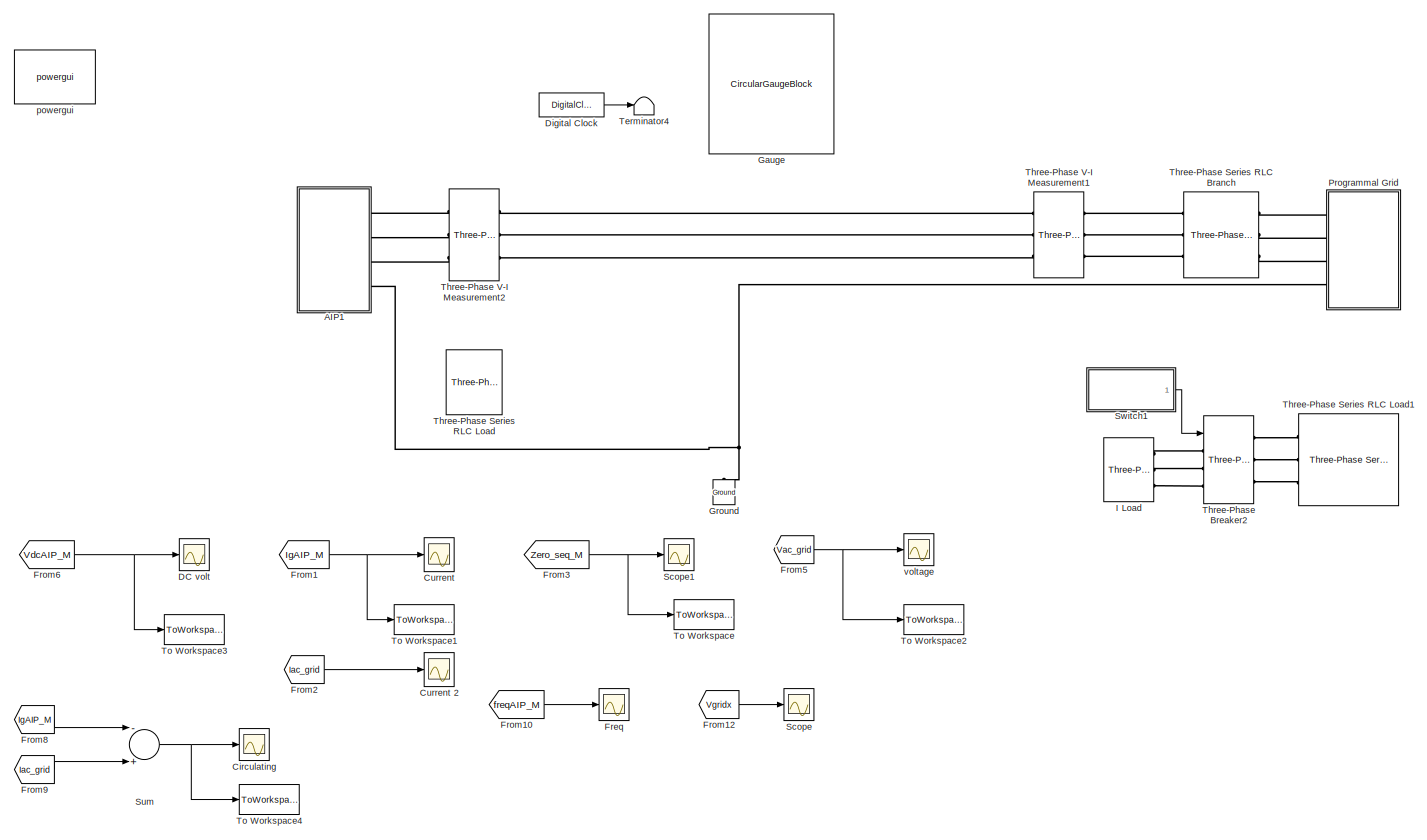
[diagram: root canvas - part 1/1, most of the canvas]
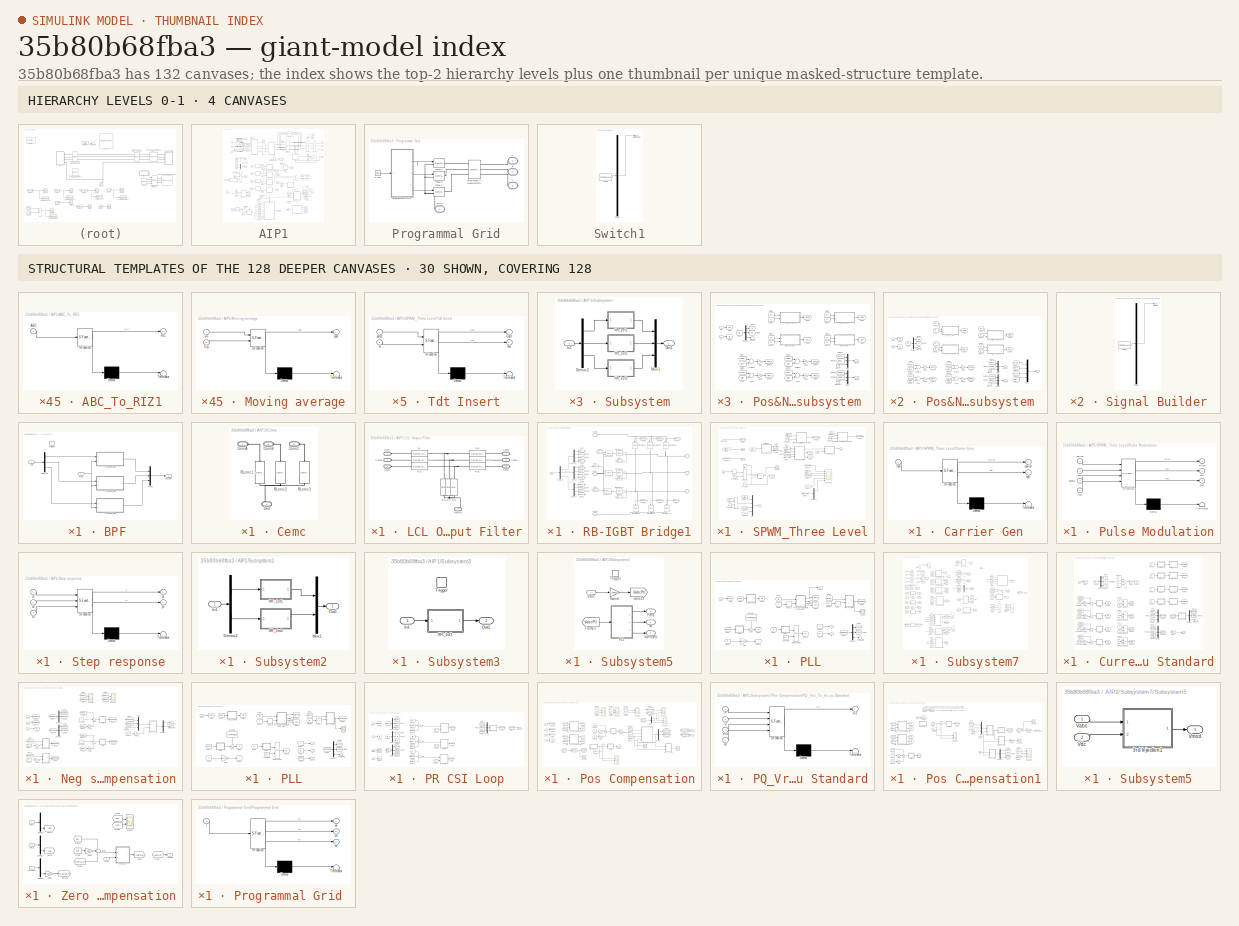
[diagram: thumbnail index - top-2 hierarchy levels (4 canvases) + 30 structural-template representatives of the remaining 128 canvases]
MODEL slx_35b80b68fba3
KIND model
CONFIG AbsTol = auto
CONFIG EnableMultiTasking = off
CONFIG FixedStep = Tdelt
CONFIG MaxStep = 1e-4
CONFIG MinStep = auto
CONFIG RelTol = 1e-3
CONFIG SampleTimeConstraint = Unconstrained
CONFIG Solver = FixedStepDiscrete
CONFIG SolverName = FixedStepDiscrete
CONFIG StartTime = 0.0
CONFIG StopTime = Tstop
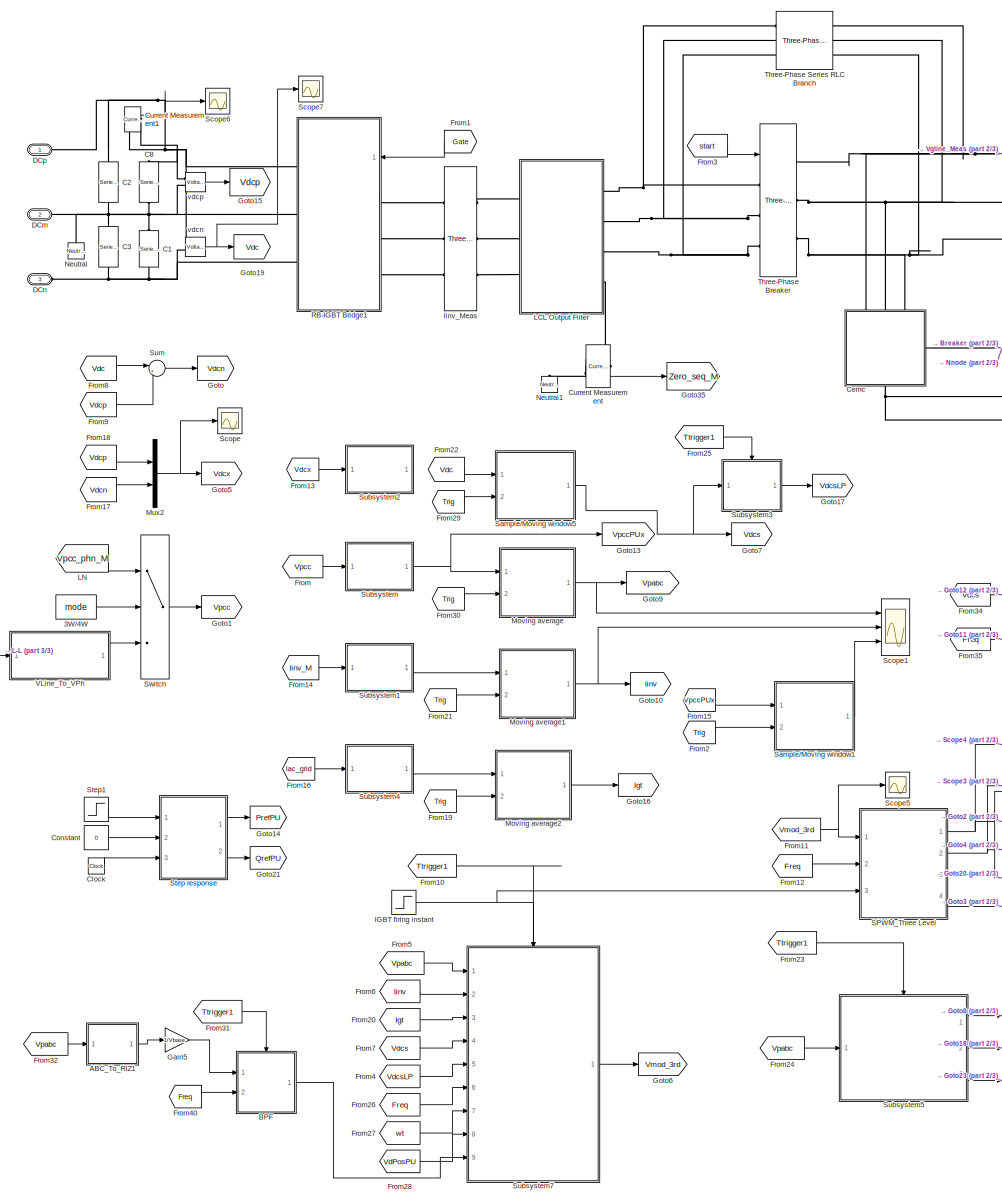
[diagram: AIP1 - part 1/3, most of the canvas]
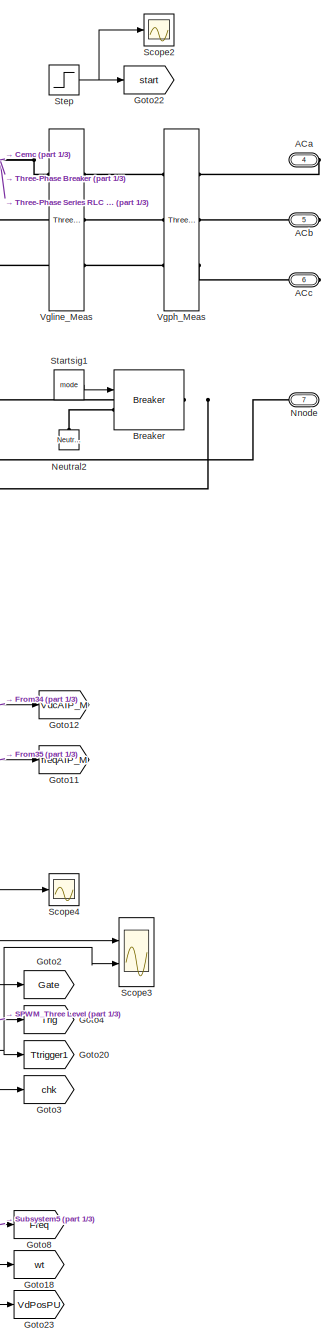
[diagram: AIP1 - part 2/3, right side, full height]
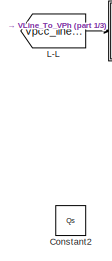
[diagram: AIP1 - part 3/3, middle left region]
BLOCK [SubSystem] AIP1
  Ports = [0, 0, 0, 0, 0, 3, 4]
  RequestExecContextInheritance = off
BLOCK [Constant] AIP1/3W//4W
  Value = mode
BLOCK [SubSystem] AIP1/ABC_To_RIZ1
  ErrorFcn = Stateflow.Translate.translate
  PermitHierarchicalResolution = ExplicitOnly
  Ports = [1, 1]
  RequestExecContextInheritance = off
  SFBlockType = MATLAB Function
  TreatAsAtomicUnit = on
BLOCK [Demux] AIP1/ABC_To_RIZ1/ Demux 
  Outputs = 1
  Ports = [1, 1]
BLOCK [S-Function] AIP1/ABC_To_RIZ1/ SFunction 
  EnableBusSupport = on
  FunctionName = sf_sfun
  PortCounts = [1 2]
  Ports = [1, 2]
  SFcnIsStateOwnerBlock = off
  SFunctionDeploymentMode = off
  Tag = Stateflow S-Function 95
BLOCK [Terminator] AIP1/ABC_To_RIZ1/ Terminator 
BLOCK [Inport] AIP1/ABC_To_RIZ1/ABC
  IconDisplay = Port number
BLOCK [Outport] AIP1/ABC_To_RIZ1/RIZ
  IconDisplay = Port number
BLOCK [PMIOPort] AIP1/ACa
  Port = 4
  Side = Right
BLOCK [PMIOPort] AIP1/ACb
  Port = 5
  Side = Right
BLOCK [PMIOPort] AIP1/ACc
  Port = 6
  Side = Right
BLOCK [SubSystem] AIP1/BPF 
  Ports = [2, 1, 0, 1]
  RequestExecContextInheritance = off
BLOCK [Demux] AIP1/BPF /Demux1
  DisplayOption = bar
  Outputs = 3
  Ports = [1, 3]
BLOCK [Inport] AIP1/BPF /Freq
  IconDisplay = Port number
  Port = 2
BLOCK [SubSystem] AIP1/BPF /IIR_BPF_Re1
  ErrorFcn = Stateflow.Translate.translate
  PermitHierarchicalResolution = ExplicitOnly
  Ports = [2, 1]
  RequestExecContextInheritance = off
  SFBlockType = MATLAB Function
  TreatAsAtomicUnit = on
BLOCK [Demux] AIP1/BPF /IIR_BPF_Re1/ Demux 
  Outputs = 1
  Ports = [1, 1]
BLOCK [S-Function] AIP1/BPF /IIR_BPF_Re1/ SFunction 
  EnableBusSupport = on
  FunctionName = sf_sfun
  Parameters = fQ,fTs,iMode
  PortCounts = [2 2]
  Ports = [2, 2]
  SFcnIsStateOwnerBlock = off
  SFunctionDeploymentMode = off
  Tag = Stateflow S-Function 75
BLOCK [Terminator] AIP1/BPF /IIR_BPF_Re1/ Terminator 
BLOCK [Inport] AIP1/BPF /IIR_BPF_Re1/fn
  IconDisplay = Port number
  Port = 2
BLOCK [Inport] AIP1/BPF /IIR_BPF_Re1/u
  IconDisplay = Port number
BLOCK [Outport] AIP1/BPF /IIR_BPF_Re1/y
  IconDisplay = Port number
BLOCK [SubSystem] AIP1/BPF /IIR_BPF_Re2
  ErrorFcn = Stateflow.Translate.translate
  PermitHierarchicalResolution = ExplicitOnly
  Ports = [2, 1]
  RequestExecContextInheritance = off
  SFBlockType = MATLAB Function
  TreatAsAtomicUnit = on
BLOCK [Demux] AIP1/BPF /IIR_BPF_Re2/ Demux 
  Outputs = 1
  Ports = [1, 1]
BLOCK [S-Function] AIP1/BPF /IIR_BPF_Re2/ SFunction 
  EnableBusSupport = on
  FunctionName = sf_sfun
  Parameters = fQ,fTs,iMode
  PortCounts = [2 2]
  Ports = [2, 2]
  SFcnIsStateOwnerBlock = off
  SFunctionDeploymentMode = off
  Tag = Stateflow S-Function 77
BLOCK [Terminator] AIP1/BPF /IIR_BPF_Re2/ Terminator 
BLOCK [Inport] AIP1/BPF /IIR_BPF_Re2/fn
  IconDisplay = Port number
  Port = 2
BLOCK [Inport] AIP1/BPF /IIR_BPF_Re2/u
  IconDisplay = Port number
BLOCK [Outport] AIP1/BPF /IIR_BPF_Re2/y
  IconDisplay = Port number
BLOCK [SubSystem] AIP1/BPF /IIR_BPF_Re3
  ErrorFcn = Stateflow.Translate.translate
  PermitHierarchicalResolution = ExplicitOnly
  Ports = [2, 1]
  RequestExecContextInheritance = off
  SFBlockType = MATLAB Function
  TreatAsAtomicUnit = on
BLOCK [Demux] AIP1/BPF /IIR_BPF_Re3/ Demux 
  Outputs = 1
  Ports = [1, 1]
BLOCK [S-Function] AIP1/BPF /IIR_BPF_Re3/ SFunction 
  EnableBusSupport = on
  FunctionName = sf_sfun
  Parameters = fQ,fTs,iMode
  PortCounts = [2 2]
  Ports = [2, 2]
  SFcnIsStateOwnerBlock = off
  SFunctionDeploymentMode = off
  Tag = Stateflow S-Function 86
BLOCK [Terminator] AIP1/BPF /IIR_BPF_Re3/ Terminator 
BLOCK [Inport] AIP1/BPF /IIR_BPF_Re3/fn
  IconDisplay = Port number
  Port = 2
BLOCK [Inport] AIP1/BPF /IIR_BPF_Re3/u
  IconDisplay = Port number
BLOCK [Outport] AIP1/BPF /IIR_BPF_Re3/y
  IconDisplay = Port number
BLOCK [Mux] AIP1/BPF /Mux1
  DisplayOption = bar
  Inputs = 3
  Ports = [3, 1]
BLOCK [TriggerPort] AIP1/BPF /Trigger
  PortDimensions = 1
  Ports = []
  StatesWhenEnabling = held
  TriggerType = falling
  VariantControl = Variant
BLOCK [Outport] AIP1/BPF /VpccBPF
  IconDisplay = Port number
BLOCK [Inport] AIP1/BPF /Vriz
  IconDisplay = Port number
BLOCK [Reference] AIP1/Breaker  REF=powerlib/Elements/Breaker
  Ports = [1, 0, 0, 0, 0, 1, 1]
  SourceBlock = powerlib/Elements/Breaker
  SourceProductBaseCode = PS
  SourceProductName = Simscape Electrical
  SourceType = Breaker
BLOCK [Reference] AIP1/C1  REF=powerlib/Elements/Series RLC Branch
  Ports = [0, 0, 0, 0, 0, 1, 1]
  SourceBlock = powerlib/Elements/Series RLC Branch
  SourceProductBaseCode = PS
  SourceProductName = Simscape Electrical
  SourceType = Series RLC Branch
BLOCK [Reference] AIP1/C2  REF=powerlib/Elements/Series RLC Branch
  Ports = [0, 0, 0, 0, 0, 1, 1]
  SourceBlock = powerlib/Elements/Series RLC Branch
  SourceProductBaseCode = PS
  SourceProductName = Simscape Electrical
  SourceType = Series RLC Branch
BLOCK [Reference] AIP1/C3  REF=powerlib/Elements/Series RLC Branch
  Ports = [0, 0, 0, 0, 0, 1, 1]
  SourceBlock = powerlib/Elements/Series RLC Branch
  SourceProductBaseCode = PS
  SourceProductName = Simscape Electrical
  SourceType = Series RLC Branch
BLOCK [Reference] AIP1/C8  REF=powerlib/Elements/Series RLC Branch
  Ports = [0, 0, 0, 0, 0, 1, 1]
  SourceBlock = powerlib/Elements/Series RLC Branch
  SourceProductBaseCode = PS
  SourceProductName = Simscape Electrical
  SourceType = Series RLC Branch
BLOCK [SubSystem] AIP1/Cemc
  Ports = [0, 0, 0, 0, 0, 3, 1]
  RequestExecContextInheritance = off
BLOCK [PMIOPort] AIP1/Cemc/ConnA
  Side = Left
BLOCK [PMIOPort] AIP1/Cemc/ConnB
  Port = 2
  Side = Left
BLOCK [PMIOPort] AIP1/Cemc/ConnC
  Port = 3
  Side = Left
BLOCK [PMIOPort] AIP1/Cemc/Gnd
  Port = 4
  Side = Right
BLOCK [Reference] AIP1/Cemc/RLemc1  REF=powerlib/Elements/Series RLC Branch
  Ports = [0, 0, 0, 0, 0, 1, 1]
  SourceBlock = powerlib/Elements/Series RLC Branch
  SourceProductBaseCode = PS
  SourceProductName = Simscape Electrical
  SourceType = Series RLC Branch
BLOCK [Reference] AIP1/Cemc/RLemc2  REF=powerlib/Elements/Series RLC Branch
  Ports = [0, 0, 0, 0, 0, 1, 1]
  SourceBlock = powerlib/Elements/Series RLC Branch
  SourceProductBaseCode = PS
  SourceProductName = Simscape Electrical
  SourceType = Series RLC Branch
BLOCK [Reference] AIP1/Cemc/RLemc3  REF=powerlib/Elements/Series RLC Branch
  Ports = [0, 0, 0, 0, 0, 1, 1]
  SourceBlock = powerlib/Elements/Series RLC Branch
  SourceProductBaseCode = PS
  SourceProductName = Simscape Electrical
  SourceType = Series RLC Branch
BLOCK [Clock] AIP1/Clock
  Commented = on
BLOCK [Constant] AIP1/Constant
  Commented = on
  Value = 0
BLOCK [Constant] AIP1/Constant2
  Commented = on
  Value = Qs
BLOCK [Reference] AIP1/Current Measurement  REF=powerlib/Measurements/Current Measurement
  Ports = [0, 1, 0, 0, 0, 1, 1]
  SourceBlock = powerlib/Measurements/Current Measurement
  SourceProductBaseCode = PS
  SourceProductName = Simscape Electrical
  SourceType = Current Measurement
  UserDataPersistent = on
BLOCK [Reference] AIP1/Current Measurement1  REF=powerlib/Measurements/Current Measurement
  Ports = [0, 1, 0, 0, 0, 1, 1]
  SourceBlock = powerlib/Measurements/Current Measurement
  SourceProductBaseCode = PS
  SourceProductName = Simscape Electrical
  SourceType = Current Measurement
  UserDataPersistent = on
BLOCK [PMIOPort] AIP1/DCm
  Port = 2
  Side = Left
BLOCK [PMIOPort] AIP1/DCn
  Port = 3
  Side = Left
BLOCK [PMIOPort] AIP1/DCp
  Side = Left
BLOCK [From] AIP1/From
  GotoTag = Vpcc
BLOCK [From] AIP1/From1
  GotoTag = Gate
BLOCK [From] AIP1/From10
  GotoTag = Ttrigger1
BLOCK [From] AIP1/From11
  GotoTag = Vmod_3rd
BLOCK [From] AIP1/From12
  GotoTag = Freq
BLOCK [From] AIP1/From13
  GotoTag = Vdcx
BLOCK [From] AIP1/From14
  GotoTag = Iinv_M
  TagVisibility = global
BLOCK [From] AIP1/From15
  GotoTag = VpccPUx
BLOCK [From] AIP1/From16
  GotoTag = Iac_grid
  TagVisibility = global
BLOCK [From] AIP1/From17
  GotoTag = Vdcn
BLOCK [From] AIP1/From18
  GotoTag = Vdcp
BLOCK [From] AIP1/From19
  GotoTag = Trig
BLOCK [From] AIP1/From2
  GotoTag = Trig
BLOCK [From] AIP1/From20
  GotoTag = Igt
BLOCK [From] AIP1/From21
  GotoTag = Trig
BLOCK [From] AIP1/From22
  GotoTag = Vdc
BLOCK [From] AIP1/From23
  GotoTag = Ttrigger1
BLOCK [From] AIP1/From24
  GotoTag = Vpabc
BLOCK [From] AIP1/From25
  GotoTag = Ttrigger1
BLOCK [From] AIP1/From26
  GotoTag = Freq
BLOCK [From] AIP1/From27
  GotoTag = wt
BLOCK [From] AIP1/From28
  GotoTag = VdPosPU
BLOCK [From] AIP1/From29
  GotoTag = Trig
BLOCK [From] AIP1/From3
  GotoTag = start
BLOCK [From] AIP1/From30
  GotoTag = Trig
BLOCK [From] AIP1/From31
  GotoTag = Ttrigger1
BLOCK [From] AIP1/From32
  GotoTag = Vpabc
BLOCK [From] AIP1/From34
  GotoTag = Vdcs
BLOCK [From] AIP1/From35
  GotoTag = Freq
BLOCK [From] AIP1/From4
  GotoTag = VdcsLP
BLOCK [From] AIP1/From40
  GotoTag = Freq
BLOCK [From] AIP1/From5
  GotoTag = Vpabc
BLOCK [From] AIP1/From6
  GotoTag = Iinv
BLOCK [From] AIP1/From7
  GotoTag = Vdcs
BLOCK [From] AIP1/From8
  GotoTag = Vdc
BLOCK [From] AIP1/From9
  GotoTag = Vdcp
BLOCK [Gain] AIP1/Gain5
  Gain = 1/Vbase
  OutDataTypeStr = Inherit: Inherit via internal rule
  ParamDataTypeStr = Inherit: Inherit via internal rule
  SaturateOnIntegerOverflow = off
BLOCK [Goto] AIP1/Goto
  GotoTag = Vdcn
BLOCK [Goto] AIP1/Goto1
  GotoTag = Vpcc
BLOCK [Goto] AIP1/Goto10
  GotoTag = Iinv
BLOCK [Goto] AIP1/Goto11
  GotoTag = freqAIP_M
  TagVisibility = global
BLOCK [Goto] AIP1/Goto12
  GotoTag = VdcAIP_M
  TagVisibility = global
BLOCK [Goto] AIP1/Goto13
  GotoTag = VpccPUx
BLOCK [Goto] AIP1/Goto14
  Commented = on
  GotoTag = PrefPU
BLOCK [Goto] AIP1/Goto15
  GotoTag = Vdcp
BLOCK [Goto] AIP1/Goto16
  GotoTag = Igt
BLOCK [Goto] AIP1/Goto17
  GotoTag = VdcsLP
BLOCK [Goto] AIP1/Goto18
  GotoTag = wt
BLOCK [Goto] AIP1/Goto19
  GotoTag = Vdc
BLOCK [Goto] AIP1/Goto2
  GotoTag = Gate
BLOCK [Goto] AIP1/Goto20
  GotoTag = Ttrigger1
BLOCK [Goto] AIP1/Goto21
  Commented = on
  GotoTag = QrefPU
BLOCK [Goto] AIP1/Goto22
  GotoTag = start
BLOCK [Goto] AIP1/Goto23
  GotoTag = VdPosPU
BLOCK [Goto] AIP1/Goto3
  GotoTag = chk
BLOCK [Goto] AIP1/Goto35
  GotoTag = Zero_seq_M
  TagVisibility = global
BLOCK [Goto] AIP1/Goto4
  GotoTag = Trig
BLOCK [Goto] AIP1/Goto5
  GotoTag = Vdcx
BLOCK [Goto] AIP1/Goto6
  GotoTag = Vmod_3rd
BLOCK [Goto] AIP1/Goto7
  GotoTag = Vdcs
BLOCK [Goto] AIP1/Goto8
  GotoTag = Freq
BLOCK [Goto] AIP1/Goto9
  GotoTag = Vpabc
BLOCK [Step] AIP1/IGBT firing instant
  SampleTime = 0
  Time = 0.11
BLOCK [Reference] AIP1/Iinv_Meas  REF=powerlib/Measurements/Three-Phase
V-I Measurement
  Ports = [0, 0, 0, 0, 0, 3, 3]
  SourceBlock = powerlib/Measurements/Three-Phase\nV-I Measurement
  SourceProductBaseCode = PS
  SourceProductName = Simscape Electrical
  SourceType = Three-Phase VI Measurement
BLOCK [From] AIP1/L-L
  GotoTag = Vpcc_line_M
  TagVisibility = global
BLOCK [SubSystem] AIP1/LCL Output Filter
  AncestorBlock = AIP_Library0107/LCL Output Filter
  Ports = [0, 0, 0, 0, 0, 3, 4]
  RequestExecContextInheritance = off
BLOCK [PMIOPort] AIP1/LCL Output Filter/ConnA
  Side = Left
BLOCK [PMIOPort] AIP1/LCL Output Filter/ConnB
  Port = 3
  Side = Left
BLOCK [PMIOPort] AIP1/LCL Output Filter/ConnC
  Port = 5
  Side = Left
BLOCK [PMIOPort] AIP1/LCL Output Filter/Conna
  Port = 2
  Side = Right
BLOCK [PMIOPort] AIP1/LCL Output Filter/Connb
  Port = 4
  Side = Right
BLOCK [PMIOPort] AIP1/LCL Output Filter/Connc
  Port = 6
  Side = Right
BLOCK [PMIOPort] AIP1/LCL Output Filter/Neutral 
  Port = 7
  Side = Right
BLOCK [Reference] AIP1/LCL Output Filter/RL  REF=powerlib/Elements/Series RLC Branch
  Ports = [0, 0, 0, 0, 0, 1, 1]
  SourceBlock = powerlib/Elements/Series RLC Branch
  SourceProductBaseCode = PS
  SourceProductName = Simscape Electrical
  SourceType = Series RLC Branch
BLOCK [Reference] AIP1/LCL Output Filter/RL1  REF=powerlib/Elements/Series RLC Branch
  Ports = [0, 0, 0, 0, 0, 1, 1]
  SourceBlock = powerlib/Elements/Series RLC Branch
  SourceProductBaseCode = PS
  SourceProductName = Simscape Electrical
  SourceType = Series RLC Branch
BLOCK [Reference] AIP1/LCL Output Filter/RL2  REF=powerlib/Elements/Series RLC Branch
  Ports = [0, 0, 0, 0, 0, 1, 1]
  SourceBlock = powerlib/Elements/Series RLC Branch
  SourceProductBaseCode = PS
  SourceProductName = Simscape Electrical
  SourceType = Series RLC Branch
BLOCK [Reference] AIP1/LCL Output Filter/RL3  REF=powerlib/Elements/Series RLC Branch
  Ports = [0, 0, 0, 0, 0, 1, 1]
  SourceBlock = powerlib/Elements/Series RLC Branch
  SourceProductBaseCode = PS
  SourceProductName = Simscape Electrical
  SourceType = Series RLC Branch
BLOCK [Reference] AIP1/LCL Output Filter/RL4  REF=powerlib/Elements/Series RLC Branch
  Ports = [0, 0, 0, 0, 0, 1, 1]
  SourceBlock = powerlib/Elements/Series RLC Branch
  SourceProductBaseCode = PS
  SourceProductName = Simscape Electrical
  SourceType = Series RLC Branch
BLOCK [Reference] AIP1/LCL Output Filter/RL5  REF=powerlib/Elements/Series RLC Branch
  Ports = [0, 0, 0, 0, 0, 1, 1]
  SourceBlock = powerlib/Elements/Series RLC Branch
  SourceProductBaseCode = PS
  SourceProductName = Simscape Electrical
  SourceType = Series RLC Branch
BLOCK [Reference] AIP1/LCL Output Filter/RL6  REF=powerlib/Elements/Series RLC Branch
  Ports = [0, 0, 0, 0, 0, 1, 1]
  SourceBlock = powerlib/Elements/Series RLC Branch
  SourceProductBaseCode = PS
  SourceProductName = Simscape Electrical
  SourceType = Series RLC Branch
BLOCK [Reference] AIP1/LCL Output Filter/RL7  REF=powerlib/Elements/Series RLC Branch
  Ports = [0, 0, 0, 0, 0, 1, 1]
  SourceBlock = powerlib/Elements/Series RLC Branch
  SourceProductBaseCode = PS
  SourceProductName = Simscape Electrical
  SourceType = Series RLC Branch
BLOCK [Reference] AIP1/LCL Output Filter/RL8  REF=powerlib/Elements/Series RLC Branch
  Ports = [0, 0, 0, 0, 0, 1, 1]
  SourceBlock = powerlib/Elements/Series RLC Branch
  SourceProductBaseCode = PS
  SourceProductName = Simscape Electrical
  SourceType = Series RLC Branch
BLOCK [From] AIP1/LN
  GotoTag = Vpcc_phn_M
  TagVisibility = global
BLOCK [SubSystem] AIP1/Moving average
  AncestorBlock = AIP_Library0123/Sample//Moving window
  ErrorFcn = Stateflow.Translate.translate
  PermitHierarchicalResolution = ExplicitOnly
  Ports = [2, 1]
  Priority = -1
  RequestExecContextInheritance = off
  SFBlockType = MATLAB Function
  TreatAsAtomicUnit = on
BLOCK [Demux] AIP1/Moving average/ Demux 
  Outputs = 1
  Ports = [1, 1]
BLOCK [S-Function] AIP1/Moving average/ SFunction 
  EnableBusSupport = on
  FunctionName = sf_sfun
  Parameters = iNumAvg,iNumDly,ubase
  PortCounts = [2 2]
  Ports = [2, 2]
  SFcnIsStateOwnerBlock = off
  SFunctionDeploymentMode = off
  Tag = Stateflow S-Function 28
BLOCK [Terminator] AIP1/Moving average/ Terminator 
BLOCK [Inport] AIP1/Moving average/trig
  IconDisplay = Port number
  Port = 2
BLOCK [Inport] AIP1/Moving average/uin
  IconDisplay = Port number
BLOCK [Outport] AIP1/Moving average/yout
  IconDisplay = Port number
BLOCK [SubSystem] AIP1/Moving average1
  AncestorBlock = AIP_Library0123/Sample//Moving window
  ErrorFcn = Stateflow.Translate.translate
  PermitHierarchicalResolution = ExplicitOnly
  Ports = [2, 1]
  Priority = -1
  RequestExecContextInheritance = off
  SFBlockType = MATLAB Function
  TreatAsAtomicUnit = on
BLOCK [Demux] AIP1/Moving average1/ Demux 
  Outputs = 1
  Ports = [1, 1]
BLOCK [S-Function] AIP1/Moving average1/ SFunction 
  EnableBusSupport = on
  FunctionName = sf_sfun
  Parameters = iNumAvg,iNumDly,ubase
  PortCounts = [2 2]
  Ports = [2, 2]
  SFcnIsStateOwnerBlock = off
  SFunctionDeploymentMode = off
  Tag = Stateflow S-Function 30
BLOCK [Terminator] AIP1/Moving average1/ Terminator 
BLOCK [Inport] AIP1/Moving average1/trig
  IconDisplay = Port number
  Port = 2
BLOCK [Inport] AIP1/Moving average1/uin
  IconDisplay = Port number
BLOCK [Outport] AIP1/Moving average1/yout
  IconDisplay = Port number
BLOCK [SubSystem] AIP1/Moving average2
  AncestorBlock = AIP_Library0123/Sample//Moving window
  ErrorFcn = Stateflow.Translate.translate
  PermitHierarchicalResolution = ExplicitOnly
  Ports = [2, 1]
  Priority = -1
  RequestExecContextInheritance = off
  SFBlockType = MATLAB Function
  TreatAsAtomicUnit = on
BLOCK [Demux] AIP1/Moving average2/ Demux 
  Outputs = 1
  Ports = [1, 1]
BLOCK [S-Function] AIP1/Moving average2/ SFunction 
  EnableBusSupport = on
  FunctionName = sf_sfun
  Parameters = iNumAvg,iNumDly,ubase
  PortCounts = [2 2]
  Ports = [2, 2]
  SFcnIsStateOwnerBlock = off
  SFunctionDeploymentMode = off
  Tag = Stateflow S-Function 2
BLOCK [Terminator] AIP1/Moving average2/ Terminator 
BLOCK [Inport] AIP1/Moving average2/trig
  IconDisplay = Port number
  Port = 2
BLOCK [Inport] AIP1/Moving average2/uin
  IconDisplay = Port number
BLOCK [Outport] AIP1/Moving average2/yout
  IconDisplay = Port number
BLOCK [Mux] AIP1/Mux2
  DisplayOption = bar
  Inputs = 2
  Ports = [2, 1]
BLOCK [Reference] AIP1/Neutral  REF=powerlib/Elements/Neutral
  AttributesFormatString = node %<NodeNumber>
  Ports = [0, 0, 0, 0, 0, 1]
  SourceBlock = powerlib/Elements/Neutral
  SourceProductBaseCode = PS
  SourceProductName = Simscape Electrical
  SourceType = Neutral
BLOCK [Reference] AIP1/Neutral1  REF=powerlib/Elements/Neutral
  AttributesFormatString = node %<NodeNumber>
  Ports = [0, 0, 0, 0, 0, 1]
  SourceBlock = powerlib/Elements/Neutral
  SourceProductBaseCode = PS
  SourceProductName = Simscape Electrical
  SourceType = Neutral
BLOCK [Reference] AIP1/Neutral2  REF=powerlib/Elements/Neutral
  AttributesFormatString = node %<NodeNumber>
  Ports = [0, 0, 0, 0, 0, 1]
  SourceBlock = powerlib/Elements/Neutral
  SourceProductBaseCode = PS
  SourceProductName = Simscape Electrical
  SourceType = Neutral
BLOCK [PMIOPort] AIP1/Nnode
  Port = 7
  Side = Right
BLOCK [SubSystem] AIP1/RB-IGBT Bridge1
  AncestorBlock = AIP_Library0107/RB-IGBT Bridge
  Ports = [1, 0, 0, 0, 0, 3, 3]
  RequestExecContextInheritance = off
BLOCK [PMIOPort] AIP1/RB-IGBT Bridge1/A
  Port = 4
  Side = Left
  Tag = PMCPort
BLOCK [PMIOPort] AIP1/RB-IGBT Bridge1/B
  Port = 5
  Side = Left
  Tag = PMCPort
BLOCK [PMIOPort] AIP1/RB-IGBT Bridge1/C
  Port = 6
  Side = Left
  Tag = PMCPort
BLOCK [Demux] AIP1/RB-IGBT Bridge1/Demux
  DisplayOption = bar
  Ports = [1, 4]
BLOCK [Demux] AIP1/RB-IGBT Bridge1/Demux1
  DisplayOption = bar
  Ports = [1, 4]
BLOCK [Demux] AIP1/RB-IGBT Bridge1/Demux2
  DisplayOption = bar
  Ports = [1, 4]
BLOCK [Demux] AIP1/RB-IGBT Bridge1/Demux3
  DisplayOption = bar
  Outputs = 3
  Ports = [1, 3]
BLOCK [From] AIP1/RB-IGBT Bridge1/From
  GotoTag = PulseA_1p
BLOCK [From] AIP1/RB-IGBT Bridge1/From1
  GotoTag = PulseA_2p
BLOCK [From] AIP1/RB-IGBT Bridge1/From10
  GotoTag = PulseC_1n
BLOCK [From] AIP1/RB-IGBT Bridge1/From11
  GotoTag = PulseC_2n
BLOCK [From] AIP1/RB-IGBT Bridge1/From2
  GotoTag = PulseA_1n
BLOCK [From] AIP1/RB-IGBT Bridge1/From3
  GotoTag = PulseA_2n
BLOCK [From] AIP1/RB-IGBT Bridge1/From4
  GotoTag = PulseB_1p
BLOCK [From] AIP1/RB-IGBT Bridge1/From5
  GotoTag = PulseB_2p
BLOCK [From] AIP1/RB-IGBT Bridge1/From6
  GotoTag = PulseB_1n
BLOCK [From] AIP1/RB-IGBT Bridge1/From7
  GotoTag = PulseB_2n
BLOCK [From] AIP1/RB-IGBT Bridge1/From8
  GotoTag = PulseC_1p
BLOCK [From] AIP1/RB-IGBT Bridge1/From9
  GotoTag = PulseC_2p
BLOCK [Inport] AIP1/RB-IGBT Bridge1/Gate
  IconDisplay = Port number
BLOCK [Goto] AIP1/RB-IGBT Bridge1/Goto
  GotoTag = PulseA_1p
BLOCK [Goto] AIP1/RB-IGBT Bridge1/Goto1
  GotoTag = PulseA_2p
BLOCK [Goto] AIP1/RB-IGBT Bridge1/Goto10
  GotoTag = PulseC_1n
BLOCK [Goto] AIP1/RB-IGBT Bridge1/Goto11
  GotoTag = PulseC_2n
BLOCK [Goto] AIP1/RB-IGBT Bridge1/Goto2
  GotoTag = PulseA_1n
BLOCK [Goto] AIP1/RB-IGBT Bridge1/Goto3
  GotoTag = PulseA_2n
BLOCK [Goto] AIP1/RB-IGBT Bridge1/Goto4
  GotoTag = PulseB_1p
BLOCK [Goto] AIP1/RB-IGBT Bridge1/Goto5
  GotoTag = PulseB_2p
BLOCK [Goto] AIP1/RB-IGBT Bridge1/Goto6
  GotoTag = PulseB_1n
BLOCK [Goto] AIP1/RB-IGBT Bridge1/Goto7
  GotoTag = PulseB_2n
BLOCK [Goto] AIP1/RB-IGBT Bridge1/Goto8
  GotoTag = PulseC_1p
BLOCK [Goto] AIP1/RB-IGBT Bridge1/Goto9
  GotoTag = PulseC_2p
BLOCK [Reference] AIP1/RB-IGBT Bridge1/IGBT//Diode1  REF=powerlib/Power
Electronics/IGBT//Diode
  Ports = [1, 0, 0, 0, 0, 1, 1]
  SourceBlock = powerlib/Power\nElectronics/IGBT//Diode
  SourceProductBaseCode = PS
  SourceProductName = Simscape Electrical
  SourceType = IGBT/Diode
BLOCK [Reference] AIP1/RB-IGBT Bridge1/IGBT//Diode10  REF=powerlib/Power
Electronics/IGBT//Diode
  Ports = [1, 0, 0, 0, 0, 1, 1]
  SourceBlock = powerlib/Power\nElectronics/IGBT//Diode
  SourceProductBaseCode = PS
  SourceProductName = Simscape Electrical
  SourceType = IGBT/Diode
BLOCK [Reference] AIP1/RB-IGBT Bridge1/IGBT//Diode11  REF=powerlib/Power
Electronics/IGBT//Diode
  Ports = [1, 0, 0, 0, 0, 1, 1]
  SourceBlock = powerlib/Power\nElectronics/IGBT//Diode
  SourceProductBaseCode = PS
  SourceProductName = Simscape Electrical
  SourceType = IGBT/Diode
BLOCK [Reference] AIP1/RB-IGBT Bridge1/IGBT//Diode12  REF=powerlib/Power
Electronics/IGBT//Diode
  Ports = [1, 0, 0, 0, 0, 1, 1]
  SourceBlock = powerlib/Power\nElectronics/IGBT//Diode
  SourceProductBaseCode = PS
  SourceProductName = Simscape Electrical
  SourceType = IGBT/Diode
BLOCK [Reference] AIP1/RB-IGBT Bridge1/IGBT//Diode2  REF=powerlib/Power
Electronics/IGBT//Diode
  Ports = [1, 0, 0, 0, 0, 1, 1]
  SourceBlock = powerlib/Power\nElectronics/IGBT//Diode
  SourceProductBaseCode = PS
  SourceProductName = Simscape Electrical
  SourceType = IGBT/Diode
BLOCK [Reference] AIP1/RB-IGBT Bridge1/IGBT//Diode3  REF=powerlib/Power
Electronics/IGBT//Diode
  Ports = [1, 0, 0, 0, 0, 1, 1]
  SourceBlock = powerlib/Power\nElectronics/IGBT//Diode
  SourceProductBaseCode = PS
  SourceProductName = Simscape Electrical
  SourceType = IGBT/Diode
BLOCK [Reference] AIP1/RB-IGBT Bridge1/IGBT//Diode4  REF=powerlib/Power
Electronics/IGBT//Diode
  Ports = [1, 0, 0, 0, 0, 1, 1]
  SourceBlock = powerlib/Power\nElectronics/IGBT//Diode
  SourceProductBaseCode = PS
  SourceProductName = Simscape Electrical
  SourceType = IGBT/Diode
BLOCK [Reference] AIP1/RB-IGBT Bridge1/IGBT//Diode5  REF=powerlib/Power
Electronics/IGBT//Diode
  Ports = [1, 0, 0, 0, 0, 1, 1]
  SourceBlock = powerlib/Power\nElectronics/IGBT//Diode
  SourceProductBaseCode = PS
  SourceProductName = Simscape Electrical
  SourceType = IGBT/Diode
BLOCK [Reference] AIP1/RB-IGBT Bridge1/IGBT//Diode6  REF=powerlib/Power
Electronics/IGBT//Diode
  Ports = [1, 0, 0, 0, 0, 1, 1]
  SourceBlock = powerlib/Power\nElectronics/IGBT//Diode
  SourceProductBaseCode = PS
  SourceProductName = Simscape Electrical
  SourceType = IGBT/Diode
BLOCK [Reference] AIP1/RB-IGBT Bridge1/IGBT//Diode7  REF=powerlib/Power
Electronics/IGBT//Diode
  Ports = [1, 0, 0, 0, 0, 1, 1]
  SourceBlock = powerlib/Power\nElectronics/IGBT//Diode
  SourceProductBaseCode = PS
  SourceProductName = Simscape Electrical
  SourceType = IGBT/Diode
BLOCK [Reference] AIP1/RB-IGBT Bridge1/IGBT//Diode8  REF=powerlib/Power
Electronics/IGBT//Diode
  Ports = [1, 0, 0, 0, 0, 1, 1]
  SourceBlock = powerlib/Power\nElectronics/IGBT//Diode
  SourceProductBaseCode = PS
  SourceProductName = Simscape Electrical
  SourceType = IGBT/Diode
BLOCK [Reference] AIP1/RB-IGBT Bridge1/IGBT//Diode9  REF=powerlib/Power
Electronics/IGBT//Diode
  Ports = [1, 0, 0, 0, 0, 1, 1]
  SourceBlock = powerlib/Power\nElectronics/IGBT//Diode
  SourceProductBaseCode = PS
  SourceProductName = Simscape Electrical
  SourceType = IGBT/Diode
BLOCK [PMIOPort] AIP1/RB-IGBT Bridge1/negative
  Port = 3
  Side = Right
  Tag = PMCPort
BLOCK [PMIOPort] AIP1/RB-IGBT Bridge1/netural
  Port = 2
  Side = Right
  Tag = PMCPort
BLOCK [PMIOPort] AIP1/RB-IGBT Bridge1/positive
  Side = Right
  Tag = PMCPort
BLOCK [SubSystem] AIP1/SPWM_Three Level
  Ports = [3, 4]
  RequestExecContextInheritance = off
BLOCK [SubSystem] AIP1/SPWM_Three Level/Carrier Gen
  ErrorFcn = Stateflow.Translate.translate
  PermitHierarchicalResolution = ExplicitOnly
  Ports = [1, 2]
  RequestExecContextInheritance = off
  SFBlockType = MATLAB Function
  TreatAsAtomicUnit = on
BLOCK [Demux] AIP1/SPWM_Three Level/Carrier Gen/ Demux 
  Outputs = 1
  Ports = [1, 1]
BLOCK [S-Function] AIP1/SPWM_Three Level/Carrier Gen/ SFunction 
  EnableBusSupport = on
  FunctionName = sf_sfun
  Parameters = fdelt
  PortCounts = [1 3]
  Ports = [1, 3]
  SFcnIsStateOwnerBlock = off
  SFunctionDeploymentMode = off
  Tag = Stateflow S-Function 66
BLOCK [Terminator] AIP1/SPWM_Three Level/Carrier Gen/ Terminator 
BLOCK [Outport] AIP1/SPWM_Three Level/Carrier Gen/carrier
  IconDisplay = Port number
BLOCK [Inport] AIP1/SPWM_Three Level/Carrier Gen/fsw
  IconDisplay = Port number
BLOCK [Outport] AIP1/SPWM_Three Level/Carrier Gen/sgn
  IconDisplay = Port number
  Port = 2
BLOCK [Constant] AIP1/SPWM_Three Level/Constant1
  Value = Nsw
BLOCK [Constant] AIP1/SPWM_Three Level/Constant2
  Value = 18000
BLOCK [Constant] AIP1/SPWM_Three Level/Constant3
  Value = 55e-6
BLOCK [Constant] AIP1/SPWM_Three Level/Constant4
  Value = Update
BLOCK [Constant] AIP1/SPWM_Three Level/Constant6
  Value = Update
BLOCK [Delay] AIP1/SPWM_Three Level/Delay1
  DelayLength = 1
  InputPortMap = u0
  Ports = [1, 1]
  SampleTime = fTs
BLOCK [Demux] AIP1/SPWM_Three Level/Demux1
  DisplayOption = bar
  Outputs = 3
  Ports = [1, 3]
BLOCK [Inport] AIP1/SPWM_Three Level/Freq
  IconDisplay = Port number
  Port = 2
BLOCK [From] AIP1/SPWM_Three Level/From1
  GotoTag = carrier
BLOCK [From] AIP1/SPWM_Three Level/From10
  GotoTag = chk
BLOCK [From] AIP1/SPWM_Three Level/From11
  GotoTag = Freq
BLOCK [From] AIP1/SPWM_Three Level/From12
  GotoTag = VMod_3rd
BLOCK [From] AIP1/SPWM_Three Level/From13
  GotoTag = VMod_3rd
BLOCK [From] AIP1/SPWM_Three Level/From14
  GotoTag = chk1
BLOCK [From] AIP1/SPWM_Three Level/From15
  GotoTag = Ttrigger
BLOCK [From] AIP1/SPWM_Three Level/From16
  GotoTag = Tupdatex
BLOCK [From] AIP1/SPWM_Three Level/From17
  GotoTag = Ttrigger
BLOCK [From] AIP1/SPWM_Three Level/From18
  GotoTag = Tupdate
BLOCK [From] AIP1/SPWM_Three Level/From2
  GotoTag = Ttrigger
BLOCK [From] AIP1/SPWM_Three Level/From3
  GotoTag = Ttrigger
BLOCK [From] AIP1/SPWM_Three Level/From4
  GotoTag = Tupdatex
BLOCK [From] AIP1/SPWM_Three Level/From5
  GotoTag = Ttrigger
BLOCK [From] AIP1/SPWM_Three Level/From6
  GotoTag = carrier
BLOCK [From] AIP1/SPWM_Three Level/From7
  GotoTag = Freq
BLOCK [From] AIP1/SPWM_Three Level/From8
  GotoTag = Tupdate
BLOCK [From] AIP1/SPWM_Three Level/From9
  GotoTag = Tupdate
BLOCK [Outport] AIP1/SPWM_Three Level/Gate
  IconDisplay = Port number
BLOCK [Goto] AIP1/SPWM_Three Level/Goto
  GotoTag = Ttrigger
BLOCK [Goto] AIP1/SPWM_Three Level/Goto1
  GotoTag = carrier
BLOCK [Goto] AIP1/SPWM_Three Level/Goto2
  GotoTag = VMod_3rd
BLOCK [Goto] AIP1/SPWM_Three Level/Goto3
  GotoTag = Tupdate
BLOCK [Goto] AIP1/SPWM_Three Level/Goto4
  GotoTag = chk
BLOCK [Goto] AIP1/SPWM_Three Level/Goto5
  GotoTag = Freq
BLOCK [Goto] AIP1/SPWM_Three Level/Goto6
  GotoTag = Tupdatex
BLOCK [Goto] AIP1/SPWM_Three Level/Goto7
  GotoTag = chk1
BLOCK [Mux] AIP1/SPWM_Three Level/Mux
  DisplayOption = bar
  Ports = [4, 1]
BLOCK [Product] AIP1/SPWM_Three Level/Product1
  InputSameDT = off
  OutDataTypeStr = Inherit: Inherit via internal rule
  Ports = [2, 1]
  RndMeth = Floor
  SaturateOnIntegerOverflow = off
BLOCK [Product] AIP1/SPWM_Three Level/Product2
  InputSameDT = off
  OutDataTypeStr = Inherit: Inherit via internal rule
  Ports = [2, 1]
  RndMeth = Floor
  SaturateOnIntegerOverflow = off
BLOCK [SubSystem] AIP1/SPWM_Three Level/Pulse Modulation
  ErrorFcn = Stateflow.Translate.translate
  PermitHierarchicalResolution = ExplicitOnly
  Ports = [4, 3]
  RequestExecContextInheritance = off
  SFBlockType = MATLAB Function
  TreatAsAtomicUnit = on
BLOCK [Demux] AIP1/SPWM_Three Level/Pulse Modulation/ Demux 
  Outputs = 1
  Ports = [1, 1]
BLOCK [S-Function] AIP1/SPWM_Three Level/Pulse Modulation/ SFunction 
  EnableBusSupport = on
  FunctionName = sf_sfun
  PortCounts = [4 4]
  Ports = [4, 4]
  SFcnIsStateOwnerBlock = off
  SFunctionDeploymentMode = off
  Tag = Stateflow S-Function 67
BLOCK [Terminator] AIP1/SPWM_Three Level/Pulse Modulation/ Terminator 
BLOCK [Outport] AIP1/SPWM_Three Level/Pulse Modulation/Pulse
  IconDisplay = Port number
BLOCK [Inport] AIP1/SPWM_Three Level/Pulse Modulation/carrier
  IconDisplay = Port number
BLOCK [Outport] AIP1/SPWM_Three Level/Pulse Modulation/chk
  IconDisplay = Port number
  Port = 2
BLOCK [Outport] AIP1/SPWM_Three Level/Pulse Modulation/chk1
  IconDisplay = Port number
  Port = 3
BLOCK [Inport] AIP1/SPWM_Three Level/Pulse Modulation/mod
  IconDisplay = Port number
  Port = 4
BLOCK [Inport] AIP1/SPWM_Three Level/Pulse Modulation/sgn
  IconDisplay = Port number
  Port = 2
BLOCK [Inport] AIP1/SPWM_Three Level/Pulse Modulation/update
  IconDisplay = Port number
  Port = 3
BLOCK [Scope] AIP1/SPWM_Three Level/Scope1
  Floating = off
  NumInputPorts = 1
  Ports = [1]
  ScopeSpecificationString = Simulink.scopes.TimeScopeBlockCfg('CurrentConfiguration', extmgr.ConfigurationSet(extmgr.Configuration('Core','General UI',true),extmgr.Configuration('Core','Source UI',true),extmgr.Configuration('Sources','WiredSimulink',true,'DataLoggingVariableName','ScopeData1'),extmgr.Configuration('Visuals','Time Domain',true,'SerializedDisplays',{struct('MinYLimReal','-2250.00000','MaxYLimReal','20250.00000...<+1435ch>
BLOCK [Scope] AIP1/SPWM_Three Level/Scope2
  Floating = off
  NumInputPorts = 5
  Ports = [5]
  ScopeSpecificationString = Simulink.scopes.TimeScopeBlockCfg('CurrentConfiguration', extmgr.ConfigurationSet(extmgr.Configuration('Core','General UI',true),extmgr.Configuration('Core','Source UI',true),extmgr.Configuration('Sources','WiredSimulink',true,'DataLoggingVariableName','ScopeData2'),extmgr.Configuration('Visuals','Time Domain',true,'SerializedDisplays',{struct('MinYLimReal','-0.125','MaxYLimReal','1.125','YLabelRe...<+3625ch>
BLOCK [Step] AIP1/SPWM_Three Level/Step
  Before = -1
  SampleTime = 0
  Time = tstart
BLOCK [Switch] AIP1/SPWM_Three Level/Switch
  Criteria = u2 > Threshold
  InputSameDT = off
  SaturateOnIntegerOverflow = off
BLOCK [SubSystem] AIP1/SPWM_Three Level/Tdt Insert
  ErrorFcn = Stateflow.Translate.translate
  PermitHierarchicalResolution = ExplicitOnly
  Ports = [2, 2]
  RequestExecContextInheritance = off
  SFBlockType = MATLAB Function
  TreatAsAtomicUnit = on
BLOCK [Demux] AIP1/SPWM_Three Level/Tdt Insert/ Demux 
  Outputs = 1
  Ports = [1, 1]
BLOCK [S-Function] AIP1/SPWM_Three Level/Tdt Insert/ SFunction 
  EnableBusSupport = on
  FunctionName = sf_sfun
  Parameters = fdelt,tdt
  PortCounts = [2 3]
  Ports = [2, 3]
  SFcnIsStateOwnerBlock = off
  SFunctionDeploymentMode = off
  Tag = Stateflow S-Function 68
BLOCK [Terminator] AIP1/SPWM_Three Level/Tdt Insert/ Terminator 
BLOCK [Outport] AIP1/SPWM_Three Level/Tdt Insert/Gate
  IconDisplay = Port number
BLOCK [Outport] AIP1/SPWM_Three Level/Tdt Insert/chk
  IconDisplay = Port number
  Port = 2
BLOCK [Inport] AIP1/SPWM_Three Level/Tdt Insert/pulse
  IconDisplay = Port number
BLOCK [Inport] AIP1/SPWM_Three Level/Tdt Insert/st
  IconDisplay = Port number
  Port = 2
BLOCK [Inport] AIP1/SPWM_Three Level/Tstart
  IconDisplay = Port number
  Port = 3
BLOCK [Outport] AIP1/SPWM_Three Level/Ttrigger
  IconDisplay = Port number
  Port = 2
BLOCK [Outport] AIP1/SPWM_Three Level/Ttrigger1
  IconDisplay = Port number
  Port = 3
BLOCK [Inport] AIP1/SPWM_Three Level/VMod_3rd
  IconDisplay = Port number
BLOCK [SubSystem] AIP1/SPWM_Three Level/Voltage update timing generator
  ErrorFcn = Stateflow.Translate.translate
  PermitHierarchicalResolution = ExplicitOnly
  Ports = [2, 1]
  RequestExecContextInheritance = off
  SFBlockType = MATLAB Function
  TreatAsAtomicUnit = on
BLOCK [Demux] AIP1/SPWM_Three Level/Voltage update timing generator/ Demux 
  Outputs = 1
  Ports = [1, 1]
BLOCK [S-Function] AIP1/SPWM_Three Level/Voltage update timing generator/ SFunction 
  EnableBusSupport = on
  FunctionName = sf_sfun
  PortCounts = [2 2]
  Ports = [2, 2]
  SFcnIsStateOwnerBlock = off
  SFunctionDeploymentMode = off
  Tag = Stateflow S-Function 69
BLOCK [Terminator] AIP1/SPWM_Three Level/Voltage update timing generator/ Terminator 
BLOCK [Inport] AIP1/SPWM_Three Level/Voltage update timing generator/Trigger
  IconDisplay = Port number
BLOCK [Outport] AIP1/SPWM_Three Level/Voltage update timing generator/Tupdate
  IconDisplay = Port number
BLOCK [Inport] AIP1/SPWM_Three Level/Voltage update timing generator/Update
  IconDisplay = Port number
  Port = 2
BLOCK [SubSystem] AIP1/SPWM_Three Level/Voltage update timing generator1
  ErrorFcn = Stateflow.Translate.translate
  PermitHierarchicalResolution = ExplicitOnly
  Ports = [2, 1]
  RequestExecContextInheritance = off
  SFBlockType = MATLAB Function
  TreatAsAtomicUnit = on
BLOCK [Demux] AIP1/SPWM_Three Level/Voltage update timing generator1/ Demux 
  Outputs = 1
  Ports = [1, 1]
BLOCK [S-Function] AIP1/SPWM_Three Level/Voltage update timing generator1/ SFunction 
  EnableBusSupport = on
  FunctionName = sf_sfun
  PortCounts = [2 2]
  Ports = [2, 2]
  SFcnIsStateOwnerBlock = off
  SFunctionDeploymentMode = off
  Tag = Stateflow S-Function 1
BLOCK [Terminator] AIP1/SPWM_Three Level/Voltage update timing generator1/ Terminator 
BLOCK [Inport] AIP1/SPWM_Three Level/Voltage update timing generator1/Trigger
  IconDisplay = Port number
BLOCK [Outport] AIP1/SPWM_Three Level/Voltage update timing generator1/Tupdate
  IconDisplay = Port number
BLOCK [Inport] AIP1/SPWM_Three Level/Voltage update timing generator1/Update
  IconDisplay = Port number
  Port = 2
BLOCK [Outport] AIP1/SPWM_Three Level/chk
  IconDisplay = Port number
  Port = 4
BLOCK [SubSystem] AIP1/Sample//Moving window1
  AncestorBlock = AIP_Library0123/Sample//Moving window
  ErrorFcn = Stateflow.Translate.translate
  PermitHierarchicalResolution = ExplicitOnly
  Ports = [2, 1]
  Priority = -1
  RequestExecContextInheritance = off
  SFBlockType = MATLAB Function
  TreatAsAtomicUnit = on
BLOCK [Demux] AIP1/Sample//Moving window1/ Demux 
  Outputs = 1
  Ports = [1, 1]
BLOCK [S-Function] AIP1/Sample//Moving window1/ SFunction 
  EnableBusSupport = on
  FunctionName = sf_sfun
  Parameters = iNumAvg,iNumDly,ubase
  PortCounts = [2 2]
  Ports = [2, 2]
  SFcnIsStateOwnerBlock = off
  SFunctionDeploymentMode = off
  Tag = Stateflow S-Function 31
BLOCK [Terminator] AIP1/Sample//Moving window1/ Terminator 
BLOCK [Inport] AIP1/Sample//Moving window1/trig
  IconDisplay = Port number
  Port = 2
BLOCK [Inport] AIP1/Sample//Moving window1/uin
  IconDisplay = Port number
BLOCK [Outport] AIP1/Sample//Moving window1/yout
  IconDisplay = Port number
BLOCK [SubSystem] AIP1/Sample//Moving window5
  AncestorBlock = AIP_Library0123/Sample//Moving window
  ErrorFcn = Stateflow.Translate.translate
  PermitHierarchicalResolution = ExplicitOnly
  Ports = [2, 1]
  Priority = -1
  RequestExecContextInheritance = off
  SFBlockType = MATLAB Function
  TreatAsAtomicUnit = on
BLOCK [Demux] AIP1/Sample//Moving window5/ Demux 
  Outputs = 1
  Ports = [1, 1]
BLOCK [S-Function] AIP1/Sample//Moving window5/ SFunction 
  EnableBusSupport = on
  FunctionName = sf_sfun
  Parameters = iNumAvg,iNumDly,ubase
  PortCounts = [2 2]
  Ports = [2, 2]
  SFcnIsStateOwnerBlock = off
  SFunctionDeploymentMode = off
  Tag = Stateflow S-Function 78
BLOCK [Terminator] AIP1/Sample//Moving window5/ Terminator 
BLOCK [Inport] AIP1/Sample//Moving window5/trig
  IconDisplay = Port number
  Port = 2
BLOCK [Inport] AIP1/Sample//Moving window5/uin
  IconDisplay = Port number
BLOCK [Outport] AIP1/Sample//Moving window5/yout
  IconDisplay = Port number
BLOCK [Scope] AIP1/Scope
  Floating = off
  NumInputPorts = 1
  Ports = [1]
  ScopeSpecificationString = Simulink.scopes.TimeScopeBlockCfg('CurrentConfiguration', extmgr.ConfigurationSet(extmgr.Configuration('Core','General UI',true),extmgr.Configuration('Core','Source UI',true),extmgr.Configuration('Sources','WiredSimulink',true,'DataLoggingVariableName','ScopeData3'),extmgr.Configuration('Visuals','Time Domain',true,'SerializedDisplays',{struct('MinYLimReal','297.29849','MaxYLimReal','524.30052','Y...<+1494ch>
BLOCK [Scope] AIP1/Scope1
  Floating = off
  NumInputPorts = 3
  Ports = [3]
  ScopeSpecificationString = Simulink.scopes.TimeScopeBlockCfg('CurrentConfiguration', extmgr.ConfigurationSet(extmgr.Configuration('Core','General UI',true),extmgr.Configuration('Core','Source UI',true),extmgr.Configuration('Sources','WiredSimulink',true,'DataLoggingVariableName','ScopeData1'),extmgr.Configuration('Visuals','Time Domain',true,'SerializedDisplays',{struct('MinYLimReal','-750.05595','MaxYLimReal','836.7983','Y...<+3071ch>
BLOCK [Scope] AIP1/Scope2
  Floating = off
  NumInputPorts = 1
  Ports = [1]
  ScopeSpecificationString = Simulink.scopes.TimeScopeBlockCfg('CurrentConfiguration', extmgr.ConfigurationSet(extmgr.Configuration('Core','General UI',true),extmgr.Configuration('Core','Source UI',true),extmgr.Configuration('Sources','WiredSimulink',true,'DataLoggingVariableName','ScopeData6'),extmgr.Configuration('Visuals','Time Domain',true,'SerializedDisplays',{struct('MinYLimReal','-0.125','MaxYLimReal','1.125','YLabelRe...<+1422ch>
BLOCK [Scope] AIP1/Scope3
  Floating = off
  NumInputPorts = 2
  Ports = [2]
  ScopeSpecificationString = Simulink.scopes.TimeScopeBlockCfg('CurrentConfiguration', extmgr.ConfigurationSet(extmgr.Configuration('Core','General UI',true),extmgr.Configuration('Core','Source UI',true),extmgr.Configuration('Sources','WiredSimulink',true,'DataLoggingVariableName','ScopeData1'),extmgr.Configuration('Visuals','Time Domain',true,'SerializedDisplays',{struct('MinYLimReal','-0.125','MaxYLimReal','1.125','YLabelRe...<+2056ch>
BLOCK [Scope] AIP1/Scope4
  Floating = off
  NumInputPorts = 1
  Ports = [1]
  ScopeSpecificationString = Simulink.scopes.TimeScopeBlockCfg('CurrentConfiguration', extmgr.ConfigurationSet(extmgr.Configuration('Core','General UI',true),extmgr.Configuration('Core','Source UI',true),extmgr.Configuration('Sources','WiredSimulink',true,'DataLoggingVariableName','ScopeData7'),extmgr.Configuration('Visuals','Time Domain',true,'SerializedDisplays',{struct('MinYLimReal','0.999993','MaxYLimReal','1.000005','YLa...<+1764ch>
BLOCK [Scope] AIP1/Scope5
  Floating = off
  NumInputPorts = 1
  Ports = [1]
  ScopeSpecificationString = Simulink.scopes.TimeScopeBlockCfg('CurrentConfiguration', extmgr.ConfigurationSet(extmgr.Configuration('Core','General UI',true),extmgr.Configuration('Core','Source UI',true),extmgr.Configuration('Sources','WiredSimulink',true,'DataLoggingVariableName','ScopeData8'),extmgr.Configuration('Visuals','Time Domain',true,'SerializedDisplays',{struct('MinYLimReal','-1.00000','MaxYLimReal','1.00000','YLab...<+1457ch>
BLOCK [Scope] AIP1/Scope6
  Floating = off
  NumInputPorts = 1
  Ports = [1]
  ScopeSpecificationString = Simulink.scopes.TimeScopeBlockCfg('CurrentConfiguration', extmgr.ConfigurationSet(extmgr.Configuration('Core','General UI',true),extmgr.Configuration('Core','Source UI',true),extmgr.Configuration('Sources','WiredSimulink',true,'DataLoggingVariableName','ScopeData1'),extmgr.Configuration('Visuals','Time Domain',true,'SerializedDisplays',{struct('MinYLimReal','-748.50433','MaxYLimReal','469.32925','...<+1504ch>
BLOCK [Scope] AIP1/Scope7
  Floating = off
  NumInputPorts = 1
  Ports = [1]
  ScopeSpecificationString = Simulink.scopes.TimeScopeBlockCfg('CurrentConfiguration', extmgr.ConfigurationSet(extmgr.Configuration('Core','General UI',true),extmgr.Configuration('Core','Source UI',true),extmgr.Configuration('Sources','WiredSimulink',true,'DataLoggingVariableName','ScopeData1'),extmgr.Configuration('Visuals','Time Domain',true,'SerializedDisplays',{struct('MinYLimReal','600.38121','MaxYLimReal','996.56676','Y...<+1488ch>
BLOCK [Constant] AIP1/Startsig1
  Value = mode
BLOCK [Step] AIP1/Step
  SampleTime = 0
  Time = 0.1
BLOCK [SubSystem] AIP1/Step response
  Commented = on
  ErrorFcn = Stateflow.Translate.translate
  PermitHierarchicalResolution = ExplicitOnly
  Ports = [3, 2]
  RequestExecContextInheritance = off
  SFBlockType = MATLAB Function
  TreatAsAtomicUnit = on
BLOCK [Demux] AIP1/Step response/ Demux 
  Outputs = 1
  Ports = [1, 1]
BLOCK [S-Function] AIP1/Step response/ SFunction 
  EnableBusSupport = on
  FunctionName = sf_sfun
  Parameters = enb
  PortCounts = [3 3]
  Ports = [3, 3]
  SFcnIsStateOwnerBlock = off
  SFunctionDeploymentMode = off
  Tag = Stateflow S-Function 76
BLOCK [Terminator] AIP1/Step response/ Terminator 
BLOCK [Inport] AIP1/Step response/tx
  IconDisplay = Port number
  Port = 3
BLOCK [Inport] AIP1/Step response/u1
  IconDisplay = Port number
BLOCK [Inport] AIP1/Step response/u2
  IconDisplay = Port number
  Port = 2
BLOCK [Outport] AIP1/Step response/y1
  IconDisplay = Port number
BLOCK [Outport] AIP1/Step response/y2
  IconDisplay = Port number
  Port = 2
BLOCK [Step] AIP1/Step1
  After = 0.5
  Commented = on
  SampleTime = 0
  Time = 0.2
BLOCK [SubSystem] AIP1/Subsystem
  Ports = [1, 1]
  RequestExecContextInheritance = off
BLOCK [Demux] AIP1/Subsystem/Demux2
  DisplayOption = bar
  Outputs = 3
  Ports = [1, 3]
BLOCK [SubSystem] AIP1/Subsystem/IIR_1st1
  ErrorFcn = Stateflow.Translate.translate
  PermitHierarchicalResolution = ExplicitOnly
  Ports = [1, 1]
  RequestExecContextInheritance = off
  SFBlockType = MATLAB Function
  TreatAsAtomicUnit = on
BLOCK [Demux] AIP1/Subsystem/IIR_1st1/ Demux 
  Outputs = 1
  Ports = [1, 1]
BLOCK [S-Function] AIP1/Subsystem/IIR_1st1/ SFunction 
  EnableBusSupport = on
  FunctionName = sf_sfun
  Parameters = fTs,fc
  PortCounts = [1 2]
  Ports = [1, 2]
  SFcnIsStateOwnerBlock = off
  SFunctionDeploymentMode = off
  Tag = Stateflow S-Function 71
BLOCK [Terminator] AIP1/Subsystem/IIR_1st1/ Terminator 
BLOCK [Inport] AIP1/Subsystem/IIR_1st1/u
  IconDisplay = Port number
BLOCK [Outport] AIP1/Subsystem/IIR_1st1/y
  IconDisplay = Port number
BLOCK [SubSystem] AIP1/Subsystem/IIR_1st2
  ErrorFcn = Stateflow.Translate.translate
  PermitHierarchicalResolution = ExplicitOnly
  Ports = [1, 1]
  RequestExecContextInheritance = off
  SFBlockType = MATLAB Function
  TreatAsAtomicUnit = on
BLOCK [Demux] AIP1/Subsystem/IIR_1st2/ Demux 
  Outputs = 1
  Ports = [1, 1]
BLOCK [S-Function] AIP1/Subsystem/IIR_1st2/ SFunction 
  EnableBusSupport = on
  FunctionName = sf_sfun
  Parameters = fTs,fc
  PortCounts = [1 2]
  Ports = [1, 2]
  SFcnIsStateOwnerBlock = off
  SFunctionDeploymentMode = off
  Tag = Stateflow S-Function 79
BLOCK [Terminator] AIP1/Subsystem/IIR_1st2/ Terminator 
BLOCK [Inport] AIP1/Subsystem/IIR_1st2/u
  IconDisplay = Port number
BLOCK [Outport] AIP1/Subsystem/IIR_1st2/y
  IconDisplay = Port number
BLOCK [SubSystem] AIP1/Subsystem/IIR_1st3
  ErrorFcn = Stateflow.Translate.translate
  PermitHierarchicalResolution = ExplicitOnly
  Ports = [1, 1]
  RequestExecContextInheritance = off
  SFBlockType = MATLAB Function
  TreatAsAtomicUnit = on
BLOCK [Demux] AIP1/Subsystem/IIR_1st3/ Demux 
  Outputs = 1
  Ports = [1, 1]
BLOCK [S-Function] AIP1/Subsystem/IIR_1st3/ SFunction 
  EnableBusSupport = on
  FunctionName = sf_sfun
  Parameters = fTs,fc
  PortCounts = [1 2]
  Ports = [1, 2]
  SFcnIsStateOwnerBlock = off
  SFunctionDeploymentMode = off
  Tag = Stateflow S-Function 80
BLOCK [Terminator] AIP1/Subsystem/IIR_1st3/ Terminator 
BLOCK [Inport] AIP1/Subsystem/IIR_1st3/u
  IconDisplay = Port number
BLOCK [Outport] AIP1/Subsystem/IIR_1st3/y
  IconDisplay = Port number
BLOCK [Inport] AIP1/Subsystem/In1
  IconDisplay = Port number
BLOCK [Mux] AIP1/Subsystem/Mux1
  DisplayOption = bar
  Inputs = 3
  Ports = [3, 1]
BLOCK [Outport] AIP1/Subsystem/Out1
  IconDisplay = Port number
BLOCK [SubSystem] AIP1/Subsystem1
  Ports = [1, 1]
  RequestExecContextInheritance = off
BLOCK [Demux] AIP1/Subsystem1/Demux2
  DisplayOption = bar
  Outputs = 3
  Ports = [1, 3]
BLOCK [SubSystem] AIP1/Subsystem1/IIR_1st1
  ErrorFcn = Stateflow.Translate.translate
  PermitHierarchicalResolution = ExplicitOnly
  Ports = [1, 1]
  RequestExecContextInheritance = off
  SFBlockType = MATLAB Function
  TreatAsAtomicUnit = on
BLOCK [Demux] AIP1/Subsystem1/IIR_1st1/ Demux 
  Outputs = 1
  Ports = [1, 1]
BLOCK [S-Function] AIP1/Subsystem1/IIR_1st1/ SFunction 
  EnableBusSupport = on
  FunctionName = sf_sfun
  Parameters = fTs,fc
  PortCounts = [1 2]
  Ports = [1, 2]
  SFcnIsStateOwnerBlock = off
  SFunctionDeploymentMode = off
  Tag = Stateflow S-Function 72
BLOCK [Terminator] AIP1/Subsystem1/IIR_1st1/ Terminator 
BLOCK [Inport] AIP1/Subsystem1/IIR_1st1/u
  IconDisplay = Port number
BLOCK [Outport] AIP1/Subsystem1/IIR_1st1/y
  IconDisplay = Port number
BLOCK [SubSystem] AIP1/Subsystem1/IIR_1st2
  ErrorFcn = Stateflow.Translate.translate
  PermitHierarchicalResolution = ExplicitOnly
  Ports = [1, 1]
  RequestExecContextInheritance = off
  SFBlockType = MATLAB Function
  TreatAsAtomicUnit = on
BLOCK [Demux] AIP1/Subsystem1/IIR_1st2/ Demux 
  Outputs = 1
  Ports = [1, 1]
BLOCK [S-Function] AIP1/Subsystem1/IIR_1st2/ SFunction 
  EnableBusSupport = on
  FunctionName = sf_sfun
  Parameters = fTs,fc
  PortCounts = [1 2]
  Ports = [1, 2]
  SFcnIsStateOwnerBlock = off
  SFunctionDeploymentMode = off
  Tag = Stateflow S-Function 73
BLOCK [Terminator] AIP1/Subsystem1/IIR_1st2/ Terminator 
BLOCK [Inport] AIP1/Subsystem1/IIR_1st2/u
  IconDisplay = Port number
BLOCK [Outport] AIP1/Subsystem1/IIR_1st2/y
  IconDisplay = Port number
BLOCK [SubSystem] AIP1/Subsystem1/IIR_1st3
  ErrorFcn = Stateflow.Translate.translate
  PermitHierarchicalResolution = ExplicitOnly
  Ports = [1, 1]
  RequestExecContextInheritance = off
  SFBlockType = MATLAB Function
  TreatAsAtomicUnit = on
BLOCK [Demux] AIP1/Subsystem1/IIR_1st3/ Demux 
  Outputs = 1
  Ports = [1, 1]
BLOCK [S-Function] AIP1/Subsystem1/IIR_1st3/ SFunction 
  EnableBusSupport = on
  FunctionName = sf_sfun
  Parameters = fTs,fc
  PortCounts = [1 2]
  Ports = [1, 2]
  SFcnIsStateOwnerBlock = off
  SFunctionDeploymentMode = off
  Tag = Stateflow S-Function 81
BLOCK [Terminator] AIP1/Subsystem1/IIR_1st3/ Terminator 
BLOCK [Inport] AIP1/Subsystem1/IIR_1st3/u
  IconDisplay = Port number
BLOCK [Outport] AIP1/Subsystem1/IIR_1st3/y
  IconDisplay = Port number
BLOCK [Inport] AIP1/Subsystem1/In1
  IconDisplay = Port number
BLOCK [Mux] AIP1/Subsystem1/Mux1
  DisplayOption = bar
  Inputs = 3
  Ports = [3, 1]
BLOCK [Outport] AIP1/Subsystem1/Out1
  IconDisplay = Port number
BLOCK [SubSystem] AIP1/Subsystem2
  Ports = [1, 1]
  RequestExecContextInheritance = off
BLOCK [Demux] AIP1/Subsystem2/Demux2
  DisplayOption = bar
  Outputs = 2
  Ports = [1, 2]
BLOCK [SubSystem] AIP1/Subsystem2/IIR_1st1
  ErrorFcn = Stateflow.Translate.translate
  PermitHierarchicalResolution = ExplicitOnly
  Ports = [1, 1]
  RequestExecContextInheritance = off
  SFBlockType = MATLAB Function
  TreatAsAtomicUnit = on
BLOCK [Demux] AIP1/Subsystem2/IIR_1st1/ Demux 
  Outputs = 1
  Ports = [1, 1]
BLOCK [S-Function] AIP1/Subsystem2/IIR_1st1/ SFunction 
  EnableBusSupport = on
  FunctionName = sf_sfun
  Parameters = fTs,fc
  PortCounts = [1 2]
  Ports = [1, 2]
  SFcnIsStateOwnerBlock = off
  SFunctionDeploymentMode = off
  Tag = Stateflow S-Function 90
BLOCK [Terminator] AIP1/Subsystem2/IIR_1st1/ Terminator 
BLOCK [Inport] AIP1/Subsystem2/IIR_1st1/u
  IconDisplay = Port number
BLOCK [Outport] AIP1/Subsystem2/IIR_1st1/y
  IconDisplay = Port number
BLOCK [SubSystem] AIP1/Subsystem2/IIR_1st2
  ErrorFcn = Stateflow.Translate.translate
  PermitHierarchicalResolution = ExplicitOnly
  Ports = [1, 1]
  RequestExecContextInheritance = off
  SFBlockType = MATLAB Function
  TreatAsAtomicUnit = on
BLOCK [Demux] AIP1/Subsystem2/IIR_1st2/ Demux 
  Outputs = 1
  Ports = [1, 1]
BLOCK [S-Function] AIP1/Subsystem2/IIR_1st2/ SFunction 
  EnableBusSupport = on
  FunctionName = sf_sfun
  Parameters = fTs,fc
  PortCounts = [1 2]
  Ports = [1, 2]
  SFcnIsStateOwnerBlock = off
  SFunctionDeploymentMode = off
  Tag = Stateflow S-Function 91
BLOCK [Terminator] AIP1/Subsystem2/IIR_1st2/ Terminator 
BLOCK [Inport] AIP1/Subsystem2/IIR_1st2/u
  IconDisplay = Port number
BLOCK [Outport] AIP1/Subsystem2/IIR_1st2/y
  IconDisplay = Port number
BLOCK [Inport] AIP1/Subsystem2/In1
  IconDisplay = Port number
BLOCK [Mux] AIP1/Subsystem2/Mux1
  DisplayOption = bar
  Inputs = 2
  Ports = [2, 1]
BLOCK [Outport] AIP1/Subsystem2/Out1
  IconDisplay = Port number
BLOCK [SubSystem] AIP1/Subsystem3
  Ports = [1, 1, 0, 1]
  RequestExecContextInheritance = off
BLOCK [SubSystem] AIP1/Subsystem3/IIR_1st1
  ErrorFcn = Stateflow.Translate.translate
  PermitHierarchicalResolution = ExplicitOnly
  Ports = [1, 1]
  RequestExecContextInheritance = off
  SFBlockType = MATLAB Function
  TreatAsAtomicUnit = on
BLOCK [Demux] AIP1/Subsystem3/IIR_1st1/ Demux 
  Outputs = 1
  Ports = [1, 1]
BLOCK [S-Function] AIP1/Subsystem3/IIR_1st1/ SFunction 
  EnableBusSupport = on
  FunctionName = sf_sfun
  Parameters = fTs,fc
  PortCounts = [1 2]
  Ports = [1, 2]
  SFcnIsStateOwnerBlock = off
  SFunctionDeploymentMode = off
  Tag = Stateflow S-Function 92
BLOCK [Terminator] AIP1/Subsystem3/IIR_1st1/ Terminator 
BLOCK [Inport] AIP1/Subsystem3/IIR_1st1/u
  IconDisplay = Port number
BLOCK [Outport] AIP1/Subsystem3/IIR_1st1/y
  IconDisplay = Port number
BLOCK [Inport] AIP1/Subsystem3/In1
  IconDisplay = Port number
BLOCK [Outport] AIP1/Subsystem3/Out1
  IconDisplay = Port number
BLOCK [TriggerPort] AIP1/Subsystem3/Trigger
  PortDimensions = 1
  Ports = []
  StatesWhenEnabling = held
  VariantControl = Variant
BLOCK [SubSystem] AIP1/Subsystem4
  Ports = [1, 1]
  RequestExecContextInheritance = off
BLOCK [Demux] AIP1/Subsystem4/Demux2
  DisplayOption = bar
  Outputs = 3
  Ports = [1, 3]
BLOCK [SubSystem] AIP1/Subsystem4/IIR_1st1
  ErrorFcn = Stateflow.Translate.translate
  PermitHierarchicalResolution = ExplicitOnly
  Ports = [1, 1]
  RequestExecContextInheritance = off
  SFBlockType = MATLAB Function
  TreatAsAtomicUnit = on
BLOCK [Demux] AIP1/Subsystem4/IIR_1st1/ Demux 
  Outputs = 1
  Ports = [1, 1]
BLOCK [S-Function] AIP1/Subsystem4/IIR_1st1/ SFunction 
  EnableBusSupport = on
  FunctionName = sf_sfun
  Parameters = fTs,fc
  PortCounts = [1 2]
  Ports = [1, 2]
  SFcnIsStateOwnerBlock = off
  SFunctionDeploymentMode = off
  Tag = Stateflow S-Function 3
BLOCK [Terminator] AIP1/Subsystem4/IIR_1st1/ Terminator 
BLOCK [Inport] AIP1/Subsystem4/IIR_1st1/u
  IconDisplay = Port number
BLOCK [Outport] AIP1/Subsystem4/IIR_1st1/y
  IconDisplay = Port number
BLOCK [SubSystem] AIP1/Subsystem4/IIR_1st2
  ErrorFcn = Stateflow.Translate.translate
  PermitHierarchicalResolution = ExplicitOnly
  Ports = [1, 1]
  RequestExecContextInheritance = off
  SFBlockType = MATLAB Function
  TreatAsAtomicUnit = on
BLOCK [Demux] AIP1/Subsystem4/IIR_1st2/ Demux 
  Outputs = 1
  Ports = [1, 1]
BLOCK [S-Function] AIP1/Subsystem4/IIR_1st2/ SFunction 
  EnableBusSupport = on
  FunctionName = sf_sfun
  Parameters = fTs,fc
  PortCounts = [1 2]
  Ports = [1, 2]
  SFcnIsStateOwnerBlock = off
  SFunctionDeploymentMode = off
  Tag = Stateflow S-Function 8
BLOCK [Terminator] AIP1/Subsystem4/IIR_1st2/ Terminator 
BLOCK [Inport] AIP1/Subsystem4/IIR_1st2/u
  IconDisplay = Port number
BLOCK [Outport] AIP1/Subsystem4/IIR_1st2/y
  IconDisplay = Port number
BLOCK [SubSystem] AIP1/Subsystem4/IIR_1st3
  ErrorFcn = Stateflow.Translate.translate
  PermitHierarchicalResolution = ExplicitOnly
  Ports = [1, 1]
  RequestExecContextInheritance = off
  SFBlockType = MATLAB Function
  TreatAsAtomicUnit = on
BLOCK [Demux] AIP1/Subsystem4/IIR_1st3/ Demux 
  Outputs = 1
  Ports = [1, 1]
BLOCK [S-Function] AIP1/Subsystem4/IIR_1st3/ SFunction 
  EnableBusSupport = on
  FunctionName = sf_sfun
  Parameters = fTs,fc
  PortCounts = [1 2]
  Ports = [1, 2]
  SFcnIsStateOwnerBlock = off
  SFunctionDeploymentMode = off
  Tag = Stateflow S-Function 15
BLOCK [Terminator] AIP1/Subsystem4/IIR_1st3/ Terminator 
BLOCK [Inport] AIP1/Subsystem4/IIR_1st3/u
  IconDisplay = Port number
BLOCK [Outport] AIP1/Subsystem4/IIR_1st3/y
  IconDisplay = Port number
BLOCK [Inport] AIP1/Subsystem4/In1
  IconDisplay = Port number
BLOCK [Mux] AIP1/Subsystem4/Mux1
  DisplayOption = bar
  Inputs = 3
  Ports = [3, 1]
BLOCK [Outport] AIP1/Subsystem4/Out1
  IconDisplay = Port number
BLOCK [SubSystem] AIP1/Subsystem5
  Ports = [1, 3, 0, 1]
  RequestExecContextInheritance = off
BLOCK [Outport] AIP1/Subsystem5/Freq
  IconDisplay = Port number
  VectorParamsAs1DForOutWhenUnconnected = off
BLOCK [From] AIP1/Subsystem5/From23
  GotoTag = VabcPU
BLOCK [Gain] AIP1/Subsystem5/Gain6
  Gain = 1/Vbase
  OutDataTypeStr = Inherit: Inherit via internal rule
  ParamDataTypeStr = Inherit: Inherit via internal rule
  SaturateOnIntegerOverflow = off
BLOCK [Goto] AIP1/Subsystem5/Goto29
  GotoTag = VabcPU
BLOCK [SubSystem] AIP1/Subsystem5/PLL
  Ports = [1, 3]
  RequestExecContextInheritance = off
BLOCK [SubSystem] AIP1/Subsystem5/PLL/ABC_To_RIZ
  ErrorFcn = Stateflow.Translate.translate
  PermitHierarchicalResolution = ExplicitOnly
  Ports = [1, 1]
  RequestExecContextInheritance = off
  SFBlockType = MATLAB Function
  TreatAsAtomicUnit = on
BLOCK [Demux] AIP1/Subsystem5/PLL/ABC_To_RIZ/ Demux 
  Outputs = 1
  Ports = [1, 1]
BLOCK [S-Function] AIP1/Subsystem5/PLL/ABC_To_RIZ/ SFunction 
  EnableBusSupport = on
  FunctionName = sf_sfun
  PortCounts = [1 2]
  Ports = [1, 2]
  SFcnIsStateOwnerBlock = off
  SFunctionDeploymentMode = off
  Tag = Stateflow S-Function 60
BLOCK [Terminator] AIP1/Subsystem5/PLL/ABC_To_RIZ/ Terminator 
BLOCK [Inport] AIP1/Subsystem5/PLL/ABC_To_RIZ/ABC
  IconDisplay = Port number
BLOCK [Outport] AIP1/Subsystem5/PLL/ABC_To_RIZ/RIZ
  IconDisplay = Port number
BLOCK [Constant] AIP1/Subsystem5/PLL/Constant
  SampleTime = -1
  Value = 2*pi*fFqBase
BLOCK [Constant] AIP1/Subsystem5/PLL/Constant1
  Value = 2*pi
BLOCK [Delay] AIP1/Subsystem5/PLL/Delay1
  DelayLength = 1
  InputPortMap = u0
  Ports = [1, 1]
BLOCK [Delay] AIP1/Subsystem5/PLL/Delay2
  DelayLength = 1
  InputPortMap = u0
  Ports = [1, 1]
BLOCK [Demux] AIP1/Subsystem5/PLL/Demux3
  DisplayOption = bar
  Outputs = 3
  Ports = [1, 3]
BLOCK [From] AIP1/Subsystem5/PLL/From
  GotoTag = wt
BLOCK [From] AIP1/Subsystem5/PLL/From1
  GotoTag = VrizPos
BLOCK [From] AIP1/Subsystem5/PLL/From11
  GotoTag = f
BLOCK [From] AIP1/Subsystem5/PLL/From2
  GotoTag = Vabc
BLOCK [From] AIP1/Subsystem5/PLL/From3
  GotoTag = w
BLOCK [From] AIP1/Subsystem5/PLL/From33
  GotoTag = wt
BLOCK [From] AIP1/Subsystem5/PLL/From4
  GotoTag = Vriz
BLOCK [From] AIP1/Subsystem5/PLL/From5
  GotoTag = w
BLOCK [From] AIP1/Subsystem5/PLL/From6
  GotoTag = f
BLOCK [From] AIP1/Subsystem5/PLL/From7
  GotoTag = VqPos
BLOCK [From] AIP1/Subsystem5/PLL/From9
  GotoTag = Vdq0Pos
BLOCK [Gain] AIP1/Subsystem5/PLL/Gain
  Gain = 1/(2*pi)
  OutDataTypeStr = Inherit: Inherit via internal rule
  ParamDataTypeStr = Inherit: Inherit via internal rule
  SaturateOnIntegerOverflow = off
BLOCK [Goto] AIP1/Subsystem5/PLL/Goto
  GotoTag = Vabc
BLOCK [Goto] AIP1/Subsystem5/PLL/Goto1
  GotoTag = w
BLOCK [Goto] AIP1/Subsystem5/PLL/Goto14
  GotoTag = f
BLOCK [Goto] AIP1/Subsystem5/PLL/Goto15
  GotoTag = wt
BLOCK [Goto] AIP1/Subsystem5/PLL/Goto2
  GotoTag = Vriz
BLOCK [Goto] AIP1/Subsystem5/PLL/Goto3
  GotoTag = chk
BLOCK [Goto] AIP1/Subsystem5/PLL/Goto4
  GotoTag = VqPos
BLOCK [Goto] AIP1/Subsystem5/PLL/Goto5
  GotoTag = VrizPos
BLOCK [Goto] AIP1/Subsystem5/PLL/Goto6
  GotoTag = Vdq0Pos
BLOCK [Goto] AIP1/Subsystem5/PLL/Goto7
  GotoTag = VdPos
BLOCK [SubSystem] AIP1/Subsystem5/PLL/Integral
  ErrorFcn = Stateflow.Translate.translate
  PermitHierarchicalResolution = ExplicitOnly
  Ports = [1, 1]
  RequestExecContextInheritance = off
  SFBlockType = MATLAB Function
  TreatAsAtomicUnit = on
BLOCK [Demux] AIP1/Subsystem5/PLL/Integral/ Demux 
  Outputs = 1
  Ports = [1, 1]
BLOCK [S-Function] AIP1/Subsystem5/PLL/Integral/ SFunction 
  EnableBusSupport = on
  FunctionName = sf_sfun
  Parameters = fGain,fTs
  PortCounts = [1 2]
  Ports = [1, 2]
  SFcnIsStateOwnerBlock = off
  SFunctionDeploymentMode = off
  Tag = Stateflow S-Function 61
BLOCK [Terminator] AIP1/Subsystem5/PLL/Integral/ Terminator 
BLOCK [Inport] AIP1/Subsystem5/PLL/Integral/u
  IconDisplay = Port number
BLOCK [Outport] AIP1/Subsystem5/PLL/Integral/y
  IconDisplay = Port number
BLOCK [Math] AIP1/Subsystem5/PLL/Math Function
  Operator = mod
  Ports = [2, 1]
BLOCK [SubSystem] AIP1/Subsystem5/PLL/PI Ctrl
  ErrorFcn = Stateflow.Translate.translate
  PermitHierarchicalResolution = ExplicitOnly
  Ports = [1, 1]
  RequestExecContextInheritance = off
  SFBlockType = MATLAB Function
  TreatAsAtomicUnit = on
BLOCK [Demux] AIP1/Subsystem5/PLL/PI Ctrl/ Demux 
  Outputs = 1
  Ports = [1, 1]
BLOCK [S-Function] AIP1/Subsystem5/PLL/PI Ctrl/ SFunction 
  EnableBusSupport = on
  FunctionName = sf_sfun
  Parameters = fKI,fKP,fMaxLmt,fMinLmt,fTs
  PortCounts = [1 2]
  Ports = [1, 2]
  SFcnIsStateOwnerBlock = off
  SFunctionDeploymentMode = off
  Tag = Stateflow S-Function 62
BLOCK [Terminator] AIP1/Subsystem5/PLL/PI Ctrl/ Terminator 
BLOCK [Inport] AIP1/Subsystem5/PLL/PI Ctrl/err
  IconDisplay = Port number
BLOCK [Outport] AIP1/Subsystem5/PLL/PI Ctrl/y
  IconDisplay = Port number
BLOCK [SubSystem] AIP1/Subsystem5/PLL/Pos&Neg seq extract in subsystem 
  Ports = [2, 3]
  RequestExecContextInheritance = off
BLOCK [Sum] AIP1/Subsystem5/PLL/Pos&Neg seq extract in subsystem /Add1
  InputSameDT = off
  OutDataTypeStr = Inherit: Inherit via internal rule
  Ports = [2, 1]
  SaturateOnIntegerOverflow = off
BLOCK [Sum] AIP1/Subsystem5/PLL/Pos&Neg seq extract in subsystem /Add2
  InputSameDT = off
  Inputs = -+
  OutDataTypeStr = Inherit: Inherit via internal rule
  Ports = [2, 1]
  SaturateOnIntegerOverflow = off
BLOCK [Demux] AIP1/Subsystem5/PLL/Pos&Neg seq extract in subsystem /Demux1
  DisplayOption = bar
  Outputs = 3
  Ports = [1, 3]
BLOCK [From] AIP1/Subsystem5/PLL/Pos&Neg seq extract in subsystem /From
  GotoTag = ReBP
BLOCK [From] AIP1/Subsystem5/PLL/Pos&Neg seq extract in subsystem /From1
  GotoTag = Re
BLOCK [From] AIP1/Subsystem5/PLL/Pos&Neg seq extract in subsystem /From10
  GotoTag = ImLP
BLOCK [From] AIP1/Subsystem5/PLL/Pos&Neg seq extract in subsystem /From11
  GotoTag = ReLP
BLOCK [From] AIP1/Subsystem5/PLL/Pos&Neg seq extract in subsystem /From12
  GotoTag = ImBP
BLOCK [From] AIP1/Subsystem5/PLL/Pos&Neg seq extract in subsystem /From13
  GotoTag = ffc
BLOCK [From] AIP1/Subsystem5/PLL/Pos&Neg seq extract in subsystem /From14
  GotoTag = ffc
BLOCK [From] AIP1/Subsystem5/PLL/Pos&Neg seq extract in subsystem /From15
  GotoTag = ffc
BLOCK [From] AIP1/Subsystem5/PLL/Pos&Neg seq extract in subsystem /From16
  GotoTag = ffc
BLOCK [From] AIP1/Subsystem5/PLL/Pos&Neg seq extract in subsystem /From17
  GotoTag = RePos
BLOCK [From] AIP1/Subsystem5/PLL/Pos&Neg seq extract in subsystem /From18
  GotoTag = ImPos
BLOCK [From] AIP1/Subsystem5/PLL/Pos&Neg seq extract in subsystem /From19
  GotoTag = ReNeg
BLOCK [From] AIP1/Subsystem5/PLL/Pos&Neg seq extract in subsystem /From2
  GotoTag = ImLP
BLOCK [From] AIP1/Subsystem5/PLL/Pos&Neg seq extract in subsystem /From20
  GotoTag = ImNeg
BLOCK [From] AIP1/Subsystem5/PLL/Pos&Neg seq extract in subsystem /From21
  GotoTag = ReBP
BLOCK [From] AIP1/Subsystem5/PLL/Pos&Neg seq extract in subsystem /From22
  GotoTag = ImLP
BLOCK [From] AIP1/Subsystem5/PLL/Pos&Neg seq extract in subsystem /From23
  GotoTag = ReLP
BLOCK [From] AIP1/Subsystem5/PLL/Pos&Neg seq extract in subsystem /From24
  GotoTag = ImBP
BLOCK [From] AIP1/Subsystem5/PLL/Pos&Neg seq extract in subsystem /From3
  GotoTag = Re
BLOCK [From] AIP1/Subsystem5/PLL/Pos&Neg seq extract in subsystem /From4
  GotoTag = Im
BLOCK [From] AIP1/Subsystem5/PLL/Pos&Neg seq extract in subsystem /From5
  GotoTag = Im
BLOCK [From] AIP1/Subsystem5/PLL/Pos&Neg seq extract in subsystem /From6
  GotoTag = Riz
BLOCK [From] AIP1/Subsystem5/PLL/Pos&Neg seq extract in subsystem /From7
  GotoTag = ReLP
BLOCK [From] AIP1/Subsystem5/PLL/Pos&Neg seq extract in subsystem /From8
  GotoTag = ImBP
BLOCK [From] AIP1/Subsystem5/PLL/Pos&Neg seq extract in subsystem /From9
  GotoTag = ReBP
BLOCK [Gain] AIP1/Subsystem5/PLL/Pos&Neg seq extract in subsystem /Gain1
  Gain = 0.5
  OutDataTypeStr = Inherit: Inherit via internal rule
  ParamDataTypeStr = Inherit: Inherit via internal rule
  SaturateOnIntegerOverflow = off
BLOCK [Gain] AIP1/Subsystem5/PLL/Pos&Neg seq extract in subsystem /Gain2
  Gain = 0.5
  OutDataTypeStr = Inherit: Inherit via internal rule
  ParamDataTypeStr = Inherit: Inherit via internal rule
  SaturateOnIntegerOverflow = off
BLOCK [Gain] AIP1/Subsystem5/PLL/Pos&Neg seq extract in subsystem /Gain3
  Gain = 0.5
  OutDataTypeStr = Inherit: Inherit via internal rule
  ParamDataTypeStr = Inherit: Inherit via internal rule
  SaturateOnIntegerOverflow = off
BLOCK [Gain] AIP1/Subsystem5/PLL/Pos&Neg seq extract in subsystem /Gain4
  Gain = 0.5
  OutDataTypeStr = Inherit: Inherit via internal rule
  ParamDataTypeStr = Inherit: Inherit via internal rule
  SaturateOnIntegerOverflow = off
BLOCK [Goto] AIP1/Subsystem5/PLL/Pos&Neg seq extract in subsystem /Goto
  GotoTag = Riz
BLOCK [Goto] AIP1/Subsystem5/PLL/Pos&Neg seq extract in subsystem /Goto1
  GotoTag = ReBP
BLOCK [Goto] AIP1/Subsystem5/PLL/Pos&Neg seq extract in subsystem /Goto18
  GotoTag = RePos
BLOCK [Goto] AIP1/Subsystem5/PLL/Pos&Neg seq extract in subsystem /Goto19
  GotoTag = ImPos
BLOCK [Goto] AIP1/Subsystem5/PLL/Pos&Neg seq extract in subsystem /Goto2
  GotoTag = ReLP
BLOCK [Goto] AIP1/Subsystem5/PLL/Pos&Neg seq extract in subsystem /Goto3
  GotoTag = ImBP
BLOCK [Goto] AIP1/Subsystem5/PLL/Pos&Neg seq extract in subsystem /Goto4
  GotoTag = ImLP
BLOCK [Goto] AIP1/Subsystem5/PLL/Pos&Neg seq extract in subsystem /Goto5
  GotoTag = Im
BLOCK [Goto] AIP1/Subsystem5/PLL/Pos&Neg seq extract in subsystem /Goto6
  GotoTag = ReNeg
BLOCK [Goto] AIP1/Subsystem5/PLL/Pos&Neg seq extract in subsystem /Goto7
  GotoTag = Re
BLOCK [Goto] AIP1/Subsystem5/PLL/Pos&Neg seq extract in subsystem /Goto8
  GotoTag = ImNeg
BLOCK [Goto] AIP1/Subsystem5/PLL/Pos&Neg seq extract in subsystem /Goto9
  GotoTag = ffc
BLOCK [Ground] AIP1/Subsystem5/PLL/Pos&Neg seq extract in subsystem /Ground
BLOCK [Ground] AIP1/Subsystem5/PLL/Pos&Neg seq extract in subsystem /Ground1
BLOCK [SubSystem] AIP1/Subsystem5/PLL/Pos&Neg seq extract in subsystem /IIR_BPF_Im
  ErrorFcn = Stateflow.Translate.translate
  PermitHierarchicalResolution = ExplicitOnly
  Ports = [2, 1]
  RequestExecContextInheritance = off
  SFBlockType = MATLAB Function
  TreatAsAtomicUnit = on
BLOCK [Demux] AIP1/Subsystem5/PLL/Pos&Neg seq extract in subsystem /IIR_BPF_Im/ Demux 
  Outputs = 1
  Ports = [1, 1]
BLOCK [S-Function] AIP1/Subsystem5/PLL/Pos&Neg seq extract in subsystem /IIR_BPF_Im/ SFunction 
  EnableBusSupport = on
  FunctionName = sf_sfun
  Parameters = fQ,fTs,iMode
  PortCounts = [2 2]
  Ports = [2, 2]
  SFcnIsStateOwnerBlock = off
  SFunctionDeploymentMode = off
  Tag = Stateflow S-Function 63
BLOCK [Terminator] AIP1/Subsystem5/PLL/Pos&Neg seq extract in subsystem /IIR_BPF_Im/ Terminator 
BLOCK [Inport] AIP1/Subsystem5/PLL/Pos&Neg seq extract in subsystem /IIR_BPF_Im/fn
  IconDisplay = Port number
  Port = 2
BLOCK [Inport] AIP1/Subsystem5/PLL/Pos&Neg seq extract in subsystem /IIR_BPF_Im/u
  IconDisplay = Port number
BLOCK [Outport] AIP1/Subsystem5/PLL/Pos&Neg seq extract in subsystem /IIR_BPF_Im/y
  IconDisplay = Port number
BLOCK [SubSystem] AIP1/Subsystem5/PLL/Pos&Neg seq extract in subsystem /IIR_BPF_Re1
  ErrorFcn = Stateflow.Translate.translate
  PermitHierarchicalResolution = ExplicitOnly
  Ports = [2, 1]
  RequestExecContextInheritance = off
  SFBlockType = MATLAB Function
  TreatAsAtomicUnit = on
BLOCK [Demux] AIP1/Subsystem5/PLL/Pos&Neg seq extract in subsystem /IIR_BPF_Re1/ Demux 
  Outputs = 1
  Ports = [1, 1]
BLOCK [S-Function] AIP1/Subsystem5/PLL/Pos&Neg seq extract in subsystem /IIR_BPF_Re1/ SFunction 
  EnableBusSupport = on
  FunctionName = sf_sfun
  Parameters = fQ,fTs,iMode
  PortCounts = [2 2]
  Ports = [2, 2]
  SFcnIsStateOwnerBlock = off
  SFunctionDeploymentMode = off
  Tag = Stateflow S-Function 64
BLOCK [Terminator] AIP1/Subsystem5/PLL/Pos&Neg seq extract in subsystem /IIR_BPF_Re1/ Terminator 
BLOCK [Inport] AIP1/Subsystem5/PLL/Pos&Neg seq extract in subsystem /IIR_BPF_Re1/fn
  IconDisplay = Port number
  Port = 2
BLOCK [Inport] AIP1/Subsystem5/PLL/Pos&Neg seq extract in subsystem /IIR_BPF_Re1/u
  IconDisplay = Port number
BLOCK [Outport] AIP1/Subsystem5/PLL/Pos&Neg seq extract in subsystem /IIR_BPF_Re1/y
  IconDisplay = Port number
BLOCK [SubSystem] AIP1/Subsystem5/PLL/Pos&Neg seq extract in subsystem /IIR_LPF_Im
  ErrorFcn = Stateflow.Translate.translate
  PermitHierarchicalResolution = ExplicitOnly
  Ports = [2, 1]
  RequestExecContextInheritance = off
  SFBlockType = MATLAB Function
  TreatAsAtomicUnit = on
BLOCK [Demux] AIP1/Subsystem5/PLL/Pos&Neg seq extract in subsystem /IIR_LPF_Im/ Demux 
  Outputs = 1
  Ports = [1, 1]
BLOCK [S-Function] AIP1/Subsystem5/PLL/Pos&Neg seq extract in subsystem /IIR_LPF_Im/ SFunction 
  EnableBusSupport = on
  FunctionName = sf_sfun
  Parameters = fQ,fTs,iMode
  PortCounts = [2 2]
  Ports = [2, 2]
  SFcnIsStateOwnerBlock = off
  SFunctionDeploymentMode = off
  Tag = Stateflow S-Function 65
BLOCK [Terminator] AIP1/Subsystem5/PLL/Pos&Neg seq extract in subsystem /IIR_LPF_Im/ Terminator 
BLOCK [Inport] AIP1/Subsystem5/PLL/Pos&Neg seq extract in subsystem /IIR_LPF_Im/fn
  IconDisplay = Port number
  Port = 2
BLOCK [Inport] AIP1/Subsystem5/PLL/Pos&Neg seq extract in subsystem /IIR_LPF_Im/u
  IconDisplay = Port number
BLOCK [Outport] AIP1/Subsystem5/PLL/Pos&Neg seq extract in subsystem /IIR_LPF_Im/y
  IconDisplay = Port number
BLOCK [SubSystem] AIP1/Subsystem5/PLL/Pos&Neg seq extract in subsystem /IIR_LPF_Re1
  ErrorFcn = Stateflow.Translate.translate
  PermitHierarchicalResolution = ExplicitOnly
  Ports = [2, 1]
  RequestExecContextInheritance = off
  SFBlockType = MATLAB Function
  TreatAsAtomicUnit = on
BLOCK [Demux] AIP1/Subsystem5/PLL/Pos&Neg seq extract in subsystem /IIR_LPF_Re1/ Demux 
  Outputs = 1
  Ports = [1, 1]
BLOCK [S-Function] AIP1/Subsystem5/PLL/Pos&Neg seq extract in subsystem /IIR_LPF_Re1/ SFunction 
  EnableBusSupport = on
  FunctionName = sf_sfun
  Parameters = fQ,fTs,iMode
  PortCounts = [2 2]
  Ports = [2, 2]
  SFcnIsStateOwnerBlock = off
  SFunctionDeploymentMode = off
  Tag = Stateflow S-Function 70
BLOCK [Terminator] AIP1/Subsystem5/PLL/Pos&Neg seq extract in subsystem /IIR_LPF_Re1/ Terminator 
BLOCK [Inport] AIP1/Subsystem5/PLL/Pos&Neg seq extract in subsystem /IIR_LPF_Re1/fn
  IconDisplay = Port number
  Port = 2
BLOCK [Inport] AIP1/Subsystem5/PLL/Pos&Neg seq extract in subsystem /IIR_LPF_Re1/u
  IconDisplay = Port number
BLOCK [Outport] AIP1/Subsystem5/PLL/Pos&Neg seq extract in subsystem /IIR_LPF_Re1/y
  IconDisplay = Port number
BLOCK [Mux] AIP1/Subsystem5/PLL/Pos&Neg seq extract in subsystem /Mux
  DisplayOption = bar
  Inputs = 3
  Ports = [3, 1]
BLOCK [Mux] AIP1/Subsystem5/PLL/Pos&Neg seq extract in subsystem /Mux1
  DisplayOption = bar
  Inputs = 3
  Ports = [3, 1]
BLOCK [Mux] AIP1/Subsystem5/PLL/Pos&Neg seq extract in subsystem /Mux2
  DisplayOption = bar
  Ports = [4, 1]
BLOCK [Inport] AIP1/Subsystem5/PLL/Pos&Neg seq extract in subsystem /RIZ
  IconDisplay = Port number
BLOCK [Outport] AIP1/Subsystem5/PLL/Pos&Neg seq extract in subsystem /RizNeg
  IconDisplay = Port number
  Port = 2
BLOCK [Outport] AIP1/Subsystem5/PLL/Pos&Neg seq extract in subsystem /RizPos
  IconDisplay = Port number
BLOCK [Sum] AIP1/Subsystem5/PLL/Pos&Neg seq extract in subsystem /Subtract1
  InputSameDT = off
  Inputs = +-
  OutDataTypeStr = Inherit: Inherit via internal rule
  Ports = [2, 1]
  SaturateOnIntegerOverflow = off
BLOCK [Sum] AIP1/Subsystem5/PLL/Pos&Neg seq extract in subsystem /Subtract2
  InputSameDT = off
  OutDataTypeStr = Inherit: Inherit via internal rule
  Ports = [2, 1]
  SaturateOnIntegerOverflow = off
BLOCK [Terminator] AIP1/Subsystem5/PLL/Pos&Neg seq extract in subsystem /Terminator
BLOCK [Outport] AIP1/Subsystem5/PLL/Pos&Neg seq extract in subsystem /chk
  IconDisplay = Port number
  Port = 3
BLOCK [Inport] AIP1/Subsystem5/PLL/Pos&Neg seq extract in subsystem /ffc
  IconDisplay = Port number
  Port = 2
BLOCK [SubSystem] AIP1/Subsystem5/PLL/RIZ_To_DQ0
  ErrorFcn = Stateflow.Translate.translate
  PermitHierarchicalResolution = ExplicitOnly
  Ports = [2, 1]
  RequestExecContextInheritance = off
  SFBlockType = MATLAB Function
  TreatAsAtomicUnit = on
BLOCK [Demux] AIP1/Subsystem5/PLL/RIZ_To_DQ0/ Demux 
  Outputs = 1
  Ports = [1, 1]
BLOCK [S-Function] AIP1/Subsystem5/PLL/RIZ_To_DQ0/ SFunction 
  EnableBusSupport = on
  FunctionName = sf_sfun
  Parameters = iAxis
  PortCounts = [2 2]
  Ports = [2, 2]
  SFcnIsStateOwnerBlock = off
  SFunctionDeploymentMode = off
  Tag = Stateflow S-Function 74
BLOCK [Terminator] AIP1/Subsystem5/PLL/RIZ_To_DQ0/ Terminator 
BLOCK [Outport] AIP1/Subsystem5/PLL/RIZ_To_DQ0/DQ0
  IconDisplay = Port number
BLOCK [Inport] AIP1/Subsystem5/PLL/RIZ_To_DQ0/RIZ
  IconDisplay = Port number
BLOCK [Inport] AIP1/Subsystem5/PLL/RIZ_To_DQ0/wt
  IconDisplay = Port number
  Port = 2
BLOCK [Scope] AIP1/Subsystem5/PLL/Scope
  Floating = off
  NumInputPorts = 1
  Ports = [1]
  ScopeSpecificationString = Simulink.scopes.TimeScopeBlockCfg('CurrentConfiguration', extmgr.ConfigurationSet(extmgr.Configuration('Core','General UI',true),extmgr.Configuration('Core','Source UI',true),extmgr.Configuration('Sources','WiredSimulink',true,'DataLoggingVariableName','ScopeData3'),extmgr.Configuration('Visuals','Time Domain',true,'SerializedDisplays',{struct('MinYLimReal','-0.43054','MaxYLimReal','1.23794','YLab...<+1503ch>
BLOCK [Sum] AIP1/Subsystem5/PLL/Sum
  IconShape = round
  InputSameDT = off
  Inputs = ++|
  OutDataTypeStr = Inherit: Inherit via internal rule
  Ports = [2, 1]
  SaturateOnIntegerOverflow = off
BLOCK [Terminator] AIP1/Subsystem5/PLL/Terminator
BLOCK [Terminator] AIP1/Subsystem5/PLL/Terminator1
BLOCK [Inport] AIP1/Subsystem5/PLL/Vabc
  IconDisplay = Port number
BLOCK [Outport] AIP1/Subsystem5/PLL/VdPos
  IconDisplay = Port number
  Port = 3
BLOCK [Outport] AIP1/Subsystem5/PLL/f
  IconDisplay = Port number
BLOCK [Outport] AIP1/Subsystem5/PLL/wt
  IconDisplay = Port number
  Port = 2
BLOCK [TriggerPort] AIP1/Subsystem5/Trigger
  PortDimensions = 1
  Ports = []
  StatesWhenEnabling = held
  TriggerType = falling
  VariantControl = Variant
BLOCK [Inport] AIP1/Subsystem5/Vabc
  IconDisplay = Port number
BLOCK [Outport] AIP1/Subsystem5/VdPosPU
  IconDisplay = Port number
  Port = 3
  VectorParamsAs1DForOutWhenUnconnected = off
BLOCK [Outport] AIP1/Subsystem5/wt
  IconDisplay = Port number
  Port = 2
  VectorParamsAs1DForOutWhenUnconnected = off
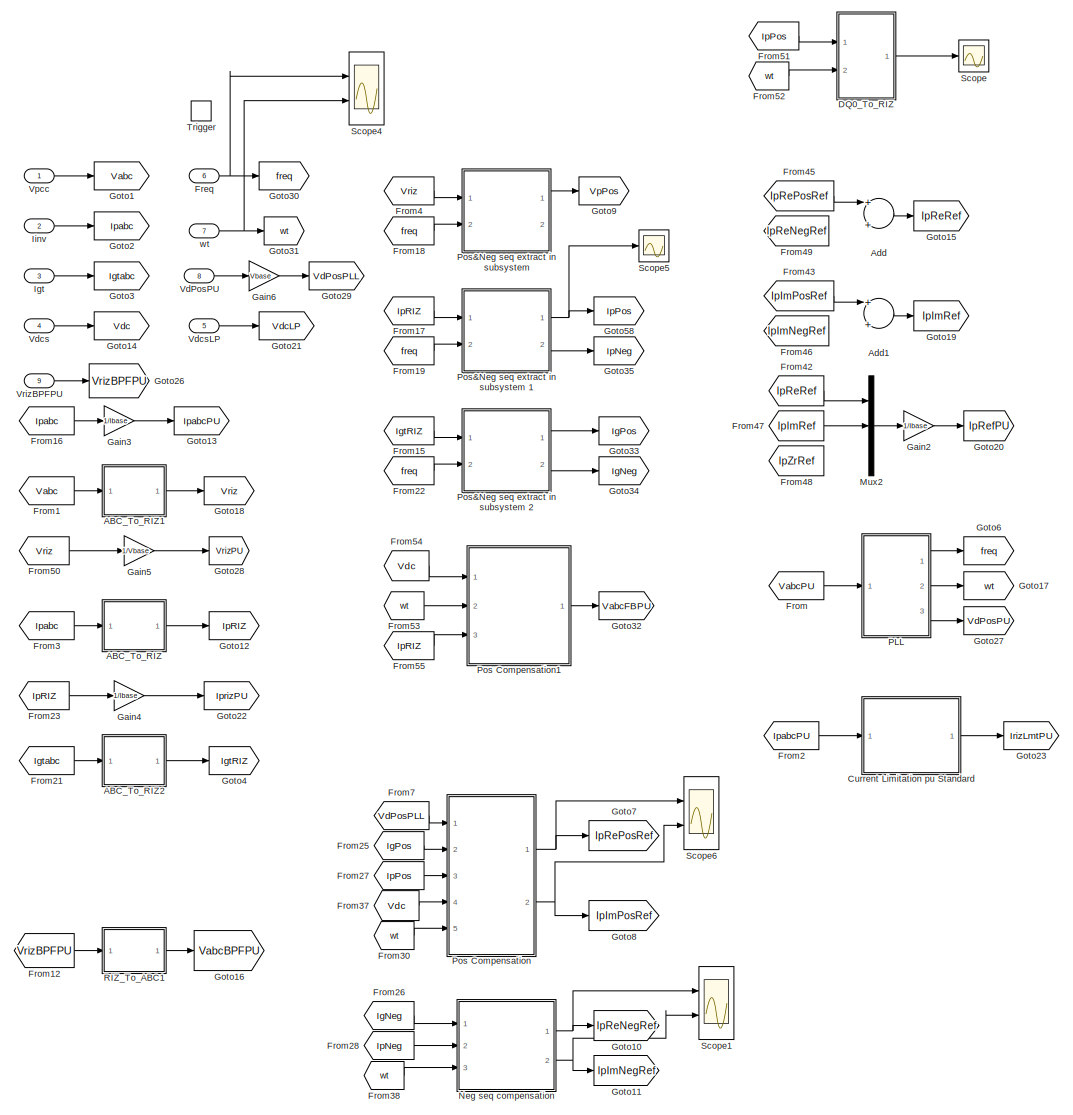
[diagram: AIP1/Subsystem7 - part 1/3, left side, full height]
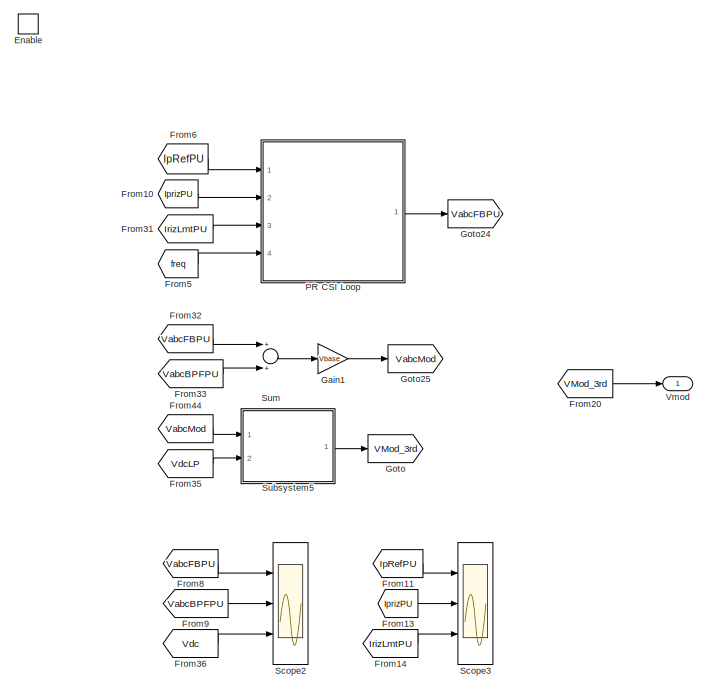
[diagram: AIP1/Subsystem7 - part 2/3, middle right region]
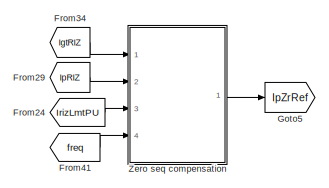
[diagram: AIP1/Subsystem7 - part 3/3, bottom left region]
BLOCK [SubSystem] AIP1/Subsystem7
  Ports = [9, 1, 1, 1]
  RequestExecContextInheritance = off
BLOCK [SubSystem] AIP1/Subsystem7/ABC_To_RIZ
  ErrorFcn = Stateflow.Translate.translate
  PermitHierarchicalResolution = ExplicitOnly
  Ports = [1, 1]
  RequestExecContextInheritance = off
  SFBlockType = MATLAB Function
  TreatAsAtomicUnit = on
BLOCK [Demux] AIP1/Subsystem7/ABC_To_RIZ/ Demux 
  Outputs = 1
  Ports = [1, 1]
BLOCK [S-Function] AIP1/Subsystem7/ABC_To_RIZ/ SFunction 
  EnableBusSupport = on
  FunctionName = sf_sfun
  PortCounts = [1 2]
  Ports = [1, 2]
  SFcnIsStateOwnerBlock = off
  SFunctionDeploymentMode = off
  Tag = Stateflow S-Function 5
BLOCK [Terminator] AIP1/Subsystem7/ABC_To_RIZ/ Terminator 
BLOCK [Inport] AIP1/Subsystem7/ABC_To_RIZ/ABC
  IconDisplay = Port number
BLOCK [Outport] AIP1/Subsystem7/ABC_To_RIZ/RIZ
  IconDisplay = Port number
BLOCK [SubSystem] AIP1/Subsystem7/ABC_To_RIZ1
  ErrorFcn = Stateflow.Translate.translate
  PermitHierarchicalResolution = ExplicitOnly
  Ports = [1, 1]
  RequestExecContextInheritance = off
  SFBlockType = MATLAB Function
  TreatAsAtomicUnit = on
BLOCK [Demux] AIP1/Subsystem7/ABC_To_RIZ1/ Demux 
  Outputs = 1
  Ports = [1, 1]
BLOCK [S-Function] AIP1/Subsystem7/ABC_To_RIZ1/ SFunction 
  EnableBusSupport = on
  FunctionName = sf_sfun
  PortCounts = [1 2]
  Ports = [1, 2]
  SFcnIsStateOwnerBlock = off
  SFunctionDeploymentMode = off
  Tag = Stateflow S-Function 4
BLOCK [Terminator] AIP1/Subsystem7/ABC_To_RIZ1/ Terminator 
BLOCK [Inport] AIP1/Subsystem7/ABC_To_RIZ1/ABC
  IconDisplay = Port number
BLOCK [Outport] AIP1/Subsystem7/ABC_To_RIZ1/RIZ
  IconDisplay = Port number
BLOCK [SubSystem] AIP1/Subsystem7/ABC_To_RIZ2
  ErrorFcn = Stateflow.Translate.translate
  PermitHierarchicalResolution = ExplicitOnly
  Ports = [1, 1]
  RequestExecContextInheritance = off
  SFBlockType = MATLAB Function
  TreatAsAtomicUnit = on
BLOCK [Demux] AIP1/Subsystem7/ABC_To_RIZ2/ Demux 
  Outputs = 1
  Ports = [1, 1]
BLOCK [S-Function] AIP1/Subsystem7/ABC_To_RIZ2/ SFunction 
  EnableBusSupport = on
  FunctionName = sf_sfun
  PortCounts = [1 2]
  Ports = [1, 2]
  SFcnIsStateOwnerBlock = off
  SFunctionDeploymentMode = off
  Tag = Stateflow S-Function 35
BLOCK [Terminator] AIP1/Subsystem7/ABC_To_RIZ2/ Terminator 
BLOCK [Inport] AIP1/Subsystem7/ABC_To_RIZ2/ABC
  IconDisplay = Port number
BLOCK [Outport] AIP1/Subsystem7/ABC_To_RIZ2/RIZ
  IconDisplay = Port number
BLOCK [Sum] AIP1/Subsystem7/Add
  InputSameDT = off
  OutDataTypeStr = Inherit: Inherit via internal rule
  Ports = [2, 1]
  SaturateOnIntegerOverflow = off
BLOCK [Sum] AIP1/Subsystem7/Add1
  InputSameDT = off
  OutDataTypeStr = Inherit: Inherit via internal rule
  Ports = [2, 1]
  SaturateOnIntegerOverflow = off
BLOCK [SubSystem] AIP1/Subsystem7/Current Limitation pu Standard
  Ports = [1, 1]
  RequestExecContextInheritance = off
BLOCK [SubSystem] AIP1/Subsystem7/Current Limitation pu Standard/ABC_To_RIZ
  ErrorFcn = Stateflow.Translate.translate
  PermitHierarchicalResolution = ExplicitOnly
  Ports = [1, 1]
  RequestExecContextInheritance = off
  SFBlockType = MATLAB Function
  TreatAsAtomicUnit = on
BLOCK [Demux] AIP1/Subsystem7/Current Limitation pu Standard/ABC_To_RIZ/ Demux 
  Outputs = 1
  Ports = [1, 1]
BLOCK [S-Function] AIP1/Subsystem7/Current Limitation pu Standard/ABC_To_RIZ/ SFunction 
  EnableBusSupport = on
  FunctionName = sf_sfun
  PortCounts = [1 2]
  Ports = [1, 2]
  SFcnIsStateOwnerBlock = off
  SFunctionDeploymentMode = off
  Tag = Stateflow S-Function 6
BLOCK [Terminator] AIP1/Subsystem7/Current Limitation pu Standard/ABC_To_RIZ/ Terminator 
BLOCK [Inport] AIP1/Subsystem7/Current Limitation pu Standard/ABC_To_RIZ/ABC
  IconDisplay = Port number
BLOCK [Outport] AIP1/Subsystem7/Current Limitation pu Standard/ABC_To_RIZ/RIZ
  IconDisplay = Port number
BLOCK [Sum] AIP1/Subsystem7/Current Limitation pu Standard/Add
  InputSameDT = off
  Inputs = +++
  OutDataTypeStr = Inherit: Inherit via internal rule
  Ports = [3, 1]
  SaturateOnIntegerOverflow = off
BLOCK [Constant] AIP1/Subsystem7/Current Limitation pu Standard/Constant
  Value = 1/sqrt(2)
BLOCK [Constant] AIP1/Subsystem7/Current Limitation pu Standard/Constant1
  Value = 1/sqrt(2)
BLOCK [Constant] AIP1/Subsystem7/Current Limitation pu Standard/Constant2
  Value = 1/sqrt(2)
BLOCK [Constant] AIP1/Subsystem7/Current Limitation pu Standard/Constant3
  Value = 1/(3*sqrt(2))
BLOCK [Demux] AIP1/Subsystem7/Current Limitation pu Standard/Demux1
  DisplayOption = bar
  Outputs = 3
  Ports = [1, 3]
BLOCK [Demux] AIP1/Subsystem7/Current Limitation pu Standard/Demux2
  DisplayOption = bar
  Outputs = 3
  Ports = [1, 3]
BLOCK [From] AIP1/Subsystem7/Current Limitation pu Standard/From
  GotoTag = IaDrp
BLOCK [From] AIP1/Subsystem7/Current Limitation pu Standard/From1
  GotoTag = IaRMS
BLOCK [From] AIP1/Subsystem7/Current Limitation pu Standard/From11
  GotoTag = Ic
BLOCK [From] AIP1/Subsystem7/Current Limitation pu Standard/From12
  GotoTag = Rb
BLOCK [From] AIP1/Subsystem7/Current Limitation pu Standard/From13
  GotoTag = Ib
BLOCK [From] AIP1/Subsystem7/Current Limitation pu Standard/From14
  GotoTag = Ia
BLOCK [From] AIP1/Subsystem7/Current Limitation pu Standard/From16
  GotoTag = Rc
BLOCK [From] AIP1/Subsystem7/Current Limitation pu Standard/From17
  GotoTag = Ib
BLOCK [From] AIP1/Subsystem7/Current Limitation pu Standard/From18
  GotoTag = Ic
BLOCK [From] AIP1/Subsystem7/Current Limitation pu Standard/From2
  GotoTag = IbDrp
BLOCK [From] AIP1/Subsystem7/Current Limitation pu Standard/From21
  GotoTag = IbRMS
BLOCK [From] AIP1/Subsystem7/Current Limitation pu Standard/From23
  GotoTag = IZrRMS
BLOCK [From] AIP1/Subsystem7/Current Limitation pu Standard/From24
  GotoTag = IcRMS
BLOCK [From] AIP1/Subsystem7/Current Limitation pu Standard/From28
  GotoTag = IZr
BLOCK [From] AIP1/Subsystem7/Current Limitation pu Standard/From3
  GotoTag = IcDrp
BLOCK [From] AIP1/Subsystem7/Current Limitation pu Standard/From31
  GotoTag = Ia
BLOCK [From] AIP1/Subsystem7/Current Limitation pu Standard/From32
  GotoTag = Ib
BLOCK [From] AIP1/Subsystem7/Current Limitation pu Standard/From33
  GotoTag = Ic
BLOCK [From] AIP1/Subsystem7/Current Limitation pu Standard/From34
  GotoTag = IabcDrp
BLOCK [From] AIP1/Subsystem7/Current Limitation pu Standard/From35
  GotoTag = RZr
BLOCK [From] AIP1/Subsystem7/Current Limitation pu Standard/From36
  GotoTag = IZr
BLOCK [From] AIP1/Subsystem7/Current Limitation pu Standard/From37
  GotoTag = IReDrp
BLOCK [From] AIP1/Subsystem7/Current Limitation pu Standard/From38
  GotoTag = IImDrp
BLOCK [From] AIP1/Subsystem7/Current Limitation pu Standard/From39
  GotoTag = IZrDrp
BLOCK [From] AIP1/Subsystem7/Current Limitation pu Standard/From4
  GotoTag = IrizDrp
BLOCK [From] AIP1/Subsystem7/Current Limitation pu Standard/From5
  GotoTag = Ia
BLOCK [From] AIP1/Subsystem7/Current Limitation pu Standard/From6
  GotoTag = Iabc
BLOCK [From] AIP1/Subsystem7/Current Limitation pu Standard/From7
  GotoTag = Ra
BLOCK [Gain] AIP1/Subsystem7/Current Limitation pu Standard/Gain
  Gain = Klmt
  OutDataTypeStr = Inherit: Inherit via internal rule
  ParamDataTypeStr = Inherit: Inherit via internal rule
  SaturateOnIntegerOverflow = off
BLOCK [Gain] AIP1/Subsystem7/Current Limitation pu Standard/Gain1
  Gain = Klmt
  OutDataTypeStr = Inherit: Inherit via internal rule
  ParamDataTypeStr = Inherit: Inherit via internal rule
  SaturateOnIntegerOverflow = off
BLOCK [Gain] AIP1/Subsystem7/Current Limitation pu Standard/Gain2
  Gain = Klmt
  OutDataTypeStr = Inherit: Inherit via internal rule
  ParamDataTypeStr = Inherit: Inherit via internal rule
  SaturateOnIntegerOverflow = off
BLOCK [Gain] AIP1/Subsystem7/Current Limitation pu Standard/Gain3
  Gain = Klmt
  OutDataTypeStr = Inherit: Inherit via internal rule
  ParamDataTypeStr = Inherit: Inherit via internal rule
  SaturateOnIntegerOverflow = off
BLOCK [Gain] AIP1/Subsystem7/Current Limitation pu Standard/Gain4
  Gain = 1/3
  OutDataTypeStr = Inherit: Inherit via internal rule
  ParamDataTypeStr = Inherit: Inherit via internal rule
  SaturateOnIntegerOverflow = off
BLOCK [Goto] AIP1/Subsystem7/Current Limitation pu Standard/Goto
  GotoTag = Ra
BLOCK [Goto] AIP1/Subsystem7/Current Limitation pu Standard/Goto1
  GotoTag = Rb
BLOCK [Goto] AIP1/Subsystem7/Current Limitation pu Standard/Goto10
  GotoTag = IcDrp
BLOCK [Goto] AIP1/Subsystem7/Current Limitation pu Standard/Goto11
  GotoTag = IbRMS
BLOCK [Goto] AIP1/Subsystem7/Current Limitation pu Standard/Goto12
  GotoTag = IabcDrp
BLOCK [Goto] AIP1/Subsystem7/Current Limitation pu Standard/Goto13
  GotoTag = IcRMS
BLOCK [Goto] AIP1/Subsystem7/Current Limitation pu Standard/Goto14
  GotoTag = Rc
BLOCK [Goto] AIP1/Subsystem7/Current Limitation pu Standard/Goto15
  GotoTag = IReDrp
BLOCK [Goto] AIP1/Subsystem7/Current Limitation pu Standard/Goto16
  GotoTag = IZrDrp
BLOCK [Goto] AIP1/Subsystem7/Current Limitation pu Standard/Goto2
  GotoTag = RZr
BLOCK [Goto] AIP1/Subsystem7/Current Limitation pu Standard/Goto20
  GotoTag = IZr
BLOCK [Goto] AIP1/Subsystem7/Current Limitation pu Standard/Goto23
  GotoTag = IZrRMS
BLOCK [Goto] AIP1/Subsystem7/Current Limitation pu Standard/Goto25
  GotoTag = IImDrp
BLOCK [Goto] AIP1/Subsystem7/Current Limitation pu Standard/Goto26
  GotoTag = IrizDrp
BLOCK [Goto] AIP1/Subsystem7/Current Limitation pu Standard/Goto3
  GotoTag = IaDrp
BLOCK [Goto] AIP1/Subsystem7/Current Limitation pu Standard/Goto4
  GotoTag = Ib
BLOCK [Goto] AIP1/Subsystem7/Current Limitation pu Standard/Goto5
  GotoTag = Ic
BLOCK [Goto] AIP1/Subsystem7/Current Limitation pu Standard/Goto6
  GotoTag = Ia
BLOCK [Goto] AIP1/Subsystem7/Current Limitation pu Standard/Goto7
  GotoTag = Iabc
BLOCK [Goto] AIP1/Subsystem7/Current Limitation pu Standard/Goto8
  GotoTag = IaRMS
BLOCK [Goto] AIP1/Subsystem7/Current Limitation pu Standard/Goto9
  GotoTag = IbDrp
BLOCK [SubSystem] AIP1/Subsystem7/Current Limitation pu Standard/IIR_1st
  ErrorFcn = Stateflow.Translate.translate
  PermitHierarchicalResolution = ExplicitOnly
  Ports = [1, 1]
  RequestExecContextInheritance = off
  SFBlockType = MATLAB Function
  TreatAsAtomicUnit = on
BLOCK [Demux] AIP1/Subsystem7/Current Limitation pu Standard/IIR_1st/ Demux 
  Outputs = 1
  Ports = [1, 1]
BLOCK [S-Function] AIP1/Subsystem7/Current Limitation pu Standard/IIR_1st/ SFunction 
  EnableBusSupport = on
  FunctionName = sf_sfun
  Parameters = fTs,fc
  PortCounts = [1 2]
  Ports = [1, 2]
  SFcnIsStateOwnerBlock = off
  SFunctionDeploymentMode = off
  Tag = Stateflow S-Function 7
BLOCK [Terminator] AIP1/Subsystem7/Current Limitation pu Standard/IIR_1st/ Terminator 
BLOCK [Inport] AIP1/Subsystem7/Current Limitation pu Standard/IIR_1st/u
  IconDisplay = Port number
BLOCK [Outport] AIP1/Subsystem7/Current Limitation pu Standard/IIR_1st/y
  IconDisplay = Port number
BLOCK [SubSystem] AIP1/Subsystem7/Current Limitation pu Standard/IIR_1st1
  ErrorFcn = Stateflow.Translate.translate
  PermitHierarchicalResolution = ExplicitOnly
  Ports = [1, 1]
  RequestExecContextInheritance = off
  SFBlockType = MATLAB Function
  TreatAsAtomicUnit = on
BLOCK [Demux] AIP1/Subsystem7/Current Limitation pu Standard/IIR_1st1/ Demux 
  Outputs = 1
  Ports = [1, 1]
BLOCK [S-Function] AIP1/Subsystem7/Current Limitation pu Standard/IIR_1st1/ SFunction 
  EnableBusSupport = on
  FunctionName = sf_sfun
  Parameters = fTs,fc
  PortCounts = [1 2]
  Ports = [1, 2]
  SFcnIsStateOwnerBlock = off
  SFunctionDeploymentMode = off
  Tag = Stateflow S-Function 9
BLOCK [Terminator] AIP1/Subsystem7/Current Limitation pu Standard/IIR_1st1/ Terminator 
BLOCK [Inport] AIP1/Subsystem7/Current Limitation pu Standard/IIR_1st1/u
  IconDisplay = Port number
BLOCK [Outport] AIP1/Subsystem7/Current Limitation pu Standard/IIR_1st1/y
  IconDisplay = Port number
BLOCK [SubSystem] AIP1/Subsystem7/Current Limitation pu Standard/IIR_1st2
  ErrorFcn = Stateflow.Translate.translate
  PermitHierarchicalResolution = ExplicitOnly
  Ports = [1, 1]
  RequestExecContextInheritance = off
  SFBlockType = MATLAB Function
  TreatAsAtomicUnit = on
BLOCK [Demux] AIP1/Subsystem7/Current Limitation pu Standard/IIR_1st2/ Demux 
  Outputs = 1
  Ports = [1, 1]
BLOCK [S-Function] AIP1/Subsystem7/Current Limitation pu Standard/IIR_1st2/ SFunction 
  EnableBusSupport = on
  FunctionName = sf_sfun
  Parameters = fTs,fc
  PortCounts = [1 2]
  Ports = [1, 2]
  SFcnIsStateOwnerBlock = off
  SFunctionDeploymentMode = off
  Tag = Stateflow S-Function 10
BLOCK [Terminator] AIP1/Subsystem7/Current Limitation pu Standard/IIR_1st2/ Terminator 
BLOCK [Inport] AIP1/Subsystem7/Current Limitation pu Standard/IIR_1st2/u
  IconDisplay = Port number
BLOCK [Outport] AIP1/Subsystem7/Current Limitation pu Standard/IIR_1st2/y
  IconDisplay = Port number
BLOCK [SubSystem] AIP1/Subsystem7/Current Limitation pu Standard/IIR_1st3
  ErrorFcn = Stateflow.Translate.translate
  PermitHierarchicalResolution = ExplicitOnly
  Ports = [1, 1]
  RequestExecContextInheritance = off
  SFBlockType = MATLAB Function
  TreatAsAtomicUnit = on
BLOCK [Demux] AIP1/Subsystem7/Current Limitation pu Standard/IIR_1st3/ Demux 
  Outputs = 1
  Ports = [1, 1]
BLOCK [S-Function] AIP1/Subsystem7/Current Limitation pu Standard/IIR_1st3/ SFunction 
  EnableBusSupport = on
  FunctionName = sf_sfun
  Parameters = fTs,fc
  PortCounts = [1 2]
  Ports = [1, 2]
  SFcnIsStateOwnerBlock = off
  SFunctionDeploymentMode = off
  Tag = Stateflow S-Function 14
BLOCK [Terminator] AIP1/Subsystem7/Current Limitation pu Standard/IIR_1st3/ Terminator 
BLOCK [Inport] AIP1/Subsystem7/Current Limitation pu Standard/IIR_1st3/u
  IconDisplay = Port number
BLOCK [Outport] AIP1/Subsystem7/Current Limitation pu Standard/IIR_1st3/y
  IconDisplay = Port number
BLOCK [Inport] AIP1/Subsystem7/Current Limitation pu Standard/Iabc
  IconDisplay = Port number
BLOCK [Outport] AIP1/Subsystem7/Current Limitation pu Standard/IrizDrp
  IconDisplay = Port number
BLOCK [Mux] AIP1/Subsystem7/Current Limitation pu Standard/Mux
  DisplayOption = bar
  Inputs = 3
  Ports = [3, 1]
BLOCK [Mux] AIP1/Subsystem7/Current Limitation pu Standard/Mux1
  DisplayOption = bar
  Inputs = 3
  Ports = [3, 1]
BLOCK [SubSystem] AIP1/Subsystem7/Current Limitation pu Standard/PI Ctrl
  ErrorFcn = Stateflow.Translate.translate
  PermitHierarchicalResolution = ExplicitOnly
  Ports = [1, 1]
  RequestExecContextInheritance = off
  SFBlockType = MATLAB Function
  TreatAsAtomicUnit = on
BLOCK [Demux] AIP1/Subsystem7/Current Limitation pu Standard/PI Ctrl/ Demux 
  Outputs = 1
  Ports = [1, 1]
BLOCK [S-Function] AIP1/Subsystem7/Current Limitation pu Standard/PI Ctrl/ SFunction 
  EnableBusSupport = on
  FunctionName = sf_sfun
  Parameters = fKI,fKP,fMaxLmt,fMinLmt,fTs
  PortCounts = [1 2]
  Ports = [1, 2]
  SFcnIsStateOwnerBlock = off
  SFunctionDeploymentMode = off
  Tag = Stateflow S-Function 19
BLOCK [Terminator] AIP1/Subsystem7/Current Limitation pu Standard/PI Ctrl/ Terminator 
BLOCK [Inport] AIP1/Subsystem7/Current Limitation pu Standard/PI Ctrl/err
  IconDisplay = Port number
BLOCK [Outport] AIP1/Subsystem7/Current Limitation pu Standard/PI Ctrl/y
  IconDisplay = Port number
BLOCK [SubSystem] AIP1/Subsystem7/Current Limitation pu Standard/PI Ctrl1
  ErrorFcn = Stateflow.Translate.translate
  PermitHierarchicalResolution = ExplicitOnly
  Ports = [1, 1]
  RequestExecContextInheritance = off
  SFBlockType = MATLAB Function
  TreatAsAtomicUnit = on
BLOCK [Demux] AIP1/Subsystem7/Current Limitation pu Standard/PI Ctrl1/ Demux 
  Outputs = 1
  Ports = [1, 1]
BLOCK [S-Function] AIP1/Subsystem7/Current Limitation pu Standard/PI Ctrl1/ SFunction 
  EnableBusSupport = on
  FunctionName = sf_sfun
  Parameters = fKI,fKP,fMaxLmt,fMinLmt,fTs
  PortCounts = [1 2]
  Ports = [1, 2]
  SFcnIsStateOwnerBlock = off
  SFunctionDeploymentMode = off
  Tag = Stateflow S-Function 11
BLOCK [Terminator] AIP1/Subsystem7/Current Limitation pu Standard/PI Ctrl1/ Terminator 
BLOCK [Inport] AIP1/Subsystem7/Current Limitation pu Standard/PI Ctrl1/err
  IconDisplay = Port number
BLOCK [Outport] AIP1/Subsystem7/Current Limitation pu Standard/PI Ctrl1/y
  IconDisplay = Port number
BLOCK [SubSystem] AIP1/Subsystem7/Current Limitation pu Standard/PI Ctrl2
  ErrorFcn = Stateflow.Translate.translate
  PermitHierarchicalResolution = ExplicitOnly
  Ports = [1, 1]
  RequestExecContextInheritance = off
  SFBlockType = MATLAB Function
  TreatAsAtomicUnit = on
BLOCK [Demux] AIP1/Subsystem7/Current Limitation pu Standard/PI Ctrl2/ Demux 
  Outputs = 1
  Ports = [1, 1]
BLOCK [S-Function] AIP1/Subsystem7/Current Limitation pu Standard/PI Ctrl2/ SFunction 
  EnableBusSupport = on
  FunctionName = sf_sfun
  Parameters = fKI,fKP,fMaxLmt,fMinLmt,fTs
  PortCounts = [1 2]
  Ports = [1, 2]
  SFcnIsStateOwnerBlock = off
  SFunctionDeploymentMode = off
  Tag = Stateflow S-Function 23
BLOCK [Terminator] AIP1/Subsystem7/Current Limitation pu Standard/PI Ctrl2/ Terminator 
BLOCK [Inport] AIP1/Subsystem7/Current Limitation pu Standard/PI Ctrl2/err
  IconDisplay = Port number
BLOCK [Outport] AIP1/Subsystem7/Current Limitation pu Standard/PI Ctrl2/y
  IconDisplay = Port number
BLOCK [SubSystem] AIP1/Subsystem7/Current Limitation pu Standard/PI Ctrl3
  ErrorFcn = Stateflow.Translate.translate
  PermitHierarchicalResolution = ExplicitOnly
  Ports = [1, 1]
  RequestExecContextInheritance = off
  SFBlockType = MATLAB Function
  TreatAsAtomicUnit = on
BLOCK [Demux] AIP1/Subsystem7/Current Limitation pu Standard/PI Ctrl3/ Demux 
  Outputs = 1
  Ports = [1, 1]
BLOCK [S-Function] AIP1/Subsystem7/Current Limitation pu Standard/PI Ctrl3/ SFunction 
  EnableBusSupport = on
  FunctionName = sf_sfun
  Parameters = fKI,fKP,fMaxLmt,fMinLmt,fTs
  PortCounts = [1 2]
  Ports = [1, 2]
  SFcnIsStateOwnerBlock = off
  SFunctionDeploymentMode = off
  Tag = Stateflow S-Function 29
BLOCK [Terminator] AIP1/Subsystem7/Current Limitation pu Standard/PI Ctrl3/ Terminator 
BLOCK [Inport] AIP1/Subsystem7/Current Limitation pu Standard/PI Ctrl3/err
  IconDisplay = Port number
BLOCK [Outport] AIP1/Subsystem7/Current Limitation pu Standard/PI Ctrl3/y
  IconDisplay = Port number
BLOCK [Product] AIP1/Subsystem7/Current Limitation pu Standard/Product
  InputSameDT = off
  OutDataTypeStr = Inherit: Inherit via internal rule
  Ports = [2, 1]
  RndMeth = Floor
  SaturateOnIntegerOverflow = off
BLOCK [Product] AIP1/Subsystem7/Current Limitation pu Standard/Product1
  InputSameDT = off
  OutDataTypeStr = Inherit: Inherit via internal rule
  Ports = [2, 1]
  RndMeth = Floor
  SaturateOnIntegerOverflow = off
BLOCK [Product] AIP1/Subsystem7/Current Limitation pu Standard/Product2
  InputSameDT = off
  OutDataTypeStr = Inherit: Inherit via internal rule
  Ports = [2, 1]
  RndMeth = Floor
  SaturateOnIntegerOverflow = off
BLOCK [Product] AIP1/Subsystem7/Current Limitation pu Standard/Product3
  InputSameDT = off
  OutDataTypeStr = Inherit: Inherit via internal rule
  Ports = [2, 1]
  RndMeth = Floor
  SaturateOnIntegerOverflow = off
BLOCK [SubSystem] AIP1/Subsystem7/Current Limitation pu Standard/RMS
  ErrorFcn = Stateflow.Translate.translate
  PermitHierarchicalResolution = ExplicitOnly
  Ports = [1, 1]
  RequestExecContextInheritance = off
  SFBlockType = MATLAB Function
  TreatAsAtomicUnit = on
BLOCK [Demux] AIP1/Subsystem7/Current Limitation pu Standard/RMS/ Demux 
  Outputs = 1
  Ports = [1, 1]
BLOCK [S-Function] AIP1/Subsystem7/Current Limitation pu Standard/RMS/ SFunction 
  EnableBusSupport = on
  FunctionName = sf_sfun
  Parameters = iNumAry
  PortCounts = [1 2]
  Ports = [1, 2]
  SFcnIsStateOwnerBlock = off
  SFunctionDeploymentMode = off
  Tag = Stateflow S-Function 32
BLOCK [Terminator] AIP1/Subsystem7/Current Limitation pu Standard/RMS/ Terminator 
BLOCK [Inport] AIP1/Subsystem7/Current Limitation pu Standard/RMS/u
  IconDisplay = Port number
BLOCK [Outport] AIP1/Subsystem7/Current Limitation pu Standard/RMS/y
  IconDisplay = Port number
BLOCK [SubSystem] AIP1/Subsystem7/Current Limitation pu Standard/RMS1
  ErrorFcn = Stateflow.Translate.translate
  PermitHierarchicalResolution = ExplicitOnly
  Ports = [1, 1]
  RequestExecContextInheritance = off
  SFBlockType = MATLAB Function
  TreatAsAtomicUnit = on
BLOCK [Demux] AIP1/Subsystem7/Current Limitation pu Standard/RMS1/ Demux 
  Outputs = 1
  Ports = [1, 1]
BLOCK [S-Function] AIP1/Subsystem7/Current Limitation pu Standard/RMS1/ SFunction 
  EnableBusSupport = on
  FunctionName = sf_sfun
  Parameters = iNumAry
  PortCounts = [1 2]
  Ports = [1, 2]
  SFcnIsStateOwnerBlock = off
  SFunctionDeploymentMode = off
  Tag = Stateflow S-Function 33
BLOCK [Terminator] AIP1/Subsystem7/Current Limitation pu Standard/RMS1/ Terminator 
BLOCK [Inport] AIP1/Subsystem7/Current Limitation pu Standard/RMS1/u
  IconDisplay = Port number
BLOCK [Outport] AIP1/Subsystem7/Current Limitation pu Standard/RMS1/y
  IconDisplay = Port number
BLOCK [SubSystem] AIP1/Subsystem7/Current Limitation pu Standard/RMS2
  ErrorFcn = Stateflow.Translate.translate
  PermitHierarchicalResolution = ExplicitOnly
  Ports = [1, 1]
  RequestExecContextInheritance = off
  SFBlockType = MATLAB Function
  TreatAsAtomicUnit = on
BLOCK [Demux] AIP1/Subsystem7/Current Limitation pu Standard/RMS2/ Demux 
  Outputs = 1
  Ports = [1, 1]
BLOCK [S-Function] AIP1/Subsystem7/Current Limitation pu Standard/RMS2/ SFunction 
  EnableBusSupport = on
  FunctionName = sf_sfun
  Parameters = iNumAry
  PortCounts = [1 2]
  Ports = [1, 2]
  SFcnIsStateOwnerBlock = off
  SFunctionDeploymentMode = off
  Tag = Stateflow S-Function 34
BLOCK [Terminator] AIP1/Subsystem7/Current Limitation pu Standard/RMS2/ Terminator 
BLOCK [Inport] AIP1/Subsystem7/Current Limitation pu Standard/RMS2/u
  IconDisplay = Port number
BLOCK [Outport] AIP1/Subsystem7/Current Limitation pu Standard/RMS2/y
  IconDisplay = Port number
BLOCK [SubSystem] AIP1/Subsystem7/Current Limitation pu Standard/RMS3
  ErrorFcn = Stateflow.Translate.translate
  PermitHierarchicalResolution = ExplicitOnly
  Ports = [1, 1]
  RequestExecContextInheritance = off
  SFBlockType = MATLAB Function
  TreatAsAtomicUnit = on
BLOCK [Demux] AIP1/Subsystem7/Current Limitation pu Standard/RMS3/ Demux 
  Outputs = 1
  Ports = [1, 1]
BLOCK [S-Function] AIP1/Subsystem7/Current Limitation pu Standard/RMS3/ SFunction 
  EnableBusSupport = on
  FunctionName = sf_sfun
  Parameters = iNumAry
  PortCounts = [1 2]
  Ports = [1, 2]
  SFcnIsStateOwnerBlock = off
  SFunctionDeploymentMode = off
  Tag = Stateflow S-Function 36
BLOCK [Terminator] AIP1/Subsystem7/Current Limitation pu Standard/RMS3/ Terminator 
BLOCK [Inport] AIP1/Subsystem7/Current Limitation pu Standard/RMS3/u
  IconDisplay = Port number
BLOCK [Outport] AIP1/Subsystem7/Current Limitation pu Standard/RMS3/y
  IconDisplay = Port number
BLOCK [Sum] AIP1/Subsystem7/Current Limitation pu Standard/Sum
  IconShape = round
  InputSameDT = off
  Inputs = +-|
  OutDataTypeStr = Inherit: Inherit via internal rule
  Ports = [2, 1]
  SaturateOnIntegerOverflow = off
BLOCK [Sum] AIP1/Subsystem7/Current Limitation pu Standard/Sum1
  IconShape = round
  InputSameDT = off
  Inputs = +-|
  OutDataTypeStr = Inherit: Inherit via internal rule
  Ports = [2, 1]
  SaturateOnIntegerOverflow = off
BLOCK [Sum] AIP1/Subsystem7/Current Limitation pu Standard/Sum2
  IconShape = round
  InputSameDT = off
  Inputs = +-|
  OutDataTypeStr = Inherit: Inherit via internal rule
  Ports = [2, 1]
  SaturateOnIntegerOverflow = off
BLOCK [Sum] AIP1/Subsystem7/Current Limitation pu Standard/Sum3
  IconShape = round
  InputSameDT = off
  Inputs = +-|
  OutDataTypeStr = Inherit: Inherit via internal rule
  Ports = [2, 1]
  SaturateOnIntegerOverflow = off
BLOCK [Terminator] AIP1/Subsystem7/Current Limitation pu Standard/Terminator
BLOCK [SubSystem] AIP1/Subsystem7/DQ0_To_RIZ
  ErrorFcn = Stateflow.Translate.translate
  PermitHierarchicalResolution = ExplicitOnly
  Ports = [2, 1]
  RequestExecContextInheritance = off
  SFBlockType = MATLAB Function
  TreatAsAtomicUnit = on
BLOCK [Demux] AIP1/Subsystem7/DQ0_To_RIZ/ Demux 
  Outputs = 1
  Ports = [1, 1]
BLOCK [S-Function] AIP1/Subsystem7/DQ0_To_RIZ/ SFunction 
  EnableBusSupport = on
  FunctionName = sf_sfun
  Parameters = iAxis
  PortCounts = [2 2]
  Ports = [2, 2]
  SFcnIsStateOwnerBlock = off
  SFunctionDeploymentMode = off
  Tag = Stateflow S-Function 93
BLOCK [Terminator] AIP1/Subsystem7/DQ0_To_RIZ/ Terminator 
BLOCK [Inport] AIP1/Subsystem7/DQ0_To_RIZ/DQ0
  IconDisplay = Port number
BLOCK [Outport] AIP1/Subsystem7/DQ0_To_RIZ/RIZ
  IconDisplay = Port number
BLOCK [Inport] AIP1/Subsystem7/DQ0_To_RIZ/wt
  IconDisplay = Port number
  Port = 2
BLOCK [EnablePort] AIP1/Subsystem7/Enable
  Ports = []
BLOCK [Inport] AIP1/Subsystem7/Freq 
  IconDisplay = Port number
  Port = 6
BLOCK [From] AIP1/Subsystem7/From
  Commented = on
  GotoTag = VabcPU
BLOCK [From] AIP1/Subsystem7/From1
  GotoTag = Vabc
BLOCK [From] AIP1/Subsystem7/From10
  Commented = on
  GotoTag = IprizPU
BLOCK [From] AIP1/Subsystem7/From11
  GotoTag = IpRefPU
BLOCK [From] AIP1/Subsystem7/From12
  GotoTag = VrizBPFPU
BLOCK [From] AIP1/Subsystem7/From13
  GotoTag = IprizPU
BLOCK [From] AIP1/Subsystem7/From14
  GotoTag = IrizLmtPU
BLOCK [From] AIP1/Subsystem7/From15
  GotoTag = IgtRIZ
BLOCK [From] AIP1/Subsystem7/From16
  GotoTag = Ipabc
BLOCK [From] AIP1/Subsystem7/From17
  GotoTag = IpRIZ
BLOCK [From] AIP1/Subsystem7/From18
  GotoTag = freq
BLOCK [From] AIP1/Subsystem7/From19
  GotoTag = freq
BLOCK [From] AIP1/Subsystem7/From2
  GotoTag = IpabcPU
BLOCK [From] AIP1/Subsystem7/From20
  GotoTag = VMod_3rd
BLOCK [From] AIP1/Subsystem7/From21
  GotoTag = Igtabc
BLOCK [From] AIP1/Subsystem7/From22
  GotoTag = freq
BLOCK [From] AIP1/Subsystem7/From23
  GotoTag = IpRIZ
BLOCK [From] AIP1/Subsystem7/From24
  Commented = on
  GotoTag = IrizLmtPU
BLOCK [From] AIP1/Subsystem7/From25
  Commented = on
  GotoTag = IgPos
BLOCK [From] AIP1/Subsystem7/From26
  Commented = on
  GotoTag = IgNeg
BLOCK [From] AIP1/Subsystem7/From27
  Commented = on
  GotoTag = IpPos
BLOCK [From] AIP1/Subsystem7/From28
  Commented = on
  GotoTag = IpNeg
BLOCK [From] AIP1/Subsystem7/From29
  Commented = on
  GotoTag = IpRIZ
BLOCK [From] AIP1/Subsystem7/From3
  GotoTag = Ipabc
BLOCK [From] AIP1/Subsystem7/From30
  Commented = on
  GotoTag = wt
BLOCK [From] AIP1/Subsystem7/From31
  Commented = on
  GotoTag = IrizLmtPU
BLOCK [From] AIP1/Subsystem7/From32
  GotoTag = VabcFBPU
BLOCK [From] AIP1/Subsystem7/From33
  GotoTag = VabcBPFPU
BLOCK [From] AIP1/Subsystem7/From34
  Commented = on
  GotoTag = IgtRIZ
BLOCK [From] AIP1/Subsystem7/From35
  GotoTag = VdcLP
BLOCK [From] AIP1/Subsystem7/From36
  GotoTag = Vdc
BLOCK [From] AIP1/Subsystem7/From37
  Commented = on
  GotoTag = Vdc
BLOCK [From] AIP1/Subsystem7/From38
  Commented = on
  GotoTag = wt
BLOCK [From] AIP1/Subsystem7/From4
  GotoTag = Vriz
BLOCK [From] AIP1/Subsystem7/From41
  Commented = on
  GotoTag = freq
BLOCK [From] AIP1/Subsystem7/From42
  GotoTag = IpReRef
BLOCK [From] AIP1/Subsystem7/From43
  GotoTag = IpImPosRef
BLOCK [From] AIP1/Subsystem7/From44
  GotoTag = VabcMod
BLOCK [From] AIP1/Subsystem7/From45
  GotoTag = IpRePosRef
BLOCK [From] AIP1/Subsystem7/From46
  GotoTag = IpImNegRef
BLOCK [From] AIP1/Subsystem7/From47
  GotoTag = IpImRef
BLOCK [From] AIP1/Subsystem7/From48
  GotoTag = IpZrRef
BLOCK [From] AIP1/Subsystem7/From49
  GotoTag = IpReNegRef
BLOCK [From] AIP1/Subsystem7/From5
  Commented = on
  GotoTag = freq
BLOCK [From] AIP1/Subsystem7/From50
  GotoTag = Vriz
BLOCK [From] AIP1/Subsystem7/From51
  GotoTag = IpPos
BLOCK [From] AIP1/Subsystem7/From52
  GotoTag = wt
BLOCK [From] AIP1/Subsystem7/From53
  GotoTag = wt
BLOCK [From] AIP1/Subsystem7/From54
  GotoTag = Vdc
BLOCK [From] AIP1/Subsystem7/From55
  GotoTag = IpRIZ
BLOCK [From] AIP1/Subsystem7/From6
  Commented = on
  GotoTag = IpRefPU
BLOCK [From] AIP1/Subsystem7/From7
  Commented = on
  GotoTag = VdPosPLL
BLOCK [From] AIP1/Subsystem7/From8
  GotoTag = VabcFBPU
BLOCK [From] AIP1/Subsystem7/From9
  GotoTag = VabcBPFPU
BLOCK [Gain] AIP1/Subsystem7/Gain1
  Gain = Vbase
  OutDataTypeStr = Inherit: Inherit via internal rule
  ParamDataTypeStr = Inherit: Inherit via internal rule
  SaturateOnIntegerOverflow = off
BLOCK [Gain] AIP1/Subsystem7/Gain2
  Gain = 1/Ibase
  OutDataTypeStr = Inherit: Inherit via internal rule
  ParamDataTypeStr = Inherit: Inherit via internal rule
  SaturateOnIntegerOverflow = off
BLOCK [Gain] AIP1/Subsystem7/Gain3
  Gain = 1/Ibase
  OutDataTypeStr = Inherit: Inherit via internal rule
  ParamDataTypeStr = Inherit: Inherit via internal rule
  SaturateOnIntegerOverflow = off
BLOCK [Gain] AIP1/Subsystem7/Gain4
  Gain = 1/Ibase
  OutDataTypeStr = Inherit: Inherit via internal rule
  ParamDataTypeStr = Inherit: Inherit via internal rule
  SaturateOnIntegerOverflow = off
BLOCK [Gain] AIP1/Subsystem7/Gain5
  Gain = 1/Vbase
  OutDataTypeStr = Inherit: Inherit via internal rule
  ParamDataTypeStr = Inherit: Inherit via internal rule
  SaturateOnIntegerOverflow = off
BLOCK [Gain] AIP1/Subsystem7/Gain6
  Gain = Vbase
  OutDataTypeStr = Inherit: Inherit via internal rule
  ParamDataTypeStr = Inherit: Inherit via internal rule
  SaturateOnIntegerOverflow = off
BLOCK [Goto] AIP1/Subsystem7/Goto
  GotoTag = VMod_3rd
BLOCK [Goto] AIP1/Subsystem7/Goto1
  GotoTag = Vabc
BLOCK [Goto] AIP1/Subsystem7/Goto10
  Commented = on
  GotoTag = IpReNegRef
BLOCK [Goto] AIP1/Subsystem7/Goto11
  Commented = on
  GotoTag = IpImNegRef
BLOCK [Goto] AIP1/Subsystem7/Goto12
  GotoTag = IpRIZ
BLOCK [Goto] AIP1/Subsystem7/Goto13
  GotoTag = IpabcPU
BLOCK [Goto] AIP1/Subsystem7/Goto14
  GotoTag = Vdc
BLOCK [Goto] AIP1/Subsystem7/Goto15
  GotoTag = IpReRef
BLOCK [Goto] AIP1/Subsystem7/Goto16
  GotoTag = VabcBPFPU
BLOCK [Goto] AIP1/Subsystem7/Goto17
  Commented = on
  GotoTag = wt
BLOCK [Goto] AIP1/Subsystem7/Goto18
  GotoTag = Vriz
BLOCK [Goto] AIP1/Subsystem7/Goto19
  GotoTag = IpImRef
BLOCK [Goto] AIP1/Subsystem7/Goto2
  GotoTag = Ipabc
BLOCK [Goto] AIP1/Subsystem7/Goto20
  GotoTag = IpRefPU
BLOCK [Goto] AIP1/Subsystem7/Goto21
  GotoTag = VdcLP
BLOCK [Goto] AIP1/Subsystem7/Goto22
  GotoTag = IprizPU
BLOCK [Goto] AIP1/Subsystem7/Goto23
  GotoTag = IrizLmtPU
BLOCK [Goto] AIP1/Subsystem7/Goto24
  Commented = on
  GotoTag = VabcFBPU
BLOCK [Goto] AIP1/Subsystem7/Goto25
  GotoTag = VabcMod
BLOCK [Goto] AIP1/Subsystem7/Goto26
  GotoTag = VrizBPFPU
BLOCK [Goto] AIP1/Subsystem7/Goto27
  Commented = on
  GotoTag = VdPosPU
BLOCK [Goto] AIP1/Subsystem7/Goto28
  GotoTag = VrizPU
BLOCK [Goto] AIP1/Subsystem7/Goto29
  GotoTag = VdPosPLL
BLOCK [Goto] AIP1/Subsystem7/Goto3
  GotoTag = Igtabc
BLOCK [Goto] AIP1/Subsystem7/Goto30
  GotoTag = freq
BLOCK [Goto] AIP1/Subsystem7/Goto31
  GotoTag = wt
BLOCK [Goto] AIP1/Subsystem7/Goto32
  GotoTag = VabcFBPU
BLOCK [Goto] AIP1/Subsystem7/Goto33
  GotoTag = IgPos
BLOCK [Goto] AIP1/Subsystem7/Goto34
  GotoTag = IgNeg
BLOCK [Goto] AIP1/Subsystem7/Goto35
  GotoTag = IpNeg
BLOCK [Goto] AIP1/Subsystem7/Goto4
  GotoTag = IgtRIZ
BLOCK [Goto] AIP1/Subsystem7/Goto5
  Commented = on
  GotoTag = IpZrRef
BLOCK [Goto] AIP1/Subsystem7/Goto58
  GotoTag = IpPos
BLOCK [Goto] AIP1/Subsystem7/Goto6
  Commented = on
  GotoTag = freq
BLOCK [Goto] AIP1/Subsystem7/Goto7
  Commented = on
  GotoTag = IpRePosRef
BLOCK [Goto] AIP1/Subsystem7/Goto8
  Commented = on
  GotoTag = IpImPosRef
BLOCK [Goto] AIP1/Subsystem7/Goto9
  GotoTag = VpPos
BLOCK [Inport] AIP1/Subsystem7/Igt
  IconDisplay = Port number
  Port = 3
BLOCK [Inport] AIP1/Subsystem7/Iinv
  IconDisplay = Port number
  Port = 2
BLOCK [Mux] AIP1/Subsystem7/Mux2
  DisplayOption = bar
  Inputs = 3
  Ports = [3, 1]
BLOCK [SubSystem] AIP1/Subsystem7/Neg seq compensation
  Commented = on
  Ports = [3, 2]
  RequestExecContextInheritance = off
BLOCK [Constant] AIP1/Subsystem7/Neg seq compensation/Constant3
  SampleTime = -1
  Value = 0
BLOCK [Constant] AIP1/Subsystem7/Neg seq compensation/Constant4
  SampleTime = -1
  Value = 0
BLOCK [SubSystem] AIP1/Subsystem7/Neg seq compensation/DQ0_To_RIZ
  ErrorFcn = Stateflow.Translate.translate
  PermitHierarchicalResolution = ExplicitOnly
  Ports = [2, 1]
  RequestExecContextInheritance = off
  SFBlockType = MATLAB Function
  TreatAsAtomicUnit = on
BLOCK [Demux] AIP1/Subsystem7/Neg seq compensation/DQ0_To_RIZ/ Demux 
  Outputs = 1
  Ports = [1, 1]
BLOCK [S-Function] AIP1/Subsystem7/Neg seq compensation/DQ0_To_RIZ/ SFunction 
  EnableBusSupport = on
  FunctionName = sf_sfun
  Parameters = iAxis
  PortCounts = [2 2]
  Ports = [2, 2]
  SFcnIsStateOwnerBlock = off
  SFunctionDeploymentMode = off
  Tag = Stateflow S-Function 56
BLOCK [Terminator] AIP1/Subsystem7/Neg seq compensation/DQ0_To_RIZ/ Terminator 
BLOCK [Inport] AIP1/Subsystem7/Neg seq compensation/DQ0_To_RIZ/DQ0
  IconDisplay = Port number
BLOCK [Outport] AIP1/Subsystem7/Neg seq compensation/DQ0_To_RIZ/RIZ
  IconDisplay = Port number
BLOCK [Inport] AIP1/Subsystem7/Neg seq compensation/DQ0_To_RIZ/wt
  IconDisplay = Port number
  Port = 2
BLOCK [Demux] AIP1/Subsystem7/Neg seq compensation/Demux1
  DisplayOption = bar
  Outputs = 3
  Ports = [1, 3]
BLOCK [Demux] AIP1/Subsystem7/Neg seq compensation/Demux7
  DisplayOption = bar
  Outputs = 3
  Ports = [1, 3]
BLOCK [Demux] AIP1/Subsystem7/Neg seq compensation/Demux8
  DisplayOption = bar
  Outputs = 3
  Ports = [1, 3]
BLOCK [From] AIP1/Subsystem7/Neg seq compensation/From
  GotoTag = IgRIZNeg
BLOCK [From] AIP1/Subsystem7/Neg seq compensation/From1
  GotoTag = IpDNegRef
BLOCK [From] AIP1/Subsystem7/Neg seq compensation/From10
  GotoTag = IgQNeg
BLOCK [From] AIP1/Subsystem7/Neg seq compensation/From11
  GotoTag = IpDNeg
BLOCK [From] AIP1/Subsystem7/Neg seq compensation/From12
  GotoTag = IpQNeg
BLOCK [From] AIP1/Subsystem7/Neg seq compensation/From13
  GotoTag = wt
BLOCK [From] AIP1/Subsystem7/Neg seq compensation/From14
  GotoTag = wt
BLOCK [From] AIP1/Subsystem7/Neg seq compensation/From15
  GotoTag = wt
BLOCK [From] AIP1/Subsystem7/Neg seq compensation/From16
  GotoTag = IpRIZNeg
BLOCK [From] AIP1/Subsystem7/Neg seq compensation/From2
  GotoTag = IpQNegRef
BLOCK [From] AIP1/Subsystem7/Neg seq compensation/From3
  GotoTag = IgDNeg
BLOCK [From] AIP1/Subsystem7/Neg seq compensation/From4
  GotoTag = IgQNeg
BLOCK [From] AIP1/Subsystem7/Neg seq compensation/From5
  GotoTag = IpDNeg
BLOCK [From] AIP1/Subsystem7/Neg seq compensation/From6
  GotoTag = IpQNeg
BLOCK [From] AIP1/Subsystem7/Neg seq compensation/From7
  GotoTag = IgDQ0Neg
BLOCK [From] AIP1/Subsystem7/Neg seq compensation/From8
  GotoTag = IpDQ0Neg
BLOCK [From] AIP1/Subsystem7/Neg seq compensation/From9
  GotoTag = IgDNeg
BLOCK [Gain] AIP1/Subsystem7/Neg seq compensation/Gain1
  Gain = -1
  OutDataTypeStr = Inherit: Inherit via internal rule
  ParamDataTypeStr = Inherit: Inherit via internal rule
  SaturateOnIntegerOverflow = off
BLOCK [Gain] AIP1/Subsystem7/Neg seq compensation/Gain2
  Gain = -1
  OutDataTypeStr = Inherit: Inherit via internal rule
  ParamDataTypeStr = Inherit: Inherit via internal rule
  SaturateOnIntegerOverflow = off
BLOCK [Gain] AIP1/Subsystem7/Neg seq compensation/Gain3
  Gain = -1
  OutDataTypeStr = Inherit: Inherit via internal rule
  ParamDataTypeStr = Inherit: Inherit via internal rule
  SaturateOnIntegerOverflow = off
BLOCK [Gain] AIP1/Subsystem7/Neg seq compensation/Gain4
  Gain = 0.05
  OutDataTypeStr = Inherit: Inherit via internal rule
  ParamDataTypeStr = Inherit: Inherit via internal rule
  SaturateOnIntegerOverflow = off
BLOCK [Gain] AIP1/Subsystem7/Neg seq compensation/Gain5
  Gain = 0.05
  OutDataTypeStr = Inherit: Inherit via internal rule
  ParamDataTypeStr = Inherit: Inherit via internal rule
  SaturateOnIntegerOverflow = off
BLOCK [Goto] AIP1/Subsystem7/Neg seq compensation/Goto
  GotoTag = IgDQ0Neg
BLOCK [Goto] AIP1/Subsystem7/Neg seq compensation/Goto1
  GotoTag = IgQNeg
BLOCK [Goto] AIP1/Subsystem7/Neg seq compensation/Goto2
  GotoTag = IpQNeg
BLOCK [Goto] AIP1/Subsystem7/Neg seq compensation/Goto28
  GotoTag = IpDNegRef
BLOCK [Goto] AIP1/Subsystem7/Neg seq compensation/Goto29
  GotoTag = IpQNegRef
BLOCK [Goto] AIP1/Subsystem7/Neg seq compensation/Goto3
  GotoTag = IpDNeg
BLOCK [Goto] AIP1/Subsystem7/Neg seq compensation/Goto4
  GotoTag = wt
BLOCK [Goto] AIP1/Subsystem7/Neg seq compensation/Goto43
  GotoTag = IpRIZNeg
BLOCK [Goto] AIP1/Subsystem7/Neg seq compensation/Goto46
  GotoTag = IgRIZNeg
BLOCK [Goto] AIP1/Subsystem7/Neg seq compensation/Goto5
  GotoTag = IpDQ0Neg
BLOCK [Goto] AIP1/Subsystem7/Neg seq compensation/Goto50
  GotoTag = IgDNeg
BLOCK [Ground] AIP1/Subsystem7/Neg seq compensation/Ground
BLOCK [Inport] AIP1/Subsystem7/Neg seq compensation/IgNeg
  IconDisplay = Port number
BLOCK [Outport] AIP1/Subsystem7/Neg seq compensation/IpImNegRef
  IconDisplay = Port number
  Port = 2
  VectorParamsAs1DForOutWhenUnconnected = off
BLOCK [Inport] AIP1/Subsystem7/Neg seq compensation/IpNeg
  IconDisplay = Port number
  Port = 2
BLOCK [Outport] AIP1/Subsystem7/Neg seq compensation/IpReNegRef
  IconDisplay = Port number
  VectorParamsAs1DForOutWhenUnconnected = off
BLOCK [Mux] AIP1/Subsystem7/Neg seq compensation/Mux
  DisplayOption = bar
  Inputs = 3
  Ports = [3, 1]
BLOCK [SubSystem] AIP1/Subsystem7/Neg seq compensation/PI Ctrl1
  ErrorFcn = Stateflow.Translate.translate
  PermitHierarchicalResolution = ExplicitOnly
  Ports = [1, 1]
  RequestExecContextInheritance = off
  SFBlockType = MATLAB Function
  TreatAsAtomicUnit = on
BLOCK [Demux] AIP1/Subsystem7/Neg seq compensation/PI Ctrl1/ Demux 
  Outputs = 1
  Ports = [1, 1]
BLOCK [S-Function] AIP1/Subsystem7/Neg seq compensation/PI Ctrl1/ SFunction 
  EnableBusSupport = on
  FunctionName = sf_sfun
  Parameters = fKI,fKP,fMaxLmt,fMinLmt,fTs
  PortCounts = [1 2]
  Ports = [1, 2]
  SFcnIsStateOwnerBlock = off
  SFunctionDeploymentMode = off
  Tag = Stateflow S-Function 52
BLOCK [Terminator] AIP1/Subsystem7/Neg seq compensation/PI Ctrl1/ Terminator 
BLOCK [Inport] AIP1/Subsystem7/Neg seq compensation/PI Ctrl1/err
  IconDisplay = Port number
BLOCK [Outport] AIP1/Subsystem7/Neg seq compensation/PI Ctrl1/y
  IconDisplay = Port number
BLOCK [SubSystem] AIP1/Subsystem7/Neg seq compensation/PI Ctrl2
  ErrorFcn = Stateflow.Translate.translate
  PermitHierarchicalResolution = ExplicitOnly
  Ports = [1, 1]
  RequestExecContextInheritance = off
  SFBlockType = MATLAB Function
  TreatAsAtomicUnit = on
BLOCK [Demux] AIP1/Subsystem7/Neg seq compensation/PI Ctrl2/ Demux 
  Outputs = 1
  Ports = [1, 1]
BLOCK [S-Function] AIP1/Subsystem7/Neg seq compensation/PI Ctrl2/ SFunction 
  EnableBusSupport = on
  FunctionName = sf_sfun
  Parameters = fKI,fKP,fMaxLmt,fMinLmt,fTs
  PortCounts = [1 2]
  Ports = [1, 2]
  SFcnIsStateOwnerBlock = off
  SFunctionDeploymentMode = off
  Tag = Stateflow S-Function 53
BLOCK [Terminator] AIP1/Subsystem7/Neg seq compensation/PI Ctrl2/ Terminator 
BLOCK [Inport] AIP1/Subsystem7/Neg seq compensation/PI Ctrl2/err
  IconDisplay = Port number
BLOCK [Outport] AIP1/Subsystem7/Neg seq compensation/PI Ctrl2/y
  IconDisplay = Port number
BLOCK [SubSystem] AIP1/Subsystem7/Neg seq compensation/RIZ_To_DQ0
  ErrorFcn = Stateflow.Translate.translate
  PermitHierarchicalResolution = ExplicitOnly
  Ports = [2, 1]
  RequestExecContextInheritance = off
  SFBlockType = MATLAB Function
  TreatAsAtomicUnit = on
BLOCK [Demux] AIP1/Subsystem7/Neg seq compensation/RIZ_To_DQ0/ Demux 
  Outputs = 1
  Ports = [1, 1]
BLOCK [S-Function] AIP1/Subsystem7/Neg seq compensation/RIZ_To_DQ0/ SFunction 
  EnableBusSupport = on
  FunctionName = sf_sfun
  Parameters = iAxis
  PortCounts = [2 2]
  Ports = [2, 2]
  SFcnIsStateOwnerBlock = off
  SFunctionDeploymentMode = off
  Tag = Stateflow S-Function 48
BLOCK [Terminator] AIP1/Subsystem7/Neg seq compensation/RIZ_To_DQ0/ Terminator 
BLOCK [Outport] AIP1/Subsystem7/Neg seq compensation/RIZ_To_DQ0/DQ0
  IconDisplay = Port number
BLOCK [Inport] AIP1/Subsystem7/Neg seq compensation/RIZ_To_DQ0/RIZ
  IconDisplay = Port number
BLOCK [Inport] AIP1/Subsystem7/Neg seq compensation/RIZ_To_DQ0/wt
  IconDisplay = Port number
  Port = 2
BLOCK [SubSystem] AIP1/Subsystem7/Neg seq compensation/RIZ_To_DQ1
  ErrorFcn = Stateflow.Translate.translate
  PermitHierarchicalResolution = ExplicitOnly
  Ports = [2, 1]
  RequestExecContextInheritance = off
  SFBlockType = MATLAB Function
  TreatAsAtomicUnit = on
BLOCK [Demux] AIP1/Subsystem7/Neg seq compensation/RIZ_To_DQ1/ Demux 
  Outputs = 1
  Ports = [1, 1]
BLOCK [S-Function] AIP1/Subsystem7/Neg seq compensation/RIZ_To_DQ1/ SFunction 
  EnableBusSupport = on
  FunctionName = sf_sfun
  Parameters = iAxis
  PortCounts = [2 2]
  Ports = [2, 2]
  SFcnIsStateOwnerBlock = off
  SFunctionDeploymentMode = off
  Tag = Stateflow S-Function 49
BLOCK [Terminator] AIP1/Subsystem7/Neg seq compensation/RIZ_To_DQ1/ Terminator 
BLOCK [Outport] AIP1/Subsystem7/Neg seq compensation/RIZ_To_DQ1/DQ0
  IconDisplay = Port number
BLOCK [Inport] AIP1/Subsystem7/Neg seq compensation/RIZ_To_DQ1/RIZ
  IconDisplay = Port number
BLOCK [Inport] AIP1/Subsystem7/Neg seq compensation/RIZ_To_DQ1/wt
  IconDisplay = Port number
  Port = 2
BLOCK [Scope] AIP1/Subsystem7/Neg seq compensation/Scope1
  Floating = off
  NumInputPorts = 2
  Ports = [2]
  ScopeSpecificationString = Simulink.scopes.TimeScopeBlockCfg('CurrentConfiguration', extmgr.ConfigurationSet(extmgr.Configuration('Core','General UI',true),extmgr.Configuration('Core','Source UI',true),extmgr.Configuration('Sources','WiredSimulink',true,'DataLoggingVariableName','ScopeData5'),extmgr.Configuration('Visuals','Time Domain',true,'SerializedDisplays',{struct('MinYLimReal','-9.83791','MaxYLimReal','10.3866','YLab...<+2031ch>
BLOCK [Scope] AIP1/Subsystem7/Neg seq compensation/Scope3
  Floating = off
  NumInputPorts = 2
  Ports = [2]
  ScopeSpecificationString = Simulink.scopes.TimeScopeBlockCfg('CurrentConfiguration', extmgr.ConfigurationSet(extmgr.Configuration('Core','General UI',true),extmgr.Configuration('Core','Source UI',true),extmgr.Configuration('Sources','WiredSimulink',true,'DataLoggingVariableName','ScopeData4'),extmgr.Configuration('Visuals','Time Domain',true,'SerializedDisplays',{struct('MinYLimReal','-8.25408','MaxYLimReal','74.40546','YLa...<+2030ch>
BLOCK [Sum] AIP1/Subsystem7/Neg seq compensation/Sum5
  IconShape = round
  InputSameDT = off
  Inputs = -+-
  OutDataTypeStr = Inherit: Inherit via internal rule
  Ports = [3, 1]
  SaturateOnIntegerOverflow = off
BLOCK [Sum] AIP1/Subsystem7/Neg seq compensation/Sum6
  IconShape = round
  InputSameDT = off
  Inputs = -+-
  OutDataTypeStr = Inherit: Inherit via internal rule
  Ports = [3, 1]
  SaturateOnIntegerOverflow = off
BLOCK [Inport] AIP1/Subsystem7/Neg seq compensation/wt
  IconDisplay = Port number
  Port = 3
BLOCK [SubSystem] AIP1/Subsystem7/PLL
  Commented = on
  Ports = [1, 3]
  RequestExecContextInheritance = off
BLOCK [SubSystem] AIP1/Subsystem7/PLL/ABC_To_RIZ
  ErrorFcn = Stateflow.Translate.translate
  PermitHierarchicalResolution = ExplicitOnly
  Ports = [1, 1]
  RequestExecContextInheritance = off
  SFBlockType = MATLAB Function
  TreatAsAtomicUnit = on
BLOCK [Demux] AIP1/Subsystem7/PLL/ABC_To_RIZ/ Demux 
  Outputs = 1
  Ports = [1, 1]
BLOCK [S-Function] AIP1/Subsystem7/PLL/ABC_To_RIZ/ SFunction 
  EnableBusSupport = on
  FunctionName = sf_sfun
  PortCounts = [1 2]
  Ports = [1, 2]
  SFcnIsStateOwnerBlock = off
  SFunctionDeploymentMode = off
  Tag = Stateflow S-Function 13
BLOCK [Terminator] AIP1/Subsystem7/PLL/ABC_To_RIZ/ Terminator 
BLOCK [Inport] AIP1/Subsystem7/PLL/ABC_To_RIZ/ABC
  IconDisplay = Port number
BLOCK [Outport] AIP1/Subsystem7/PLL/ABC_To_RIZ/RIZ
  IconDisplay = Port number
BLOCK [Constant] AIP1/Subsystem7/PLL/Constant
  SampleTime = -1
  Value = 2*pi*fFqBase
BLOCK [Constant] AIP1/Subsystem7/PLL/Constant1
  Value = 2*pi
BLOCK [Delay] AIP1/Subsystem7/PLL/Delay1
  DelayLength = 1
  InputPortMap = u0
  Ports = [1, 1]
BLOCK [Delay] AIP1/Subsystem7/PLL/Delay2
  DelayLength = 1
  InputPortMap = u0
  Ports = [1, 1]
BLOCK [Demux] AIP1/Subsystem7/PLL/Demux3
  DisplayOption = bar
  Outputs = 3
  Ports = [1, 3]
BLOCK [From] AIP1/Subsystem7/PLL/From
  GotoTag = wt
BLOCK [From] AIP1/Subsystem7/PLL/From1
  GotoTag = VrizPos
BLOCK [From] AIP1/Subsystem7/PLL/From11
  GotoTag = f
BLOCK [From] AIP1/Subsystem7/PLL/From2
  GotoTag = Vabc
BLOCK [From] AIP1/Subsystem7/PLL/From3
  GotoTag = w
BLOCK [From] AIP1/Subsystem7/PLL/From33
  GotoTag = wt
BLOCK [From] AIP1/Subsystem7/PLL/From4
  GotoTag = Vriz
BLOCK [From] AIP1/Subsystem7/PLL/From5
  GotoTag = w
BLOCK [From] AIP1/Subsystem7/PLL/From6
  GotoTag = f
BLOCK [From] AIP1/Subsystem7/PLL/From7
  GotoTag = VqPos
BLOCK [From] AIP1/Subsystem7/PLL/From8
  GotoTag = VdPos
BLOCK [From] AIP1/Subsystem7/PLL/From9
  GotoTag = Vdq0Pos
BLOCK [Gain] AIP1/Subsystem7/PLL/Gain
  Gain = 1/(2*pi)
  OutDataTypeStr = Inherit: Inherit via internal rule
  ParamDataTypeStr = Inherit: Inherit via internal rule
  SaturateOnIntegerOverflow = off
BLOCK [Goto] AIP1/Subsystem7/PLL/Goto
  GotoTag = Vabc
BLOCK [Goto] AIP1/Subsystem7/PLL/Goto1
  GotoTag = w
BLOCK [Goto] AIP1/Subsystem7/PLL/Goto14
  GotoTag = f
BLOCK [Goto] AIP1/Subsystem7/PLL/Goto15
  GotoTag = wt
BLOCK [Goto] AIP1/Subsystem7/PLL/Goto2
  GotoTag = Vriz
BLOCK [Goto] AIP1/Subsystem7/PLL/Goto3
  GotoTag = chk
BLOCK [Goto] AIP1/Subsystem7/PLL/Goto4
  GotoTag = VqPos
BLOCK [Goto] AIP1/Subsystem7/PLL/Goto5
  GotoTag = VrizPos
BLOCK [Goto] AIP1/Subsystem7/PLL/Goto6
  GotoTag = Vdq0Pos
BLOCK [Goto] AIP1/Subsystem7/PLL/Goto7
  GotoTag = VdPos
BLOCK [SubSystem] AIP1/Subsystem7/PLL/Integral
  ErrorFcn = Stateflow.Translate.translate
  PermitHierarchicalResolution = ExplicitOnly
  Ports = [1, 1]
  RequestExecContextInheritance = off
  SFBlockType = MATLAB Function
  TreatAsAtomicUnit = on
BLOCK [Demux] AIP1/Subsystem7/PLL/Integral/ Demux 
  Outputs = 1
  Ports = [1, 1]
BLOCK [S-Function] AIP1/Subsystem7/PLL/Integral/ SFunction 
  EnableBusSupport = on
  FunctionName = sf_sfun
  Parameters = fGain,fTs
  PortCounts = [1 2]
  Ports = [1, 2]
  SFcnIsStateOwnerBlock = off
  SFunctionDeploymentMode = off
  Tag = Stateflow S-Function 51
BLOCK [Terminator] AIP1/Subsystem7/PLL/Integral/ Terminator 
BLOCK [Inport] AIP1/Subsystem7/PLL/Integral/u
  IconDisplay = Port number
BLOCK [Outport] AIP1/Subsystem7/PLL/Integral/y
  IconDisplay = Port number
BLOCK [Math] AIP1/Subsystem7/PLL/Math Function
  Operator = mod
  Ports = [2, 1]
BLOCK [SubSystem] AIP1/Subsystem7/PLL/PI Ctrl
  ErrorFcn = Stateflow.Translate.translate
  PermitHierarchicalResolution = ExplicitOnly
  Ports = [1, 1]
  RequestExecContextInheritance = off
  SFBlockType = MATLAB Function
  TreatAsAtomicUnit = on
BLOCK [Demux] AIP1/Subsystem7/PLL/PI Ctrl/ Demux 
  Outputs = 1
  Ports = [1, 1]
BLOCK [S-Function] AIP1/Subsystem7/PLL/PI Ctrl/ SFunction 
  EnableBusSupport = on
  FunctionName = sf_sfun
  Parameters = fKI,fKP,fMaxLmt,fMinLmt,fTs
  PortCounts = [1 2]
  Ports = [1, 2]
  SFcnIsStateOwnerBlock = off
  SFunctionDeploymentMode = off
  Tag = Stateflow S-Function 50
BLOCK [Terminator] AIP1/Subsystem7/PLL/PI Ctrl/ Terminator 
BLOCK [Inport] AIP1/Subsystem7/PLL/PI Ctrl/err
  IconDisplay = Port number
BLOCK [Outport] AIP1/Subsystem7/PLL/PI Ctrl/y
  IconDisplay = Port number
BLOCK [SubSystem] AIP1/Subsystem7/PLL/Pos&Neg seq extract in subsystem 
  Ports = [2, 3]
  RequestExecContextInheritance = off
BLOCK [Sum] AIP1/Subsystem7/PLL/Pos&Neg seq extract in subsystem /Add1
  InputSameDT = off
  OutDataTypeStr = Inherit: Inherit via internal rule
  Ports = [2, 1]
  SaturateOnIntegerOverflow = off
BLOCK [Sum] AIP1/Subsystem7/PLL/Pos&Neg seq extract in subsystem /Add2
  InputSameDT = off
  Inputs = -+
  OutDataTypeStr = Inherit: Inherit via internal rule
  Ports = [2, 1]
  SaturateOnIntegerOverflow = off
BLOCK [Demux] AIP1/Subsystem7/PLL/Pos&Neg seq extract in subsystem /Demux1
  DisplayOption = bar
  Outputs = 3
  Ports = [1, 3]
BLOCK [From] AIP1/Subsystem7/PLL/Pos&Neg seq extract in subsystem /From
  GotoTag = ReBP
BLOCK [From] AIP1/Subsystem7/PLL/Pos&Neg seq extract in subsystem /From1
  GotoTag = Re
BLOCK [From] AIP1/Subsystem7/PLL/Pos&Neg seq extract in subsystem /From10
  GotoTag = ImLP
BLOCK [From] AIP1/Subsystem7/PLL/Pos&Neg seq extract in subsystem /From11
  GotoTag = ReLP
BLOCK [From] AIP1/Subsystem7/PLL/Pos&Neg seq extract in subsystem /From12
  GotoTag = ImBP
BLOCK [From] AIP1/Subsystem7/PLL/Pos&Neg seq extract in subsystem /From13
  GotoTag = ffc
BLOCK [From] AIP1/Subsystem7/PLL/Pos&Neg seq extract in subsystem /From14
  GotoTag = ffc
BLOCK [From] AIP1/Subsystem7/PLL/Pos&Neg seq extract in subsystem /From15
  GotoTag = ffc
BLOCK [From] AIP1/Subsystem7/PLL/Pos&Neg seq extract in subsystem /From16
  GotoTag = ffc
BLOCK [From] AIP1/Subsystem7/PLL/Pos&Neg seq extract in subsystem /From17
  GotoTag = RePos
BLOCK [From] AIP1/Subsystem7/PLL/Pos&Neg seq extract in subsystem /From18
  GotoTag = ImPos
BLOCK [From] AIP1/Subsystem7/PLL/Pos&Neg seq extract in subsystem /From19
  GotoTag = ReNeg
BLOCK [From] AIP1/Subsystem7/PLL/Pos&Neg seq extract in subsystem /From2
  GotoTag = ImLP
BLOCK [From] AIP1/Subsystem7/PLL/Pos&Neg seq extract in subsystem /From20
  GotoTag = ImNeg
BLOCK [From] AIP1/Subsystem7/PLL/Pos&Neg seq extract in subsystem /From21
  GotoTag = ReBP
BLOCK [From] AIP1/Subsystem7/PLL/Pos&Neg seq extract in subsystem /From22
  GotoTag = ImLP
BLOCK [From] AIP1/Subsystem7/PLL/Pos&Neg seq extract in subsystem /From23
  GotoTag = ReLP
BLOCK [From] AIP1/Subsystem7/PLL/Pos&Neg seq extract in subsystem /From24
  GotoTag = ImBP
BLOCK [From] AIP1/Subsystem7/PLL/Pos&Neg seq extract in subsystem /From3
  GotoTag = Re
BLOCK [From] AIP1/Subsystem7/PLL/Pos&Neg seq extract in subsystem /From4
  GotoTag = Im
BLOCK [From] AIP1/Subsystem7/PLL/Pos&Neg seq extract in subsystem /From5
  GotoTag = Im
BLOCK [From] AIP1/Subsystem7/PLL/Pos&Neg seq extract in subsystem /From6
  GotoTag = Riz
BLOCK [From] AIP1/Subsystem7/PLL/Pos&Neg seq extract in subsystem /From7
  GotoTag = ReLP
BLOCK [From] AIP1/Subsystem7/PLL/Pos&Neg seq extract in subsystem /From8
  GotoTag = ImBP
BLOCK [From] AIP1/Subsystem7/PLL/Pos&Neg seq extract in subsystem /From9
  GotoTag = ReBP
BLOCK [Gain] AIP1/Subsystem7/PLL/Pos&Neg seq extract in subsystem /Gain1
  Gain = 0.5
  OutDataTypeStr = Inherit: Inherit via internal rule
  ParamDataTypeStr = Inherit: Inherit via internal rule
  SaturateOnIntegerOverflow = off
BLOCK [Gain] AIP1/Subsystem7/PLL/Pos&Neg seq extract in subsystem /Gain2
  Gain = 0.5
  OutDataTypeStr = Inherit: Inherit via internal rule
  ParamDataTypeStr = Inherit: Inherit via internal rule
  SaturateOnIntegerOverflow = off
BLOCK [Gain] AIP1/Subsystem7/PLL/Pos&Neg seq extract in subsystem /Gain3
  Gain = 0.5
  OutDataTypeStr = Inherit: Inherit via internal rule
  ParamDataTypeStr = Inherit: Inherit via internal rule
  SaturateOnIntegerOverflow = off
BLOCK [Gain] AIP1/Subsystem7/PLL/Pos&Neg seq extract in subsystem /Gain4
  Gain = 0.5
  OutDataTypeStr = Inherit: Inherit via internal rule
  ParamDataTypeStr = Inherit: Inherit via internal rule
  SaturateOnIntegerOverflow = off
BLOCK [Goto] AIP1/Subsystem7/PLL/Pos&Neg seq extract in subsystem /Goto
  GotoTag = Riz
BLOCK [Goto] AIP1/Subsystem7/PLL/Pos&Neg seq extract in subsystem /Goto1
  GotoTag = ReBP
BLOCK [Goto] AIP1/Subsystem7/PLL/Pos&Neg seq extract in subsystem /Goto18
  GotoTag = RePos
BLOCK [Goto] AIP1/Subsystem7/PLL/Pos&Neg seq extract in subsystem /Goto19
  GotoTag = ImPos
BLOCK [Goto] AIP1/Subsystem7/PLL/Pos&Neg seq extract in subsystem /Goto2
  GotoTag = ReLP
BLOCK [Goto] AIP1/Subsystem7/PLL/Pos&Neg seq extract in subsystem /Goto3
  GotoTag = ImBP
BLOCK [Goto] AIP1/Subsystem7/PLL/Pos&Neg seq extract in subsystem /Goto4
  GotoTag = ImLP
BLOCK [Goto] AIP1/Subsystem7/PLL/Pos&Neg seq extract in subsystem /Goto5
  GotoTag = Im
BLOCK [Goto] AIP1/Subsystem7/PLL/Pos&Neg seq extract in subsystem /Goto6
  GotoTag = ReNeg
BLOCK [Goto] AIP1/Subsystem7/PLL/Pos&Neg seq extract in subsystem /Goto7
  GotoTag = Re
BLOCK [Goto] AIP1/Subsystem7/PLL/Pos&Neg seq extract in subsystem /Goto8
  GotoTag = ImNeg
BLOCK [Goto] AIP1/Subsystem7/PLL/Pos&Neg seq extract in subsystem /Goto9
  GotoTag = ffc
BLOCK [Ground] AIP1/Subsystem7/PLL/Pos&Neg seq extract in subsystem /Ground
BLOCK [Ground] AIP1/Subsystem7/PLL/Pos&Neg seq extract in subsystem /Ground1
BLOCK [SubSystem] AIP1/Subsystem7/PLL/Pos&Neg seq extract in subsystem /IIR_BPF_Im
  ErrorFcn = Stateflow.Translate.translate
  PermitHierarchicalResolution = ExplicitOnly
  Ports = [2, 1]
  RequestExecContextInheritance = off
  SFBlockType = MATLAB Function
  TreatAsAtomicUnit = on
BLOCK [Demux] AIP1/Subsystem7/PLL/Pos&Neg seq extract in subsystem /IIR_BPF_Im/ Demux 
  Outputs = 1
  Ports = [1, 1]
BLOCK [S-Function] AIP1/Subsystem7/PLL/Pos&Neg seq extract in subsystem /IIR_BPF_Im/ SFunction 
  EnableBusSupport = on
  FunctionName = sf_sfun
  Parameters = fQ,fTs,iMode
  PortCounts = [2 2]
  Ports = [2, 2]
  SFcnIsStateOwnerBlock = off
  SFunctionDeploymentMode = off
  Tag = Stateflow S-Function 100
BLOCK [Terminator] AIP1/Subsystem7/PLL/Pos&Neg seq extract in subsystem /IIR_BPF_Im/ Terminator 
BLOCK [Inport] AIP1/Subsystem7/PLL/Pos&Neg seq extract in subsystem /IIR_BPF_Im/fn
  IconDisplay = Port number
  Port = 2
BLOCK [Inport] AIP1/Subsystem7/PLL/Pos&Neg seq extract in subsystem /IIR_BPF_Im/u
  IconDisplay = Port number
BLOCK [Outport] AIP1/Subsystem7/PLL/Pos&Neg seq extract in subsystem /IIR_BPF_Im/y
  IconDisplay = Port number
BLOCK [SubSystem] AIP1/Subsystem7/PLL/Pos&Neg seq extract in subsystem /IIR_BPF_Re1
  ErrorFcn = Stateflow.Translate.translate
  PermitHierarchicalResolution = ExplicitOnly
  Ports = [2, 1]
  RequestExecContextInheritance = off
  SFBlockType = MATLAB Function
  TreatAsAtomicUnit = on
BLOCK [Demux] AIP1/Subsystem7/PLL/Pos&Neg seq extract in subsystem /IIR_BPF_Re1/ Demux 
  Outputs = 1
  Ports = [1, 1]
BLOCK [S-Function] AIP1/Subsystem7/PLL/Pos&Neg seq extract in subsystem /IIR_BPF_Re1/ SFunction 
  EnableBusSupport = on
  FunctionName = sf_sfun
  Parameters = fQ,fTs,iMode
  PortCounts = [2 2]
  Ports = [2, 2]
  SFcnIsStateOwnerBlock = off
  SFunctionDeploymentMode = off
  Tag = Stateflow S-Function 101
BLOCK [Terminator] AIP1/Subsystem7/PLL/Pos&Neg seq extract in subsystem /IIR_BPF_Re1/ Terminator 
BLOCK [Inport] AIP1/Subsystem7/PLL/Pos&Neg seq extract in subsystem /IIR_BPF_Re1/fn
  IconDisplay = Port number
  Port = 2
BLOCK [Inport] AIP1/Subsystem7/PLL/Pos&Neg seq extract in subsystem /IIR_BPF_Re1/u
  IconDisplay = Port number
BLOCK [Outport] AIP1/Subsystem7/PLL/Pos&Neg seq extract in subsystem /IIR_BPF_Re1/y
  IconDisplay = Port number
BLOCK [SubSystem] AIP1/Subsystem7/PLL/Pos&Neg seq extract in subsystem /IIR_LPF_Im
  ErrorFcn = Stateflow.Translate.translate
  PermitHierarchicalResolution = ExplicitOnly
  Ports = [2, 1]
  RequestExecContextInheritance = off
  SFBlockType = MATLAB Function
  TreatAsAtomicUnit = on
BLOCK [Demux] AIP1/Subsystem7/PLL/Pos&Neg seq extract in subsystem /IIR_LPF_Im/ Demux 
  Outputs = 1
  Ports = [1, 1]
BLOCK [S-Function] AIP1/Subsystem7/PLL/Pos&Neg seq extract in subsystem /IIR_LPF_Im/ SFunction 
  EnableBusSupport = on
  FunctionName = sf_sfun
  Parameters = fQ,fTs,iMode
  PortCounts = [2 2]
  Ports = [2, 2]
  SFcnIsStateOwnerBlock = off
  SFunctionDeploymentMode = off
  Tag = Stateflow S-Function 102
BLOCK [Terminator] AIP1/Subsystem7/PLL/Pos&Neg seq extract in subsystem /IIR_LPF_Im/ Terminator 
BLOCK [Inport] AIP1/Subsystem7/PLL/Pos&Neg seq extract in subsystem /IIR_LPF_Im/fn
  IconDisplay = Port number
  Port = 2
BLOCK [Inport] AIP1/Subsystem7/PLL/Pos&Neg seq extract in subsystem /IIR_LPF_Im/u
  IconDisplay = Port number
BLOCK [Outport] AIP1/Subsystem7/PLL/Pos&Neg seq extract in subsystem /IIR_LPF_Im/y
  IconDisplay = Port number
BLOCK [SubSystem] AIP1/Subsystem7/PLL/Pos&Neg seq extract in subsystem /IIR_LPF_Re1
  ErrorFcn = Stateflow.Translate.translate
  PermitHierarchicalResolution = ExplicitOnly
  Ports = [2, 1]
  RequestExecContextInheritance = off
  SFBlockType = MATLAB Function
  TreatAsAtomicUnit = on
BLOCK [Demux] AIP1/Subsystem7/PLL/Pos&Neg seq extract in subsystem /IIR_LPF_Re1/ Demux 
  Outputs = 1
  Ports = [1, 1]
BLOCK [S-Function] AIP1/Subsystem7/PLL/Pos&Neg seq extract in subsystem /IIR_LPF_Re1/ SFunction 
  EnableBusSupport = on
  FunctionName = sf_sfun
  Parameters = fQ,fTs,iMode
  PortCounts = [2 2]
  Ports = [2, 2]
  SFcnIsStateOwnerBlock = off
  SFunctionDeploymentMode = off
  Tag = Stateflow S-Function 103
BLOCK [Terminator] AIP1/Subsystem7/PLL/Pos&Neg seq extract in subsystem /IIR_LPF_Re1/ Terminator 
BLOCK [Inport] AIP1/Subsystem7/PLL/Pos&Neg seq extract in subsystem /IIR_LPF_Re1/fn
  IconDisplay = Port number
  Port = 2
BLOCK [Inport] AIP1/Subsystem7/PLL/Pos&Neg seq extract in subsystem /IIR_LPF_Re1/u
  IconDisplay = Port number
BLOCK [Outport] AIP1/Subsystem7/PLL/Pos&Neg seq extract in subsystem /IIR_LPF_Re1/y
  IconDisplay = Port number
BLOCK [Mux] AIP1/Subsystem7/PLL/Pos&Neg seq extract in subsystem /Mux
  DisplayOption = bar
  Inputs = 3
  Ports = [3, 1]
BLOCK [Mux] AIP1/Subsystem7/PLL/Pos&Neg seq extract in subsystem /Mux1
  DisplayOption = bar
  Inputs = 3
  Ports = [3, 1]
BLOCK [Mux] AIP1/Subsystem7/PLL/Pos&Neg seq extract in subsystem /Mux2
  DisplayOption = bar
  Ports = [4, 1]
BLOCK [Inport] AIP1/Subsystem7/PLL/Pos&Neg seq extract in subsystem /RIZ
  IconDisplay = Port number
BLOCK [Outport] AIP1/Subsystem7/PLL/Pos&Neg seq extract in subsystem /RizNeg
  IconDisplay = Port number
  Port = 2
BLOCK [Outport] AIP1/Subsystem7/PLL/Pos&Neg seq extract in subsystem /RizPos
  IconDisplay = Port number
BLOCK [Sum] AIP1/Subsystem7/PLL/Pos&Neg seq extract in subsystem /Subtract1
  InputSameDT = off
  Inputs = +-
  OutDataTypeStr = Inherit: Inherit via internal rule
  Ports = [2, 1]
  SaturateOnIntegerOverflow = off
BLOCK [Sum] AIP1/Subsystem7/PLL/Pos&Neg seq extract in subsystem /Subtract2
  InputSameDT = off
  OutDataTypeStr = Inherit: Inherit via internal rule
  Ports = [2, 1]
  SaturateOnIntegerOverflow = off
BLOCK [Terminator] AIP1/Subsystem7/PLL/Pos&Neg seq extract in subsystem /Terminator
BLOCK [Outport] AIP1/Subsystem7/PLL/Pos&Neg seq extract in subsystem /chk
  IconDisplay = Port number
  Port = 3
BLOCK [Inport] AIP1/Subsystem7/PLL/Pos&Neg seq extract in subsystem /ffc
  IconDisplay = Port number
  Port = 2
BLOCK [SubSystem] AIP1/Subsystem7/PLL/RIZ_To_DQ0
  ErrorFcn = Stateflow.Translate.translate
  PermitHierarchicalResolution = ExplicitOnly
  Ports = [2, 1]
  RequestExecContextInheritance = off
  SFBlockType = MATLAB Function
  TreatAsAtomicUnit = on
BLOCK [Demux] AIP1/Subsystem7/PLL/RIZ_To_DQ0/ Demux 
  Outputs = 1
  Ports = [1, 1]
BLOCK [S-Function] AIP1/Subsystem7/PLL/RIZ_To_DQ0/ SFunction 
  EnableBusSupport = on
  FunctionName = sf_sfun
  Parameters = iAxis
  PortCounts = [2 2]
  Ports = [2, 2]
  SFcnIsStateOwnerBlock = off
  SFunctionDeploymentMode = off
  Tag = Stateflow S-Function 37
BLOCK [Terminator] AIP1/Subsystem7/PLL/RIZ_To_DQ0/ Terminator 
BLOCK [Outport] AIP1/Subsystem7/PLL/RIZ_To_DQ0/DQ0
  IconDisplay = Port number
BLOCK [Inport] AIP1/Subsystem7/PLL/RIZ_To_DQ0/RIZ
  IconDisplay = Port number
BLOCK [Inport] AIP1/Subsystem7/PLL/RIZ_To_DQ0/wt
  IconDisplay = Port number
  Port = 2
BLOCK [Scope] AIP1/Subsystem7/PLL/Scope
  Floating = off
  NumInputPorts = 1
  Ports = [1]
  ScopeSpecificationString = Simulink.scopes.TimeScopeBlockCfg('CurrentConfiguration', extmgr.ConfigurationSet(extmgr.Configuration('Core','General UI',true),extmgr.Configuration('Core','Source UI',true),extmgr.Configuration('Sources','WiredSimulink',true,'DataLoggingVariableName','ScopeData3'),extmgr.Configuration('Visuals','Time Domain',true,'SerializedDisplays',{struct('MinYLimReal','-1.23851','MaxYLimReal','1.17894','YLab...<+1426ch>
BLOCK [Sum] AIP1/Subsystem7/PLL/Sum
  IconShape = round
  InputSameDT = off
  Inputs = ++|
  OutDataTypeStr = Inherit: Inherit via internal rule
  Ports = [2, 1]
  SaturateOnIntegerOverflow = off
BLOCK [Terminator] AIP1/Subsystem7/PLL/Terminator
BLOCK [Terminator] AIP1/Subsystem7/PLL/Terminator1
BLOCK [Inport] AIP1/Subsystem7/PLL/Vabc
  IconDisplay = Port number
BLOCK [Outport] AIP1/Subsystem7/PLL/VdPos
  IconDisplay = Port number
  Port = 3
BLOCK [Outport] AIP1/Subsystem7/PLL/f
  IconDisplay = Port number
BLOCK [Outport] AIP1/Subsystem7/PLL/wt
  IconDisplay = Port number
  Port = 2
BLOCK [SubSystem] AIP1/Subsystem7/PR CSI Loop
  Commented = on
  Ports = [4, 1]
  RequestExecContextInheritance = off
BLOCK [Demux] AIP1/Subsystem7/PR CSI Loop/Demux1
  DisplayOption = bar
  Outputs = 3
  Ports = [1, 3]
BLOCK [Demux] AIP1/Subsystem7/PR CSI Loop/Demux2
  DisplayOption = bar
  Outputs = 3
  Ports = [1, 3]
BLOCK [Demux] AIP1/Subsystem7/PR CSI Loop/Demux3
  DisplayOption = bar
  Outputs = 3
  Ports = [1, 3]
BLOCK [From] AIP1/Subsystem7/PR CSI Loop/From
  GotoTag = VReFB
BLOCK [From] AIP1/Subsystem7/PR CSI Loop/From1
  GotoTag = IRe
BLOCK [From] AIP1/Subsystem7/PR CSI Loop/From12
  GotoTag = Iriz
BLOCK [From] AIP1/Subsystem7/PR CSI Loop/From17
  GotoTag = IReDrp
BLOCK [From] AIP1/Subsystem7/PR CSI Loop/From18
  GotoTag = IReRef
BLOCK [From] AIP1/Subsystem7/PR CSI Loop/From2
  GotoTag = IImRef
BLOCK [From] AIP1/Subsystem7/PR CSI Loop/From23
  GotoTag = IImDrp
BLOCK [From] AIP1/Subsystem7/PR CSI Loop/From24
  GotoTag = IIm
BLOCK [From] AIP1/Subsystem7/PR CSI Loop/From25
  GotoTag = IZrDrp
BLOCK [From] AIP1/Subsystem7/PR CSI Loop/From3
  GotoTag = VImFB
BLOCK [From] AIP1/Subsystem7/PR CSI Loop/From30
  GotoTag = fPLL
BLOCK [From] AIP1/Subsystem7/PR CSI Loop/From31
  GotoTag = fPLL
BLOCK [From] AIP1/Subsystem7/PR CSI Loop/From32
  GotoTag = fPLL
BLOCK [From] AIP1/Subsystem7/PR CSI Loop/From4
  GotoTag = VabcFB
BLOCK [From] AIP1/Subsystem7/PR CSI Loop/From5
  GotoTag = IrizRef
BLOCK [From] AIP1/Subsystem7/PR CSI Loop/From6
  GotoTag = IZr
BLOCK [From] AIP1/Subsystem7/PR CSI Loop/From7
  GotoTag = IrizDrp
BLOCK [From] AIP1/Subsystem7/PR CSI Loop/From8
  GotoTag = IZrRef
BLOCK [From] AIP1/Subsystem7/PR CSI Loop/From9
  GotoTag = VZrFB
BLOCK [Goto] AIP1/Subsystem7/PR CSI Loop/Goto
  GotoTag = VabcFB
BLOCK [Goto] AIP1/Subsystem7/PR CSI Loop/Goto1
  GotoTag = Iriz
BLOCK [Goto] AIP1/Subsystem7/PR CSI Loop/Goto10
  GotoTag = IIm
BLOCK [Goto] AIP1/Subsystem7/PR CSI Loop/Goto12
  GotoTag = IZr
BLOCK [Goto] AIP1/Subsystem7/PR CSI Loop/Goto13
  GotoTag = IrizDrp
BLOCK [Goto] AIP1/Subsystem7/PR CSI Loop/Goto14
  GotoTag = fPLL
BLOCK [Goto] AIP1/Subsystem7/PR CSI Loop/Goto18
  GotoTag = IZrDrp
BLOCK [Goto] AIP1/Subsystem7/PR CSI Loop/Goto19
  GotoTag = IReDrp
BLOCK [Goto] AIP1/Subsystem7/PR CSI Loop/Goto2
  GotoTag = IrizRef
BLOCK [Goto] AIP1/Subsystem7/PR CSI Loop/Goto20
  GotoTag = IImDrp
BLOCK [Goto] AIP1/Subsystem7/PR CSI Loop/Goto3
  GotoTag = IImRef
BLOCK [Goto] AIP1/Subsystem7/PR CSI Loop/Goto4
  GotoTag = IZrRef
BLOCK [Goto] AIP1/Subsystem7/PR CSI Loop/Goto5
  GotoTag = VImFB
BLOCK [Goto] AIP1/Subsystem7/PR CSI Loop/Goto6
  GotoTag = IReRef
BLOCK [Goto] AIP1/Subsystem7/PR CSI Loop/Goto7
  GotoTag = VZrFB
BLOCK [Goto] AIP1/Subsystem7/PR CSI Loop/Goto8
  GotoTag = VReFB
BLOCK [Goto] AIP1/Subsystem7/PR CSI Loop/Goto9
  GotoTag = IRe
BLOCK [Inport] AIP1/Subsystem7/PR CSI Loop/Iriz
  IconDisplay = Port number
  Port = 2
BLOCK [Inport] AIP1/Subsystem7/PR CSI Loop/IrizDrp
  IconDisplay = Port number
  Port = 3
BLOCK [Inport] AIP1/Subsystem7/PR CSI Loop/IrizRef
  IconDisplay = Port number
BLOCK [Mux] AIP1/Subsystem7/PR CSI Loop/Mux3
  DisplayOption = bar
  Inputs = 3
  Ports = [3, 1]
BLOCK [SubSystem] AIP1/Subsystem7/PR CSI Loop/PR Ctrl
  ErrorFcn = Stateflow.Translate.translate
  PermitHierarchicalResolution = ExplicitOnly
  Ports = [2, 1]
  RequestExecContextInheritance = off
  SFBlockType = MATLAB Function
  TreatAsAtomicUnit = on
BLOCK [Demux] AIP1/Subsystem7/PR CSI Loop/PR Ctrl/ Demux 
  Outputs = 1
  Ports = [1, 1]
BLOCK [S-Function] AIP1/Subsystem7/PR CSI Loop/PR Ctrl/ SFunction 
  EnableBusSupport = on
  FunctionName = sf_sfun
  Parameters = fP,fQ,fTs
  PortCounts = [2 2]
  Ports = [2, 2]
  SFcnIsStateOwnerBlock = off
  SFunctionDeploymentMode = off
  Tag = Stateflow S-Function 12
BLOCK [Terminator] AIP1/Subsystem7/PR CSI Loop/PR Ctrl/ Terminator 
BLOCK [Inport] AIP1/Subsystem7/PR CSI Loop/PR Ctrl/err
  IconDisplay = Port number
BLOCK [Inport] AIP1/Subsystem7/PR CSI Loop/PR Ctrl/ffc
  IconDisplay = Port number
  Port = 2
BLOCK [Outport] AIP1/Subsystem7/PR CSI Loop/PR Ctrl/y
  IconDisplay = Port number
BLOCK [SubSystem] AIP1/Subsystem7/PR CSI Loop/PR Ctrl1
  ErrorFcn = Stateflow.Translate.translate
  PermitHierarchicalResolution = ExplicitOnly
  Ports = [2, 1]
  RequestExecContextInheritance = off
  SFBlockType = MATLAB Function
  TreatAsAtomicUnit = on
BLOCK [Demux] AIP1/Subsystem7/PR CSI Loop/PR Ctrl1/ Demux 
  Outputs = 1
  Ports = [1, 1]
BLOCK [S-Function] AIP1/Subsystem7/PR CSI Loop/PR Ctrl1/ SFunction 
  EnableBusSupport = on
  FunctionName = sf_sfun
  Parameters = fP,fQ,fTs
  PortCounts = [2 2]
  Ports = [2, 2]
  SFcnIsStateOwnerBlock = off
  SFunctionDeploymentMode = off
  Tag = Stateflow S-Function 41
BLOCK [Terminator] AIP1/Subsystem7/PR CSI Loop/PR Ctrl1/ Terminator 
BLOCK [Inport] AIP1/Subsystem7/PR CSI Loop/PR Ctrl1/err
  IconDisplay = Port number
BLOCK [Inport] AIP1/Subsystem7/PR CSI Loop/PR Ctrl1/ffc
  IconDisplay = Port number
  Port = 2
BLOCK [Outport] AIP1/Subsystem7/PR CSI Loop/PR Ctrl1/y
  IconDisplay = Port number
BLOCK [SubSystem] AIP1/Subsystem7/PR CSI Loop/PR Ctrl2
  ErrorFcn = Stateflow.Translate.translate
  PermitHierarchicalResolution = ExplicitOnly
  Ports = [2, 1]
  RequestExecContextInheritance = off
  SFBlockType = MATLAB Function
  TreatAsAtomicUnit = on
BLOCK [Demux] AIP1/Subsystem7/PR CSI Loop/PR Ctrl2/ Demux 
  Outputs = 1
  Ports = [1, 1]
BLOCK [S-Function] AIP1/Subsystem7/PR CSI Loop/PR Ctrl2/ SFunction 
  EnableBusSupport = on
  FunctionName = sf_sfun
  Parameters = fP,fQ,fTs
  PortCounts = [2 2]
  Ports = [2, 2]
  SFcnIsStateOwnerBlock = off
  SFunctionDeploymentMode = off
  Tag = Stateflow S-Function 42
BLOCK [Terminator] AIP1/Subsystem7/PR CSI Loop/PR Ctrl2/ Terminator 
BLOCK [Inport] AIP1/Subsystem7/PR CSI Loop/PR Ctrl2/err
  IconDisplay = Port number
BLOCK [Inport] AIP1/Subsystem7/PR CSI Loop/PR Ctrl2/ffc
  IconDisplay = Port number
  Port = 2
BLOCK [Outport] AIP1/Subsystem7/PR CSI Loop/PR Ctrl2/y
  IconDisplay = Port number
BLOCK [SubSystem] AIP1/Subsystem7/PR CSI Loop/RIZ_To_ABC
  ErrorFcn = Stateflow.Translate.translate
  PermitHierarchicalResolution = ExplicitOnly
  Ports = [1, 1]
  RequestExecContextInheritance = off
  SFBlockType = MATLAB Function
  TreatAsAtomicUnit = on
BLOCK [Demux] AIP1/Subsystem7/PR CSI Loop/RIZ_To_ABC/ Demux 
  Outputs = 1
  Ports = [1, 1]
BLOCK [S-Function] AIP1/Subsystem7/PR CSI Loop/RIZ_To_ABC/ SFunction 
  EnableBusSupport = on
  FunctionName = sf_sfun
  PortCounts = [1 2]
  Ports = [1, 2]
  SFcnIsStateOwnerBlock = off
  SFunctionDeploymentMode = off
  Tag = Stateflow S-Function 43
BLOCK [Terminator] AIP1/Subsystem7/PR CSI Loop/RIZ_To_ABC/ Terminator 
BLOCK [Outport] AIP1/Subsystem7/PR CSI Loop/RIZ_To_ABC/ABC
  IconDisplay = Port number
BLOCK [Inport] AIP1/Subsystem7/PR CSI Loop/RIZ_To_ABC/RIZ
  IconDisplay = Port number
BLOCK [Sum] AIP1/Subsystem7/PR CSI Loop/Sum
  IconShape = round
  InputSameDT = off
  Inputs = -+-
  OutDataTypeStr = Inherit: Inherit via internal rule
  Ports = [3, 1]
  SaturateOnIntegerOverflow = off
BLOCK [Sum] AIP1/Subsystem7/PR CSI Loop/Sum1
  IconShape = round
  InputSameDT = off
  Inputs = -+-
  OutDataTypeStr = Inherit: Inherit via internal rule
  Ports = [3, 1]
  SaturateOnIntegerOverflow = off
BLOCK [Sum] AIP1/Subsystem7/PR CSI Loop/Sum2
  IconShape = round
  InputSameDT = off
  Inputs = -+-
  OutDataTypeStr = Inherit: Inherit via internal rule
  Ports = [3, 1]
  SaturateOnIntegerOverflow = off
BLOCK [Outport] AIP1/Subsystem7/PR CSI Loop/VabcFB
  IconDisplay = Port number
BLOCK [Inport] AIP1/Subsystem7/PR CSI Loop/fPLL
  IconDisplay = Port number
  Port = 4
BLOCK [SubSystem] AIP1/Subsystem7/Pos Compensation
  Commented = on
  Ports = [5, 2]
  RequestExecContextInheritance = off
BLOCK [Demux] AIP1/Subsystem7/Pos Compensation/Demux
  DisplayOption = bar
  Outputs = 3
  Ports = [1, 3]
BLOCK [Demux] AIP1/Subsystem7/Pos Compensation/Demux1
  DisplayOption = bar
  Outputs = 3
  Ports = [1, 3]
BLOCK [Fcn] AIP1/Subsystem7/Pos Compensation/Fcn
  Expr = sqrt(u(1)*u(1)+u(2)*u(2))/Vbase
BLOCK [From] AIP1/Subsystem7/Pos Compensation/From
  GotoTag = IpRePosRef
BLOCK [From] AIP1/Subsystem7/Pos Compensation/From1
  GotoTag = IpImPosRef
BLOCK [From] AIP1/Subsystem7/Pos Compensation/From10
  GotoTag = PpRef
BLOCK [From] AIP1/Subsystem7/Pos Compensation/From11
  GotoTag = Pp
BLOCK [From] AIP1/Subsystem7/Pos Compensation/From12
  GotoTag = Qg
BLOCK [From] AIP1/Subsystem7/Pos Compensation/From13
  GotoTag = Pp
BLOCK [From] AIP1/Subsystem7/Pos Compensation/From14
  GotoTag = VpPos
BLOCK [From] AIP1/Subsystem7/Pos Compensation/From16
  GotoTag = PpRef
BLOCK [From] AIP1/Subsystem7/Pos Compensation/From17
  GotoTag = QpRef
BLOCK [From] AIP1/Subsystem7/Pos Compensation/From18
  GotoTag = VpPos
BLOCK [From] AIP1/Subsystem7/Pos Compensation/From19
  GotoTag = IpPos
BLOCK [From] AIP1/Subsystem7/Pos Compensation/From2
  GotoTag = Pg
BLOCK [From] AIP1/Subsystem7/Pos Compensation/From20
  GotoTag = IpPos
BLOCK [From] AIP1/Subsystem7/Pos Compensation/From24
  GotoTag = Qp
BLOCK [From] AIP1/Subsystem7/Pos Compensation/From25
  GotoTag = Pg
BLOCK [From] AIP1/Subsystem7/Pos Compensation/From28
  GotoTag = Qg
BLOCK [From] AIP1/Subsystem7/Pos Compensation/From3
  GotoTag = VpPos
BLOCK [From] AIP1/Subsystem7/Pos Compensation/From4
  GotoTag = VpPos
BLOCK [From] AIP1/Subsystem7/Pos Compensation/From41
  GotoTag = Qp
BLOCK [From] AIP1/Subsystem7/Pos Compensation/From6
  GotoTag = Vdc
BLOCK [From] AIP1/Subsystem7/Pos Compensation/From62
  GotoTag = IgPos
BLOCK [From] AIP1/Subsystem7/Pos Compensation/From7
  GotoTag = IpRePosRef
BLOCK [From] AIP1/Subsystem7/Pos Compensation/From8
  GotoTag = IpImPosRef
BLOCK [Gain] AIP1/Subsystem7/Pos Compensation/Gain
  Gain = 0.05
  OutDataTypeStr = Inherit: Inherit via internal rule
  ParamDataTypeStr = Inherit: Inherit via internal rule
  SaturateOnIntegerOverflow = off
BLOCK [Gain] AIP1/Subsystem7/Pos Compensation/Gain1
  Gain = 0
  OutDataTypeStr = Inherit: Inherit via internal rule
  ParamDataTypeStr = Inherit: Inherit via internal rule
  SaturateOnIntegerOverflow = off
BLOCK [Goto] AIP1/Subsystem7/Pos Compensation/Goto
  GotoTag = VpPos
BLOCK [Goto] AIP1/Subsystem7/Pos Compensation/Goto1
  GotoTag = IgPos
BLOCK [Goto] AIP1/Subsystem7/Pos Compensation/Goto10
  GotoTag = IpImPosRef
BLOCK [Goto] AIP1/Subsystem7/Pos Compensation/Goto15
  GotoTag = IpRePosRef
BLOCK [Goto] AIP1/Subsystem7/Pos Compensation/Goto2
  GotoTag = IpPos
BLOCK [Goto] AIP1/Subsystem7/Pos Compensation/Goto26
  GotoTag = Pg
BLOCK [Goto] AIP1/Subsystem7/Pos Compensation/Goto27
  GotoTag = Qg
BLOCK [Goto] AIP1/Subsystem7/Pos Compensation/Goto3
  GotoTag = Vdc
BLOCK [Goto] AIP1/Subsystem7/Pos Compensation/Goto4
  GotoTag = Pp
BLOCK [Goto] AIP1/Subsystem7/Pos Compensation/Goto5
  GotoTag = PpRef
BLOCK [Goto] AIP1/Subsystem7/Pos Compensation/Goto6
  GotoTag = Qp
BLOCK [Goto] AIP1/Subsystem7/Pos Compensation/Goto7
  GotoTag = VampPU
BLOCK [Goto] AIP1/Subsystem7/Pos Compensation/Goto9
  GotoTag = QpRef
BLOCK [Inport] AIP1/Subsystem7/Pos Compensation/IgPos
  IconDisplay = Port number
  Port = 2
BLOCK [Outport] AIP1/Subsystem7/Pos Compensation/IpImPosRef
  IconDisplay = Port number
  Port = 2
  VectorParamsAs1DForOutWhenUnconnected = off
BLOCK [Inport] AIP1/Subsystem7/Pos Compensation/IpPos
  IconDisplay = Port number
  Port = 3
BLOCK [Outport] AIP1/Subsystem7/Pos Compensation/IpRePosRef
  IconDisplay = Port number
  VectorParamsAs1DForOutWhenUnconnected = off
BLOCK [SubSystem] AIP1/Subsystem7/Pos Compensation/PI Ctrl1
  ErrorFcn = Stateflow.Translate.translate
  PermitHierarchicalResolution = ExplicitOnly
  Ports = [1, 1]
  RequestExecContextInheritance = off
  SFBlockType = MATLAB Function
  TreatAsAtomicUnit = on
BLOCK [Demux] AIP1/Subsystem7/Pos Compensation/PI Ctrl1/ Demux 
  Outputs = 1
  Ports = [1, 1]
BLOCK [S-Function] AIP1/Subsystem7/Pos Compensation/PI Ctrl1/ SFunction 
  EnableBusSupport = on
  FunctionName = sf_sfun
  Parameters = fKI,fKP,fMaxLmt,fMinLmt,fTs
  PortCounts = [1 2]
  Ports = [1, 2]
  SFcnIsStateOwnerBlock = off
  SFunctionDeploymentMode = off
  Tag = Stateflow S-Function 59
BLOCK [Terminator] AIP1/Subsystem7/Pos Compensation/PI Ctrl1/ Terminator 
BLOCK [Inport] AIP1/Subsystem7/Pos Compensation/PI Ctrl1/err
  IconDisplay = Port number
BLOCK [Outport] AIP1/Subsystem7/Pos Compensation/PI Ctrl1/y
  IconDisplay = Port number
BLOCK [SubSystem] AIP1/Subsystem7/Pos Compensation/PI Ctrl2
  ErrorFcn = Stateflow.Translate.translate
  PermitHierarchicalResolution = ExplicitOnly
  Ports = [1, 1]
  RequestExecContextInheritance = off
  SFBlockType = MATLAB Function
  TreatAsAtomicUnit = on
BLOCK [Demux] AIP1/Subsystem7/Pos Compensation/PI Ctrl2/ Demux 
  Outputs = 1
  Ports = [1, 1]
BLOCK [S-Function] AIP1/Subsystem7/Pos Compensation/PI Ctrl2/ SFunction 
  EnableBusSupport = on
  FunctionName = sf_sfun
  Parameters = fKI,fKP,fMaxLmt,fMinLmt,fTs
  PortCounts = [1 2]
  Ports = [1, 2]
  SFcnIsStateOwnerBlock = off
  SFunctionDeploymentMode = off
  Tag = Stateflow S-Function 58
BLOCK [Terminator] AIP1/Subsystem7/Pos Compensation/PI Ctrl2/ Terminator 
BLOCK [Inport] AIP1/Subsystem7/Pos Compensation/PI Ctrl2/err
  IconDisplay = Port number
BLOCK [Outport] AIP1/Subsystem7/Pos Compensation/PI Ctrl2/y
  IconDisplay = Port number
BLOCK [SubSystem] AIP1/Subsystem7/Pos Compensation/PQ_Vriz_To_Iriz pu Standard
  ErrorFcn = Stateflow.Translate.translate
  PermitHierarchicalResolution = ExplicitOnly
  Ports = [4, 1]
  RequestExecContextInheritance = off
  SFBlockType = MATLAB Function
  TreatAsAtomicUnit = on
BLOCK [Demux] AIP1/Subsystem7/Pos Compensation/PQ_Vriz_To_Iriz pu Standard/ Demux 
  Outputs = 1
  Ports = [1, 1]
BLOCK [S-Function] AIP1/Subsystem7/Pos Compensation/PQ_Vriz_To_Iriz pu Standard/ SFunction 
  EnableBusSupport = on
  FunctionName = sf_sfun
  Parameters = Ibase
  PortCounts = [4 2]
  Ports = [4, 2]
  SFcnIsStateOwnerBlock = off
  SFunctionDeploymentMode = off
  Tag = Stateflow S-Function 57
BLOCK [Terminator] AIP1/Subsystem7/Pos Compensation/PQ_Vriz_To_Iriz pu Standard/ Terminator 
BLOCK [Outport] AIP1/Subsystem7/Pos Compensation/PQ_Vriz_To_Iriz pu Standard/Iriz
  IconDisplay = Port number
BLOCK [Inport] AIP1/Subsystem7/Pos Compensation/PQ_Vriz_To_Iriz pu Standard/P
  IconDisplay = Port number
BLOCK [Inport] AIP1/Subsystem7/Pos Compensation/PQ_Vriz_To_Iriz pu Standard/Q
  IconDisplay = Port number
  Port = 2
BLOCK [Inport] AIP1/Subsystem7/Pos Compensation/PQ_Vriz_To_Iriz pu Standard/Vriz
  IconDisplay = Port number
  Port = 3
BLOCK [Inport] AIP1/Subsystem7/Pos Compensation/PQ_Vriz_To_Iriz pu Standard/wt
  IconDisplay = Port number
  Port = 4
BLOCK [SubSystem] AIP1/Subsystem7/Pos Compensation/RIZ_To_DQ0
  ErrorFcn = Stateflow.Translate.translate
  PermitHierarchicalResolution = ExplicitOnly
  Ports = [2, 1]
  RequestExecContextInheritance = off
  SFBlockType = MATLAB Function
  TreatAsAtomicUnit = on
BLOCK [Demux] AIP1/Subsystem7/Pos Compensation/RIZ_To_DQ0/ Demux 
  Outputs = 1
  Ports = [1, 1]
BLOCK [S-Function] AIP1/Subsystem7/Pos Compensation/RIZ_To_DQ0/ SFunction 
  EnableBusSupport = on
  FunctionName = sf_sfun
  Parameters = iAxis
  PortCounts = [2 2]
  Ports = [2, 2]
  SFcnIsStateOwnerBlock = off
  SFunctionDeploymentMode = off
  Tag = Stateflow S-Function 47
BLOCK [Terminator] AIP1/Subsystem7/Pos Compensation/RIZ_To_DQ0/ Terminator 
BLOCK [Outport] AIP1/Subsystem7/Pos Compensation/RIZ_To_DQ0/DQ0
  IconDisplay = Port number
BLOCK [Inport] AIP1/Subsystem7/Pos Compensation/RIZ_To_DQ0/RIZ
  IconDisplay = Port number
BLOCK [Inport] AIP1/Subsystem7/Pos Compensation/RIZ_To_DQ0/wt
  IconDisplay = Port number
  Port = 2
BLOCK [Scope] AIP1/Subsystem7/Pos Compensation/Scope
  Floating = off
  NumInputPorts = 1
  Ports = [1]
  ScopeSpecificationString = Simulink.scopes.TimeScopeBlockCfg('CurrentConfiguration', extmgr.ConfigurationSet(extmgr.Configuration('Core','General UI',true),extmgr.Configuration('Core','Source UI',true),extmgr.Configuration('Sources','WiredSimulink',true,'DataLoggingVariableName','ScopeData1'),extmgr.Configuration('Visuals','Time Domain',true,'SerializedDisplays',{struct('MinYLimReal','-10.35795','MaxYLimReal','3.34127','YLa...<+1509ch>
BLOCK [Scope] AIP1/Subsystem7/Pos Compensation/Scope1
  Floating = off
  NumInputPorts = 2
  Ports = [2]
  ScopeSpecificationString = Simulink.scopes.TimeScopeBlockCfg('CurrentConfiguration', extmgr.ConfigurationSet(extmgr.Configuration('Core','General UI',true),extmgr.Configuration('Core','Source UI',true),extmgr.Configuration('Sources','WiredSimulink',true,'DataLoggingVariableName','ScopeData1'),extmgr.Configuration('Visuals','Time Domain',true,'SerializedDisplays',{struct('MinYLimReal','-209.07738','MaxYLimReal','146.12863','...<+2029ch>
BLOCK [Scope] AIP1/Subsystem7/Pos Compensation/Scope2
  Floating = off
  NumInputPorts = 2
  Ports = [2]
  ScopeSpecificationString = Simulink.scopes.TimeScopeBlockCfg('CurrentConfiguration', extmgr.ConfigurationSet(extmgr.Configuration('Core','General UI',true),extmgr.Configuration('Core','Source UI',true),extmgr.Configuration('Sources','WiredSimulink',true,'DataLoggingVariableName','ScopeData1'),extmgr.Configuration('Visuals','Time Domain',true,'SerializedDisplays',{struct('MinYLimReal','-497.59208','MaxYLimReal','490.25251','...<+1514ch>
BLOCK [Scope] AIP1/Subsystem7/Pos Compensation/Scope3
  Floating = off
  NumInputPorts = 2
  Ports = [2]
  ScopeSpecificationString = Simulink.scopes.TimeScopeBlockCfg('CurrentConfiguration', extmgr.ConfigurationSet(extmgr.Configuration('Core','General UI',true),extmgr.Configuration('Core','Source UI',true),extmgr.Configuration('Sources','WiredSimulink',true,'DataLoggingVariableName','ScopeData6'),extmgr.Configuration('Visuals','Time Domain',true,'SerializedDisplays',{struct('MinYLimReal','-209.6126','MaxYLimReal','146.53387','Y...<+2055ch>
BLOCK [Scope] AIP1/Subsystem7/Pos Compensation/Scope4
  Floating = off
  NumInputPorts = 2
  Ports = [2]
  ScopeSpecificationString = Simulink.scopes.TimeScopeBlockCfg('CurrentConfiguration', extmgr.ConfigurationSet(extmgr.Configuration('Core','General UI',true,'DisplayFullSourceName',true),extmgr.Configuration('Core','Source UI',true),extmgr.Configuration('Sources','WiredSimulink',true,'DataLoggingVariableName','ScopeData2'),extmgr.Configuration('Visuals','Time Domain',true,'SerializedDisplays',{struct('MinYLimReal','-2.82907',...<+1547ch>
BLOCK [Scope] AIP1/Subsystem7/Pos Compensation/Scope5
  Floating = off
  NumInputPorts = 2
  Ports = [2]
  ScopeSpecificationString = Simulink.scopes.TimeScopeBlockCfg('CurrentConfiguration', extmgr.ConfigurationSet(extmgr.Configuration('Core','General UI',true),extmgr.Configuration('Core','Source UI',true),extmgr.Configuration('Sources','WiredSimulink',true,'DataLoggingVariableName','ScopeData4'),extmgr.Configuration('Visuals','Time Domain',true,'SerializedDisplays',{struct('MinYLimReal','-81.20894','MaxYLimReal','57.4206','YLa...<+1531ch>
BLOCK [Scope] AIP1/Subsystem7/Pos Compensation/Scope6
  Floating = off
  NumInputPorts = 2
  Ports = [2]
  ScopeSpecificationString = Simulink.scopes.TimeScopeBlockCfg('CurrentConfiguration', extmgr.ConfigurationSet(extmgr.Configuration('Core','General UI',true),extmgr.Configuration('Core','Source UI',true),extmgr.Configuration('Sources','WiredSimulink',true,'DataLoggingVariableName','ScopeData9'),extmgr.Configuration('Visuals','Time Domain',true,'SerializedDisplays',{struct('MinYLimReal','371.37114','MaxYLimReal','883.86576','Y...<+1546ch>
BLOCK [Scope] AIP1/Subsystem7/Pos Compensation/Scope7
  Floating = off
  NumInputPorts = 1
  Ports = [1]
  ScopeSpecificationString = Simulink.scopes.TimeScopeBlockCfg('CurrentConfiguration', extmgr.ConfigurationSet(extmgr.Configuration('Core','General UI',true),extmgr.Configuration('Core','Source UI',true),extmgr.Configuration('Sources','WiredSimulink',true,'DataLoggingVariableName','ScopeData2'),extmgr.Configuration('Visuals','Time Domain',true,'SerializedDisplays',{struct('MinYLimReal','-135.54047','MaxYLimReal','393.40559','...<+1504ch>
BLOCK [Scope] AIP1/Subsystem7/Pos Compensation/Scope8
  Floating = off
  NumInputPorts = 1
  Ports = [1]
  ScopeSpecificationString = Simulink.scopes.TimeScopeBlockCfg('CurrentConfiguration', extmgr.ConfigurationSet(extmgr.Configuration('Core','General UI',true),extmgr.Configuration('Core','Source UI',true),extmgr.Configuration('Sources','WiredSimulink',true,'DataLoggingVariableName','ScopeData3'),extmgr.Configuration('Visuals','Time Domain',true,'SerializedDisplays',{struct('MinYLimReal','-47.26373','MaxYLimReal','16.12243','YL...<+1472ch>
BLOCK [SubSystem] AIP1/Subsystem7/Pos Compensation/Signal Builder
  ClipboardFcn = sigbuilder_block('clipboard');
  CloseFcn = sigbuilder_block('close');
  ContinueFcn = sigbuilder_block('continue');
  CopyFcn = sigbuilder_block('copy');
  DeleteFcn = sigbuilder_block('delete');
  LoadFcn = sigbuilder_block('load');
  MaskHideContents = on
  ModelCloseFcn = sigbuilder_block('modelClose');
  NameChangeFcn = sigbuilder_block('namechange');
  OpenFcn = sigbuilder_block('open',[403.2 79.8 550.8 400.2 ]);
  PauseFcn = sigbuilder_block('pause');
  Ports = [0, 1]
  PreSaveFcn = sigbuilder_block('preSave');
  RequestExecContextInheritance = off
  StartFcn = sigbuilder_block('start');
  StopFcn = sigbuilder_block('stop');
  Tag = STV Subsys
BLOCK [Demux] AIP1/Subsystem7/Pos Compensation/Signal Builder/Demux
  Outputs = 1
  Ports = [1, 1]
  Tag = STV Demux
BLOCK [FromWorkspace] AIP1/Subsystem7/Pos Compensation/Signal Builder/FromWs
  Tag = STV FromWs
  VariableName = tuvar
  ZeroCross = on
BLOCK [Outport] AIP1/Subsystem7/Pos Compensation/Signal Builder/Signal 1
  IconDisplay = Port number
  Tag = STV Outport
  VectorParamsAs1DForOutWhenUnconnected = off
BLOCK [Sum] AIP1/Subsystem7/Pos Compensation/Sum1
  IconShape = round
  InputSameDT = off
  Inputs = |-+
  OutDataTypeStr = Inherit: Inherit via internal rule
  Ports = [2, 1]
  SaturateOnIntegerOverflow = off
BLOCK [Sum] AIP1/Subsystem7/Pos Compensation/Sum4
  IconShape = round
  InputSameDT = off
  Inputs = -+-
  OutDataTypeStr = Inherit: Inherit via internal rule
  Ports = [3, 1]
  SaturateOnIntegerOverflow = off
BLOCK [SubSystem] AIP1/Subsystem7/Pos Compensation/VIriz_To_PQ_Calc SI Units
  ErrorFcn = Stateflow.Translate.translate
  PermitHierarchicalResolution = ExplicitOnly
  Ports = [2, 2]
  RequestExecContextInheritance = off
  SFBlockType = MATLAB Function
  TreatAsAtomicUnit = on
BLOCK [Demux] AIP1/Subsystem7/Pos Compensation/VIriz_To_PQ_Calc SI Units/ Demux 
  Outputs = 1
  Ports = [1, 1]
BLOCK [S-Function] AIP1/Subsystem7/Pos Compensation/VIriz_To_PQ_Calc SI Units/ SFunction 
  EnableBusSupport = on
  FunctionName = sf_sfun
  PortCounts = [2 3]
  Ports = [2, 3]
  SFcnIsStateOwnerBlock = off
  SFunctionDeploymentMode = off
  Tag = Stateflow S-Function 45
BLOCK [Terminator] AIP1/Subsystem7/Pos Compensation/VIriz_To_PQ_Calc SI Units/ Terminator 
BLOCK [Inport] AIP1/Subsystem7/Pos Compensation/VIriz_To_PQ_Calc SI Units/Iriz
  IconDisplay = Port number
  Port = 2
BLOCK [Outport] AIP1/Subsystem7/Pos Compensation/VIriz_To_PQ_Calc SI Units/P
  IconDisplay = Port number
BLOCK [Outport] AIP1/Subsystem7/Pos Compensation/VIriz_To_PQ_Calc SI Units/Q
  IconDisplay = Port number
  Port = 2
BLOCK [Inport] AIP1/Subsystem7/Pos Compensation/VIriz_To_PQ_Calc SI Units/Vriz
  IconDisplay = Port number
BLOCK [SubSystem] AIP1/Subsystem7/Pos Compensation/VIriz_To_PQ_Calc SI Units1
  ErrorFcn = Stateflow.Translate.translate
  PermitHierarchicalResolution = ExplicitOnly
  Ports = [2, 2]
  RequestExecContextInheritance = off
  SFBlockType = MATLAB Function
  TreatAsAtomicUnit = on
BLOCK [Demux] AIP1/Subsystem7/Pos Compensation/VIriz_To_PQ_Calc SI Units1/ Demux 
  Outputs = 1
  Ports = [1, 1]
BLOCK [S-Function] AIP1/Subsystem7/Pos Compensation/VIriz_To_PQ_Calc SI Units1/ SFunction 
  EnableBusSupport = on
  FunctionName = sf_sfun
  PortCounts = [2 3]
  Ports = [2, 3]
  SFcnIsStateOwnerBlock = off
  SFunctionDeploymentMode = off
  Tag = Stateflow S-Function 46
BLOCK [Terminator] AIP1/Subsystem7/Pos Compensation/VIriz_To_PQ_Calc SI Units1/ Terminator 
BLOCK [Inport] AIP1/Subsystem7/Pos Compensation/VIriz_To_PQ_Calc SI Units1/Iriz
  IconDisplay = Port number
  Port = 2
BLOCK [Outport] AIP1/Subsystem7/Pos Compensation/VIriz_To_PQ_Calc SI Units1/P
  IconDisplay = Port number
BLOCK [Outport] AIP1/Subsystem7/Pos Compensation/VIriz_To_PQ_Calc SI Units1/Q
  IconDisplay = Port number
  Port = 2
BLOCK [Inport] AIP1/Subsystem7/Pos Compensation/VIriz_To_PQ_Calc SI Units1/Vriz
  IconDisplay = Port number
BLOCK [Inport] AIP1/Subsystem7/Pos Compensation/Vdc
  IconDisplay = Port number
  Port = 4
BLOCK [Inport] AIP1/Subsystem7/Pos Compensation/VpPos
  IconDisplay = Port number
BLOCK [Inport] AIP1/Subsystem7/Pos Compensation/wt
  IconDisplay = Port number
  Port = 5
BLOCK [SubSystem] AIP1/Subsystem7/Pos Compensation1
  Ports = [3, 1]
  RequestExecContextInheritance = off
BLOCK [Constant] AIP1/Subsystem7/Pos Compensation1/Constant3
  SampleTime = -1
  Value = 0
BLOCK [SubSystem] AIP1/Subsystem7/Pos Compensation1/DQ0_To_RIZ
  ErrorFcn = Stateflow.Translate.translate
  PermitHierarchicalResolution = ExplicitOnly
  Ports = [2, 1]
  RequestExecContextInheritance = off
  SFBlockType = MATLAB Function
  TreatAsAtomicUnit = on
BLOCK [Demux] AIP1/Subsystem7/Pos Compensation1/DQ0_To_RIZ/ Demux 
  Outputs = 1
  Ports = [1, 1]
BLOCK [S-Function] AIP1/Subsystem7/Pos Compensation1/DQ0_To_RIZ/ SFunction 
  EnableBusSupport = on
  FunctionName = sf_sfun
  Parameters = iAxis
  PortCounts = [2 2]
  Ports = [2, 2]
  SFcnIsStateOwnerBlock = off
  SFunctionDeploymentMode = off
  Tag = Stateflow S-Function 85
BLOCK [Terminator] AIP1/Subsystem7/Pos Compensation1/DQ0_To_RIZ/ Terminator 
BLOCK [Inport] AIP1/Subsystem7/Pos Compensation1/DQ0_To_RIZ/DQ0
  IconDisplay = Port number
BLOCK [Outport] AIP1/Subsystem7/Pos Compensation1/DQ0_To_RIZ/RIZ
  IconDisplay = Port number
BLOCK [Inport] AIP1/Subsystem7/Pos Compensation1/DQ0_To_RIZ/wt
  IconDisplay = Port number
  Port = 2
BLOCK [Demux] AIP1/Subsystem7/Pos Compensation1/Demux1
  DisplayOption = bar
  Outputs = 3
  Ports = [1, 3]
BLOCK [From] AIP1/Subsystem7/Pos Compensation1/From
  GotoTag = VdRef
BLOCK [From] AIP1/Subsystem7/Pos Compensation1/From1
  GotoTag = VabcFB
BLOCK [From] AIP1/Subsystem7/Pos Compensation1/From12
  Commented = on
  GotoTag = Qg
BLOCK [From] AIP1/Subsystem7/Pos Compensation1/From2
  Commented = on
  GotoTag = Pg
BLOCK [From] AIP1/Subsystem7/Pos Compensation1/From20
  Commented = on
  GotoTag = IpPos
BLOCK [From] AIP1/Subsystem7/Pos Compensation1/From3
  Commented = on
  GotoTag = VpPos
BLOCK [From] AIP1/Subsystem7/Pos Compensation1/From4
  Commented = on
  GotoTag = VpPos
BLOCK [From] AIP1/Subsystem7/Pos Compensation1/From41
  Commented = on
  GotoTag = Qp
BLOCK [From] AIP1/Subsystem7/Pos Compensation1/From5
  GotoTag = VdRef
BLOCK [From] AIP1/Subsystem7/Pos Compensation1/From6
  GotoTag = Vdc
BLOCK [From] AIP1/Subsystem7/Pos Compensation1/From62
  Commented = on
  GotoTag = IgPos
BLOCK [From] AIP1/Subsystem7/Pos Compensation1/From7
  GotoTag = IpD
BLOCK [From] AIP1/Subsystem7/Pos Compensation1/From8
  GotoTag = IpQ
BLOCK [From] AIP1/Subsystem7/Pos Compensation1/From9
  GotoTag = IpZero
BLOCK [Gain] AIP1/Subsystem7/Pos Compensation1/Gain
  Commented = on
  Gain = 0.05
  OutDataTypeStr = Inherit: Inherit via internal rule
  ParamDataTypeStr = Inherit: Inherit via internal rule
  SaturateOnIntegerOverflow = off
BLOCK [Gain] AIP1/Subsystem7/Pos Compensation1/Gain1
  Commented = on
  Gain = 0
  OutDataTypeStr = Inherit: Inherit via internal rule
  ParamDataTypeStr = Inherit: Inherit via internal rule
  SaturateOnIntegerOverflow = off
BLOCK [Gain] AIP1/Subsystem7/Pos Compensation1/Gain2
  Gain = 1/Vbase
  OutDataTypeStr = Inherit: Inherit via internal rule
  ParamDataTypeStr = Inherit: Inherit via internal rule
  SaturateOnIntegerOverflow = off
BLOCK [Gain] AIP1/Subsystem7/Pos Compensation1/Gain3
  Gain = 1/Vbase
  OutDataTypeStr = Inherit: Inherit via internal rule
  ParamDataTypeStr = Inherit: Inherit via internal rule
  SaturateOnIntegerOverflow = off
BLOCK [Goto] AIP1/Subsystem7/Pos Compensation1/Goto1
  GotoTag = IpD
BLOCK [Goto] AIP1/Subsystem7/Pos Compensation1/Goto2
  GotoTag = IpQ
BLOCK [Goto] AIP1/Subsystem7/Pos Compensation1/Goto26
  Commented = on
  GotoTag = Pg
BLOCK [Goto] AIP1/Subsystem7/Pos Compensation1/Goto27
  Commented = on
  GotoTag = Qg
BLOCK [Goto] AIP1/Subsystem7/Pos Compensation1/Goto3
  GotoTag = Vdc
BLOCK [Goto] AIP1/Subsystem7/Pos Compensation1/Goto4
  Commented = on
  GotoTag = Pp
BLOCK [Goto] AIP1/Subsystem7/Pos Compensation1/Goto5
  GotoTag = VdRef
BLOCK [Goto] AIP1/Subsystem7/Pos Compensation1/Goto6
  Commented = on
  GotoTag = Qp
BLOCK [Goto] AIP1/Subsystem7/Pos Compensation1/Goto7
  GotoTag = VabcFB
BLOCK [Goto] AIP1/Subsystem7/Pos Compensation1/Goto8
  GotoTag = IpZero
BLOCK [Goto] AIP1/Subsystem7/Pos Compensation1/Goto9
  Commented = on
  GotoTag = QpRef
BLOCK [Ground] AIP1/Subsystem7/Pos Compensation1/Ground
BLOCK [Inport] AIP1/Subsystem7/Pos Compensation1/Ipriz
  IconDisplay = Port number
  Port = 3
BLOCK [Mux] AIP1/Subsystem7/Pos Compensation1/Mux
  DisplayOption = bar
  Inputs = 3
  Ports = [3, 1]
BLOCK [SubSystem] AIP1/Subsystem7/Pos Compensation1/PI Ctrl1
  Commented = on
  ErrorFcn = Stateflow.Translate.translate
  PermitHierarchicalResolution = ExplicitOnly
  Ports = [1, 1]
  RequestExecContextInheritance = off
  SFBlockType = MATLAB Function
  TreatAsAtomicUnit = on
BLOCK [Demux] AIP1/Subsystem7/Pos Compensation1/PI Ctrl1/ Demux 
  Outputs = 1
  Ports = [1, 1]
BLOCK [S-Function] AIP1/Subsystem7/Pos Compensation1/PI Ctrl1/ SFunction 
  EnableBusSupport = on
  FunctionName = sf_sfun
  Parameters = fKI,fKP,fMaxLmt,fMinLmt,fTs
  PortCounts = [1 2]
  Ports = [1, 2]
  SFcnIsStateOwnerBlock = off
  SFunctionDeploymentMode = off
  Tag = Stateflow S-Function 55
BLOCK [Terminator] AIP1/Subsystem7/Pos Compensation1/PI Ctrl1/ Terminator 
BLOCK [Inport] AIP1/Subsystem7/Pos Compensation1/PI Ctrl1/err
  IconDisplay = Port number
BLOCK [Outport] AIP1/Subsystem7/Pos Compensation1/PI Ctrl1/y
  IconDisplay = Port number
BLOCK [SubSystem] AIP1/Subsystem7/Pos Compensation1/PI Ctrl2
  ErrorFcn = Stateflow.Translate.translate
  PermitHierarchicalResolution = ExplicitOnly
  Ports = [1, 1]
  RequestExecContextInheritance = off
  SFBlockType = MATLAB Function
  TreatAsAtomicUnit = on
BLOCK [Demux] AIP1/Subsystem7/Pos Compensation1/PI Ctrl2/ Demux 
  Outputs = 1
  Ports = [1, 1]
BLOCK [S-Function] AIP1/Subsystem7/Pos Compensation1/PI Ctrl2/ SFunction 
  EnableBusSupport = on
  FunctionName = sf_sfun
  Parameters = fKI,fKP,fMaxLmt,fMinLmt,fTs
  PortCounts = [1 2]
  Ports = [1, 2]
  SFcnIsStateOwnerBlock = off
  SFunctionDeploymentMode = off
  Tag = Stateflow S-Function 82
BLOCK [Terminator] AIP1/Subsystem7/Pos Compensation1/PI Ctrl2/ Terminator 
BLOCK [Inport] AIP1/Subsystem7/Pos Compensation1/PI Ctrl2/err
  IconDisplay = Port number
BLOCK [Outport] AIP1/Subsystem7/Pos Compensation1/PI Ctrl2/y
  IconDisplay = Port number
BLOCK [SubSystem] AIP1/Subsystem7/Pos Compensation1/RIZ_To_ABC
  ErrorFcn = Stateflow.Translate.translate
  PermitHierarchicalResolution = ExplicitOnly
  Ports = [1, 1]
  RequestExecContextInheritance = off
  SFBlockType = MATLAB Function
  TreatAsAtomicUnit = on
BLOCK [Demux] AIP1/Subsystem7/Pos Compensation1/RIZ_To_ABC/ Demux 
  Outputs = 1
  Ports = [1, 1]
BLOCK [S-Function] AIP1/Subsystem7/Pos Compensation1/RIZ_To_ABC/ SFunction 
  EnableBusSupport = on
  FunctionName = sf_sfun
  PortCounts = [1 2]
  Ports = [1, 2]
  SFcnIsStateOwnerBlock = off
  SFunctionDeploymentMode = off
  Tag = Stateflow S-Function 83
BLOCK [Terminator] AIP1/Subsystem7/Pos Compensation1/RIZ_To_ABC/ Terminator 
BLOCK [Outport] AIP1/Subsystem7/Pos Compensation1/RIZ_To_ABC/ABC
  IconDisplay = Port number
BLOCK [Inport] AIP1/Subsystem7/Pos Compensation1/RIZ_To_ABC/RIZ
  IconDisplay = Port number
BLOCK [SubSystem] AIP1/Subsystem7/Pos Compensation1/RIZ_To_DQ0
  ErrorFcn = Stateflow.Translate.translate
  PermitHierarchicalResolution = ExplicitOnly
  Ports = [2, 1]
  RequestExecContextInheritance = off
  SFBlockType = MATLAB Function
  TreatAsAtomicUnit = on
BLOCK [Demux] AIP1/Subsystem7/Pos Compensation1/RIZ_To_DQ0/ Demux 
  Outputs = 1
  Ports = [1, 1]
BLOCK [S-Function] AIP1/Subsystem7/Pos Compensation1/RIZ_To_DQ0/ SFunction 
  EnableBusSupport = on
  FunctionName = sf_sfun
  Parameters = iAxis
  PortCounts = [2 2]
  Ports = [2, 2]
  SFcnIsStateOwnerBlock = off
  SFunctionDeploymentMode = off
  Tag = Stateflow S-Function 89
BLOCK [Terminator] AIP1/Subsystem7/Pos Compensation1/RIZ_To_DQ0/ Terminator 
BLOCK [Outport] AIP1/Subsystem7/Pos Compensation1/RIZ_To_DQ0/DQ0
  IconDisplay = Port number
BLOCK [Inport] AIP1/Subsystem7/Pos Compensation1/RIZ_To_DQ0/RIZ
  IconDisplay = Port number
BLOCK [Inport] AIP1/Subsystem7/Pos Compensation1/RIZ_To_DQ0/wt
  IconDisplay = Port number
  Port = 2
BLOCK [SubSystem] AIP1/Subsystem7/Pos Compensation1/RIZ_To_DQ1
  ErrorFcn = Stateflow.Translate.translate
  PermitHierarchicalResolution = ExplicitOnly
  Ports = [2, 1]
  RequestExecContextInheritance = off
  SFBlockType = MATLAB Function
  TreatAsAtomicUnit = on
BLOCK [Demux] AIP1/Subsystem7/Pos Compensation1/RIZ_To_DQ1/ Demux 
  Outputs = 1
  Ports = [1, 1]
BLOCK [S-Function] AIP1/Subsystem7/Pos Compensation1/RIZ_To_DQ1/ SFunction 
  EnableBusSupport = on
  FunctionName = sf_sfun
  Parameters = iAxis
  PortCounts = [2 2]
  Ports = [2, 2]
  SFcnIsStateOwnerBlock = off
  SFunctionDeploymentMode = off
  Tag = Stateflow S-Function 94
BLOCK [Terminator] AIP1/Subsystem7/Pos Compensation1/RIZ_To_DQ1/ Terminator 
BLOCK [Outport] AIP1/Subsystem7/Pos Compensation1/RIZ_To_DQ1/DQ0
  IconDisplay = Port number
BLOCK [Inport] AIP1/Subsystem7/Pos Compensation1/RIZ_To_DQ1/RIZ
  IconDisplay = Port number
BLOCK [Inport] AIP1/Subsystem7/Pos Compensation1/RIZ_To_DQ1/wt
  IconDisplay = Port number
  Port = 2
BLOCK [Scope] AIP1/Subsystem7/Pos Compensation1/Scope
  Floating = off
  NumInputPorts = 1
  Ports = [1]
  ScopeSpecificationString = Simulink.scopes.TimeScopeBlockCfg('CurrentConfiguration', extmgr.ConfigurationSet(extmgr.Configuration('Core','General UI',true),extmgr.Configuration('Core','Source UI',true),extmgr.Configuration('Sources','WiredSimulink',true,'DataLoggingVariableName','ScopeData6'),extmgr.Configuration('Visuals','Time Domain',true,'SerializedDisplays',{struct('MinYLimReal','-15.51379','MaxYLimReal','133.85012','Y...<+1456ch>
BLOCK [Scope] AIP1/Subsystem7/Pos Compensation1/Scope1
  Floating = off
  NumInputPorts = 1
  Ports = [1]
  ScopeSpecificationString = Simulink.scopes.TimeScopeBlockCfg('CurrentConfiguration', extmgr.ConfigurationSet(extmgr.Configuration('Core','General UI',true),extmgr.Configuration('Core','Source UI',true),extmgr.Configuration('Sources','WiredSimulink',true,'DataLoggingVariableName','ScopeData1'),extmgr.Configuration('Visuals','Time Domain',true,'SerializedDisplays',{struct('MinYLimReal','-59.70191','MaxYLimReal','58.89644','YL...<+1467ch>
BLOCK [Scope] AIP1/Subsystem7/Pos Compensation1/Scope2
  Floating = off
  NumInputPorts = 1
  Ports = [1]
  ScopeSpecificationString = Simulink.scopes.TimeScopeBlockCfg('CurrentConfiguration', extmgr.ConfigurationSet(extmgr.Configuration('Core','General UI',true),extmgr.Configuration('Core','Source UI',true),extmgr.Configuration('Sources','WiredSimulink',true,'DataLoggingVariableName','ScopeData1'),extmgr.Configuration('Visuals','Time Domain',true,'SerializedDisplays',{struct('MinYLimReal','-0.02154','MaxYLimReal','0.17325','YLab...<+1461ch>
BLOCK [Scope] AIP1/Subsystem7/Pos Compensation1/Scope3
  Floating = off
  NumInputPorts = 3
  Ports = [3]
  ScopeSpecificationString = Simulink.scopes.TimeScopeBlockCfg('CurrentConfiguration', extmgr.ConfigurationSet(extmgr.Configuration('Core','General UI',true),extmgr.Configuration('Core','Source UI',true),extmgr.Configuration('Sources','WiredSimulink',true,'DataLoggingVariableName','ScopeData1'),extmgr.Configuration('Visuals','Time Domain',true,'SerializedDisplays',{struct('MinYLimReal','-70.00532','MaxYLimReal','199.47728','Y...<+1549ch>
BLOCK [Scope] AIP1/Subsystem7/Pos Compensation1/Scope6
  Floating = off
  NumInputPorts = 2
  Ports = [2]
  ScopeSpecificationString = Simulink.scopes.TimeScopeBlockCfg('CurrentConfiguration', extmgr.ConfigurationSet(extmgr.Configuration('Core','General UI',true),extmgr.Configuration('Core','Source UI',true),extmgr.Configuration('Sources','WiredSimulink',true,'DataLoggingVariableName','ScopeData9'),extmgr.Configuration('Visuals','Time Domain',true,'SerializedDisplays',{struct('MinYLimReal','641.79674','MaxYLimReal','706.65851','Y...<+1594ch>
BLOCK [SubSystem] AIP1/Subsystem7/Pos Compensation1/Signal Builder
  ClipboardFcn = sigbuilder_block('clipboard');
  CloseFcn = sigbuilder_block('close');
  ContinueFcn = sigbuilder_block('continue');
  CopyFcn = sigbuilder_block('copy');
  DeleteFcn = sigbuilder_block('delete');
  LoadFcn = sigbuilder_block('load');
  MaskHideContents = on
  ModelCloseFcn = sigbuilder_block('modelClose');
  NameChangeFcn = sigbuilder_block('namechange');
  OpenFcn = sigbuilder_block('open',[403.2 79.8 550.8 400.2 ]);
  PauseFcn = sigbuilder_block('pause');
  Ports = [0, 1]
  PreSaveFcn = sigbuilder_block('preSave');
  RequestExecContextInheritance = off
  StartFcn = sigbuilder_block('start');
  StopFcn = sigbuilder_block('stop');
  Tag = STV Subsys
BLOCK [Demux] AIP1/Subsystem7/Pos Compensation1/Signal Builder/Demux
  Outputs = 1
  Ports = [1, 1]
  Tag = STV Demux
BLOCK [FromWorkspace] AIP1/Subsystem7/Pos Compensation1/Signal Builder/FromWs
  Tag = STV FromWs
  VariableName = tuvar
  ZeroCross = on
BLOCK [Outport] AIP1/Subsystem7/Pos Compensation1/Signal Builder/Signal 1
  IconDisplay = Port number
  Tag = STV Outport
  VectorParamsAs1DForOutWhenUnconnected = off
BLOCK [Step] AIP1/Subsystem7/Pos Compensation1/Step
  After = 700
  Before = 650
  Time = 0.5
BLOCK [Sum] AIP1/Subsystem7/Pos Compensation1/Sum1
  IconShape = round
  InputSameDT = off
  Inputs = |-+
  OutDataTypeStr = Inherit: Inherit via internal rule
  Ports = [2, 1]
  SaturateOnIntegerOverflow = off
BLOCK [Sum] AIP1/Subsystem7/Pos Compensation1/Sum4
  Commented = on
  IconShape = round
  InputSameDT = off
  Inputs = -+-
  OutDataTypeStr = Inherit: Inherit via internal rule
  Ports = [3, 1]
  SaturateOnIntegerOverflow = off
BLOCK [SubSystem] AIP1/Subsystem7/Pos Compensation1/VIriz_To_PQ_Calc SI Units
  Commented = on
  ErrorFcn = Stateflow.Translate.translate
  PermitHierarchicalResolution = ExplicitOnly
  Ports = [2, 2]
  RequestExecContextInheritance = off
  SFBlockType = MATLAB Function
  TreatAsAtomicUnit = on
BLOCK [Demux] AIP1/Subsystem7/Pos Compensation1/VIriz_To_PQ_Calc SI Units/ Demux 
  Outputs = 1
  Ports = [1, 1]
BLOCK [S-Function] AIP1/Subsystem7/Pos Compensation1/VIriz_To_PQ_Calc SI Units/ SFunction 
  EnableBusSupport = on
  FunctionName = sf_sfun
  PortCounts = [2 3]
  Ports = [2, 3]
  SFcnIsStateOwnerBlock = off
  SFunctionDeploymentMode = off
  Tag = Stateflow S-Function 87
BLOCK [Terminator] AIP1/Subsystem7/Pos Compensation1/VIriz_To_PQ_Calc SI Units/ Terminator 
BLOCK [Inport] AIP1/Subsystem7/Pos Compensation1/VIriz_To_PQ_Calc SI Units/Iriz
  IconDisplay = Port number
  Port = 2
BLOCK [Outport] AIP1/Subsystem7/Pos Compensation1/VIriz_To_PQ_Calc SI Units/P
  IconDisplay = Port number
BLOCK [Outport] AIP1/Subsystem7/Pos Compensation1/VIriz_To_PQ_Calc SI Units/Q
  IconDisplay = Port number
  Port = 2
BLOCK [Inport] AIP1/Subsystem7/Pos Compensation1/VIriz_To_PQ_Calc SI Units/Vriz
  IconDisplay = Port number
BLOCK [SubSystem] AIP1/Subsystem7/Pos Compensation1/VIriz_To_PQ_Calc SI Units1
  Commented = on
  ErrorFcn = Stateflow.Translate.translate
  PermitHierarchicalResolution = ExplicitOnly
  Ports = [2, 2]
  RequestExecContextInheritance = off
  SFBlockType = MATLAB Function
  TreatAsAtomicUnit = on
BLOCK [Demux] AIP1/Subsystem7/Pos Compensation1/VIriz_To_PQ_Calc SI Units1/ Demux 
  Outputs = 1
  Ports = [1, 1]
BLOCK [S-Function] AIP1/Subsystem7/Pos Compensation1/VIriz_To_PQ_Calc SI Units1/ SFunction 
  EnableBusSupport = on
  FunctionName = sf_sfun
  PortCounts = [2 3]
  Ports = [2, 3]
  SFcnIsStateOwnerBlock = off
  SFunctionDeploymentMode = off
  Tag = Stateflow S-Function 88
BLOCK [Terminator] AIP1/Subsystem7/Pos Compensation1/VIriz_To_PQ_Calc SI Units1/ Terminator 
BLOCK [Inport] AIP1/Subsystem7/Pos Compensation1/VIriz_To_PQ_Calc SI Units1/Iriz
  IconDisplay = Port number
  Port = 2
BLOCK [Outport] AIP1/Subsystem7/Pos Compensation1/VIriz_To_PQ_Calc SI Units1/P
  IconDisplay = Port number
BLOCK [Outport] AIP1/Subsystem7/Pos Compensation1/VIriz_To_PQ_Calc SI Units1/Q
  IconDisplay = Port number
  Port = 2
BLOCK [Inport] AIP1/Subsystem7/Pos Compensation1/VIriz_To_PQ_Calc SI Units1/Vriz
  IconDisplay = Port number
BLOCK [Outport] AIP1/Subsystem7/Pos Compensation1/VabcFBPU
  IconDisplay = Port number
  VectorParamsAs1DForOutWhenUnconnected = off
BLOCK [Inport] AIP1/Subsystem7/Pos Compensation1/Vdc
  IconDisplay = Port number
BLOCK [Inport] AIP1/Subsystem7/Pos Compensation1/wt
  IconDisplay = Port number
  Port = 2
BLOCK [SubSystem] AIP1/Subsystem7/Pos&Neg seq extract in subsystem 
  Ports = [2, 2]
  RequestExecContextInheritance = off
BLOCK [Sum] AIP1/Subsystem7/Pos&Neg seq extract in subsystem /Add1
  InputSameDT = off
  OutDataTypeStr = Inherit: Inherit via internal rule
  Ports = [2, 1]
  SaturateOnIntegerOverflow = off
BLOCK [Sum] AIP1/Subsystem7/Pos&Neg seq extract in subsystem /Add2
  InputSameDT = off
  Inputs = -+
  OutDataTypeStr = Inherit: Inherit via internal rule
  Ports = [2, 1]
  SaturateOnIntegerOverflow = off
BLOCK [Demux] AIP1/Subsystem7/Pos&Neg seq extract in subsystem /Demux1
  DisplayOption = bar
  Outputs = 3
  Ports = [1, 3]
BLOCK [From] AIP1/Subsystem7/Pos&Neg seq extract in subsystem /From
  GotoTag = ReBP
BLOCK [From] AIP1/Subsystem7/Pos&Neg seq extract in subsystem /From1
  GotoTag = Re
BLOCK [From] AIP1/Subsystem7/Pos&Neg seq extract in subsystem /From10
  GotoTag = ImLP
BLOCK [From] AIP1/Subsystem7/Pos&Neg seq extract in subsystem /From11
  GotoTag = ReLP
BLOCK [From] AIP1/Subsystem7/Pos&Neg seq extract in subsystem /From12
  GotoTag = ImBP
BLOCK [From] AIP1/Subsystem7/Pos&Neg seq extract in subsystem /From13
  GotoTag = ffc
BLOCK [From] AIP1/Subsystem7/Pos&Neg seq extract in subsystem /From14
  GotoTag = ffc
BLOCK [From] AIP1/Subsystem7/Pos&Neg seq extract in subsystem /From15
  GotoTag = ffc
BLOCK [From] AIP1/Subsystem7/Pos&Neg seq extract in subsystem /From16
  GotoTag = ffc
BLOCK [From] AIP1/Subsystem7/Pos&Neg seq extract in subsystem /From17
  GotoTag = RePos
BLOCK [From] AIP1/Subsystem7/Pos&Neg seq extract in subsystem /From18
  GotoTag = ImPos
BLOCK [From] AIP1/Subsystem7/Pos&Neg seq extract in subsystem /From19
  GotoTag = ReNeg
BLOCK [From] AIP1/Subsystem7/Pos&Neg seq extract in subsystem /From2
  GotoTag = ImLP
BLOCK [From] AIP1/Subsystem7/Pos&Neg seq extract in subsystem /From20
  GotoTag = ImNeg
BLOCK [From] AIP1/Subsystem7/Pos&Neg seq extract in subsystem /From3
  GotoTag = Re
BLOCK [From] AIP1/Subsystem7/Pos&Neg seq extract in subsystem /From4
  GotoTag = Im
BLOCK [From] AIP1/Subsystem7/Pos&Neg seq extract in subsystem /From5
  GotoTag = Im
BLOCK [From] AIP1/Subsystem7/Pos&Neg seq extract in subsystem /From6
  GotoTag = Riz
BLOCK [From] AIP1/Subsystem7/Pos&Neg seq extract in subsystem /From7
  GotoTag = ReLP
BLOCK [From] AIP1/Subsystem7/Pos&Neg seq extract in subsystem /From8
  GotoTag = ImBP
BLOCK [From] AIP1/Subsystem7/Pos&Neg seq extract in subsystem /From9
  GotoTag = ReBP
BLOCK [Gain] AIP1/Subsystem7/Pos&Neg seq extract in subsystem /Gain1
  Gain = 0.5
  OutDataTypeStr = Inherit: Inherit via internal rule
  ParamDataTypeStr = Inherit: Inherit via internal rule
  SaturateOnIntegerOverflow = off
BLOCK [Gain] AIP1/Subsystem7/Pos&Neg seq extract in subsystem /Gain2
  Gain = 0.5
  OutDataTypeStr = Inherit: Inherit via internal rule
  ParamDataTypeStr = Inherit: Inherit via internal rule
  SaturateOnIntegerOverflow = off
BLOCK [Gain] AIP1/Subsystem7/Pos&Neg seq extract in subsystem /Gain3
  Gain = 0.5
  OutDataTypeStr = Inherit: Inherit via internal rule
  ParamDataTypeStr = Inherit: Inherit via internal rule
  SaturateOnIntegerOverflow = off
BLOCK [Gain] AIP1/Subsystem7/Pos&Neg seq extract in subsystem /Gain4
  Gain = 0.5
  OutDataTypeStr = Inherit: Inherit via internal rule
  ParamDataTypeStr = Inherit: Inherit via internal rule
  SaturateOnIntegerOverflow = off
BLOCK [Goto] AIP1/Subsystem7/Pos&Neg seq extract in subsystem /Goto
  GotoTag = Riz
BLOCK [Goto] AIP1/Subsystem7/Pos&Neg seq extract in subsystem /Goto1
  GotoTag = ReBP
BLOCK [Goto] AIP1/Subsystem7/Pos&Neg seq extract in subsystem /Goto18
  GotoTag = RePos
BLOCK [Goto] AIP1/Subsystem7/Pos&Neg seq extract in subsystem /Goto19
  GotoTag = ImPos
BLOCK [Goto] AIP1/Subsystem7/Pos&Neg seq extract in subsystem /Goto2
  GotoTag = ReLP
BLOCK [Goto] AIP1/Subsystem7/Pos&Neg seq extract in subsystem /Goto3
  GotoTag = ImBP
BLOCK [Goto] AIP1/Subsystem7/Pos&Neg seq extract in subsystem /Goto4
  GotoTag = ImLP
BLOCK [Goto] AIP1/Subsystem7/Pos&Neg seq extract in subsystem /Goto5
  GotoTag = Im
BLOCK [Goto] AIP1/Subsystem7/Pos&Neg seq extract in subsystem /Goto6
  GotoTag = ReNeg
BLOCK [Goto] AIP1/Subsystem7/Pos&Neg seq extract in subsystem /Goto7
  GotoTag = Re
BLOCK [Goto] AIP1/Subsystem7/Pos&Neg seq extract in subsystem /Goto8
  GotoTag = ImNeg
BLOCK [Goto] AIP1/Subsystem7/Pos&Neg seq extract in subsystem /Goto9
  GotoTag = ffc
BLOCK [Ground] AIP1/Subsystem7/Pos&Neg seq extract in subsystem /Ground
BLOCK [Ground] AIP1/Subsystem7/Pos&Neg seq extract in subsystem /Ground1
BLOCK [SubSystem] AIP1/Subsystem7/Pos&Neg seq extract in subsystem /IIR_BPF_Im
  ErrorFcn = Stateflow.Translate.translate
  PermitHierarchicalResolution = ExplicitOnly
  Ports = [2, 1]
  RequestExecContextInheritance = off
  SFBlockType = MATLAB Function
  TreatAsAtomicUnit = on
BLOCK [Demux] AIP1/Subsystem7/Pos&Neg seq extract in subsystem /IIR_BPF_Im/ Demux 
  Outputs = 1
  Ports = [1, 1]
BLOCK [S-Function] AIP1/Subsystem7/Pos&Neg seq extract in subsystem /IIR_BPF_Im/ SFunction 
  EnableBusSupport = on
  FunctionName = sf_sfun
  Parameters = fQ,fTs,iMode
  PortCounts = [2 2]
  Ports = [2, 2]
  SFcnIsStateOwnerBlock = off
  SFunctionDeploymentMode = off
  Tag = Stateflow S-Function 16
BLOCK [Terminator] AIP1/Subsystem7/Pos&Neg seq extract in subsystem /IIR_BPF_Im/ Terminator 
BLOCK [Inport] AIP1/Subsystem7/Pos&Neg seq extract in subsystem /IIR_BPF_Im/fn
  IconDisplay = Port number
  Port = 2
BLOCK [Inport] AIP1/Subsystem7/Pos&Neg seq extract in subsystem /IIR_BPF_Im/u
  IconDisplay = Port number
BLOCK [Outport] AIP1/Subsystem7/Pos&Neg seq extract in subsystem /IIR_BPF_Im/y
  IconDisplay = Port number
BLOCK [SubSystem] AIP1/Subsystem7/Pos&Neg seq extract in subsystem /IIR_BPF_Re1
  ErrorFcn = Stateflow.Translate.translate
  PermitHierarchicalResolution = ExplicitOnly
  Ports = [2, 1]
  RequestExecContextInheritance = off
  SFBlockType = MATLAB Function
  TreatAsAtomicUnit = on
BLOCK [Demux] AIP1/Subsystem7/Pos&Neg seq extract in subsystem /IIR_BPF_Re1/ Demux 
  Outputs = 1
  Ports = [1, 1]
BLOCK [S-Function] AIP1/Subsystem7/Pos&Neg seq extract in subsystem /IIR_BPF_Re1/ SFunction 
  EnableBusSupport = on
  FunctionName = sf_sfun
  Parameters = fQ,fTs,iMode
  PortCounts = [2 2]
  Ports = [2, 2]
  SFcnIsStateOwnerBlock = off
  SFunctionDeploymentMode = off
  Tag = Stateflow S-Function 17
BLOCK [Terminator] AIP1/Subsystem7/Pos&Neg seq extract in subsystem /IIR_BPF_Re1/ Terminator 
BLOCK [Inport] AIP1/Subsystem7/Pos&Neg seq extract in subsystem /IIR_BPF_Re1/fn
  IconDisplay = Port number
  Port = 2
BLOCK [Inport] AIP1/Subsystem7/Pos&Neg seq extract in subsystem /IIR_BPF_Re1/u
  IconDisplay = Port number
BLOCK [Outport] AIP1/Subsystem7/Pos&Neg seq extract in subsystem /IIR_BPF_Re1/y
  IconDisplay = Port number
BLOCK [SubSystem] AIP1/Subsystem7/Pos&Neg seq extract in subsystem /IIR_LPF_Im
  ErrorFcn = Stateflow.Translate.translate
  PermitHierarchicalResolution = ExplicitOnly
  Ports = [2, 1]
  RequestExecContextInheritance = off
  SFBlockType = MATLAB Function
  TreatAsAtomicUnit = on
BLOCK [Demux] AIP1/Subsystem7/Pos&Neg seq extract in subsystem /IIR_LPF_Im/ Demux 
  Outputs = 1
  Ports = [1, 1]
BLOCK [S-Function] AIP1/Subsystem7/Pos&Neg seq extract in subsystem /IIR_LPF_Im/ SFunction 
  EnableBusSupport = on
  FunctionName = sf_sfun
  Parameters = fQ,fTs,iMode
  PortCounts = [2 2]
  Ports = [2, 2]
  SFcnIsStateOwnerBlock = off
  SFunctionDeploymentMode = off
  Tag = Stateflow S-Function 18
BLOCK [Terminator] AIP1/Subsystem7/Pos&Neg seq extract in subsystem /IIR_LPF_Im/ Terminator 
BLOCK [Inport] AIP1/Subsystem7/Pos&Neg seq extract in subsystem /IIR_LPF_Im/fn
  IconDisplay = Port number
  Port = 2
BLOCK [Inport] AIP1/Subsystem7/Pos&Neg seq extract in subsystem /IIR_LPF_Im/u
  IconDisplay = Port number
BLOCK [Outport] AIP1/Subsystem7/Pos&Neg seq extract in subsystem /IIR_LPF_Im/y
  IconDisplay = Port number
BLOCK [SubSystem] AIP1/Subsystem7/Pos&Neg seq extract in subsystem /IIR_LPF_Re1
  ErrorFcn = Stateflow.Translate.translate
  PermitHierarchicalResolution = ExplicitOnly
  Ports = [2, 1]
  RequestExecContextInheritance = off
  SFBlockType = MATLAB Function
  TreatAsAtomicUnit = on
BLOCK [Demux] AIP1/Subsystem7/Pos&Neg seq extract in subsystem /IIR_LPF_Re1/ Demux 
  Outputs = 1
  Ports = [1, 1]
BLOCK [S-Function] AIP1/Subsystem7/Pos&Neg seq extract in subsystem /IIR_LPF_Re1/ SFunction 
  EnableBusSupport = on
  FunctionName = sf_sfun
  Parameters = fQ,fTs,iMode
  PortCounts = [2 2]
  Ports = [2, 2]
  SFcnIsStateOwnerBlock = off
  SFunctionDeploymentMode = off
  Tag = Stateflow S-Function 21
BLOCK [Terminator] AIP1/Subsystem7/Pos&Neg seq extract in subsystem /IIR_LPF_Re1/ Terminator 
BLOCK [Inport] AIP1/Subsystem7/Pos&Neg seq extract in subsystem /IIR_LPF_Re1/fn
  IconDisplay = Port number
  Port = 2
BLOCK [Inport] AIP1/Subsystem7/Pos&Neg seq extract in subsystem /IIR_LPF_Re1/u
  IconDisplay = Port number
BLOCK [Outport] AIP1/Subsystem7/Pos&Neg seq extract in subsystem /IIR_LPF_Re1/y
  IconDisplay = Port number
BLOCK [Mux] AIP1/Subsystem7/Pos&Neg seq extract in subsystem /Mux
  DisplayOption = bar
  Inputs = 3
  Ports = [3, 1]
BLOCK [Mux] AIP1/Subsystem7/Pos&Neg seq extract in subsystem /Mux1
  DisplayOption = bar
  Inputs = 3
  Ports = [3, 1]
BLOCK [Inport] AIP1/Subsystem7/Pos&Neg seq extract in subsystem /RIZ
  IconDisplay = Port number
BLOCK [Outport] AIP1/Subsystem7/Pos&Neg seq extract in subsystem /RizNeg
  IconDisplay = Port number
  Port = 2
BLOCK [Outport] AIP1/Subsystem7/Pos&Neg seq extract in subsystem /RizPos
  IconDisplay = Port number
BLOCK [Sum] AIP1/Subsystem7/Pos&Neg seq extract in subsystem /Subtract1
  InputSameDT = off
  Inputs = +-
  OutDataTypeStr = Inherit: Inherit via internal rule
  Ports = [2, 1]
  SaturateOnIntegerOverflow = off
BLOCK [Sum] AIP1/Subsystem7/Pos&Neg seq extract in subsystem /Subtract2
  InputSameDT = off
  OutDataTypeStr = Inherit: Inherit via internal rule
  Ports = [2, 1]
  SaturateOnIntegerOverflow = off
BLOCK [Terminator] AIP1/Subsystem7/Pos&Neg seq extract in subsystem /Terminator
BLOCK [Inport] AIP1/Subsystem7/Pos&Neg seq extract in subsystem /ffc
  IconDisplay = Port number
  Port = 2
BLOCK [SubSystem] AIP1/Subsystem7/Pos&Neg seq extract in subsystem 1
  Ports = [2, 2]
  RequestExecContextInheritance = off
BLOCK [Sum] AIP1/Subsystem7/Pos&Neg seq extract in subsystem 1/Add1
  InputSameDT = off
  OutDataTypeStr = Inherit: Inherit via internal rule
  Ports = [2, 1]
  SaturateOnIntegerOverflow = off
BLOCK [Sum] AIP1/Subsystem7/Pos&Neg seq extract in subsystem 1/Add2
  InputSameDT = off
  Inputs = -+
  OutDataTypeStr = Inherit: Inherit via internal rule
  Ports = [2, 1]
  SaturateOnIntegerOverflow = off
BLOCK [Demux] AIP1/Subsystem7/Pos&Neg seq extract in subsystem 1/Demux1
  DisplayOption = bar
  Outputs = 3
  Ports = [1, 3]
BLOCK [From] AIP1/Subsystem7/Pos&Neg seq extract in subsystem 1/From
  GotoTag = ReBP
BLOCK [From] AIP1/Subsystem7/Pos&Neg seq extract in subsystem 1/From1
  GotoTag = Re
BLOCK [From] AIP1/Subsystem7/Pos&Neg seq extract in subsystem 1/From10
  GotoTag = ImLP
BLOCK [From] AIP1/Subsystem7/Pos&Neg seq extract in subsystem 1/From11
  GotoTag = ReLP
BLOCK [From] AIP1/Subsystem7/Pos&Neg seq extract in subsystem 1/From12
  GotoTag = ImBP
BLOCK [From] AIP1/Subsystem7/Pos&Neg seq extract in subsystem 1/From13
  GotoTag = ffc
BLOCK [From] AIP1/Subsystem7/Pos&Neg seq extract in subsystem 1/From14
  GotoTag = ffc
BLOCK [From] AIP1/Subsystem7/Pos&Neg seq extract in subsystem 1/From15
  GotoTag = ffc
BLOCK [From] AIP1/Subsystem7/Pos&Neg seq extract in subsystem 1/From16
  GotoTag = ffc
BLOCK [From] AIP1/Subsystem7/Pos&Neg seq extract in subsystem 1/From17
  GotoTag = RePos
BLOCK [From] AIP1/Subsystem7/Pos&Neg seq extract in subsystem 1/From18
  GotoTag = ImPos
BLOCK [From] AIP1/Subsystem7/Pos&Neg seq extract in subsystem 1/From19
  GotoTag = ReNeg
BLOCK [From] AIP1/Subsystem7/Pos&Neg seq extract in subsystem 1/From2
  GotoTag = ImLP
BLOCK [From] AIP1/Subsystem7/Pos&Neg seq extract in subsystem 1/From20
  GotoTag = ImNeg
BLOCK [From] AIP1/Subsystem7/Pos&Neg seq extract in subsystem 1/From3
  GotoTag = Re
BLOCK [From] AIP1/Subsystem7/Pos&Neg seq extract in subsystem 1/From4
  GotoTag = Im
BLOCK [From] AIP1/Subsystem7/Pos&Neg seq extract in subsystem 1/From5
  GotoTag = Im
BLOCK [From] AIP1/Subsystem7/Pos&Neg seq extract in subsystem 1/From6
  GotoTag = Riz
BLOCK [From] AIP1/Subsystem7/Pos&Neg seq extract in subsystem 1/From7
  GotoTag = ReLP
BLOCK [From] AIP1/Subsystem7/Pos&Neg seq extract in subsystem 1/From8
  GotoTag = ImBP
BLOCK [From] AIP1/Subsystem7/Pos&Neg seq extract in subsystem 1/From9
  GotoTag = ReBP
BLOCK [Gain] AIP1/Subsystem7/Pos&Neg seq extract in subsystem 1/Gain1
  Gain = 0.5
  OutDataTypeStr = Inherit: Inherit via internal rule
  ParamDataTypeStr = Inherit: Inherit via internal rule
  SaturateOnIntegerOverflow = off
BLOCK [Gain] AIP1/Subsystem7/Pos&Neg seq extract in subsystem 1/Gain2
  Gain = 0.5
  OutDataTypeStr = Inherit: Inherit via internal rule
  ParamDataTypeStr = Inherit: Inherit via internal rule
  SaturateOnIntegerOverflow = off
BLOCK [Gain] AIP1/Subsystem7/Pos&Neg seq extract in subsystem 1/Gain3
  Gain = 0.5
  OutDataTypeStr = Inherit: Inherit via internal rule
  ParamDataTypeStr = Inherit: Inherit via internal rule
  SaturateOnIntegerOverflow = off
BLOCK [Gain] AIP1/Subsystem7/Pos&Neg seq extract in subsystem 1/Gain4
  Gain = 0.5
  OutDataTypeStr = Inherit: Inherit via internal rule
  ParamDataTypeStr = Inherit: Inherit via internal rule
  SaturateOnIntegerOverflow = off
BLOCK [Goto] AIP1/Subsystem7/Pos&Neg seq extract in subsystem 1/Goto
  GotoTag = Riz
BLOCK [Goto] AIP1/Subsystem7/Pos&Neg seq extract in subsystem 1/Goto1
  GotoTag = ReBP
BLOCK [Goto] AIP1/Subsystem7/Pos&Neg seq extract in subsystem 1/Goto18
  GotoTag = RePos
BLOCK [Goto] AIP1/Subsystem7/Pos&Neg seq extract in subsystem 1/Goto19
  GotoTag = ImPos
BLOCK [Goto] AIP1/Subsystem7/Pos&Neg seq extract in subsystem 1/Goto2
  GotoTag = ReLP
BLOCK [Goto] AIP1/Subsystem7/Pos&Neg seq extract in subsystem 1/Goto3
  GotoTag = ImBP
BLOCK [Goto] AIP1/Subsystem7/Pos&Neg seq extract in subsystem 1/Goto4
  GotoTag = ImLP
BLOCK [Goto] AIP1/Subsystem7/Pos&Neg seq extract in subsystem 1/Goto5
  GotoTag = Im
BLOCK [Goto] AIP1/Subsystem7/Pos&Neg seq extract in subsystem 1/Goto6
  GotoTag = ReNeg
BLOCK [Goto] AIP1/Subsystem7/Pos&Neg seq extract in subsystem 1/Goto7
  GotoTag = Re
BLOCK [Goto] AIP1/Subsystem7/Pos&Neg seq extract in subsystem 1/Goto8
  GotoTag = ImNeg
BLOCK [Goto] AIP1/Subsystem7/Pos&Neg seq extract in subsystem 1/Goto9
  GotoTag = ffc
BLOCK [Ground] AIP1/Subsystem7/Pos&Neg seq extract in subsystem 1/Ground
BLOCK [Ground] AIP1/Subsystem7/Pos&Neg seq extract in subsystem 1/Ground1
BLOCK [SubSystem] AIP1/Subsystem7/Pos&Neg seq extract in subsystem 1/IIR_BPF_Im
  ErrorFcn = Stateflow.Translate.translate
  PermitHierarchicalResolution = ExplicitOnly
  Ports = [2, 1]
  RequestExecContextInheritance = off
  SFBlockType = MATLAB Function
  TreatAsAtomicUnit = on
BLOCK [Demux] AIP1/Subsystem7/Pos&Neg seq extract in subsystem 1/IIR_BPF_Im/ Demux 
  Outputs = 1
  Ports = [1, 1]
BLOCK [S-Function] AIP1/Subsystem7/Pos&Neg seq extract in subsystem 1/IIR_BPF_Im/ SFunction 
  EnableBusSupport = on
  FunctionName = sf_sfun
  Parameters = fQ,fTs,iMode
  PortCounts = [2 2]
  Ports = [2, 2]
  SFcnIsStateOwnerBlock = off
  SFunctionDeploymentMode = off
  Tag = Stateflow S-Function 22
BLOCK [Terminator] AIP1/Subsystem7/Pos&Neg seq extract in subsystem 1/IIR_BPF_Im/ Terminator 
BLOCK [Inport] AIP1/Subsystem7/Pos&Neg seq extract in subsystem 1/IIR_BPF_Im/fn
  IconDisplay = Port number
  Port = 2
BLOCK [Inport] AIP1/Subsystem7/Pos&Neg seq extract in subsystem 1/IIR_BPF_Im/u
  IconDisplay = Port number
BLOCK [Outport] AIP1/Subsystem7/Pos&Neg seq extract in subsystem 1/IIR_BPF_Im/y
  IconDisplay = Port number
BLOCK [SubSystem] AIP1/Subsystem7/Pos&Neg seq extract in subsystem 1/IIR_BPF_Re1
  ErrorFcn = Stateflow.Translate.translate
  PermitHierarchicalResolution = ExplicitOnly
  Ports = [2, 1]
  RequestExecContextInheritance = off
  SFBlockType = MATLAB Function
  TreatAsAtomicUnit = on
BLOCK [Demux] AIP1/Subsystem7/Pos&Neg seq extract in subsystem 1/IIR_BPF_Re1/ Demux 
  Outputs = 1
  Ports = [1, 1]
BLOCK [S-Function] AIP1/Subsystem7/Pos&Neg seq extract in subsystem 1/IIR_BPF_Re1/ SFunction 
  EnableBusSupport = on
  FunctionName = sf_sfun
  Parameters = fQ,fTs,iMode
  PortCounts = [2 2]
  Ports = [2, 2]
  SFcnIsStateOwnerBlock = off
  SFunctionDeploymentMode = off
  Tag = Stateflow S-Function 24
BLOCK [Terminator] AIP1/Subsystem7/Pos&Neg seq extract in subsystem 1/IIR_BPF_Re1/ Terminator 
BLOCK [Inport] AIP1/Subsystem7/Pos&Neg seq extract in subsystem 1/IIR_BPF_Re1/fn
  IconDisplay = Port number
  Port = 2
BLOCK [Inport] AIP1/Subsystem7/Pos&Neg seq extract in subsystem 1/IIR_BPF_Re1/u
  IconDisplay = Port number
BLOCK [Outport] AIP1/Subsystem7/Pos&Neg seq extract in subsystem 1/IIR_BPF_Re1/y
  IconDisplay = Port number
BLOCK [SubSystem] AIP1/Subsystem7/Pos&Neg seq extract in subsystem 1/IIR_LPF_Im
  ErrorFcn = Stateflow.Translate.translate
  PermitHierarchicalResolution = ExplicitOnly
  Ports = [2, 1]
  RequestExecContextInheritance = off
  SFBlockType = MATLAB Function
  TreatAsAtomicUnit = on
BLOCK [Demux] AIP1/Subsystem7/Pos&Neg seq extract in subsystem 1/IIR_LPF_Im/ Demux 
  Outputs = 1
  Ports = [1, 1]
BLOCK [S-Function] AIP1/Subsystem7/Pos&Neg seq extract in subsystem 1/IIR_LPF_Im/ SFunction 
  EnableBusSupport = on
  FunctionName = sf_sfun
  Parameters = fQ,fTs,iMode
  PortCounts = [2 2]
  Ports = [2, 2]
  SFcnIsStateOwnerBlock = off
  SFunctionDeploymentMode = off
  Tag = Stateflow S-Function 25
BLOCK [Terminator] AIP1/Subsystem7/Pos&Neg seq extract in subsystem 1/IIR_LPF_Im/ Terminator 
BLOCK [Inport] AIP1/Subsystem7/Pos&Neg seq extract in subsystem 1/IIR_LPF_Im/fn
  IconDisplay = Port number
  Port = 2
BLOCK [Inport] AIP1/Subsystem7/Pos&Neg seq extract in subsystem 1/IIR_LPF_Im/u
  IconDisplay = Port number
BLOCK [Outport] AIP1/Subsystem7/Pos&Neg seq extract in subsystem 1/IIR_LPF_Im/y
  IconDisplay = Port number
BLOCK [SubSystem] AIP1/Subsystem7/Pos&Neg seq extract in subsystem 1/IIR_LPF_Re1
  ErrorFcn = Stateflow.Translate.translate
  PermitHierarchicalResolution = ExplicitOnly
  Ports = [2, 1]
  RequestExecContextInheritance = off
  SFBlockType = MATLAB Function
  TreatAsAtomicUnit = on
BLOCK [Demux] AIP1/Subsystem7/Pos&Neg seq extract in subsystem 1/IIR_LPF_Re1/ Demux 
  Outputs = 1
  Ports = [1, 1]
BLOCK [S-Function] AIP1/Subsystem7/Pos&Neg seq extract in subsystem 1/IIR_LPF_Re1/ SFunction 
  EnableBusSupport = on
  FunctionName = sf_sfun
  Parameters = fQ,fTs,iMode
  PortCounts = [2 2]
  Ports = [2, 2]
  SFcnIsStateOwnerBlock = off
  SFunctionDeploymentMode = off
  Tag = Stateflow S-Function 27
BLOCK [Terminator] AIP1/Subsystem7/Pos&Neg seq extract in subsystem 1/IIR_LPF_Re1/ Terminator 
BLOCK [Inport] AIP1/Subsystem7/Pos&Neg seq extract in subsystem 1/IIR_LPF_Re1/fn
  IconDisplay = Port number
  Port = 2
BLOCK [Inport] AIP1/Subsystem7/Pos&Neg seq extract in subsystem 1/IIR_LPF_Re1/u
  IconDisplay = Port number
BLOCK [Outport] AIP1/Subsystem7/Pos&Neg seq extract in subsystem 1/IIR_LPF_Re1/y
  IconDisplay = Port number
BLOCK [Mux] AIP1/Subsystem7/Pos&Neg seq extract in subsystem 1/Mux
  DisplayOption = bar
  Inputs = 3
  Ports = [3, 1]
BLOCK [Mux] AIP1/Subsystem7/Pos&Neg seq extract in subsystem 1/Mux1
  DisplayOption = bar
  Inputs = 3
  Ports = [3, 1]
BLOCK [Inport] AIP1/Subsystem7/Pos&Neg seq extract in subsystem 1/RIZ
  IconDisplay = Port number
BLOCK [Outport] AIP1/Subsystem7/Pos&Neg seq extract in subsystem 1/RizNeg
  IconDisplay = Port number
  Port = 2
BLOCK [Outport] AIP1/Subsystem7/Pos&Neg seq extract in subsystem 1/RizPos
  IconDisplay = Port number
BLOCK [Sum] AIP1/Subsystem7/Pos&Neg seq extract in subsystem 1/Subtract1
  InputSameDT = off
  Inputs = +-
  OutDataTypeStr = Inherit: Inherit via internal rule
  Ports = [2, 1]
  SaturateOnIntegerOverflow = off
BLOCK [Sum] AIP1/Subsystem7/Pos&Neg seq extract in subsystem 1/Subtract2
  InputSameDT = off
  OutDataTypeStr = Inherit: Inherit via internal rule
  Ports = [2, 1]
  SaturateOnIntegerOverflow = off
BLOCK [Terminator] AIP1/Subsystem7/Pos&Neg seq extract in subsystem 1/Terminator
BLOCK [Inport] AIP1/Subsystem7/Pos&Neg seq extract in subsystem 1/ffc
  IconDisplay = Port number
  Port = 2
BLOCK [SubSystem] AIP1/Subsystem7/Pos&Neg seq extract in subsystem 2
  Ports = [2, 2]
  RequestExecContextInheritance = off
BLOCK [Sum] AIP1/Subsystem7/Pos&Neg seq extract in subsystem 2/Add1
  InputSameDT = off
  OutDataTypeStr = Inherit: Inherit via internal rule
  Ports = [2, 1]
  SaturateOnIntegerOverflow = off
BLOCK [Sum] AIP1/Subsystem7/Pos&Neg seq extract in subsystem 2/Add2
  InputSameDT = off
  Inputs = -+
  OutDataTypeStr = Inherit: Inherit via internal rule
  Ports = [2, 1]
  SaturateOnIntegerOverflow = off
BLOCK [Demux] AIP1/Subsystem7/Pos&Neg seq extract in subsystem 2/Demux1
  DisplayOption = bar
  Outputs = 3
  Ports = [1, 3]
BLOCK [From] AIP1/Subsystem7/Pos&Neg seq extract in subsystem 2/From
  GotoTag = ReBP
BLOCK [From] AIP1/Subsystem7/Pos&Neg seq extract in subsystem 2/From1
  GotoTag = Re
BLOCK [From] AIP1/Subsystem7/Pos&Neg seq extract in subsystem 2/From10
  GotoTag = ImLP
BLOCK [From] AIP1/Subsystem7/Pos&Neg seq extract in subsystem 2/From11
  GotoTag = ReLP
BLOCK [From] AIP1/Subsystem7/Pos&Neg seq extract in subsystem 2/From12
  GotoTag = ImBP
BLOCK [From] AIP1/Subsystem7/Pos&Neg seq extract in subsystem 2/From13
  GotoTag = ffc
BLOCK [From] AIP1/Subsystem7/Pos&Neg seq extract in subsystem 2/From14
  GotoTag = ffc
BLOCK [From] AIP1/Subsystem7/Pos&Neg seq extract in subsystem 2/From15
  GotoTag = ffc
BLOCK [From] AIP1/Subsystem7/Pos&Neg seq extract in subsystem 2/From16
  GotoTag = ffc
BLOCK [From] AIP1/Subsystem7/Pos&Neg seq extract in subsystem 2/From17
  GotoTag = RePos
BLOCK [From] AIP1/Subsystem7/Pos&Neg seq extract in subsystem 2/From18
  GotoTag = ImPos
BLOCK [From] AIP1/Subsystem7/Pos&Neg seq extract in subsystem 2/From19
  GotoTag = ReNeg
BLOCK [From] AIP1/Subsystem7/Pos&Neg seq extract in subsystem 2/From2
  GotoTag = ImLP
BLOCK [From] AIP1/Subsystem7/Pos&Neg seq extract in subsystem 2/From20
  GotoTag = ImNeg
BLOCK [From] AIP1/Subsystem7/Pos&Neg seq extract in subsystem 2/From3
  GotoTag = Re
BLOCK [From] AIP1/Subsystem7/Pos&Neg seq extract in subsystem 2/From4
  GotoTag = Im
BLOCK [From] AIP1/Subsystem7/Pos&Neg seq extract in subsystem 2/From5
  GotoTag = Im
BLOCK [From] AIP1/Subsystem7/Pos&Neg seq extract in subsystem 2/From6
  GotoTag = Riz
BLOCK [From] AIP1/Subsystem7/Pos&Neg seq extract in subsystem 2/From7
  GotoTag = ReLP
BLOCK [From] AIP1/Subsystem7/Pos&Neg seq extract in subsystem 2/From8
  GotoTag = ImBP
BLOCK [From] AIP1/Subsystem7/Pos&Neg seq extract in subsystem 2/From9
  GotoTag = ReBP
BLOCK [Gain] AIP1/Subsystem7/Pos&Neg seq extract in subsystem 2/Gain1
  Gain = 0.5
  OutDataTypeStr = Inherit: Inherit via internal rule
  ParamDataTypeStr = Inherit: Inherit via internal rule
  SaturateOnIntegerOverflow = off
BLOCK [Gain] AIP1/Subsystem7/Pos&Neg seq extract in subsystem 2/Gain2
  Gain = 0.5
  OutDataTypeStr = Inherit: Inherit via internal rule
  ParamDataTypeStr = Inherit: Inherit via internal rule
  SaturateOnIntegerOverflow = off
BLOCK [Gain] AIP1/Subsystem7/Pos&Neg seq extract in subsystem 2/Gain3
  Gain = 0.5
  OutDataTypeStr = Inherit: Inherit via internal rule
  ParamDataTypeStr = Inherit: Inherit via internal rule
  SaturateOnIntegerOverflow = off
BLOCK [Gain] AIP1/Subsystem7/Pos&Neg seq extract in subsystem 2/Gain4
  Gain = 0.5
  OutDataTypeStr = Inherit: Inherit via internal rule
  ParamDataTypeStr = Inherit: Inherit via internal rule
  SaturateOnIntegerOverflow = off
BLOCK [Goto] AIP1/Subsystem7/Pos&Neg seq extract in subsystem 2/Goto
  GotoTag = Riz
BLOCK [Goto] AIP1/Subsystem7/Pos&Neg seq extract in subsystem 2/Goto1
  GotoTag = ReBP
BLOCK [Goto] AIP1/Subsystem7/Pos&Neg seq extract in subsystem 2/Goto18
  GotoTag = RePos
BLOCK [Goto] AIP1/Subsystem7/Pos&Neg seq extract in subsystem 2/Goto19
  GotoTag = ImPos
BLOCK [Goto] AIP1/Subsystem7/Pos&Neg seq extract in subsystem 2/Goto2
  GotoTag = ReLP
BLOCK [Goto] AIP1/Subsystem7/Pos&Neg seq extract in subsystem 2/Goto3
  GotoTag = ImBP
BLOCK [Goto] AIP1/Subsystem7/Pos&Neg seq extract in subsystem 2/Goto4
  GotoTag = ImLP
BLOCK [Goto] AIP1/Subsystem7/Pos&Neg seq extract in subsystem 2/Goto5
  GotoTag = Im
BLOCK [Goto] AIP1/Subsystem7/Pos&Neg seq extract in subsystem 2/Goto6
  GotoTag = ReNeg
BLOCK [Goto] AIP1/Subsystem7/Pos&Neg seq extract in subsystem 2/Goto7
  GotoTag = Re
BLOCK [Goto] AIP1/Subsystem7/Pos&Neg seq extract in subsystem 2/Goto8
  GotoTag = ImNeg
BLOCK [Goto] AIP1/Subsystem7/Pos&Neg seq extract in subsystem 2/Goto9
  GotoTag = ffc
BLOCK [Ground] AIP1/Subsystem7/Pos&Neg seq extract in subsystem 2/Ground
BLOCK [Ground] AIP1/Subsystem7/Pos&Neg seq extract in subsystem 2/Ground1
BLOCK [SubSystem] AIP1/Subsystem7/Pos&Neg seq extract in subsystem 2/IIR_BPF_Im
  ErrorFcn = Stateflow.Translate.translate
  PermitHierarchicalResolution = ExplicitOnly
  Ports = [2, 1]
  RequestExecContextInheritance = off
  SFBlockType = MATLAB Function
  TreatAsAtomicUnit = on
BLOCK [Demux] AIP1/Subsystem7/Pos&Neg seq extract in subsystem 2/IIR_BPF_Im/ Demux 
  Outputs = 1
  Ports = [1, 1]
BLOCK [S-Function] AIP1/Subsystem7/Pos&Neg seq extract in subsystem 2/IIR_BPF_Im/ SFunction 
  EnableBusSupport = on
  FunctionName = sf_sfun
  Parameters = fQ,fTs,iMode
  PortCounts = [2 2]
  Ports = [2, 2]
  SFcnIsStateOwnerBlock = off
  SFunctionDeploymentMode = off
  Tag = Stateflow S-Function 38
BLOCK [Terminator] AIP1/Subsystem7/Pos&Neg seq extract in subsystem 2/IIR_BPF_Im/ Terminator 
BLOCK [Inport] AIP1/Subsystem7/Pos&Neg seq extract in subsystem 2/IIR_BPF_Im/fn
  IconDisplay = Port number
  Port = 2
BLOCK [Inport] AIP1/Subsystem7/Pos&Neg seq extract in subsystem 2/IIR_BPF_Im/u
  IconDisplay = Port number
BLOCK [Outport] AIP1/Subsystem7/Pos&Neg seq extract in subsystem 2/IIR_BPF_Im/y
  IconDisplay = Port number
BLOCK [SubSystem] AIP1/Subsystem7/Pos&Neg seq extract in subsystem 2/IIR_BPF_Re1
  ErrorFcn = Stateflow.Translate.translate
  PermitHierarchicalResolution = ExplicitOnly
  Ports = [2, 1]
  RequestExecContextInheritance = off
  SFBlockType = MATLAB Function
  TreatAsAtomicUnit = on
BLOCK [Demux] AIP1/Subsystem7/Pos&Neg seq extract in subsystem 2/IIR_BPF_Re1/ Demux 
  Outputs = 1
  Ports = [1, 1]
BLOCK [S-Function] AIP1/Subsystem7/Pos&Neg seq extract in subsystem 2/IIR_BPF_Re1/ SFunction 
  EnableBusSupport = on
  FunctionName = sf_sfun
  Parameters = fQ,fTs,iMode
  PortCounts = [2 2]
  Ports = [2, 2]
  SFcnIsStateOwnerBlock = off
  SFunctionDeploymentMode = off
  Tag = Stateflow S-Function 39
BLOCK [Terminator] AIP1/Subsystem7/Pos&Neg seq extract in subsystem 2/IIR_BPF_Re1/ Terminator 
BLOCK [Inport] AIP1/Subsystem7/Pos&Neg seq extract in subsystem 2/IIR_BPF_Re1/fn
  IconDisplay = Port number
  Port = 2
BLOCK [Inport] AIP1/Subsystem7/Pos&Neg seq extract in subsystem 2/IIR_BPF_Re1/u
  IconDisplay = Port number
BLOCK [Outport] AIP1/Subsystem7/Pos&Neg seq extract in subsystem 2/IIR_BPF_Re1/y
  IconDisplay = Port number
BLOCK [SubSystem] AIP1/Subsystem7/Pos&Neg seq extract in subsystem 2/IIR_LPF_Im
  ErrorFcn = Stateflow.Translate.translate
  PermitHierarchicalResolution = ExplicitOnly
  Ports = [2, 1]
  RequestExecContextInheritance = off
  SFBlockType = MATLAB Function
  TreatAsAtomicUnit = on
BLOCK [Demux] AIP1/Subsystem7/Pos&Neg seq extract in subsystem 2/IIR_LPF_Im/ Demux 
  Outputs = 1
  Ports = [1, 1]
BLOCK [S-Function] AIP1/Subsystem7/Pos&Neg seq extract in subsystem 2/IIR_LPF_Im/ SFunction 
  EnableBusSupport = on
  FunctionName = sf_sfun
  Parameters = fQ,fTs,iMode
  PortCounts = [2 2]
  Ports = [2, 2]
  SFcnIsStateOwnerBlock = off
  SFunctionDeploymentMode = off
  Tag = Stateflow S-Function 40
BLOCK [Terminator] AIP1/Subsystem7/Pos&Neg seq extract in subsystem 2/IIR_LPF_Im/ Terminator 
BLOCK [Inport] AIP1/Subsystem7/Pos&Neg seq extract in subsystem 2/IIR_LPF_Im/fn
  IconDisplay = Port number
  Port = 2
BLOCK [Inport] AIP1/Subsystem7/Pos&Neg seq extract in subsystem 2/IIR_LPF_Im/u
  IconDisplay = Port number
BLOCK [Outport] AIP1/Subsystem7/Pos&Neg seq extract in subsystem 2/IIR_LPF_Im/y
  IconDisplay = Port number
BLOCK [SubSystem] AIP1/Subsystem7/Pos&Neg seq extract in subsystem 2/IIR_LPF_Re1
  ErrorFcn = Stateflow.Translate.translate
  PermitHierarchicalResolution = ExplicitOnly
  Ports = [2, 1]
  RequestExecContextInheritance = off
  SFBlockType = MATLAB Function
  TreatAsAtomicUnit = on
BLOCK [Demux] AIP1/Subsystem7/Pos&Neg seq extract in subsystem 2/IIR_LPF_Re1/ Demux 
  Outputs = 1
  Ports = [1, 1]
BLOCK [S-Function] AIP1/Subsystem7/Pos&Neg seq extract in subsystem 2/IIR_LPF_Re1/ SFunction 
  EnableBusSupport = on
  FunctionName = sf_sfun
  Parameters = fQ,fTs,iMode
  PortCounts = [2 2]
  Ports = [2, 2]
  SFcnIsStateOwnerBlock = off
  SFunctionDeploymentMode = off
  Tag = Stateflow S-Function 44
BLOCK [Terminator] AIP1/Subsystem7/Pos&Neg seq extract in subsystem 2/IIR_LPF_Re1/ Terminator 
BLOCK [Inport] AIP1/Subsystem7/Pos&Neg seq extract in subsystem 2/IIR_LPF_Re1/fn
  IconDisplay = Port number
  Port = 2
BLOCK [Inport] AIP1/Subsystem7/Pos&Neg seq extract in subsystem 2/IIR_LPF_Re1/u
  IconDisplay = Port number
BLOCK [Outport] AIP1/Subsystem7/Pos&Neg seq extract in subsystem 2/IIR_LPF_Re1/y
  IconDisplay = Port number
BLOCK [Mux] AIP1/Subsystem7/Pos&Neg seq extract in subsystem 2/Mux
  DisplayOption = bar
  Inputs = 3
  Ports = [3, 1]
BLOCK [Mux] AIP1/Subsystem7/Pos&Neg seq extract in subsystem 2/Mux1
  DisplayOption = bar
  Inputs = 3
  Ports = [3, 1]
BLOCK [Inport] AIP1/Subsystem7/Pos&Neg seq extract in subsystem 2/RIZ
  IconDisplay = Port number
BLOCK [Outport] AIP1/Subsystem7/Pos&Neg seq extract in subsystem 2/RizNeg
  IconDisplay = Port number
  Port = 2
BLOCK [Outport] AIP1/Subsystem7/Pos&Neg seq extract in subsystem 2/RizPos
  IconDisplay = Port number
BLOCK [Sum] AIP1/Subsystem7/Pos&Neg seq extract in subsystem 2/Subtract1
  InputSameDT = off
  Inputs = +-
  OutDataTypeStr = Inherit: Inherit via internal rule
  Ports = [2, 1]
  SaturateOnIntegerOverflow = off
BLOCK [Sum] AIP1/Subsystem7/Pos&Neg seq extract in subsystem 2/Subtract2
  InputSameDT = off
  OutDataTypeStr = Inherit: Inherit via internal rule
  Ports = [2, 1]
  SaturateOnIntegerOverflow = off
BLOCK [Terminator] AIP1/Subsystem7/Pos&Neg seq extract in subsystem 2/Terminator
BLOCK [Inport] AIP1/Subsystem7/Pos&Neg seq extract in subsystem 2/ffc
  IconDisplay = Port number
  Port = 2
BLOCK [SubSystem] AIP1/Subsystem7/RIZ_To_ABC1
  ErrorFcn = Stateflow.Translate.translate
  PermitHierarchicalResolution = ExplicitOnly
  Ports = [1, 1]
  RequestExecContextInheritance = off
  SFBlockType = MATLAB Function
  TreatAsAtomicUnit = on
BLOCK [Demux] AIP1/Subsystem7/RIZ_To_ABC1/ Demux 
  Outputs = 1
  Ports = [1, 1]
BLOCK [S-Function] AIP1/Subsystem7/RIZ_To_ABC1/ SFunction 
  EnableBusSupport = on
  FunctionName = sf_sfun
  PortCounts = [1 2]
  Ports = [1, 2]
  SFcnIsStateOwnerBlock = off
  SFunctionDeploymentMode = off
  Tag = Stateflow S-Function 84
BLOCK [Terminator] AIP1/Subsystem7/RIZ_To_ABC1/ Terminator 
BLOCK [Outport] AIP1/Subsystem7/RIZ_To_ABC1/ABC
  IconDisplay = Port number
BLOCK [Inport] AIP1/Subsystem7/RIZ_To_ABC1/RIZ
  IconDisplay = Port number
BLOCK [Scope] AIP1/Subsystem7/Scope
  Floating = off
  NumInputPorts = 1
  Ports = [1]
  ScopeSpecificationString = Simulink.scopes.TimeScopeBlockCfg('CurrentConfiguration', extmgr.ConfigurationSet(extmgr.Configuration('Core','General UI',true),extmgr.Configuration('Core','Source UI',true),extmgr.Configuration('Sources','WiredSimulink',true,'DataLoggingVariableName','ScopeData2'),extmgr.Configuration('Visuals','Time Domain',true,'SerializedDisplays',{struct('MinYLimReal','-291.91997','MaxYLimReal','291.97543','...<+1519ch>
BLOCK [Scope] AIP1/Subsystem7/Scope1
  Commented = on
  Floating = off
  NumInputPorts = 2
  Ports = [2]
  ScopeSpecificationString = Simulink.scopes.TimeScopeBlockCfg('CurrentConfiguration', extmgr.ConfigurationSet(extmgr.Configuration('Core','General UI',true),extmgr.Configuration('Core','Source UI',true),extmgr.Configuration('Sources','WiredSimulink',true,'DataLoggingVariableName','ScopeData4'),extmgr.Configuration('Visuals','Time Domain',true,'SerializedDisplays',{struct('MinYLimReal','-17.619','MaxYLimReal','4.43926','YLabe...<+2080ch>
BLOCK [Scope] AIP1/Subsystem7/Scope2
  Floating = off
  NumInputPorts = 3
  Ports = [3]
  ScopeSpecificationString = Simulink.scopes.TimeScopeBlockCfg('CurrentConfiguration', extmgr.ConfigurationSet(extmgr.Configuration('Core','General UI',true),extmgr.Configuration('Core','Source UI',true),extmgr.Configuration('Sources','WiredSimulink',true,'DataLoggingVariableName','ScopeData1'),extmgr.Configuration('Visuals','Time Domain',true,'SerializedDisplays',{struct('MinYLimReal','-0.20752','MaxYLimReal','0.21126','YLab...<+2855ch>
BLOCK [Scope] AIP1/Subsystem7/Scope3
  Floating = off
  NumInputPorts = 3
  Ports = [3]
  ScopeSpecificationString = Simulink.scopes.TimeScopeBlockCfg('CurrentConfiguration', extmgr.ConfigurationSet(extmgr.Configuration('Core','General UI',true),extmgr.Configuration('Core','Source UI',true),extmgr.Configuration('Sources','WiredSimulink',true,'DataLoggingVariableName','ScopeData1'),extmgr.Configuration('Visuals','Time Domain',true,'SerializedDisplays',{struct('MinYLimReal','-1.25','MaxYLimReal','1.25','YLabelReal...<+2902ch>
BLOCK [Scope] AIP1/Subsystem7/Scope4
  Floating = off
  NumInputPorts = 2
  Ports = [2]
  ScopeSpecificationString = Simulink.scopes.TimeScopeBlockCfg('CurrentConfiguration', extmgr.ConfigurationSet(extmgr.Configuration('Core','General UI',true),extmgr.Configuration('Core','Source UI',true),extmgr.Configuration('Sources','WiredSimulink',true,'DataLoggingVariableName','ScopeData5'),extmgr.Configuration('Visuals','Time Domain',true,'SerializedDisplays',{struct('MinYLimReal','49.48991','MaxYLimReal','50.89546','YLa...<+2075ch>
BLOCK [Scope] AIP1/Subsystem7/Scope5
  Floating = off
  NumInputPorts = 1
  Ports = [1]
  ScopeSpecificationString = Simulink.scopes.TimeScopeBlockCfg('CurrentConfiguration', extmgr.ConfigurationSet(extmgr.Configuration('Core','General UI',true),extmgr.Configuration('Core','Source UI',true),extmgr.Configuration('Sources','WiredSimulink',true,'DataLoggingVariableName','ScopeData3'),extmgr.Configuration('Visuals','Time Domain',true,'SerializedDisplays',{struct('MinYLimReal','-292.75043','MaxYLimReal','292.64012','...<+1564ch>
BLOCK [Scope] AIP1/Subsystem7/Scope6
  Commented = on
  Floating = off
  NumInputPorts = 2
  Ports = [2]
  ScopeSpecificationString = Simulink.scopes.TimeScopeBlockCfg('CurrentConfiguration', extmgr.ConfigurationSet(extmgr.Configuration('Core','General UI',true),extmgr.Configuration('Core','Source UI',true),extmgr.Configuration('Sources','WiredSimulink',true,'DataLoggingVariableName','ScopeData5'),extmgr.Configuration('Visuals','Time Domain',true,'SerializedDisplays',{struct('MinYLimReal','-17.619','MaxYLimReal','4.43926','YLabe...<+2080ch>
BLOCK [SubSystem] AIP1/Subsystem7/Subsystem5
  Ports = [2, 1]
  RequestExecContextInheritance = off
BLOCK [SubSystem] AIP1/Subsystem7/Subsystem5/3rd Injection1
  ErrorFcn = Stateflow.Translate.translate
  PermitHierarchicalResolution = ExplicitOnly
  Ports = [2, 1]
  RequestExecContextInheritance = off
  SFBlockType = MATLAB Function
  TreatAsAtomicUnit = on
BLOCK [Demux] AIP1/Subsystem7/Subsystem5/3rd Injection1/ Demux 
  Outputs = 1
  Ports = [1, 1]
BLOCK [S-Function] AIP1/Subsystem7/Subsystem5/3rd Injection1/ SFunction 
  EnableBusSupport = on
  FunctionName = sf_sfun
  Parameters = mode
  PortCounts = [2 2]
  Ports = [2, 2]
  SFcnIsStateOwnerBlock = off
  SFunctionDeploymentMode = off
  Tag = Stateflow S-Function 97
BLOCK [Terminator] AIP1/Subsystem7/Subsystem5/3rd Injection1/ Terminator 
BLOCK [Outport] AIP1/Subsystem7/Subsystem5/3rd Injection1/Mod
  IconDisplay = Port number
BLOCK [Inport] AIP1/Subsystem7/Subsystem5/3rd Injection1/Vabc
  IconDisplay = Port number
BLOCK [Inport] AIP1/Subsystem7/Subsystem5/3rd Injection1/Vdc
  IconDisplay = Port number
  Port = 2
BLOCK [Inport] AIP1/Subsystem7/Subsystem5/Vabc
  IconDisplay = Port number
BLOCK [Inport] AIP1/Subsystem7/Subsystem5/Vdc
  IconDisplay = Port number
  Port = 2
BLOCK [Outport] AIP1/Subsystem7/Subsystem5/Vmod
  IconDisplay = Port number
BLOCK [Sum] AIP1/Subsystem7/Sum
  InputSameDT = off
  OutDataTypeStr = Inherit: Inherit via internal rule
  Ports = [2, 1]
  SaturateOnIntegerOverflow = off
BLOCK [TriggerPort] AIP1/Subsystem7/Trigger
  PortDimensions = 1
  Ports = []
  StatesWhenEnabling = held
  TriggerType = falling
  VariantControl = Variant
BLOCK [Inport] AIP1/Subsystem7/VdPosPU
  IconDisplay = Port number
  Port = 8
BLOCK [Inport] AIP1/Subsystem7/Vdcs
  IconDisplay = Port number
  Port = 4
BLOCK [Inport] AIP1/Subsystem7/VdcsLP
  IconDisplay = Port number
  Port = 5
BLOCK [Outport] AIP1/Subsystem7/Vmod
  IconDisplay = Port number
BLOCK [Inport] AIP1/Subsystem7/Vpcc
  IconDisplay = Port number
BLOCK [Inport] AIP1/Subsystem7/VrizBPFPU
  IconDisplay = Port number
  Port = 9
BLOCK [SubSystem] AIP1/Subsystem7/Zero seq compensation
  Commented = on
  Ports = [4, 1]
  RequestExecContextInheritance = off
BLOCK [Demux] AIP1/Subsystem7/Zero seq compensation/Demux1
  DisplayOption = bar
  Outputs = 3
  Ports = [1, 3]
BLOCK [Demux] AIP1/Subsystem7/Zero seq compensation/Demux2
  DisplayOption = bar
  Outputs = 3
  Ports = [1, 3]
BLOCK [Demux] AIP1/Subsystem7/Zero seq compensation/Demux3
  DisplayOption = bar
  Outputs = 3
  Ports = [1, 3]
BLOCK [Inport] AIP1/Subsystem7/Zero seq compensation/Freq
  IconDisplay = Port number
  Port = 4
BLOCK [From] AIP1/Subsystem7/Zero seq compensation/From
  GotoTag = IpZrRef
BLOCK [From] AIP1/Subsystem7/Zero seq compensation/From1
  GotoTag = IgZr
BLOCK [From] AIP1/Subsystem7/Zero seq compensation/From2
  GotoTag = IpZr
BLOCK [From] AIP1/Subsystem7/Zero seq compensation/From3
  GotoTag = IpZr
BLOCK [From] AIP1/Subsystem7/Zero seq compensation/From4
  GotoTag = IzrLmtDrp
BLOCK [From] AIP1/Subsystem7/Zero seq compensation/From47
  GotoTag = IgZr
BLOCK [Gain] AIP1/Subsystem7/Zero seq compensation/Gain1
  Gain = Ibase
  OutDataTypeStr = Inherit: Inherit via internal rule
  ParamDataTypeStr = Inherit: Inherit via internal rule
  SaturateOnIntegerOverflow = off
BLOCK [Gain] AIP1/Subsystem7/Zero seq compensation/Gain5
  Gain = 0.05
  OutDataTypeStr = Inherit: Inherit via internal rule
  ParamDataTypeStr = Inherit: Inherit via internal rule
  SaturateOnIntegerOverflow = off
BLOCK [Goto] AIP1/Subsystem7/Zero seq compensation/Goto
  GotoTag = IpZrRef
BLOCK [Goto] AIP1/Subsystem7/Zero seq compensation/Goto1
  GotoTag = IgZr
BLOCK [Goto] AIP1/Subsystem7/Zero seq compensation/Goto4
  GotoTag = IpZr
BLOCK [Goto] AIP1/Subsystem7/Zero seq compensation/Goto52
  GotoTag = IzrLmtDrp
BLOCK [Inport] AIP1/Subsystem7/Zero seq compensation/IgRIZ
  IconDisplay = Port number
BLOCK [Inport] AIP1/Subsystem7/Zero seq compensation/IpRIZ
  IconDisplay = Port number
  Port = 2
BLOCK [Outport] AIP1/Subsystem7/Zero seq compensation/IpZrRef
  IconDisplay = Port number
  VectorParamsAs1DForOutWhenUnconnected = off
BLOCK [Inport] AIP1/Subsystem7/Zero seq compensation/IrizLmtPU
  IconDisplay = Port number
  Port = 3
BLOCK [SubSystem] AIP1/Subsystem7/Zero seq compensation/PR Ctrl1
  ErrorFcn = Stateflow.Translate.translate
  PermitHierarchicalResolution = ExplicitOnly
  Ports = [2, 1]
  RequestExecContextInheritance = off
  SFBlockType = MATLAB Function
  TreatAsAtomicUnit = on
BLOCK [Demux] AIP1/Subsystem7/Zero seq compensation/PR Ctrl1/ Demux 
  Outputs = 1
  Ports = [1, 1]
BLOCK [S-Function] AIP1/Subsystem7/Zero seq compensation/PR Ctrl1/ SFunction 
  EnableBusSupport = on
  FunctionName = sf_sfun
  Parameters = fP,fQ,fTs
  PortCounts = [2 2]
  Ports = [2, 2]
  SFcnIsStateOwnerBlock = off
  SFunctionDeploymentMode = off
  Tag = Stateflow S-Function 54
BLOCK [Terminator] AIP1/Subsystem7/Zero seq compensation/PR Ctrl1/ Terminator 
BLOCK [Inport] AIP1/Subsystem7/Zero seq compensation/PR Ctrl1/err
  IconDisplay = Port number
BLOCK [Inport] AIP1/Subsystem7/Zero seq compensation/PR Ctrl1/ffc
  IconDisplay = Port number
  Port = 2
BLOCK [Outport] AIP1/Subsystem7/Zero seq compensation/PR Ctrl1/y
  IconDisplay = Port number
BLOCK [Scope] AIP1/Subsystem7/Zero seq compensation/Scope3
  Floating = off
  NumInputPorts = 2
  Ports = [2]
  ScopeSpecificationString = Simulink.scopes.TimeScopeBlockCfg('CurrentConfiguration', extmgr.ConfigurationSet(extmgr.Configuration('Core','General UI',true),extmgr.Configuration('Core','Source UI',true),extmgr.Configuration('Sources','WiredSimulink',true,'DataLoggingVariableName','ScopeData2'),extmgr.Configuration('Visuals','Time Domain',true,'SerializedDisplays',{struct('MinYLimReal','-46.84547','MaxYLimReal','11.34351','YL...<+2043ch>
BLOCK [Sum] AIP1/Subsystem7/Zero seq compensation/Sum7
  IconShape = round
  InputSameDT = off
  Inputs = ---
  OutDataTypeStr = Inherit: Inherit via internal rule
  Ports = [3, 1]
  SaturateOnIntegerOverflow = off
BLOCK [Inport] AIP1/Subsystem7/wt
  IconDisplay = Port number
  Port = 7
BLOCK [Sum] AIP1/Sum
  IconShape = round
  InputSameDT = off
  Inputs = |+-
  OutDataTypeStr = Inherit: Inherit via internal rule
  Ports = [2, 1]
  SaturateOnIntegerOverflow = off
BLOCK [Switch] AIP1/Switch
  Criteria = u2 > Threshold
  InputSameDT = off
  SaturateOnIntegerOverflow = off
BLOCK [Reference] AIP1/Three-Phase Breaker  REF=powerlib/Elements/Three-Phase Breaker
  Ports = [1, 0, 0, 0, 0, 3, 3]
  SourceBlock = powerlib/Elements/Three-Phase Breaker
  SourceProductBaseCode = PS
  SourceProductName = Simscape Electrical
  SourceType = Three-Phase Breaker
BLOCK [Reference] AIP1/Three-Phase Series RLC Branch  REF=powerlib/Elements/Three-Phase
Series RLC Branch
  AttributesFormatString = \n
  Ports = [0, 0, 0, 0, 0, 3, 3]
  SourceBlock = powerlib/Elements/Three-Phase\nSeries RLC Branch
  SourceProductBaseCode = PS
  SourceProductName = Simscape Electrical
  SourceType = Three-Phase Series RLC Branch
BLOCK [SubSystem] AIP1/VLine_To_VPh
  AncestorBlock = AIP_Library0107/VLine_To_VPh
  ErrorFcn = Stateflow.Translate.translate
  PermitHierarchicalResolution = ExplicitOnly
  Ports = [1, 1]
  RequestExecContextInheritance = off
  SFBlockType = MATLAB Function
  TreatAsAtomicUnit = on
BLOCK [Demux] AIP1/VLine_To_VPh/ Demux 
  Outputs = 1
  Ports = [1, 1]
BLOCK [S-Function] AIP1/VLine_To_VPh/ SFunction 
  EnableBusSupport = on
  FunctionName = sf_sfun
  PortCounts = [1 2]
  Ports = [1, 2]
  SFcnIsStateOwnerBlock = off
  SFunctionDeploymentMode = off
  Tag = Stateflow S-Function 26
BLOCK [Terminator] AIP1/VLine_To_VPh/ Terminator 
BLOCK [Inport] AIP1/VLine_To_VPh/VLine
  IconDisplay = Port number
BLOCK [Outport] AIP1/VLine_To_VPh/VPh
  IconDisplay = Port number
BLOCK [Reference] AIP1/Vgline_Meas  REF=powerlib/Measurements/Three-Phase
V-I Measurement
  Ports = [0, 0, 0, 0, 0, 3, 3]
  SourceBlock = powerlib/Measurements/Three-Phase\nV-I Measurement
  SourceProductBaseCode = PS
  SourceProductName = Simscape Electrical
  SourceType = Three-Phase VI Measurement
BLOCK [Reference] AIP1/Vgph_Meas  REF=powerlib/Measurements/Three-Phase
V-I Measurement
  Ports = [0, 0, 0, 0, 0, 3, 3]
  SourceBlock = powerlib/Measurements/Three-Phase\nV-I Measurement
  SourceProductBaseCode = PS
  SourceProductName = Simscape Electrical
  SourceType = Three-Phase VI Measurement
BLOCK [Reference] AIP1/vdcn  REF=powerlib/Measurements/Voltage Measurement
  Ports = [0, 1, 0, 0, 0, 2]
  SourceBlock = powerlib/Measurements/Voltage Measurement
  SourceProductBaseCode = PS
  SourceProductName = Simscape Electrical
  SourceType = Voltage Measurement
  UserDataPersistent = on
BLOCK [Reference] AIP1/vdcp  REF=powerlib/Measurements/Voltage Measurement
  Ports = [0, 1, 0, 0, 0, 2]
  SourceBlock = powerlib/Measurements/Voltage Measurement
  SourceProductBaseCode = PS
  SourceProductName = Simscape Electrical
  SourceType = Voltage Measurement
  UserDataPersistent = on
BLOCK [Scope] Circulating
  Floating = off
  NumInputPorts = 1
  Ports = [1]
  ScopeSpecificationString = Simulink.scopes.TimeScopeBlockCfg('CurrentConfiguration', extmgr.ConfigurationSet(extmgr.Configuration('Core','General UI',true),extmgr.Configuration('Core','Source UI',true),extmgr.Configuration('Sources','WiredSimulink',true,'DataLoggingVariableName','ScopeData1','DataLogging',true,'DataLoggingDecimation','1'),extmgr.Configuration('Visuals','Time Domain',true,'SerializedDisplays',{struct('MinYLi...<+1525ch>
BLOCK [Scope] Current 
  Floating = off
  NumInputPorts = 1
  Ports = [1]
  ScopeSpecificationString = Simulink.scopes.TimeScopeBlockCfg('CurrentConfiguration', extmgr.ConfigurationSet(extmgr.Configuration('Core','General UI',true),extmgr.Configuration('Core','Source UI',true),extmgr.Configuration('Sources','WiredSimulink',true,'DataLoggingVariableName','AIPcurrent','DataLogging',true,'DataLoggingDecimation','1','SampleTime','fTs'),extmgr.Configuration('Visuals','Time Domain',true,'SerializedDispla...<+1574ch>
BLOCK [Scope] Current 2
  Floating = off
  NumInputPorts = 1
  Ports = [1]
  ScopeSpecificationString = Simulink.scopes.TimeScopeBlockCfg('CurrentConfiguration', extmgr.ConfigurationSet(extmgr.Configuration('Core','General UI',true),extmgr.Configuration('Core','Source UI',true),extmgr.Configuration('Sources','WiredSimulink',true,'DataLoggingVariableName','ScopeData2','DataLogging',true,'DataLoggingDecimation','1'),extmgr.Configuration('Visuals','Time Domain',true,'SerializedDisplays',{struct('MinYLi...<+1557ch>
BLOCK [Scope] DC volt
  Floating = off
  NumInputPorts = 1
  Ports = [1]
  ScopeSpecificationString = Simulink.scopes.TimeScopeBlockCfg('CurrentConfiguration', extmgr.ConfigurationSet(extmgr.Configuration('Core','General UI',true),extmgr.Configuration('Core','Source UI',true),extmgr.Configuration('Sources','WiredSimulink',true,'DataLoggingVariableName','vdc','DataLogging',true,'DataLoggingDecimation','1'),extmgr.Configuration('Visuals','Time Domain',true,'SerializedDisplays',{struct('MinYLimReal',...<+1743ch>
BLOCK [DigitalClock] Digital Clock
  SampleTime = 0.001
BLOCK [Scope] Freq
  Floating = off
  NumInputPorts = 1
  Ports = [1]
  ScopeSpecificationString = Simulink.scopes.TimeScopeBlockCfg('CurrentConfiguration', extmgr.ConfigurationSet(extmgr.Configuration('Core','General UI',true),extmgr.Configuration('Core','Source UI',true),extmgr.Configuration('Sources','WiredSimulink',true,'DataLoggingVariableName','ScopeData1','DataLoggingDecimation','1'),extmgr.Configuration('Visuals','Time Domain',true,'SerializedDisplays',{struct('MinYLimReal','49.8411','M...<+1474ch>
BLOCK [From] From1
  GotoTag = IgAIP_M
  TagVisibility = global
BLOCK [From] From10
  GotoTag = freqAIP_M
  TagVisibility = global
BLOCK [From] From12
  GotoTag = Vgridx
  TagVisibility = global
BLOCK [From] From2
  GotoTag = Iac_grid
  TagVisibility = global
BLOCK [From] From3
  GotoTag = Zero_seq_M
  TagVisibility = global
BLOCK [From] From5
  GotoTag = Vac_grid
  TagVisibility = global
BLOCK [From] From6
  GotoTag = VdcAIP_M
  TagVisibility = global
BLOCK [From] From8
  GotoTag = IgAIP_M
  TagVisibility = global
BLOCK [From] From9
  GotoTag = Iac_grid
  TagVisibility = global
BLOCK [CircularGaugeBlock] Gauge
  ScaleMax = 1
  TickInterval = 0.1
BLOCK [Reference] Ground  REF=powerlib/Elements/Ground
  Ports = [0, 0, 0, 0, 0, 1]
  SourceBlock = powerlib/Elements/Ground
  SourceProductBaseCode = PS
  SourceProductName = Simscape Electrical
  SourceType = Ground
BLOCK [Reference] I Load  REF=powerlib/Measurements/Three-Phase
V-I Measurement
  Ports = [0, 0, 0, 0, 0, 3, 3]
  SourceBlock = powerlib/Measurements/Three-Phase\nV-I Measurement
  SourceProductBaseCode = PS
  SourceProductName = Simscape Electrical
  SourceType = Three-Phase VI Measurement
BLOCK [SubSystem] Programmal Grid
  AncestorBlock = AIP_Library0107/Programmal Grid
  Ports = [0, 0, 0, 0, 0, 0, 4]
  RequestExecContextInheritance = off
BLOCK [PMIOPort] Programmal Grid/A
  Side = Right
  Tag = PMCPort
BLOCK [PMIOPort] Programmal Grid/B
  Port = 2
  Side = Right
  Tag = PMCPort
BLOCK [PMIOPort] Programmal Grid/C
  Port = 3
  Side = Right
  Tag = PMCPort
BLOCK [Clock] Programmal Grid/Clock
BLOCK [PMIOPort] Programmal Grid/GND
  Port = 4
  Side = Right
  Tag = PMCPort
BLOCK [Reference] Programmal Grid/Phase A  REF=powerlib/Electrical
Sources/Controlled Voltage Source
  Ports = [1, 0, 0, 0, 0, 1, 1]
  SourceBlock = powerlib/Electrical\nSources/Controlled Voltage Source
  SourceProductBaseCode = PS
  SourceProductName = Simscape Electrical
  SourceType = Controlled Voltage Source
BLOCK [Reference] Programmal Grid/Phase B  REF=powerlib/Electrical
Sources/Controlled Voltage Source
  Ports = [1, 0, 0, 0, 0, 1, 1]
  SourceBlock = powerlib/Electrical\nSources/Controlled Voltage Source
  SourceProductBaseCode = PS
  SourceProductName = Simscape Electrical
  SourceType = Controlled Voltage Source
BLOCK [Reference] Programmal Grid/Phase C  REF=powerlib/Electrical
Sources/Controlled Voltage Source
  Ports = [1, 0, 0, 0, 0, 1, 1]
  SourceBlock = powerlib/Electrical\nSources/Controlled Voltage Source
  SourceProductBaseCode = PS
  SourceProductName = Simscape Electrical
  SourceType = Controlled Voltage Source
BLOCK [SubSystem] Programmal Grid/Programmal Grid 
  ErrorFcn = Stateflow.Translate.translate
  PermitHierarchicalResolution = ExplicitOnly
  Ports = [1, 3]
  RequestExecContextInheritance = off
  SFBlockType = MATLAB Function
  TreatAsAtomicUnit = on
BLOCK [Demux] Programmal Grid/Programmal Grid / Demux 
  Outputs = 1
  Ports = [1, 1]
BLOCK [S-Function] Programmal Grid/Programmal Grid / SFunction 
  EnableBusSupport = on
  FunctionName = sf_sfun
  Parameters = K120,K21,K5,K7,Tdelt
  PortCounts = [1 4]
  Ports = [1, 4]
  SFcnIsStateOwnerBlock = off
  SFunctionDeploymentMode = off
  Tag = Stateflow S-Function 20
BLOCK [Terminator] Programmal Grid/Programmal Grid / Terminator 
BLOCK [Inport] Programmal Grid/Programmal Grid /t
  IconDisplay = Port number
BLOCK [Outport] Programmal Grid/Programmal Grid /ua
  IconDisplay = Port number
BLOCK [Outport] Programmal Grid/Programmal Grid /ub
  IconDisplay = Port number
  Port = 2
BLOCK [Outport] Programmal Grid/Programmal Grid /uc
  IconDisplay = Port number
  Port = 3
BLOCK [Reference] Programmal Grid/Three-Phase V-I Measurement1  REF=powerlib/Measurements/Three-Phase
V-I Measurement
  Ports = [0, 0, 0, 0, 0, 3, 3]
  SourceBlock = powerlib/Measurements/Three-Phase\nV-I Measurement
  SourceProductBaseCode = PS
  SourceProductName = Simscape Electrical
  SourceType = Three-Phase VI Measurement
BLOCK [Scope] Scope
  Floating = off
  NumInputPorts = 1
  Ports = [1]
  ScopeSpecificationString = Simulink.scopes.TimeScopeBlockCfg('CurrentConfiguration', extmgr.ConfigurationSet(extmgr.Configuration('Core','General UI',true),extmgr.Configuration('Core','Source UI',true),extmgr.Configuration('Sources','WiredSimulink',true,'DataLoggingVariableName','ScopeData1'),extmgr.Configuration('Visuals','Time Domain',true,'SerializedDisplays',{struct('MinYLimReal','-408.24829','MaxYLimReal','408.24829','...<+1493ch>
BLOCK [Scope] Scope1
  Floating = off
  NumInputPorts = 1
  Ports = [1]
  ScopeSpecificationString = Simulink.scopes.TimeScopeBlockCfg('CurrentConfiguration', extmgr.ConfigurationSet(extmgr.Configuration('Core','General UI',true),extmgr.Configuration('Core','Source UI',true),extmgr.Configuration('Sources','WiredSimulink',true,'DataLoggingVariableName','ScopeData2'),extmgr.Configuration('Visuals','Time Domain',true,'SerializedDisplays',{struct('MinYLimReal','-108.41063','MaxYLimReal','108.29524','...<+1457ch>
BLOCK [Sum] Sum
  InputSameDT = off
  Inputs = -+
  OutDataTypeStr = Inherit: Inherit via internal rule
  Ports = [2, 1]
  SaturateOnIntegerOverflow = off
BLOCK [SubSystem] Switch1
  ClipboardFcn = sigbuilder_block('clipboard');
  CloseFcn = sigbuilder_block('close');
  ContinueFcn = sigbuilder_block('continue');
  CopyFcn = sigbuilder_block('copy');
  DeleteFcn = sigbuilder_block('delete');
  LoadFcn = sigbuilder_block('load');
  MaskHideContents = on
  ModelCloseFcn = sigbuilder_block('modelClose');
  NameChangeFcn = sigbuilder_block('namechange');
  OpenFcn = sigbuilder_block('open',[467 144 551 302 ]);
  PauseFcn = sigbuilder_block('pause');
  Ports = [0, 1]
  PreSaveFcn = sigbuilder_block('preSave');
  RequestExecContextInheritance = off
  StartFcn = sigbuilder_block('start');
  StopFcn = sigbuilder_block('stop');
  Tag = STV Subsys
BLOCK [Demux] Switch1/Demux
  Outputs = 1
  Ports = [1, 1]
  Tag = STV Demux
BLOCK [FromWorkspace] Switch1/FromWs
  SampleTime = 0
  Tag = STV FromWs
  VariableName = tuvar
  ZeroCross = on
BLOCK [Outport] Switch1/Switch on//off
  IconDisplay = Port number
  Tag = STV Outport
  VectorParamsAs1DForOutWhenUnconnected = off
BLOCK [Terminator] Terminator4
BLOCK [Reference] Three-Phase Breaker2  REF=powerlib/Elements/Three-Phase Breaker
  Ports = [1, 0, 0, 0, 0, 3, 3]
  SourceBlock = powerlib/Elements/Three-Phase Breaker
  SourceProductBaseCode = PS
  SourceProductName = Simscape Electrical
  SourceType = Three-Phase Breaker
BLOCK [Reference] Three-Phase Series RLC Branch  REF=powerlib/Elements/Three-Phase
Series RLC Branch
  AttributesFormatString = \n
  Ports = [0, 0, 0, 0, 0, 3, 3]
  SourceBlock = powerlib/Elements/Three-Phase\nSeries RLC Branch
  SourceProductBaseCode = PS
  SourceProductName = Simscape Electrical
  SourceType = Three-Phase Series RLC Branch
BLOCK [Reference] Three-Phase Series RLC Load  REF=powerlib/Elements/Three-Phase
Series RLC Load
  AttributesFormatString = \n
  Ports = [0, 0, 0, 0, 0, 3]
  SourceBlock = powerlib/Elements/Three-Phase\nSeries RLC Load
  SourceProductBaseCode = PS
  SourceProductName = Simscape Electrical
  SourceType = Three-Phase Series RLC Load
BLOCK [Reference] Three-Phase Series RLC Load1  REF=powerlib/Elements/Three-Phase
Series RLC Load
  AttributesFormatString = \n
  Ports = [0, 0, 0, 0, 0, 3]
  SourceBlock = powerlib/Elements/Three-Phase\nSeries RLC Load
  SourceProductBaseCode = PS
  SourceProductName = Simscape Electrical
  SourceType = Three-Phase Series RLC Load
BLOCK [Reference] Three-Phase V-I Measurement1  REF=powerlib/Measurements/Three-Phase
V-I Measurement
  Ports = [0, 0, 0, 0, 0, 3, 3]
  SourceBlock = powerlib/Measurements/Three-Phase\nV-I Measurement
  SourceProductBaseCode = PS
  SourceProductName = Simscape Electrical
  SourceType = Three-Phase VI Measurement
BLOCK [Reference] Three-Phase V-I Measurement2  REF=powerlib/Measurements/Three-Phase
V-I Measurement
  Ports = [0, 0, 0, 0, 0, 3, 3]
  SourceBlock = powerlib/Measurements/Three-Phase\nV-I Measurement
  SourceProductBaseCode = PS
  SourceProductName = Simscape Electrical
  SourceType = Three-Phase VI Measurement
BLOCK [ToWorkspace] To Workspace
  FixptAsFi = on
  MaxDataPoints = inf
  Ports = [1]
  SampleTime = -1
  SaveFormat = Timeseries
  VariableName = zeroseq
BLOCK [ToWorkspace] To Workspace1
  FixptAsFi = on
  MaxDataPoints = inf
  Ports = [1]
  SampleTime = -1
  SaveFormat = Timeseries
  VariableName = threephasecurrent
BLOCK [ToWorkspace] To Workspace2
  FixptAsFi = on
  MaxDataPoints = inf
  Ports = [1]
  SampleTime = -1
  SaveFormat = Timeseries
  VariableName = vacgrid
BLOCK [ToWorkspace] To Workspace3
  FixptAsFi = on
  MaxDataPoints = inf
  Ports = [1]
  SampleTime = -1
  SaveFormat = Timeseries
  VariableName = dcvoltage
BLOCK [ToWorkspace] To Workspace4
  FixptAsFi = on
  MaxDataPoints = inf
  Ports = [1]
  SampleTime = -1
  SaveFormat = Timeseries
  VariableName = Circulatingcurrent
BLOCK [Reference] powergui  REF=powerlib/powergui
  Ports = []
  Priority = 1
  SourceBlock = powerlib/powergui
  SourceProductBaseCode = PS
  SourceProductName = Simscape Electrical
  SourceType = PSB option menu block
BLOCK [Scope] voltage
  Floating = off
  NumInputPorts = 1
  Ports = [1]
  ScopeSpecificationString = Simulink.scopes.TimeScopeBlockCfg('CurrentConfiguration', extmgr.ConfigurationSet(extmgr.Configuration('Core','General UI',true),extmgr.Configuration('Core','Source UI',true),extmgr.Configuration('Sources','WiredSimulink',true,'DataLoggingVariableName','GridV','DataLogging',true),extmgr.Configuration('Visuals','Time Domain',true,'SerializedDisplays',{struct('MinYLimReal','-1282.90372','MaxYLimReal...<+1540ch>
ANNOTATION AIP1/Subsystem7/Pos Compensation1: a. if the fKPUdc is large than 1.0, the resonances occur in Vdc; but if it is less than around 0.3, the DC Top&Bot devriates a lot; b. P=0.3, I =10; the DC is stable but the Top&Bot still devriate; the lower I, the larger deviation；(the unbalance exists in 3W connection) c. increase the P could be benefit, but too large P will lead to resonance in Vdc;
LINE AIP1/3W//4W:1 -> AIP1/Switch:2
LINE AIP1/ABC_To_RIZ1:1 -> AIP1/Gain5:1
LINE AIP1/BPF /Demux1:1 -> AIP1/BPF /IIR_BPF_Re1:1
LINE AIP1/BPF /Demux1:2 -> AIP1/BPF /IIR_BPF_Re2:1
LINE AIP1/BPF /Demux1:3 -> AIP1/BPF /IIR_BPF_Re3:1
NET AIP1/BPF /Freq:1 -> AIP1/BPF /IIR_BPF_Re1:2, AIP1/BPF /IIR_BPF_Re2:2, AIP1/BPF /IIR_BPF_Re3:2
LINE AIP1/BPF /IIR_BPF_Re1:1 -> AIP1/BPF /Mux1:1
LINE AIP1/BPF /IIR_BPF_Re2:1 -> AIP1/BPF /Mux1:2
LINE AIP1/BPF /IIR_BPF_Re3:1 -> AIP1/BPF /Mux1:3
LINE AIP1/BPF /Mux1:1 -> AIP1/BPF /VpccBPF:1
LINE AIP1/BPF /Vriz:1 -> AIP1/BPF /Demux1:1
LINE AIP1/BPF :1 -> AIP1/Subsystem7:9
LINE AIP1/Clock:1 -> AIP1/Step response:3
LINE AIP1/Constant:1 -> AIP1/Step response:2
LINE AIP1/Current Measurement1:1 -> AIP1/Scope6:1
LINE AIP1/Current Measurement:1 -> AIP1/Goto35:1
LINE AIP1/From10:1 -> AIP1/Subsystem7:trigger
NET AIP1/From11:1 -> AIP1/SPWM_Three Level:1, AIP1/Scope5:1
LINE AIP1/From12:1 -> AIP1/SPWM_Three Level:2
LINE AIP1/From13:1 -> AIP1/Subsystem2:1
LINE AIP1/From14:1 -> AIP1/Subsystem1:1
LINE AIP1/From15:1 -> AIP1/Sample//Moving window1:1
LINE AIP1/From16:1 -> AIP1/Subsystem4:1
LINE AIP1/From17:1 -> AIP1/Mux2:2
LINE AIP1/From18:1 -> AIP1/Mux2:1
LINE AIP1/From19:1 -> AIP1/Moving average2:2
LINE AIP1/From1:1 -> AIP1/RB-IGBT Bridge1:1
LINE AIP1/From20:1 -> AIP1/Subsystem7:3
LINE AIP1/From21:1 -> AIP1/Moving average1:2
LINE AIP1/From22:1 -> AIP1/Sample//Moving window5:1
LINE AIP1/From23:1 -> AIP1/Subsystem5:trigger
LINE AIP1/From24:1 -> AIP1/Subsystem5:1
LINE AIP1/From25:1 -> AIP1/Subsystem3:trigger
LINE AIP1/From26:1 -> AIP1/Subsystem7:6
LINE AIP1/From27:1 -> AIP1/Subsystem7:7
LINE AIP1/From28:1 -> AIP1/Subsystem7:8
LINE AIP1/From29:1 -> AIP1/Sample//Moving window5:2
LINE AIP1/From2:1 -> AIP1/Sample//Moving window1:2
LINE AIP1/From30:1 -> AIP1/Moving average:2
LINE AIP1/From31:1 -> AIP1/BPF :trigger
LINE AIP1/From32:1 -> AIP1/ABC_To_RIZ1:1
LINE AIP1/From34:1 -> AIP1/Goto12:1
LINE AIP1/From35:1 -> AIP1/Goto11:1
LINE AIP1/From3:1 -> AIP1/Three-Phase Breaker:1
LINE AIP1/From40:1 -> AIP1/BPF :2
LINE AIP1/From4:1 -> AIP1/Subsystem7:5
LINE AIP1/From5:1 -> AIP1/Subsystem7:1
LINE AIP1/From6:1 -> AIP1/Subsystem7:2
LINE AIP1/From7:1 -> AIP1/Subsystem7:4
LINE AIP1/From8:1 -> AIP1/Sum:1
LINE AIP1/From9:1 -> AIP1/Sum:2
LINE AIP1/From:1 -> AIP1/Subsystem:1
LINE AIP1/Gain5:1 -> AIP1/BPF :1
NET AIP1/IGBT firing instant:1 -> AIP1/SPWM_Three Level:3, AIP1/Subsystem7:enable
LINE AIP1/L-L:1 -> AIP1/VLine_To_VPh:1
LINE AIP1/LN:1 -> AIP1/Switch:1
NET AIP1/Moving average1:1 -> AIP1/Goto10:1, AIP1/Scope1:2
LINE AIP1/Moving average2:1 -> AIP1/Goto16:1
NET AIP1/Moving average:1 -> AIP1/Goto9:1, AIP1/Scope1:1
NET AIP1/Mux2:1 -> AIP1/Goto5:1, AIP1/Scope:1
LINE AIP1/SPWM_Three Level/Carrier Gen:1 -> AIP1/SPWM_Three Level/Goto1:1
LINE AIP1/SPWM_Three Level/Carrier Gen:2 -> AIP1/SPWM_Three Level/Goto:1
LINE AIP1/SPWM_Three Level/Constant1:1 -> AIP1/SPWM_Three Level/Product2:2
NET AIP1/SPWM_Three Level/Constant2:1 -> AIP1/SPWM_Three Level/Goto5:1, AIP1/SPWM_Three Level/Switch:3
LINE AIP1/SPWM_Three Level/Constant3:1 -> AIP1/SPWM_Three Level/Product1:2
LINE AIP1/SPWM_Three Level/Constant4:1 -> AIP1/SPWM_Three Level/Voltage update timing generator:2
LINE AIP1/SPWM_Three Level/Constant6:1 -> AIP1/SPWM_Three Level/Voltage update timing generator1:2
LINE AIP1/SPWM_Three Level/Delay1:1 -> AIP1/SPWM_Three Level/Product2:1
LINE AIP1/SPWM_Three Level/Demux1:1 -> AIP1/SPWM_Three Level/Scope2:5
LINE AIP1/SPWM_Three Level/Freq:1 -> AIP1/SPWM_Three Level/Delay1:1
LINE AIP1/SPWM_Three Level/From10:1 -> AIP1/SPWM_Three Level/Mux:4
LINE AIP1/SPWM_Three Level/From11:1 -> AIP1/SPWM_Three Level/Carrier Gen:1
LINE AIP1/SPWM_Three Level/From12:1 -> AIP1/SPWM_Three Level/Pulse Modulation:4
LINE AIP1/SPWM_Three Level/From13:1 -> AIP1/SPWM_Three Level/Demux1:1
LINE AIP1/SPWM_Three Level/From14:1 -> AIP1/SPWM_Three Level/Scope2:4
LINE AIP1/SPWM_Three Level/From15:1 -> AIP1/SPWM_Three Level/Voltage update timing generator1:1
LINE AIP1/SPWM_Three Level/From16:1 -> AIP1/SPWM_Three Level/Scope2:1
LINE AIP1/SPWM_Three Level/From17:1 -> AIP1/SPWM_Three Level/Scope2:2
LINE AIP1/SPWM_Three Level/From18:1 -> AIP1/SPWM_Three Level/Scope2:3
LINE AIP1/SPWM_Three Level/From1:1 -> AIP1/SPWM_Three Level/Pulse Modulation:1
LINE AIP1/SPWM_Three Level/From2:1 -> AIP1/SPWM_Three Level/Pulse Modulation:2
LINE AIP1/SPWM_Three Level/From3:1 -> AIP1/SPWM_Three Level/Ttrigger:1
LINE AIP1/SPWM_Three Level/From4:1 -> AIP1/SPWM_Three Level/Pulse Modulation:3
LINE AIP1/SPWM_Three Level/From5:1 -> AIP1/SPWM_Three Level/Voltage update timing generator:1
LINE AIP1/SPWM_Three Level/From6:1 -> AIP1/SPWM_Three Level/Mux:1
LINE AIP1/SPWM_Three Level/From7:1 -> AIP1/SPWM_Three Level/Product1:1
LINE AIP1/SPWM_Three Level/From8:1 -> AIP1/SPWM_Three Level/Mux:3
LINE AIP1/SPWM_Three Level/From9:1 -> AIP1/SPWM_Three Level/Ttrigger1:1
LINE AIP1/SPWM_Three Level/Mux:1 -> AIP1/SPWM_Three Level/chk:1
LINE AIP1/SPWM_Three Level/Product1:1 -> AIP1/SPWM_Three Level/Mux:2
LINE AIP1/SPWM_Three Level/Product2:1 -> AIP1/SPWM_Three Level/Switch:1
LINE AIP1/SPWM_Three Level/Pulse Modulation:1 -> AIP1/SPWM_Three Level/Tdt Insert:1
LINE AIP1/SPWM_Three Level/Pulse Modulation:2 -> AIP1/SPWM_Three Level/Goto4:1
LINE AIP1/SPWM_Three Level/Pulse Modulation:3 -> AIP1/SPWM_Three Level/Goto7:1
LINE AIP1/SPWM_Three Level/Step:1 -> AIP1/SPWM_Three Level/Switch:2
LINE AIP1/SPWM_Three Level/Switch:1 -> AIP1/SPWM_Three Level/Scope1:1
LINE AIP1/SPWM_Three Level/Tdt Insert:1 -> AIP1/SPWM_Three Level/Gate:1
LINE AIP1/SPWM_Three Level/Tstart:1 -> AIP1/SPWM_Three Level/Tdt Insert:2
LINE AIP1/SPWM_Three Level/VMod_3rd:1 -> AIP1/SPWM_Three Level/Goto2:1
LINE AIP1/SPWM_Three Level/Voltage update timing generator1:1 -> AIP1/SPWM_Three Level/Goto6:1
LINE AIP1/SPWM_Three Level/Voltage update timing generator:1 -> AIP1/SPWM_Three Level/Goto3:1
NET AIP1/SPWM_Three Level:1 -> AIP1/Goto2:1, AIP1/Scope4:1
NET AIP1/SPWM_Three Level:2 -> AIP1/Goto4:1, AIP1/Scope3:1
NET AIP1/SPWM_Three Level:3 -> AIP1/Goto20:1, AIP1/Scope3:2
LINE AIP1/SPWM_Three Level:4 -> AIP1/Goto3:1
LINE AIP1/Sample//Moving window1:1 -> AIP1/Scope1:3
NET AIP1/Sample//Moving window5:1 -> AIP1/Goto7:1, AIP1/Subsystem3:1
LINE AIP1/Startsig1:1 -> AIP1/Breaker:1
LINE AIP1/Step response:1 -> AIP1/Goto14:1
LINE AIP1/Step response:2 -> AIP1/Goto21:1
LINE AIP1/Step1:1 -> AIP1/Step response:1
NET AIP1/Step:1 -> AIP1/Goto22:1, AIP1/Scope2:1
LINE AIP1/Subsystem/Demux2:1 -> AIP1/Subsystem/IIR_1st1:1
LINE AIP1/Subsystem/Demux2:2 -> AIP1/Subsystem/IIR_1st2:1
LINE AIP1/Subsystem/Demux2:3 -> AIP1/Subsystem/IIR_1st3:1
LINE AIP1/Subsystem/IIR_1st1:1 -> AIP1/Subsystem/Mux1:1
LINE AIP1/Subsystem/IIR_1st2:1 -> AIP1/Subsystem/Mux1:2
LINE AIP1/Subsystem/IIR_1st3:1 -> AIP1/Subsystem/Mux1:3
LINE AIP1/Subsystem/In1:1 -> AIP1/Subsystem/Demux2:1
LINE AIP1/Subsystem/Mux1:1 -> AIP1/Subsystem/Out1:1
LINE AIP1/Subsystem1/Demux2:1 -> AIP1/Subsystem1/IIR_1st1:1
LINE AIP1/Subsystem1/Demux2:2 -> AIP1/Subsystem1/IIR_1st2:1
LINE AIP1/Subsystem1/Demux2:3 -> AIP1/Subsystem1/IIR_1st3:1
LINE AIP1/Subsystem1/IIR_1st1:1 -> AIP1/Subsystem1/Mux1:1
LINE AIP1/Subsystem1/IIR_1st2:1 -> AIP1/Subsystem1/Mux1:2
LINE AIP1/Subsystem1/IIR_1st3:1 -> AIP1/Subsystem1/Mux1:3
LINE AIP1/Subsystem1/In1:1 -> AIP1/Subsystem1/Demux2:1
LINE AIP1/Subsystem1/Mux1:1 -> AIP1/Subsystem1/Out1:1
LINE AIP1/Subsystem1:1 -> AIP1/Moving average1:1
LINE AIP1/Subsystem2/Demux2:1 -> AIP1/Subsystem2/IIR_1st1:1
LINE AIP1/Subsystem2/Demux2:2 -> AIP1/Subsystem2/IIR_1st2:1
LINE AIP1/Subsystem2/IIR_1st1:1 -> AIP1/Subsystem2/Mux1:1
LINE AIP1/Subsystem2/IIR_1st2:1 -> AIP1/Subsystem2/Mux1:2
LINE AIP1/Subsystem2/In1:1 -> AIP1/Subsystem2/Demux2:1
LINE AIP1/Subsystem2/Mux1:1 -> AIP1/Subsystem2/Out1:1
LINE AIP1/Subsystem3/IIR_1st1:1 -> AIP1/Subsystem3/Out1:1
LINE AIP1/Subsystem3/In1:1 -> AIP1/Subsystem3/IIR_1st1:1
LINE AIP1/Subsystem3:1 -> AIP1/Goto17:1
LINE AIP1/Subsystem4/Demux2:1 -> AIP1/Subsystem4/IIR_1st1:1
LINE AIP1/Subsystem4/Demux2:2 -> AIP1/Subsystem4/IIR_1st2:1
LINE AIP1/Subsystem4/Demux2:3 -> AIP1/Subsystem4/IIR_1st3:1
LINE AIP1/Subsystem4/IIR_1st1:1 -> AIP1/Subsystem4/Mux1:1
LINE AIP1/Subsystem4/IIR_1st2:1 -> AIP1/Subsystem4/Mux1:2
LINE AIP1/Subsystem4/IIR_1st3:1 -> AIP1/Subsystem4/Mux1:3
LINE AIP1/Subsystem4/In1:1 -> AIP1/Subsystem4/Demux2:1
LINE AIP1/Subsystem4/Mux1:1 -> AIP1/Subsystem4/Out1:1
LINE AIP1/Subsystem4:1 -> AIP1/Moving average2:1
LINE AIP1/Subsystem5/From23:1 -> AIP1/Subsystem5/PLL:1
LINE AIP1/Subsystem5/Gain6:1 -> AIP1/Subsystem5/Goto29:1
LINE AIP1/Subsystem5/PLL/ABC_To_RIZ:1 -> AIP1/Subsystem5/PLL/Goto2:1
LINE AIP1/Subsystem5/PLL/Constant1:1 -> AIP1/Subsystem5/PLL/Math Function:2
LINE AIP1/Subsystem5/PLL/Constant:1 -> AIP1/Subsystem5/PLL/Sum:1
LINE AIP1/Subsystem5/PLL/Delay1:1 -> AIP1/Subsystem5/PLL/Pos&Neg seq extract in subsystem :2
LINE AIP1/Subsystem5/PLL/Delay2:1 -> AIP1/Subsystem5/PLL/RIZ_To_DQ0:2
LINE AIP1/Subsystem5/PLL/Demux3:1 -> AIP1/Subsystem5/PLL/Goto7:1
LINE AIP1/Subsystem5/PLL/Demux3:2 -> AIP1/Subsystem5/PLL/Goto4:1
LINE AIP1/Subsystem5/PLL/Demux3:3 -> AIP1/Subsystem5/PLL/Terminator1:1
LINE AIP1/Subsystem5/PLL/From11:1 -> AIP1/Subsystem5/PLL/f:1
LINE AIP1/Subsystem5/PLL/From1:1 -> AIP1/Subsystem5/PLL/RIZ_To_DQ0:1
LINE AIP1/Subsystem5/PLL/From2:1 -> AIP1/Subsystem5/PLL/ABC_To_RIZ:1
LINE AIP1/Subsystem5/PLL/From33:1 -> AIP1/Subsystem5/PLL/Delay2:1
LINE AIP1/Subsystem5/PLL/From3:1 -> AIP1/Subsystem5/PLL/Integral:1
LINE AIP1/Subsystem5/PLL/From4:1 -> AIP1/Subsystem5/PLL/Pos&Neg seq extract in subsystem :1
LINE AIP1/Subsystem5/PLL/From5:1 -> AIP1/Subsystem5/PLL/Gain:1
LINE AIP1/Subsystem5/PLL/From6:1 -> AIP1/Subsystem5/PLL/Delay1:1
LINE AIP1/Subsystem5/PLL/From7:1 -> AIP1/Subsystem5/PLL/PI Ctrl:1
LINE AIP1/Subsystem5/PLL/From9:1 -> AIP1/Subsystem5/PLL/Demux3:1
LINE AIP1/Subsystem5/PLL/From:1 -> AIP1/Subsystem5/PLL/wt:1
LINE AIP1/Subsystem5/PLL/Gain:1 -> AIP1/Subsystem5/PLL/Goto14:1
LINE AIP1/Subsystem5/PLL/Integral:1 -> AIP1/Subsystem5/PLL/Math Function:1
LINE AIP1/Subsystem5/PLL/Math Function:1 -> AIP1/Subsystem5/PLL/Goto15:1
LINE AIP1/Subsystem5/PLL/PI Ctrl:1 -> AIP1/Subsystem5/PLL/Sum:2
LINE AIP1/Subsystem5/PLL/Pos&Neg seq extract in subsystem /Add1:1 -> AIP1/Subsystem5/PLL/Pos&Neg seq extract in subsystem /Gain3:1
LINE AIP1/Subsystem5/PLL/Pos&Neg seq extract in subsystem /Add2:1 -> AIP1/Subsystem5/PLL/Pos&Neg seq extract in subsystem /Gain4:1
LINE AIP1/Subsystem5/PLL/Pos&Neg seq extract in subsystem /Demux1:1 -> AIP1/Subsystem5/PLL/Pos&Neg seq extract in subsystem /Goto7:1
LINE AIP1/Subsystem5/PLL/Pos&Neg seq extract in subsystem /Demux1:2 -> AIP1/Subsystem5/PLL/Pos&Neg seq extract in subsystem /Goto5:1
LINE AIP1/Subsystem5/PLL/Pos&Neg seq extract in subsystem /Demux1:3 -> AIP1/Subsystem5/PLL/Pos&Neg seq extract in subsystem /Terminator:1
LINE AIP1/Subsystem5/PLL/Pos&Neg seq extract in subsystem /From10:1 -> AIP1/Subsystem5/PLL/Pos&Neg seq extract in subsystem /Subtract2:2
LINE AIP1/Subsystem5/PLL/Pos&Neg seq extract in subsystem /From11:1 -> AIP1/Subsystem5/PLL/Pos&Neg seq extract in subsystem /Add2:1
LINE AIP1/Subsystem5/PLL/Pos&Neg seq extract in subsystem /From12:1 -> AIP1/Subsystem5/PLL/Pos&Neg seq extract in subsystem /Add2:2
LINE AIP1/Subsystem5/PLL/Pos&Neg seq extract in subsystem /From13:1 -> AIP1/Subsystem5/PLL/Pos&Neg seq extract in subsystem /IIR_BPF_Re1:2
LINE AIP1/Subsystem5/PLL/Pos&Neg seq extract in subsystem /From14:1 -> AIP1/Subsystem5/PLL/Pos&Neg seq extract in subsystem /IIR_BPF_Im:2
LINE AIP1/Subsystem5/PLL/Pos&Neg seq extract in subsystem /From15:1 -> AIP1/Subsystem5/PLL/Pos&Neg seq extract in subsystem /IIR_LPF_Re1:2
LINE AIP1/Subsystem5/PLL/Pos&Neg seq extract in subsystem /From16:1 -> AIP1/Subsystem5/PLL/Pos&Neg seq extract in subsystem /IIR_LPF_Im:2
LINE AIP1/Subsystem5/PLL/Pos&Neg seq extract in subsystem /From17:1 -> AIP1/Subsystem5/PLL/Pos&Neg seq extract in subsystem /Mux:1
LINE AIP1/Subsystem5/PLL/Pos&Neg seq extract in subsystem /From18:1 -> AIP1/Subsystem5/PLL/Pos&Neg seq extract in subsystem /Mux:2
LINE AIP1/Subsystem5/PLL/Pos&Neg seq extract in subsystem /From19:1 -> AIP1/Subsystem5/PLL/Pos&Neg seq extract in subsystem /Mux1:1
LINE AIP1/Subsystem5/PLL/Pos&Neg seq extract in subsystem /From1:1 -> AIP1/Subsystem5/PLL/Pos&Neg seq extract in subsystem /IIR_BPF_Re1:1
LINE AIP1/Subsystem5/PLL/Pos&Neg seq extract in subsystem /From20:1 -> AIP1/Subsystem5/PLL/Pos&Neg seq extract in subsystem /Mux1:2
LINE AIP1/Subsystem5/PLL/Pos&Neg seq extract in subsystem /From21:1 -> AIP1/Subsystem5/PLL/Pos&Neg seq extract in subsystem /Mux2:1
LINE AIP1/Subsystem5/PLL/Pos&Neg seq extract in subsystem /From22:1 -> AIP1/Subsystem5/PLL/Pos&Neg seq extract in subsystem /Mux2:2
LINE AIP1/Subsystem5/PLL/Pos&Neg seq extract in subsystem /From23:1 -> AIP1/Subsystem5/PLL/Pos&Neg seq extract in subsystem /Mux2:3
LINE AIP1/Subsystem5/PLL/Pos&Neg seq extract in subsystem /From24:1 -> AIP1/Subsystem5/PLL/Pos&Neg seq extract in subsystem /Mux2:4
LINE AIP1/Subsystem5/PLL/Pos&Neg seq extract in subsystem /From2:1 -> AIP1/Subsystem5/PLL/Pos&Neg seq extract in subsystem /Subtract1:2
LINE AIP1/Subsystem5/PLL/Pos&Neg seq extract in subsystem /From3:1 -> AIP1/Subsystem5/PLL/Pos&Neg seq extract in subsystem /IIR_LPF_Re1:1
LINE AIP1/Subsystem5/PLL/Pos&Neg seq extract in subsystem /From4:1 -> AIP1/Subsystem5/PLL/Pos&Neg seq extract in subsystem /IIR_BPF_Im:1
LINE AIP1/Subsystem5/PLL/Pos&Neg seq extract in subsystem /From5:1 -> AIP1/Subsystem5/PLL/Pos&Neg seq extract in subsystem /IIR_LPF_Im:1
LINE AIP1/Subsystem5/PLL/Pos&Neg seq extract in subsystem /From6:1 -> AIP1/Subsystem5/PLL/Pos&Neg seq extract in subsystem /Demux1:1
LINE AIP1/Subsystem5/PLL/Pos&Neg seq extract in subsystem /From7:1 -> AIP1/Subsystem5/PLL/Pos&Neg seq extract in subsystem /Add1:1
LINE AIP1/Subsystem5/PLL/Pos&Neg seq extract in subsystem /From8:1 -> AIP1/Subsystem5/PLL/Pos&Neg seq extract in subsystem /Add1:2
LINE AIP1/Subsystem5/PLL/Pos&Neg seq extract in subsystem /From9:1 -> AIP1/Subsystem5/PLL/Pos&Neg seq extract in subsystem /Subtract2:1
LINE AIP1/Subsystem5/PLL/Pos&Neg seq extract in subsystem /From:1 -> AIP1/Subsystem5/PLL/Pos&Neg seq extract in subsystem /Subtract1:1
LINE AIP1/Subsystem5/PLL/Pos&Neg seq extract in subsystem /Gain1:1 -> AIP1/Subsystem5/PLL/Pos&Neg seq extract in subsystem /Goto6:1
LINE AIP1/Subsystem5/PLL/Pos&Neg seq extract in subsystem /Gain2:1 -> AIP1/Subsystem5/PLL/Pos&Neg seq extract in subsystem /Goto18:1
LINE AIP1/Subsystem5/PLL/Pos&Neg seq extract in subsystem /Gain3:1 -> AIP1/Subsystem5/PLL/Pos&Neg seq extract in subsystem /Goto19:1
LINE AIP1/Subsystem5/PLL/Pos&Neg seq extract in subsystem /Gain4:1 -> AIP1/Subsystem5/PLL/Pos&Neg seq extract in subsystem /Goto8:1
LINE AIP1/Subsystem5/PLL/Pos&Neg seq extract in subsystem /Ground1:1 -> AIP1/Subsystem5/PLL/Pos&Neg seq extract in subsystem /Mux1:3
LINE AIP1/Subsystem5/PLL/Pos&Neg seq extract in subsystem /Ground:1 -> AIP1/Subsystem5/PLL/Pos&Neg seq extract in subsystem /Mux:3
LINE AIP1/Subsystem5/PLL/Pos&Neg seq extract in subsystem /IIR_BPF_Im:1 -> AIP1/Subsystem5/PLL/Pos&Neg seq extract in subsystem /Goto3:1
LINE AIP1/Subsystem5/PLL/Pos&Neg seq extract in subsystem /IIR_BPF_Re1:1 -> AIP1/Subsystem5/PLL/Pos&Neg seq extract in subsystem /Goto1:1
LINE AIP1/Subsystem5/PLL/Pos&Neg seq extract in subsystem /IIR_LPF_Im:1 -> AIP1/Subsystem5/PLL/Pos&Neg seq extract in subsystem /Goto4:1
LINE AIP1/Subsystem5/PLL/Pos&Neg seq extract in subsystem /IIR_LPF_Re1:1 -> AIP1/Subsystem5/PLL/Pos&Neg seq extract in subsystem /Goto2:1
LINE AIP1/Subsystem5/PLL/Pos&Neg seq extract in subsystem /Mux1:1 -> AIP1/Subsystem5/PLL/Pos&Neg seq extract in subsystem /RizNeg:1
LINE AIP1/Subsystem5/PLL/Pos&Neg seq extract in subsystem /Mux2:1 -> AIP1/Subsystem5/PLL/Pos&Neg seq extract in subsystem /chk:1
LINE AIP1/Subsystem5/PLL/Pos&Neg seq extract in subsystem /Mux:1 -> AIP1/Subsystem5/PLL/Pos&Neg seq extract in subsystem /RizPos:1
LINE AIP1/Subsystem5/PLL/Pos&Neg seq extract in subsystem /RIZ:1 -> AIP1/Subsystem5/PLL/Pos&Neg seq extract in subsystem /Goto:1
LINE AIP1/Subsystem5/PLL/Pos&Neg seq extract in subsystem /Subtract1:1 -> AIP1/Subsystem5/PLL/Pos&Neg seq extract in subsystem /Gain2:1
LINE AIP1/Subsystem5/PLL/Pos&Neg seq extract in subsystem /Subtract2:1 -> AIP1/Subsystem5/PLL/Pos&Neg seq extract in subsystem /Gain1:1
LINE AIP1/Subsystem5/PLL/Pos&Neg seq extract in subsystem /ffc:1 -> AIP1/Subsystem5/PLL/Pos&Neg seq extract in subsystem /Goto9:1
NET AIP1/Subsystem5/PLL/Pos&Neg seq extract in subsystem :1 -> AIP1/Subsystem5/PLL/Goto5:1, AIP1/Subsystem5/PLL/VdPos:1
LINE AIP1/Subsystem5/PLL/Pos&Neg seq extract in subsystem :2 -> AIP1/Subsystem5/PLL/Terminator:1
LINE AIP1/Subsystem5/PLL/Pos&Neg seq extract in subsystem :3 -> AIP1/Subsystem5/PLL/Goto3:1
NET AIP1/Subsystem5/PLL/RIZ_To_DQ0:1 -> AIP1/Subsystem5/PLL/Goto6:1, AIP1/Subsystem5/PLL/Scope:1
LINE AIP1/Subsystem5/PLL/Sum:1 -> AIP1/Subsystem5/PLL/Goto1:1
LINE AIP1/Subsystem5/PLL/Vabc:1 -> AIP1/Subsystem5/PLL/Goto:1
LINE AIP1/Subsystem5/PLL:1 -> AIP1/Subsystem5/Freq:1
LINE AIP1/Subsystem5/PLL:2 -> AIP1/Subsystem5/wt:1
LINE AIP1/Subsystem5/PLL:3 -> AIP1/Subsystem5/VdPosPU:1
LINE AIP1/Subsystem5/Vabc:1 -> AIP1/Subsystem5/Gain6:1
LINE AIP1/Subsystem5:1 -> AIP1/Goto8:1
LINE AIP1/Subsystem5:2 -> AIP1/Goto18:1
LINE AIP1/Subsystem5:3 -> AIP1/Goto23:1
LINE AIP1/Subsystem7/ABC_To_RIZ1:1 -> AIP1/Subsystem7/Goto18:1
LINE AIP1/Subsystem7/ABC_To_RIZ2:1 -> AIP1/Subsystem7/Goto4:1
LINE AIP1/Subsystem7/ABC_To_RIZ:1 -> AIP1/Subsystem7/Goto12:1
LINE AIP1/Subsystem7/Add1:1 -> AIP1/Subsystem7/Goto19:1
LINE AIP1/Subsystem7/Add:1 -> AIP1/Subsystem7/Goto15:1
LINE AIP1/Subsystem7/Current Limitation pu Standard/ABC_To_RIZ:1 -> AIP1/Subsystem7/Current Limitation pu Standard/Demux2:1
LINE AIP1/Subsystem7/Current Limitation pu Standard/Add:1 -> AIP1/Subsystem7/Current Limitation pu Standard/Gain4:1
LINE AIP1/Subsystem7/Current Limitation pu Standard/Constant1:1 -> AIP1/Subsystem7/Current Limitation pu Standard/Gain1:1
LINE AIP1/Subsystem7/Current Limitation pu Standard/Constant2:1 -> AIP1/Subsystem7/Current Limitation pu Standard/Gain3:1
LINE AIP1/Subsystem7/Current Limitation pu Standard/Constant3:1 -> AIP1/Subsystem7/Current Limitation pu Standard/Gain2:1
LINE AIP1/Subsystem7/Current Limitation pu Standard/Constant:1 -> AIP1/Subsystem7/Current Limitation pu Standard/Gain:1
LINE AIP1/Subsystem7/Current Limitation pu Standard/Demux1:1 -> AIP1/Subsystem7/Current Limitation pu Standard/Goto6:1
LINE AIP1/Subsystem7/Current Limitation pu Standard/Demux1:2 -> AIP1/Subsystem7/Current Limitation pu Standard/Goto4:1
LINE AIP1/Subsystem7/Current Limitation pu Standard/Demux1:3 -> AIP1/Subsystem7/Current Limitation pu Standard/Goto5:1
LINE AIP1/Subsystem7/Current Limitation pu Standard/Demux2:1 -> AIP1/Subsystem7/Current Limitation pu Standard/Goto15:1
LINE AIP1/Subsystem7/Current Limitation pu Standard/Demux2:2 -> AIP1/Subsystem7/Current Limitation pu Standard/Goto25:1
LINE AIP1/Subsystem7/Current Limitation pu Standard/Demux2:3 -> AIP1/Subsystem7/Current Limitation pu Standard/Terminator:1
LINE AIP1/Subsystem7/Current Limitation pu Standard/From11:1 -> AIP1/Subsystem7/Current Limitation pu Standard/RMS2:1
LINE AIP1/Subsystem7/Current Limitation pu Standard/From12:1 -> AIP1/Subsystem7/Current Limitation pu Standard/Product1:2
LINE AIP1/Subsystem7/Current Limitation pu Standard/From13:1 -> AIP1/Subsystem7/Current Limitation pu Standard/RMS1:1
LINE AIP1/Subsystem7/Current Limitation pu Standard/From14:1 -> AIP1/Subsystem7/Current Limitation pu Standard/RMS:1
LINE AIP1/Subsystem7/Current Limitation pu Standard/From16:1 -> AIP1/Subsystem7/Current Limitation pu Standard/Product2:2
LINE AIP1/Subsystem7/Current Limitation pu Standard/From17:1 -> AIP1/Subsystem7/Current Limitation pu Standard/Product1:1
LINE AIP1/Subsystem7/Current Limitation pu Standard/From18:1 -> AIP1/Subsystem7/Current Limitation pu Standard/Product2:1
LINE AIP1/Subsystem7/Current Limitation pu Standard/From1:1 -> AIP1/Subsystem7/Current Limitation pu Standard/Sum:1
LINE AIP1/Subsystem7/Current Limitation pu Standard/From21:1 -> AIP1/Subsystem7/Current Limitation pu Standard/Sum1:1
LINE AIP1/Subsystem7/Current Limitation pu Standard/From23:1 -> AIP1/Subsystem7/Current Limitation pu Standard/Sum2:1
LINE AIP1/Subsystem7/Current Limitation pu Standard/From24:1 -> AIP1/Subsystem7/Current Limitation pu Standard/Sum3:1
LINE AIP1/Subsystem7/Current Limitation pu Standard/From28:1 -> AIP1/Subsystem7/Current Limitation pu Standard/RMS3:1
LINE AIP1/Subsystem7/Current Limitation pu Standard/From2:1 -> AIP1/Subsystem7/Current Limitation pu Standard/Mux:2
LINE AIP1/Subsystem7/Current Limitation pu Standard/From31:1 -> AIP1/Subsystem7/Current Limitation pu Standard/Add:1
LINE AIP1/Subsystem7/Current Limitation pu Standard/From32:1 -> AIP1/Subsystem7/Current Limitation pu Standard/Add:2
LINE AIP1/Subsystem7/Current Limitation pu Standard/From33:1 -> AIP1/Subsystem7/Current Limitation pu Standard/Add:3
LINE AIP1/Subsystem7/Current Limitation pu Standard/From34:1 -> AIP1/Subsystem7/Current Limitation pu Standard/ABC_To_RIZ:1
LINE AIP1/Subsystem7/Current Limitation pu Standard/From35:1 -> AIP1/Subsystem7/Current Limitation pu Standard/Product3:2
LINE AIP1/Subsystem7/Current Limitation pu Standard/From36:1 -> AIP1/Subsystem7/Current Limitation pu Standard/Product3:1
LINE AIP1/Subsystem7/Current Limitation pu Standard/From37:1 -> AIP1/Subsystem7/Current Limitation pu Standard/Mux1:1
LINE AIP1/Subsystem7/Current Limitation pu Standard/From38:1 -> AIP1/Subsystem7/Current Limitation pu Standard/Mux1:2
LINE AIP1/Subsystem7/Current Limitation pu Standard/From39:1 -> AIP1/Subsystem7/Current Limitation pu Standard/Mux1:3
LINE AIP1/Subsystem7/Current Limitation pu Standard/From3:1 -> AIP1/Subsystem7/Current Limitation pu Standard/Mux:3
LINE AIP1/Subsystem7/Current Limitation pu Standard/From4:1 -> AIP1/Subsystem7/Current Limitation pu Standard/IrizDrp:1
LINE AIP1/Subsystem7/Current Limitation pu Standard/From5:1 -> AIP1/Subsystem7/Current Limitation pu Standard/Product:1
LINE AIP1/Subsystem7/Current Limitation pu Standard/From6:1 -> AIP1/Subsystem7/Current Limitation pu Standard/Demux1:1
LINE AIP1/Subsystem7/Current Limitation pu Standard/From7:1 -> AIP1/Subsystem7/Current Limitation pu Standard/Product:2
LINE AIP1/Subsystem7/Current Limitation pu Standard/From:1 -> AIP1/Subsystem7/Current Limitation pu Standard/Mux:1
LINE AIP1/Subsystem7/Current Limitation pu Standard/Gain1:1 -> AIP1/Subsystem7/Current Limitation pu Standard/Sum1:2
LINE AIP1/Subsystem7/Current Limitation pu Standard/Gain2:1 -> AIP1/Subsystem7/Current Limitation pu Standard/Sum2:2
LINE AIP1/Subsystem7/Current Limitation pu Standard/Gain3:1 -> AIP1/Subsystem7/Current Limitation pu Standard/Sum3:2
LINE AIP1/Subsystem7/Current Limitation pu Standard/Gain4:1 -> AIP1/Subsystem7/Current Limitation pu Standard/Goto20:1
LINE AIP1/Subsystem7/Current Limitation pu Standard/Gain:1 -> AIP1/Subsystem7/Current Limitation pu Standard/Sum:2
LINE AIP1/Subsystem7/Current Limitation pu Standard/IIR_1st1:1 -> AIP1/Subsystem7/Current Limitation pu Standard/Goto11:1
LINE AIP1/Subsystem7/Current Limitation pu Standard/IIR_1st2:1 -> AIP1/Subsystem7/Current Limitation pu Standard/Goto13:1
LINE AIP1/Subsystem7/Current Limitation pu Standard/IIR_1st3:1 -> AIP1/Subsystem7/Current Limitation pu Standard/Goto23:1
LINE AIP1/Subsystem7/Current Limitation pu Standard/IIR_1st:1 -> AIP1/Subsystem7/Current Limitation pu Standard/Goto8:1
LINE AIP1/Subsystem7/Current Limitation pu Standard/Iabc:1 -> AIP1/Subsystem7/Current Limitation pu Standard/Goto7:1
LINE AIP1/Subsystem7/Current Limitation pu Standard/Mux1:1 -> AIP1/Subsystem7/Current Limitation pu Standard/Goto26:1
LINE AIP1/Subsystem7/Current Limitation pu Standard/Mux:1 -> AIP1/Subsystem7/Current Limitation pu Standard/Goto12:1
LINE AIP1/Subsystem7/Current Limitation pu Standard/PI Ctrl1:1 -> AIP1/Subsystem7/Current Limitation pu Standard/Goto1:1
LINE AIP1/Subsystem7/Current Limitation pu Standard/PI Ctrl2:1 -> AIP1/Subsystem7/Current Limitation pu Standard/Goto14:1
LINE AIP1/Subsystem7/Current Limitation pu Standard/PI Ctrl3:1 -> AIP1/Subsystem7/Current Limitation pu Standard/Goto2:1
LINE AIP1/Subsystem7/Current Limitation pu Standard/PI Ctrl:1 -> AIP1/Subsystem7/Current Limitation pu Standard/Goto:1
LINE AIP1/Subsystem7/Current Limitation pu Standard/Product1:1 -> AIP1/Subsystem7/Current Limitation pu Standard/Goto9:1
LINE AIP1/Subsystem7/Current Limitation pu Standard/Product2:1 -> AIP1/Subsystem7/Current Limitation pu Standard/Goto10:1
LINE AIP1/Subsystem7/Current Limitation pu Standard/Product3:1 -> AIP1/Subsystem7/Current Limitation pu Standard/Goto16:1
LINE AIP1/Subsystem7/Current Limitation pu Standard/Product:1 -> AIP1/Subsystem7/Current Limitation pu Standard/Goto3:1
LINE AIP1/Subsystem7/Current Limitation pu Standard/RMS1:1 -> AIP1/Subsystem7/Current Limitation pu Standard/IIR_1st1:1
LINE AIP1/Subsystem7/Current Limitation pu Standard/RMS2:1 -> AIP1/Subsystem7/Current Limitation pu Standard/IIR_1st2:1
LINE AIP1/Subsystem7/Current Limitation pu Standard/RMS3:1 -> AIP1/Subsystem7/Current Limitation pu Standard/IIR_1st3:1
LINE AIP1/Subsystem7/Current Limitation pu Standard/RMS:1 -> AIP1/Subsystem7/Current Limitation pu Standard/IIR_1st:1
LINE AIP1/Subsystem7/Current Limitation pu Standard/Sum1:1 -> AIP1/Subsystem7/Current Limitation pu Standard/PI Ctrl1:1
LINE AIP1/Subsystem7/Current Limitation pu Standard/Sum2:1 -> AIP1/Subsystem7/Current Limitation pu Standard/PI Ctrl3:1
LINE AIP1/Subsystem7/Current Limitation pu Standard/Sum3:1 -> AIP1/Subsystem7/Current Limitation pu Standard/PI Ctrl2:1
LINE AIP1/Subsystem7/Current Limitation pu Standard/Sum:1 -> AIP1/Subsystem7/Current Limitation pu Standard/PI Ctrl:1
LINE AIP1/Subsystem7/Current Limitation pu Standard:1 -> AIP1/Subsystem7/Goto23:1
LINE AIP1/Subsystem7/DQ0_To_RIZ:1 -> AIP1/Subsystem7/Scope:1
NET AIP1/Subsystem7/Freq :1 -> AIP1/Subsystem7/Goto30:1, AIP1/Subsystem7/Scope4:1
LINE AIP1/Subsystem7/From10:1 -> AIP1/Subsystem7/PR CSI Loop:2
LINE AIP1/Subsystem7/From11:1 -> AIP1/Subsystem7/Scope3:1
LINE AIP1/Subsystem7/From12:1 -> AIP1/Subsystem7/RIZ_To_ABC1:1
LINE AIP1/Subsystem7/From13:1 -> AIP1/Subsystem7/Scope3:2
LINE AIP1/Subsystem7/From14:1 -> AIP1/Subsystem7/Scope3:3
LINE AIP1/Subsystem7/From15:1 -> AIP1/Subsystem7/Pos&Neg seq extract in subsystem 2:1
LINE AIP1/Subsystem7/From16:1 -> AIP1/Subsystem7/Gain3:1
LINE AIP1/Subsystem7/From17:1 -> AIP1/Subsystem7/Pos&Neg seq extract in subsystem 1:1
LINE AIP1/Subsystem7/From18:1 -> AIP1/Subsystem7/Pos&Neg seq extract in subsystem :2
LINE AIP1/Subsystem7/From19:1 -> AIP1/Subsystem7/Pos&Neg seq extract in subsystem 1:2
LINE AIP1/Subsystem7/From1:1 -> AIP1/Subsystem7/ABC_To_RIZ1:1
LINE AIP1/Subsystem7/From20:1 -> AIP1/Subsystem7/Vmod:1
LINE AIP1/Subsystem7/From21:1 -> AIP1/Subsystem7/ABC_To_RIZ2:1
LINE AIP1/Subsystem7/From22:1 -> AIP1/Subsystem7/Pos&Neg seq extract in subsystem 2:2
LINE AIP1/Subsystem7/From23:1 -> AIP1/Subsystem7/Gain4:1
LINE AIP1/Subsystem7/From24:1 -> AIP1/Subsystem7/Zero seq compensation:3
LINE AIP1/Subsystem7/From25:1 -> AIP1/Subsystem7/Pos Compensation:2
LINE AIP1/Subsystem7/From26:1 -> AIP1/Subsystem7/Neg seq compensation:1
LINE AIP1/Subsystem7/From27:1 -> AIP1/Subsystem7/Pos Compensation:3
LINE AIP1/Subsystem7/From28:1 -> AIP1/Subsystem7/Neg seq compensation:2
LINE AIP1/Subsystem7/From29:1 -> AIP1/Subsystem7/Zero seq compensation:2
LINE AIP1/Subsystem7/From2:1 -> AIP1/Subsystem7/Current Limitation pu Standard:1
LINE AIP1/Subsystem7/From30:1 -> AIP1/Subsystem7/Pos Compensation:5
LINE AIP1/Subsystem7/From31:1 -> AIP1/Subsystem7/PR CSI Loop:3
LINE AIP1/Subsystem7/From32:1 -> AIP1/Subsystem7/Sum:1
LINE AIP1/Subsystem7/From33:1 -> AIP1/Subsystem7/Sum:2
LINE AIP1/Subsystem7/From34:1 -> AIP1/Subsystem7/Zero seq compensation:1
LINE AIP1/Subsystem7/From35:1 -> AIP1/Subsystem7/Subsystem5:2
LINE AIP1/Subsystem7/From36:1 -> AIP1/Subsystem7/Scope2:3
LINE AIP1/Subsystem7/From37:1 -> AIP1/Subsystem7/Pos Compensation:4
LINE AIP1/Subsystem7/From38:1 -> AIP1/Subsystem7/Neg seq compensation:3
LINE AIP1/Subsystem7/From3:1 -> AIP1/Subsystem7/ABC_To_RIZ:1
LINE AIP1/Subsystem7/From41:1 -> AIP1/Subsystem7/Zero seq compensation:4
LINE AIP1/Subsystem7/From42:1 -> AIP1/Subsystem7/Mux2:1
LINE AIP1/Subsystem7/From43:1 -> AIP1/Subsystem7/Add1:1
LINE AIP1/Subsystem7/From44:1 -> AIP1/Subsystem7/Subsystem5:1
LINE AIP1/Subsystem7/From45:1 -> AIP1/Subsystem7/Add:1
LINE AIP1/Subsystem7/From47:1 -> AIP1/Subsystem7/Mux2:2
LINE AIP1/Subsystem7/From4:1 -> AIP1/Subsystem7/Pos&Neg seq extract in subsystem :1
LINE AIP1/Subsystem7/From50:1 -> AIP1/Subsystem7/Gain5:1
LINE AIP1/Subsystem7/From51:1 -> AIP1/Subsystem7/DQ0_To_RIZ:1
LINE AIP1/Subsystem7/From52:1 -> AIP1/Subsystem7/DQ0_To_RIZ:2
LINE AIP1/Subsystem7/From53:1 -> AIP1/Subsystem7/Pos Compensation1:2
LINE AIP1/Subsystem7/From54:1 -> AIP1/Subsystem7/Pos Compensation1:1
LINE AIP1/Subsystem7/From55:1 -> AIP1/Subsystem7/Pos Compensation1:3
LINE AIP1/Subsystem7/From5:1 -> AIP1/Subsystem7/PR CSI Loop:4
LINE AIP1/Subsystem7/From6:1 -> AIP1/Subsystem7/PR CSI Loop:1
LINE AIP1/Subsystem7/From7:1 -> AIP1/Subsystem7/Pos Compensation:1
LINE AIP1/Subsystem7/From8:1 -> AIP1/Subsystem7/Scope2:1
LINE AIP1/Subsystem7/From9:1 -> AIP1/Subsystem7/Scope2:2
LINE AIP1/Subsystem7/From:1 -> AIP1/Subsystem7/PLL:1
LINE AIP1/Subsystem7/Gain1:1 -> AIP1/Subsystem7/Goto25:1
LINE AIP1/Subsystem7/Gain2:1 -> AIP1/Subsystem7/Goto20:1
LINE AIP1/Subsystem7/Gain3:1 -> AIP1/Subsystem7/Goto13:1
LINE AIP1/Subsystem7/Gain4:1 -> AIP1/Subsystem7/Goto22:1
LINE AIP1/Subsystem7/Gain5:1 -> AIP1/Subsystem7/Goto28:1
LINE AIP1/Subsystem7/Gain6:1 -> AIP1/Subsystem7/Goto29:1
LINE AIP1/Subsystem7/Igt:1 -> AIP1/Subsystem7/Goto3:1
LINE AIP1/Subsystem7/Iinv:1 -> AIP1/Subsystem7/Goto2:1
LINE AIP1/Subsystem7/Mux2:1 -> AIP1/Subsystem7/Gain2:1
LINE AIP1/Subsystem7/Neg seq compensation/Constant3:1 -> AIP1/Subsystem7/Neg seq compensation/Sum5:2
LINE AIP1/Subsystem7/Neg seq compensation/Constant4:1 -> AIP1/Subsystem7/Neg seq compensation/Sum6:2
LINE AIP1/Subsystem7/Neg seq compensation/DQ0_To_RIZ:1 -> AIP1/Subsystem7/Neg seq compensation/Demux1:1
LINE AIP1/Subsystem7/Neg seq compensation/Demux1:1 -> AIP1/Subsystem7/Neg seq compensation/IpReNegRef:1
LINE AIP1/Subsystem7/Neg seq compensation/Demux1:2 -> AIP1/Subsystem7/Neg seq compensation/IpImNegRef:1
LINE AIP1/Subsystem7/Neg seq compensation/Demux7:1 -> AIP1/Subsystem7/Neg seq compensation/Goto3:1
LINE AIP1/Subsystem7/Neg seq compensation/Demux7:2 -> AIP1/Subsystem7/Neg seq compensation/Goto2:1
LINE AIP1/Subsystem7/Neg seq compensation/Demux8:1 -> AIP1/Subsystem7/Neg seq compensation/Goto50:1
LINE AIP1/Subsystem7/Neg seq compensation/Demux8:2 -> AIP1/Subsystem7/Neg seq compensation/Goto1:1
LINE AIP1/Subsystem7/Neg seq compensation/From10:1 -> AIP1/Subsystem7/Neg seq compensation/Sum6:1
LINE AIP1/Subsystem7/Neg seq compensation/From11:1 -> AIP1/Subsystem7/Neg seq compensation/Gain4:1
LINE AIP1/Subsystem7/Neg seq compensation/From12:1 -> AIP1/Subsystem7/Neg seq compensation/Gain5:1
LINE AIP1/Subsystem7/Neg seq compensation/From13:1 -> AIP1/Subsystem7/Neg seq compensation/Gain1:1
LINE AIP1/Subsystem7/Neg seq compensation/From14:1 -> AIP1/Subsystem7/Neg seq compensation/Gain3:1
LINE AIP1/Subsystem7/Neg seq compensation/From15:1 -> AIP1/Subsystem7/Neg seq compensation/Gain2:1
LINE AIP1/Subsystem7/Neg seq compensation/From16:1 -> AIP1/Subsystem7/Neg seq compensation/RIZ_To_DQ1:1
LINE AIP1/Subsystem7/Neg seq compensation/From1:1 -> AIP1/Subsystem7/Neg seq compensation/Mux:1
LINE AIP1/Subsystem7/Neg seq compensation/From2:1 -> AIP1/Subsystem7/Neg seq compensation/Mux:2
LINE AIP1/Subsystem7/Neg seq compensation/From3:1 -> AIP1/Subsystem7/Neg seq compensation/Scope3:1
LINE AIP1/Subsystem7/Neg seq compensation/From4:1 -> AIP1/Subsystem7/Neg seq compensation/Scope3:2
LINE AIP1/Subsystem7/Neg seq compensation/From5:1 -> AIP1/Subsystem7/Neg seq compensation/Scope1:1
LINE AIP1/Subsystem7/Neg seq compensation/From6:1 -> AIP1/Subsystem7/Neg seq compensation/Scope1:2
LINE AIP1/Subsystem7/Neg seq compensation/From7:1 -> AIP1/Subsystem7/Neg seq compensation/Demux8:1
LINE AIP1/Subsystem7/Neg seq compensation/From8:1 -> AIP1/Subsystem7/Neg seq compensation/Demux7:1
LINE AIP1/Subsystem7/Neg seq compensation/From9:1 -> AIP1/Subsystem7/Neg seq compensation/Sum5:1
LINE AIP1/Subsystem7/Neg seq compensation/From:1 -> AIP1/Subsystem7/Neg seq compensation/RIZ_To_DQ0:1
LINE AIP1/Subsystem7/Neg seq compensation/Gain1:1 -> AIP1/Subsystem7/Neg seq compensation/RIZ_To_DQ0:2
LINE AIP1/Subsystem7/Neg seq compensation/Gain2:1 -> AIP1/Subsystem7/Neg seq compensation/RIZ_To_DQ1:2
LINE AIP1/Subsystem7/Neg seq compensation/Gain3:1 -> AIP1/Subsystem7/Neg seq compensation/DQ0_To_RIZ:2
LINE AIP1/Subsystem7/Neg seq compensation/Gain4:1 -> AIP1/Subsystem7/Neg seq compensation/Sum5:3
LINE AIP1/Subsystem7/Neg seq compensation/Gain5:1 -> AIP1/Subsystem7/Neg seq compensation/Sum6:3
LINE AIP1/Subsystem7/Neg seq compensation/Ground:1 -> AIP1/Subsystem7/Neg seq compensation/Mux:3
LINE AIP1/Subsystem7/Neg seq compensation/IgNeg:1 -> AIP1/Subsystem7/Neg seq compensation/Goto46:1
LINE AIP1/Subsystem7/Neg seq compensation/IpNeg:1 -> AIP1/Subsystem7/Neg seq compensation/Goto43:1
LINE AIP1/Subsystem7/Neg seq compensation/Mux:1 -> AIP1/Subsystem7/Neg seq compensation/DQ0_To_RIZ:1
LINE AIP1/Subsystem7/Neg seq compensation/PI Ctrl1:1 -> AIP1/Subsystem7/Neg seq compensation/Goto28:1
LINE AIP1/Subsystem7/Neg seq compensation/PI Ctrl2:1 -> AIP1/Subsystem7/Neg seq compensation/Goto29:1
LINE AIP1/Subsystem7/Neg seq compensation/RIZ_To_DQ0:1 -> AIP1/Subsystem7/Neg seq compensation/Goto:1
LINE AIP1/Subsystem7/Neg seq compensation/RIZ_To_DQ1:1 -> AIP1/Subsystem7/Neg seq compensation/Goto5:1
LINE AIP1/Subsystem7/Neg seq compensation/Sum5:1 -> AIP1/Subsystem7/Neg seq compensation/PI Ctrl1:1
LINE AIP1/Subsystem7/Neg seq compensation/Sum6:1 -> AIP1/Subsystem7/Neg seq compensation/PI Ctrl2:1
LINE AIP1/Subsystem7/Neg seq compensation/wt:1 -> AIP1/Subsystem7/Neg seq compensation/Goto4:1
NET AIP1/Subsystem7/Neg seq compensation:1 -> AIP1/Subsystem7/Goto10:1, AIP1/Subsystem7/Scope1:1
NET AIP1/Subsystem7/Neg seq compensation:2 -> AIP1/Subsystem7/Goto11:1, AIP1/Subsystem7/Scope1:2
LINE AIP1/Subsystem7/PLL/ABC_To_RIZ:1 -> AIP1/Subsystem7/PLL/Goto2:1
LINE AIP1/Subsystem7/PLL/Constant1:1 -> AIP1/Subsystem7/PLL/Math Function:2
LINE AIP1/Subsystem7/PLL/Constant:1 -> AIP1/Subsystem7/PLL/Sum:1
LINE AIP1/Subsystem7/PLL/Delay1:1 -> AIP1/Subsystem7/PLL/Pos&Neg seq extract in subsystem :2
LINE AIP1/Subsystem7/PLL/Delay2:1 -> AIP1/Subsystem7/PLL/RIZ_To_DQ0:2
LINE AIP1/Subsystem7/PLL/Demux3:1 -> AIP1/Subsystem7/PLL/Goto7:1
LINE AIP1/Subsystem7/PLL/Demux3:2 -> AIP1/Subsystem7/PLL/Goto4:1
LINE AIP1/Subsystem7/PLL/Demux3:3 -> AIP1/Subsystem7/PLL/Terminator1:1
LINE AIP1/Subsystem7/PLL/From11:1 -> AIP1/Subsystem7/PLL/f:1
LINE AIP1/Subsystem7/PLL/From1:1 -> AIP1/Subsystem7/PLL/RIZ_To_DQ0:1
LINE AIP1/Subsystem7/PLL/From2:1 -> AIP1/Subsystem7/PLL/ABC_To_RIZ:1
LINE AIP1/Subsystem7/PLL/From33:1 -> AIP1/Subsystem7/PLL/Delay2:1
LINE AIP1/Subsystem7/PLL/From3:1 -> AIP1/Subsystem7/PLL/Integral:1
LINE AIP1/Subsystem7/PLL/From4:1 -> AIP1/Subsystem7/PLL/Pos&Neg seq extract in subsystem :1
LINE AIP1/Subsystem7/PLL/From5:1 -> AIP1/Subsystem7/PLL/Gain:1
LINE AIP1/Subsystem7/PLL/From6:1 -> AIP1/Subsystem7/PLL/Delay1:1
LINE AIP1/Subsystem7/PLL/From7:1 -> AIP1/Subsystem7/PLL/PI Ctrl:1
LINE AIP1/Subsystem7/PLL/From8:1 -> AIP1/Subsystem7/PLL/VdPos:1
LINE AIP1/Subsystem7/PLL/From9:1 -> AIP1/Subsystem7/PLL/Demux3:1
LINE AIP1/Subsystem7/PLL/From:1 -> AIP1/Subsystem7/PLL/wt:1
LINE AIP1/Subsystem7/PLL/Gain:1 -> AIP1/Subsystem7/PLL/Goto14:1
LINE AIP1/Subsystem7/PLL/Integral:1 -> AIP1/Subsystem7/PLL/Math Function:1
LINE AIP1/Subsystem7/PLL/Math Function:1 -> AIP1/Subsystem7/PLL/Goto15:1
LINE AIP1/Subsystem7/PLL/PI Ctrl:1 -> AIP1/Subsystem7/PLL/Sum:2
LINE AIP1/Subsystem7/PLL/Pos&Neg seq extract in subsystem /Add1:1 -> AIP1/Subsystem7/PLL/Pos&Neg seq extract in subsystem /Gain3:1
LINE AIP1/Subsystem7/PLL/Pos&Neg seq extract in subsystem /Add2:1 -> AIP1/Subsystem7/PLL/Pos&Neg seq extract in subsystem /Gain4:1
LINE AIP1/Subsystem7/PLL/Pos&Neg seq extract in subsystem /Demux1:1 -> AIP1/Subsystem7/PLL/Pos&Neg seq extract in subsystem /Goto7:1
LINE AIP1/Subsystem7/PLL/Pos&Neg seq extract in subsystem /Demux1:2 -> AIP1/Subsystem7/PLL/Pos&Neg seq extract in subsystem /Goto5:1
LINE AIP1/Subsystem7/PLL/Pos&Neg seq extract in subsystem /Demux1:3 -> AIP1/Subsystem7/PLL/Pos&Neg seq extract in subsystem /Terminator:1
LINE AIP1/Subsystem7/PLL/Pos&Neg seq extract in subsystem /From10:1 -> AIP1/Subsystem7/PLL/Pos&Neg seq extract in subsystem /Subtract2:2
LINE AIP1/Subsystem7/PLL/Pos&Neg seq extract in subsystem /From11:1 -> AIP1/Subsystem7/PLL/Pos&Neg seq extract in subsystem /Add2:1
LINE AIP1/Subsystem7/PLL/Pos&Neg seq extract in subsystem /From12:1 -> AIP1/Subsystem7/PLL/Pos&Neg seq extract in subsystem /Add2:2
LINE AIP1/Subsystem7/PLL/Pos&Neg seq extract in subsystem /From13:1 -> AIP1/Subsystem7/PLL/Pos&Neg seq extract in subsystem /IIR_BPF_Re1:2
LINE AIP1/Subsystem7/PLL/Pos&Neg seq extract in subsystem /From14:1 -> AIP1/Subsystem7/PLL/Pos&Neg seq extract in subsystem /IIR_BPF_Im:2
LINE AIP1/Subsystem7/PLL/Pos&Neg seq extract in subsystem /From15:1 -> AIP1/Subsystem7/PLL/Pos&Neg seq extract in subsystem /IIR_LPF_Re1:2
LINE AIP1/Subsystem7/PLL/Pos&Neg seq extract in subsystem /From16:1 -> AIP1/Subsystem7/PLL/Pos&Neg seq extract in subsystem /IIR_LPF_Im:2
LINE AIP1/Subsystem7/PLL/Pos&Neg seq extract in subsystem /From17:1 -> AIP1/Subsystem7/PLL/Pos&Neg seq extract in subsystem /Mux:1
LINE AIP1/Subsystem7/PLL/Pos&Neg seq extract in subsystem /From18:1 -> AIP1/Subsystem7/PLL/Pos&Neg seq extract in subsystem /Mux:2
LINE AIP1/Subsystem7/PLL/Pos&Neg seq extract in subsystem /From19:1 -> AIP1/Subsystem7/PLL/Pos&Neg seq extract in subsystem /Mux1:1
LINE AIP1/Subsystem7/PLL/Pos&Neg seq extract in subsystem /From1:1 -> AIP1/Subsystem7/PLL/Pos&Neg seq extract in subsystem /IIR_BPF_Re1:1
LINE AIP1/Subsystem7/PLL/Pos&Neg seq extract in subsystem /From20:1 -> AIP1/Subsystem7/PLL/Pos&Neg seq extract in subsystem /Mux1:2
LINE AIP1/Subsystem7/PLL/Pos&Neg seq extract in subsystem /From21:1 -> AIP1/Subsystem7/PLL/Pos&Neg seq extract in subsystem /Mux2:1
LINE AIP1/Subsystem7/PLL/Pos&Neg seq extract in subsystem /From22:1 -> AIP1/Subsystem7/PLL/Pos&Neg seq extract in subsystem /Mux2:2
LINE AIP1/Subsystem7/PLL/Pos&Neg seq extract in subsystem /From23:1 -> AIP1/Subsystem7/PLL/Pos&Neg seq extract in subsystem /Mux2:3
LINE AIP1/Subsystem7/PLL/Pos&Neg seq extract in subsystem /From24:1 -> AIP1/Subsystem7/PLL/Pos&Neg seq extract in subsystem /Mux2:4
LINE AIP1/Subsystem7/PLL/Pos&Neg seq extract in subsystem /From2:1 -> AIP1/Subsystem7/PLL/Pos&Neg seq extract in subsystem /Subtract1:2
LINE AIP1/Subsystem7/PLL/Pos&Neg seq extract in subsystem /From3:1 -> AIP1/Subsystem7/PLL/Pos&Neg seq extract in subsystem /IIR_LPF_Re1:1
LINE AIP1/Subsystem7/PLL/Pos&Neg seq extract in subsystem /From4:1 -> AIP1/Subsystem7/PLL/Pos&Neg seq extract in subsystem /IIR_BPF_Im:1
LINE AIP1/Subsystem7/PLL/Pos&Neg seq extract in subsystem /From5:1 -> AIP1/Subsystem7/PLL/Pos&Neg seq extract in subsystem /IIR_LPF_Im:1
LINE AIP1/Subsystem7/PLL/Pos&Neg seq extract in subsystem /From6:1 -> AIP1/Subsystem7/PLL/Pos&Neg seq extract in subsystem /Demux1:1
LINE AIP1/Subsystem7/PLL/Pos&Neg seq extract in subsystem /From7:1 -> AIP1/Subsystem7/PLL/Pos&Neg seq extract in subsystem /Add1:1
LINE AIP1/Subsystem7/PLL/Pos&Neg seq extract in subsystem /From8:1 -> AIP1/Subsystem7/PLL/Pos&Neg seq extract in subsystem /Add1:2
LINE AIP1/Subsystem7/PLL/Pos&Neg seq extract in subsystem /From9:1 -> AIP1/Subsystem7/PLL/Pos&Neg seq extract in subsystem /Subtract2:1
LINE AIP1/Subsystem7/PLL/Pos&Neg seq extract in subsystem /From:1 -> AIP1/Subsystem7/PLL/Pos&Neg seq extract in subsystem /Subtract1:1
LINE AIP1/Subsystem7/PLL/Pos&Neg seq extract in subsystem /Gain1:1 -> AIP1/Subsystem7/PLL/Pos&Neg seq extract in subsystem /Goto6:1
LINE AIP1/Subsystem7/PLL/Pos&Neg seq extract in subsystem /Gain2:1 -> AIP1/Subsystem7/PLL/Pos&Neg seq extract in subsystem /Goto18:1
LINE AIP1/Subsystem7/PLL/Pos&Neg seq extract in subsystem /Gain3:1 -> AIP1/Subsystem7/PLL/Pos&Neg seq extract in subsystem /Goto19:1
LINE AIP1/Subsystem7/PLL/Pos&Neg seq extract in subsystem /Gain4:1 -> AIP1/Subsystem7/PLL/Pos&Neg seq extract in subsystem /Goto8:1
LINE AIP1/Subsystem7/PLL/Pos&Neg seq extract in subsystem /Ground1:1 -> AIP1/Subsystem7/PLL/Pos&Neg seq extract in subsystem /Mux1:3
LINE AIP1/Subsystem7/PLL/Pos&Neg seq extract in subsystem /Ground:1 -> AIP1/Subsystem7/PLL/Pos&Neg seq extract in subsystem /Mux:3
LINE AIP1/Subsystem7/PLL/Pos&Neg seq extract in subsystem /IIR_BPF_Im:1 -> AIP1/Subsystem7/PLL/Pos&Neg seq extract in subsystem /Goto3:1
LINE AIP1/Subsystem7/PLL/Pos&Neg seq extract in subsystem /IIR_BPF_Re1:1 -> AIP1/Subsystem7/PLL/Pos&Neg seq extract in subsystem /Goto1:1
LINE AIP1/Subsystem7/PLL/Pos&Neg seq extract in subsystem /IIR_LPF_Im:1 -> AIP1/Subsystem7/PLL/Pos&Neg seq extract in subsystem /Goto4:1
LINE AIP1/Subsystem7/PLL/Pos&Neg seq extract in subsystem /IIR_LPF_Re1:1 -> AIP1/Subsystem7/PLL/Pos&Neg seq extract in subsystem /Goto2:1
LINE AIP1/Subsystem7/PLL/Pos&Neg seq extract in subsystem /Mux1:1 -> AIP1/Subsystem7/PLL/Pos&Neg seq extract in subsystem /RizNeg:1
LINE AIP1/Subsystem7/PLL/Pos&Neg seq extract in subsystem /Mux2:1 -> AIP1/Subsystem7/PLL/Pos&Neg seq extract in subsystem /chk:1
LINE AIP1/Subsystem7/PLL/Pos&Neg seq extract in subsystem /Mux:1 -> AIP1/Subsystem7/PLL/Pos&Neg seq extract in subsystem /RizPos:1
LINE AIP1/Subsystem7/PLL/Pos&Neg seq extract in subsystem /RIZ:1 -> AIP1/Subsystem7/PLL/Pos&Neg seq extract in subsystem /Goto:1
LINE AIP1/Subsystem7/PLL/Pos&Neg seq extract in subsystem /Subtract1:1 -> AIP1/Subsystem7/PLL/Pos&Neg seq extract in subsystem /Gain2:1
LINE AIP1/Subsystem7/PLL/Pos&Neg seq extract in subsystem /Subtract2:1 -> AIP1/Subsystem7/PLL/Pos&Neg seq extract in subsystem /Gain1:1
LINE AIP1/Subsystem7/PLL/Pos&Neg seq extract in subsystem /ffc:1 -> AIP1/Subsystem7/PLL/Pos&Neg seq extract in subsystem /Goto9:1
LINE AIP1/Subsystem7/PLL/Pos&Neg seq extract in subsystem :1 -> AIP1/Subsystem7/PLL/Goto5:1
LINE AIP1/Subsystem7/PLL/Pos&Neg seq extract in subsystem :2 -> AIP1/Subsystem7/PLL/Terminator:1
LINE AIP1/Subsystem7/PLL/Pos&Neg seq extract in subsystem :3 -> AIP1/Subsystem7/PLL/Goto3:1
NET AIP1/Subsystem7/PLL/RIZ_To_DQ0:1 -> AIP1/Subsystem7/PLL/Goto6:1, AIP1/Subsystem7/PLL/Scope:1
LINE AIP1/Subsystem7/PLL/Sum:1 -> AIP1/Subsystem7/PLL/Goto1:1
LINE AIP1/Subsystem7/PLL/Vabc:1 -> AIP1/Subsystem7/PLL/Goto:1
LINE AIP1/Subsystem7/PLL:1 -> AIP1/Subsystem7/Goto6:1
LINE AIP1/Subsystem7/PLL:2 -> AIP1/Subsystem7/Goto17:1
LINE AIP1/Subsystem7/PLL:3 -> AIP1/Subsystem7/Goto27:1
LINE AIP1/Subsystem7/PR CSI Loop/Demux1:1 -> AIP1/Subsystem7/PR CSI Loop/Goto6:1
LINE AIP1/Subsystem7/PR CSI Loop/Demux1:2 -> AIP1/Subsystem7/PR CSI Loop/Goto3:1
LINE AIP1/Subsystem7/PR CSI Loop/Demux1:3 -> AIP1/Subsystem7/PR CSI Loop/Goto4:1
LINE AIP1/Subsystem7/PR CSI Loop/Demux2:1 -> AIP1/Subsystem7/PR CSI Loop/Goto19:1
LINE AIP1/Subsystem7/PR CSI Loop/Demux2:2 -> AIP1/Subsystem7/PR CSI Loop/Goto20:1
LINE AIP1/Subsystem7/PR CSI Loop/Demux2:3 -> AIP1/Subsystem7/PR CSI Loop/Goto18:1
LINE AIP1/Subsystem7/PR CSI Loop/Demux3:1 -> AIP1/Subsystem7/PR CSI Loop/Goto9:1
LINE AIP1/Subsystem7/PR CSI Loop/Demux3:2 -> AIP1/Subsystem7/PR CSI Loop/Goto10:1
LINE AIP1/Subsystem7/PR CSI Loop/Demux3:3 -> AIP1/Subsystem7/PR CSI Loop/Goto12:1
LINE AIP1/Subsystem7/PR CSI Loop/From12:1 -> AIP1/Subsystem7/PR CSI Loop/Demux3:1
LINE AIP1/Subsystem7/PR CSI Loop/From17:1 -> AIP1/Subsystem7/PR CSI Loop/Sum:3
LINE AIP1/Subsystem7/PR CSI Loop/From18:1 -> AIP1/Subsystem7/PR CSI Loop/Sum:2
LINE AIP1/Subsystem7/PR CSI Loop/From1:1 -> AIP1/Subsystem7/PR CSI Loop/Sum:1
LINE AIP1/Subsystem7/PR CSI Loop/From23:1 -> AIP1/Subsystem7/PR CSI Loop/Sum1:3
LINE AIP1/Subsystem7/PR CSI Loop/From24:1 -> AIP1/Subsystem7/PR CSI Loop/Sum1:1
LINE AIP1/Subsystem7/PR CSI Loop/From25:1 -> AIP1/Subsystem7/PR CSI Loop/Sum2:3
LINE AIP1/Subsystem7/PR CSI Loop/From2:1 -> AIP1/Subsystem7/PR CSI Loop/Sum1:2
LINE AIP1/Subsystem7/PR CSI Loop/From30:1 -> AIP1/Subsystem7/PR CSI Loop/PR Ctrl:2
LINE AIP1/Subsystem7/PR CSI Loop/From31:1 -> AIP1/Subsystem7/PR CSI Loop/PR Ctrl1:2
LINE AIP1/Subsystem7/PR CSI Loop/From32:1 -> AIP1/Subsystem7/PR CSI Loop/PR Ctrl2:2
LINE AIP1/Subsystem7/PR CSI Loop/From3:1 -> AIP1/Subsystem7/PR CSI Loop/Mux3:2
LINE AIP1/Subsystem7/PR CSI Loop/From4:1 -> AIP1/Subsystem7/PR CSI Loop/VabcFB:1
LINE AIP1/Subsystem7/PR CSI Loop/From5:1 -> AIP1/Subsystem7/PR CSI Loop/Demux1:1
LINE AIP1/Subsystem7/PR CSI Loop/From6:1 -> AIP1/Subsystem7/PR CSI Loop/Sum2:1
LINE AIP1/Subsystem7/PR CSI Loop/From7:1 -> AIP1/Subsystem7/PR CSI Loop/Demux2:1
LINE AIP1/Subsystem7/PR CSI Loop/From8:1 -> AIP1/Subsystem7/PR CSI Loop/Sum2:2
LINE AIP1/Subsystem7/PR CSI Loop/From9:1 -> AIP1/Subsystem7/PR CSI Loop/Mux3:3
LINE AIP1/Subsystem7/PR CSI Loop/From:1 -> AIP1/Subsystem7/PR CSI Loop/Mux3:1
LINE AIP1/Subsystem7/PR CSI Loop/Iriz:1 -> AIP1/Subsystem7/PR CSI Loop/Goto1:1
LINE AIP1/Subsystem7/PR CSI Loop/IrizDrp:1 -> AIP1/Subsystem7/PR CSI Loop/Goto13:1
LINE AIP1/Subsystem7/PR CSI Loop/IrizRef:1 -> AIP1/Subsystem7/PR CSI Loop/Goto2:1
LINE AIP1/Subsystem7/PR CSI Loop/Mux3:1 -> AIP1/Subsystem7/PR CSI Loop/RIZ_To_ABC:1
LINE AIP1/Subsystem7/PR CSI Loop/PR Ctrl1:1 -> AIP1/Subsystem7/PR CSI Loop/Goto5:1
LINE AIP1/Subsystem7/PR CSI Loop/PR Ctrl2:1 -> AIP1/Subsystem7/PR CSI Loop/Goto7:1
LINE AIP1/Subsystem7/PR CSI Loop/PR Ctrl:1 -> AIP1/Subsystem7/PR CSI Loop/Goto8:1
LINE AIP1/Subsystem7/PR CSI Loop/RIZ_To_ABC:1 -> AIP1/Subsystem7/PR CSI Loop/Goto:1
LINE AIP1/Subsystem7/PR CSI Loop/Sum1:1 -> AIP1/Subsystem7/PR CSI Loop/PR Ctrl1:1
LINE AIP1/Subsystem7/PR CSI Loop/Sum2:1 -> AIP1/Subsystem7/PR CSI Loop/PR Ctrl2:1
LINE AIP1/Subsystem7/PR CSI Loop/Sum:1 -> AIP1/Subsystem7/PR CSI Loop/PR Ctrl:1
LINE AIP1/Subsystem7/PR CSI Loop/fPLL:1 -> AIP1/Subsystem7/PR CSI Loop/Goto14:1
LINE AIP1/Subsystem7/PR CSI Loop:1 -> AIP1/Subsystem7/Goto24:1
LINE AIP1/Subsystem7/Pos Compensation/Demux1:1 -> AIP1/Subsystem7/Pos Compensation/Scope2:2
LINE AIP1/Subsystem7/Pos Compensation/Demux1:2 -> AIP1/Subsystem7/Pos Compensation/Scope5:2
LINE AIP1/Subsystem7/Pos Compensation/Demux:1 -> AIP1/Subsystem7/Pos Compensation/Goto15:1
LINE AIP1/Subsystem7/Pos Compensation/Demux:2 -> AIP1/Subsystem7/Pos Compensation/Goto10:1
NET AIP1/Subsystem7/Pos Compensation/Fcn:1 -> AIP1/Subsystem7/Pos Compensation/Goto7:1, AIP1/Subsystem7/Pos Compensation/Scope8:1
LINE AIP1/Subsystem7/Pos Compensation/From10:1 -> AIP1/Subsystem7/Pos Compensation/Scope4:1
LINE AIP1/Subsystem7/Pos Compensation/From11:1 -> AIP1/Subsystem7/Pos Compensation/Scope4:2
LINE AIP1/Subsystem7/Pos Compensation/From12:1 -> AIP1/Subsystem7/Pos Compensation/Sum4:1
LINE AIP1/Subsystem7/Pos Compensation/From13:1 -> AIP1/Subsystem7/Pos Compensation/Scope1:1
LINE AIP1/Subsystem7/Pos Compensation/From14:1 -> AIP1/Subsystem7/Pos Compensation/Fcn:1
LINE AIP1/Subsystem7/Pos Compensation/From16:1 -> AIP1/Subsystem7/Pos Compensation/PQ_Vriz_To_Iriz pu Standard:1
LINE AIP1/Subsystem7/Pos Compensation/From17:1 -> AIP1/Subsystem7/Pos Compensation/PQ_Vriz_To_Iriz pu Standard:2
NET AIP1/Subsystem7/Pos Compensation/From18:1 -> AIP1/Subsystem7/Pos Compensation/PQ_Vriz_To_Iriz pu Standard:3, AIP1/Subsystem7/Pos Compensation/Scope7:1
LINE AIP1/Subsystem7/Pos Compensation/From19:1 -> AIP1/Subsystem7/Pos Compensation/Demux1:1
LINE AIP1/Subsystem7/Pos Compensation/From1:1 -> AIP1/Subsystem7/Pos Compensation/IpImPosRef:1
LINE AIP1/Subsystem7/Pos Compensation/From20:1 -> AIP1/Subsystem7/Pos Compensation/VIriz_To_PQ_Calc SI Units1:2
LINE AIP1/Subsystem7/Pos Compensation/From24:1 -> AIP1/Subsystem7/Pos Compensation/Scope1:2
LINE AIP1/Subsystem7/Pos Compensation/From25:1 -> AIP1/Subsystem7/Pos Compensation/Scope3:1
LINE AIP1/Subsystem7/Pos Compensation/From28:1 -> AIP1/Subsystem7/Pos Compensation/Scope3:2
LINE AIP1/Subsystem7/Pos Compensation/From2:1 -> AIP1/Subsystem7/Pos Compensation/Gain1:1
LINE AIP1/Subsystem7/Pos Compensation/From3:1 -> AIP1/Subsystem7/Pos Compensation/VIriz_To_PQ_Calc SI Units:1
LINE AIP1/Subsystem7/Pos Compensation/From41:1 -> AIP1/Subsystem7/Pos Compensation/Gain:1
LINE AIP1/Subsystem7/Pos Compensation/From4:1 -> AIP1/Subsystem7/Pos Compensation/VIriz_To_PQ_Calc SI Units1:1
LINE AIP1/Subsystem7/Pos Compensation/From62:1 -> AIP1/Subsystem7/Pos Compensation/VIriz_To_PQ_Calc SI Units:2
NET AIP1/Subsystem7/Pos Compensation/From6:1 -> AIP1/Subsystem7/Pos Compensation/Scope6:2, AIP1/Subsystem7/Pos Compensation/Sum1:2
LINE AIP1/Subsystem7/Pos Compensation/From7:1 -> AIP1/Subsystem7/Pos Compensation/Scope2:1
LINE AIP1/Subsystem7/Pos Compensation/From8:1 -> AIP1/Subsystem7/Pos Compensation/Scope5:1
LINE AIP1/Subsystem7/Pos Compensation/From:1 -> AIP1/Subsystem7/Pos Compensation/IpRePosRef:1
LINE AIP1/Subsystem7/Pos Compensation/Gain1:1 -> AIP1/Subsystem7/Pos Compensation/Sum4:2
LINE AIP1/Subsystem7/Pos Compensation/Gain:1 -> AIP1/Subsystem7/Pos Compensation/Sum4:3
LINE AIP1/Subsystem7/Pos Compensation/IgPos:1 -> AIP1/Subsystem7/Pos Compensation/Goto1:1
LINE AIP1/Subsystem7/Pos Compensation/IpPos:1 -> AIP1/Subsystem7/Pos Compensation/Goto2:1
LINE AIP1/Subsystem7/Pos Compensation/PI Ctrl1:1 -> AIP1/Subsystem7/Pos Compensation/Goto9:1
LINE AIP1/Subsystem7/Pos Compensation/PI Ctrl2:1 -> AIP1/Subsystem7/Pos Compensation/Goto5:1
NET AIP1/Subsystem7/Pos Compensation/PQ_Vriz_To_Iriz pu Standard:1 -> AIP1/Subsystem7/Pos Compensation/Demux:1, AIP1/Subsystem7/Pos Compensation/RIZ_To_DQ0:1
LINE AIP1/Subsystem7/Pos Compensation/RIZ_To_DQ0:1 -> AIP1/Subsystem7/Pos Compensation/Scope:1
NET AIP1/Subsystem7/Pos Compensation/Signal Builder:1 -> AIP1/Subsystem7/Pos Compensation/Scope6:1, AIP1/Subsystem7/Pos Compensation/Sum1:1
LINE AIP1/Subsystem7/Pos Compensation/Sum1:1 -> AIP1/Subsystem7/Pos Compensation/PI Ctrl2:1
LINE AIP1/Subsystem7/Pos Compensation/Sum4:1 -> AIP1/Subsystem7/Pos Compensation/PI Ctrl1:1
LINE AIP1/Subsystem7/Pos Compensation/VIriz_To_PQ_Calc SI Units1:1 -> AIP1/Subsystem7/Pos Compensation/Goto4:1
LINE AIP1/Subsystem7/Pos Compensation/VIriz_To_PQ_Calc SI Units1:2 -> AIP1/Subsystem7/Pos Compensation/Goto6:1
LINE AIP1/Subsystem7/Pos Compensation/VIriz_To_PQ_Calc SI Units:1 -> AIP1/Subsystem7/Pos Compensation/Goto26:1
LINE AIP1/Subsystem7/Pos Compensation/VIriz_To_PQ_Calc SI Units:2 -> AIP1/Subsystem7/Pos Compensation/Goto27:1
LINE AIP1/Subsystem7/Pos Compensation/Vdc:1 -> AIP1/Subsystem7/Pos Compensation/Goto3:1
LINE AIP1/Subsystem7/Pos Compensation/VpPos:1 -> AIP1/Subsystem7/Pos Compensation/Goto:1
NET AIP1/Subsystem7/Pos Compensation/wt:1 -> AIP1/Subsystem7/Pos Compensation/PQ_Vriz_To_Iriz pu Standard:4, AIP1/Subsystem7/Pos Compensation/RIZ_To_DQ0:2
LINE AIP1/Subsystem7/Pos Compensation1/Constant3:1 -> AIP1/Subsystem7/Pos Compensation1/Mux:2
NET AIP1/Subsystem7/Pos Compensation1/DQ0_To_RIZ:1 -> AIP1/Subsystem7/Pos Compensation1/RIZ_To_ABC:1, AIP1/Subsystem7/Pos Compensation1/RIZ_To_DQ0:1
LINE AIP1/Subsystem7/Pos Compensation1/Demux1:1 -> AIP1/Subsystem7/Pos Compensation1/Goto1:1
LINE AIP1/Subsystem7/Pos Compensation1/Demux1:2 -> AIP1/Subsystem7/Pos Compensation1/Goto2:1
LINE AIP1/Subsystem7/Pos Compensation1/Demux1:3 -> AIP1/Subsystem7/Pos Compensation1/Goto8:1
LINE AIP1/Subsystem7/Pos Compensation1/From12:1 -> AIP1/Subsystem7/Pos Compensation1/Sum4:1
NET AIP1/Subsystem7/Pos Compensation1/From1:1 -> AIP1/Subsystem7/Pos Compensation1/Gain2:1, AIP1/Subsystem7/Pos Compensation1/Scope1:1
LINE AIP1/Subsystem7/Pos Compensation1/From20:1 -> AIP1/Subsystem7/Pos Compensation1/VIriz_To_PQ_Calc SI Units1:2
LINE AIP1/Subsystem7/Pos Compensation1/From2:1 -> AIP1/Subsystem7/Pos Compensation1/Gain1:1
LINE AIP1/Subsystem7/Pos Compensation1/From3:1 -> AIP1/Subsystem7/Pos Compensation1/VIriz_To_PQ_Calc SI Units:1
LINE AIP1/Subsystem7/Pos Compensation1/From41:1 -> AIP1/Subsystem7/Pos Compensation1/Gain:1
LINE AIP1/Subsystem7/Pos Compensation1/From4:1 -> AIP1/Subsystem7/Pos Compensation1/VIriz_To_PQ_Calc SI Units1:1
LINE AIP1/Subsystem7/Pos Compensation1/From5:1 -> AIP1/Subsystem7/Pos Compensation1/Scope:1
LINE AIP1/Subsystem7/Pos Compensation1/From62:1 -> AIP1/Subsystem7/Pos Compensation1/VIriz_To_PQ_Calc SI Units:2
NET AIP1/Subsystem7/Pos Compensation1/From6:1 -> AIP1/Subsystem7/Pos Compensation1/Scope6:2, AIP1/Subsystem7/Pos Compensation1/Sum1:2
LINE AIP1/Subsystem7/Pos Compensation1/From7:1 -> AIP1/Subsystem7/Pos Compensation1/Scope3:1
LINE AIP1/Subsystem7/Pos Compensation1/From8:1 -> AIP1/Subsystem7/Pos Compensation1/Scope3:2
LINE AIP1/Subsystem7/Pos Compensation1/From9:1 -> AIP1/Subsystem7/Pos Compensation1/Scope3:3
LINE AIP1/Subsystem7/Pos Compensation1/From:1 -> AIP1/Subsystem7/Pos Compensation1/Mux:1
LINE AIP1/Subsystem7/Pos Compensation1/Gain1:1 -> AIP1/Subsystem7/Pos Compensation1/Sum4:2
LINE AIP1/Subsystem7/Pos Compensation1/Gain2:1 -> AIP1/Subsystem7/Pos Compensation1/VabcFBPU:1
LINE AIP1/Subsystem7/Pos Compensation1/Gain3:1 -> AIP1/Subsystem7/Pos Compensation1/Scope2:1
LINE AIP1/Subsystem7/Pos Compensation1/Gain:1 -> AIP1/Subsystem7/Pos Compensation1/Sum4:3
LINE AIP1/Subsystem7/Pos Compensation1/Ground:1 -> AIP1/Subsystem7/Pos Compensation1/Mux:3
LINE AIP1/Subsystem7/Pos Compensation1/Ipriz:1 -> AIP1/Subsystem7/Pos Compensation1/RIZ_To_DQ1:1
LINE AIP1/Subsystem7/Pos Compensation1/Mux:1 -> AIP1/Subsystem7/Pos Compensation1/DQ0_To_RIZ:1
LINE AIP1/Subsystem7/Pos Compensation1/PI Ctrl1:1 -> AIP1/Subsystem7/Pos Compensation1/Goto9:1
LINE AIP1/Subsystem7/Pos Compensation1/PI Ctrl2:1 -> AIP1/Subsystem7/Pos Compensation1/Goto5:1
LINE AIP1/Subsystem7/Pos Compensation1/RIZ_To_ABC:1 -> AIP1/Subsystem7/Pos Compensation1/Goto7:1
LINE AIP1/Subsystem7/Pos Compensation1/RIZ_To_DQ0:1 -> AIP1/Subsystem7/Pos Compensation1/Gain3:1
LINE AIP1/Subsystem7/Pos Compensation1/RIZ_To_DQ1:1 -> AIP1/Subsystem7/Pos Compensation1/Demux1:1
NET AIP1/Subsystem7/Pos Compensation1/Step:1 -> AIP1/Subsystem7/Pos Compensation1/Scope6:1, AIP1/Subsystem7/Pos Compensation1/Sum1:1
LINE AIP1/Subsystem7/Pos Compensation1/Sum1:1 -> AIP1/Subsystem7/Pos Compensation1/PI Ctrl2:1
LINE AIP1/Subsystem7/Pos Compensation1/Sum4:1 -> AIP1/Subsystem7/Pos Compensation1/PI Ctrl1:1
LINE AIP1/Subsystem7/Pos Compensation1/VIriz_To_PQ_Calc SI Units1:1 -> AIP1/Subsystem7/Pos Compensation1/Goto4:1
LINE AIP1/Subsystem7/Pos Compensation1/VIriz_To_PQ_Calc SI Units1:2 -> AIP1/Subsystem7/Pos Compensation1/Goto6:1
LINE AIP1/Subsystem7/Pos Compensation1/VIriz_To_PQ_Calc SI Units:1 -> AIP1/Subsystem7/Pos Compensation1/Goto26:1
LINE AIP1/Subsystem7/Pos Compensation1/VIriz_To_PQ_Calc SI Units:2 -> AIP1/Subsystem7/Pos Compensation1/Goto27:1
LINE AIP1/Subsystem7/Pos Compensation1/Vdc:1 -> AIP1/Subsystem7/Pos Compensation1/Goto3:1
NET AIP1/Subsystem7/Pos Compensation1/wt:1 -> AIP1/Subsystem7/Pos Compensation1/DQ0_To_RIZ:2, AIP1/Subsystem7/Pos Compensation1/RIZ_To_DQ0:2, AIP1/Subsystem7/Pos Compensation1/RIZ_To_DQ1:2
LINE AIP1/Subsystem7/Pos Compensation1:1 -> AIP1/Subsystem7/Goto32:1
NET AIP1/Subsystem7/Pos Compensation:1 -> AIP1/Subsystem7/Goto7:1, AIP1/Subsystem7/Scope6:1
NET AIP1/Subsystem7/Pos Compensation:2 -> AIP1/Subsystem7/Goto8:1, AIP1/Subsystem7/Scope6:2
LINE AIP1/Subsystem7/Pos&Neg seq extract in subsystem /Add1:1 -> AIP1/Subsystem7/Pos&Neg seq extract in subsystem /Gain3:1
LINE AIP1/Subsystem7/Pos&Neg seq extract in subsystem /Add2:1 -> AIP1/Subsystem7/Pos&Neg seq extract in subsystem /Gain4:1
LINE AIP1/Subsystem7/Pos&Neg seq extract in subsystem /Demux1:1 -> AIP1/Subsystem7/Pos&Neg seq extract in subsystem /Goto7:1
LINE AIP1/Subsystem7/Pos&Neg seq extract in subsystem /Demux1:2 -> AIP1/Subsystem7/Pos&Neg seq extract in subsystem /Goto5:1
LINE AIP1/Subsystem7/Pos&Neg seq extract in subsystem /Demux1:3 -> AIP1/Subsystem7/Pos&Neg seq extract in subsystem /Terminator:1
LINE AIP1/Subsystem7/Pos&Neg seq extract in subsystem /From10:1 -> AIP1/Subsystem7/Pos&Neg seq extract in subsystem /Subtract2:2
LINE AIP1/Subsystem7/Pos&Neg seq extract in subsystem /From11:1 -> AIP1/Subsystem7/Pos&Neg seq extract in subsystem /Add2:1
LINE AIP1/Subsystem7/Pos&Neg seq extract in subsystem /From12:1 -> AIP1/Subsystem7/Pos&Neg seq extract in subsystem /Add2:2
LINE AIP1/Subsystem7/Pos&Neg seq extract in subsystem /From13:1 -> AIP1/Subsystem7/Pos&Neg seq extract in subsystem /IIR_BPF_Re1:2
LINE AIP1/Subsystem7/Pos&Neg seq extract in subsystem /From14:1 -> AIP1/Subsystem7/Pos&Neg seq extract in subsystem /IIR_BPF_Im:2
LINE AIP1/Subsystem7/Pos&Neg seq extract in subsystem /From15:1 -> AIP1/Subsystem7/Pos&Neg seq extract in subsystem /IIR_LPF_Re1:2
LINE AIP1/Subsystem7/Pos&Neg seq extract in subsystem /From16:1 -> AIP1/Subsystem7/Pos&Neg seq extract in subsystem /IIR_LPF_Im:2
LINE AIP1/Subsystem7/Pos&Neg seq extract in subsystem /From17:1 -> AIP1/Subsystem7/Pos&Neg seq extract in subsystem /Mux:1
LINE AIP1/Subsystem7/Pos&Neg seq extract in subsystem /From18:1 -> AIP1/Subsystem7/Pos&Neg seq extract in subsystem /Mux:2
LINE AIP1/Subsystem7/Pos&Neg seq extract in subsystem /From19:1 -> AIP1/Subsystem7/Pos&Neg seq extract in subsystem /Mux1:1
LINE AIP1/Subsystem7/Pos&Neg seq extract in subsystem /From1:1 -> AIP1/Subsystem7/Pos&Neg seq extract in subsystem /IIR_BPF_Re1:1
LINE AIP1/Subsystem7/Pos&Neg seq extract in subsystem /From20:1 -> AIP1/Subsystem7/Pos&Neg seq extract in subsystem /Mux1:2
LINE AIP1/Subsystem7/Pos&Neg seq extract in subsystem /From2:1 -> AIP1/Subsystem7/Pos&Neg seq extract in subsystem /Subtract1:2
LINE AIP1/Subsystem7/Pos&Neg seq extract in subsystem /From3:1 -> AIP1/Subsystem7/Pos&Neg seq extract in subsystem /IIR_LPF_Re1:1
LINE AIP1/Subsystem7/Pos&Neg seq extract in subsystem /From4:1 -> AIP1/Subsystem7/Pos&Neg seq extract in subsystem /IIR_BPF_Im:1
LINE AIP1/Subsystem7/Pos&Neg seq extract in subsystem /From5:1 -> AIP1/Subsystem7/Pos&Neg seq extract in subsystem /IIR_LPF_Im:1
LINE AIP1/Subsystem7/Pos&Neg seq extract in subsystem /From6:1 -> AIP1/Subsystem7/Pos&Neg seq extract in subsystem /Demux1:1
LINE AIP1/Subsystem7/Pos&Neg seq extract in subsystem /From7:1 -> AIP1/Subsystem7/Pos&Neg seq extract in subsystem /Add1:1
LINE AIP1/Subsystem7/Pos&Neg seq extract in subsystem /From8:1 -> AIP1/Subsystem7/Pos&Neg seq extract in subsystem /Add1:2
LINE AIP1/Subsystem7/Pos&Neg seq extract in subsystem /From9:1 -> AIP1/Subsystem7/Pos&Neg seq extract in subsystem /Subtract2:1
LINE AIP1/Subsystem7/Pos&Neg seq extract in subsystem /From:1 -> AIP1/Subsystem7/Pos&Neg seq extract in subsystem /Subtract1:1
LINE AIP1/Subsystem7/Pos&Neg seq extract in subsystem /Gain1:1 -> AIP1/Subsystem7/Pos&Neg seq extract in subsystem /Goto6:1
LINE AIP1/Subsystem7/Pos&Neg seq extract in subsystem /Gain2:1 -> AIP1/Subsystem7/Pos&Neg seq extract in subsystem /Goto18:1
LINE AIP1/Subsystem7/Pos&Neg seq extract in subsystem /Gain3:1 -> AIP1/Subsystem7/Pos&Neg seq extract in subsystem /Goto19:1
LINE AIP1/Subsystem7/Pos&Neg seq extract in subsystem /Gain4:1 -> AIP1/Subsystem7/Pos&Neg seq extract in subsystem /Goto8:1
LINE AIP1/Subsystem7/Pos&Neg seq extract in subsystem /Ground1:1 -> AIP1/Subsystem7/Pos&Neg seq extract in subsystem /Mux1:3
LINE AIP1/Subsystem7/Pos&Neg seq extract in subsystem /Ground:1 -> AIP1/Subsystem7/Pos&Neg seq extract in subsystem /Mux:3
LINE AIP1/Subsystem7/Pos&Neg seq extract in subsystem /IIR_BPF_Im:1 -> AIP1/Subsystem7/Pos&Neg seq extract in subsystem /Goto3:1
LINE AIP1/Subsystem7/Pos&Neg seq extract in subsystem /IIR_BPF_Re1:1 -> AIP1/Subsystem7/Pos&Neg seq extract in subsystem /Goto1:1
LINE AIP1/Subsystem7/Pos&Neg seq extract in subsystem /IIR_LPF_Im:1 -> AIP1/Subsystem7/Pos&Neg seq extract in subsystem /Goto4:1
LINE AIP1/Subsystem7/Pos&Neg seq extract in subsystem /IIR_LPF_Re1:1 -> AIP1/Subsystem7/Pos&Neg seq extract in subsystem /Goto2:1
LINE AIP1/Subsystem7/Pos&Neg seq extract in subsystem /Mux1:1 -> AIP1/Subsystem7/Pos&Neg seq extract in subsystem /RizNeg:1
LINE AIP1/Subsystem7/Pos&Neg seq extract in subsystem /Mux:1 -> AIP1/Subsystem7/Pos&Neg seq extract in subsystem /RizPos:1
LINE AIP1/Subsystem7/Pos&Neg seq extract in subsystem /RIZ:1 -> AIP1/Subsystem7/Pos&Neg seq extract in subsystem /Goto:1
LINE AIP1/Subsystem7/Pos&Neg seq extract in subsystem /Subtract1:1 -> AIP1/Subsystem7/Pos&Neg seq extract in subsystem /Gain2:1
LINE AIP1/Subsystem7/Pos&Neg seq extract in subsystem /Subtract2:1 -> AIP1/Subsystem7/Pos&Neg seq extract in subsystem /Gain1:1
LINE AIP1/Subsystem7/Pos&Neg seq extract in subsystem /ffc:1 -> AIP1/Subsystem7/Pos&Neg seq extract in subsystem /Goto9:1
LINE AIP1/Subsystem7/Pos&Neg seq extract in subsystem 1/Add1:1 -> AIP1/Subsystem7/Pos&Neg seq extract in subsystem 1/Gain3:1
LINE AIP1/Subsystem7/Pos&Neg seq extract in subsystem 1/Add2:1 -> AIP1/Subsystem7/Pos&Neg seq extract in subsystem 1/Gain4:1
LINE AIP1/Subsystem7/Pos&Neg seq extract in subsystem 1/Demux1:1 -> AIP1/Subsystem7/Pos&Neg seq extract in subsystem 1/Goto7:1
LINE AIP1/Subsystem7/Pos&Neg seq extract in subsystem 1/Demux1:2 -> AIP1/Subsystem7/Pos&Neg seq extract in subsystem 1/Goto5:1
LINE AIP1/Subsystem7/Pos&Neg seq extract in subsystem 1/Demux1:3 -> AIP1/Subsystem7/Pos&Neg seq extract in subsystem 1/Terminator:1
LINE AIP1/Subsystem7/Pos&Neg seq extract in subsystem 1/From10:1 -> AIP1/Subsystem7/Pos&Neg seq extract in subsystem 1/Subtract2:2
LINE AIP1/Subsystem7/Pos&Neg seq extract in subsystem 1/From11:1 -> AIP1/Subsystem7/Pos&Neg seq extract in subsystem 1/Add2:1
LINE AIP1/Subsystem7/Pos&Neg seq extract in subsystem 1/From12:1 -> AIP1/Subsystem7/Pos&Neg seq extract in subsystem 1/Add2:2
LINE AIP1/Subsystem7/Pos&Neg seq extract in subsystem 1/From13:1 -> AIP1/Subsystem7/Pos&Neg seq extract in subsystem 1/IIR_BPF_Re1:2
LINE AIP1/Subsystem7/Pos&Neg seq extract in subsystem 1/From14:1 -> AIP1/Subsystem7/Pos&Neg seq extract in subsystem 1/IIR_BPF_Im:2
LINE AIP1/Subsystem7/Pos&Neg seq extract in subsystem 1/From15:1 -> AIP1/Subsystem7/Pos&Neg seq extract in subsystem 1/IIR_LPF_Re1:2
LINE AIP1/Subsystem7/Pos&Neg seq extract in subsystem 1/From16:1 -> AIP1/Subsystem7/Pos&Neg seq extract in subsystem 1/IIR_LPF_Im:2
LINE AIP1/Subsystem7/Pos&Neg seq extract in subsystem 1/From17:1 -> AIP1/Subsystem7/Pos&Neg seq extract in subsystem 1/Mux:1
LINE AIP1/Subsystem7/Pos&Neg seq extract in subsystem 1/From18:1 -> AIP1/Subsystem7/Pos&Neg seq extract in subsystem 1/Mux:2
LINE AIP1/Subsystem7/Pos&Neg seq extract in subsystem 1/From19:1 -> AIP1/Subsystem7/Pos&Neg seq extract in subsystem 1/Mux1:1
LINE AIP1/Subsystem7/Pos&Neg seq extract in subsystem 1/From1:1 -> AIP1/Subsystem7/Pos&Neg seq extract in subsystem 1/IIR_BPF_Re1:1
LINE AIP1/Subsystem7/Pos&Neg seq extract in subsystem 1/From20:1 -> AIP1/Subsystem7/Pos&Neg seq extract in subsystem 1/Mux1:2
LINE AIP1/Subsystem7/Pos&Neg seq extract in subsystem 1/From2:1 -> AIP1/Subsystem7/Pos&Neg seq extract in subsystem 1/Subtract1:2
LINE AIP1/Subsystem7/Pos&Neg seq extract in subsystem 1/From3:1 -> AIP1/Subsystem7/Pos&Neg seq extract in subsystem 1/IIR_LPF_Re1:1
LINE AIP1/Subsystem7/Pos&Neg seq extract in subsystem 1/From4:1 -> AIP1/Subsystem7/Pos&Neg seq extract in subsystem 1/IIR_BPF_Im:1
LINE AIP1/Subsystem7/Pos&Neg seq extract in subsystem 1/From5:1 -> AIP1/Subsystem7/Pos&Neg seq extract in subsystem 1/IIR_LPF_Im:1
LINE AIP1/Subsystem7/Pos&Neg seq extract in subsystem 1/From6:1 -> AIP1/Subsystem7/Pos&Neg seq extract in subsystem 1/Demux1:1
LINE AIP1/Subsystem7/Pos&Neg seq extract in subsystem 1/From7:1 -> AIP1/Subsystem7/Pos&Neg seq extract in subsystem 1/Add1:1
LINE AIP1/Subsystem7/Pos&Neg seq extract in subsystem 1/From8:1 -> AIP1/Subsystem7/Pos&Neg seq extract in subsystem 1/Add1:2
LINE AIP1/Subsystem7/Pos&Neg seq extract in subsystem 1/From9:1 -> AIP1/Subsystem7/Pos&Neg seq extract in subsystem 1/Subtract2:1
LINE AIP1/Subsystem7/Pos&Neg seq extract in subsystem 1/From:1 -> AIP1/Subsystem7/Pos&Neg seq extract in subsystem 1/Subtract1:1
LINE AIP1/Subsystem7/Pos&Neg seq extract in subsystem 1/Gain1:1 -> AIP1/Subsystem7/Pos&Neg seq extract in subsystem 1/Goto6:1
LINE AIP1/Subsystem7/Pos&Neg seq extract in subsystem 1/Gain2:1 -> AIP1/Subsystem7/Pos&Neg seq extract in subsystem 1/Goto18:1
LINE AIP1/Subsystem7/Pos&Neg seq extract in subsystem 1/Gain3:1 -> AIP1/Subsystem7/Pos&Neg seq extract in subsystem 1/Goto19:1
LINE AIP1/Subsystem7/Pos&Neg seq extract in subsystem 1/Gain4:1 -> AIP1/Subsystem7/Pos&Neg seq extract in subsystem 1/Goto8:1
LINE AIP1/Subsystem7/Pos&Neg seq extract in subsystem 1/Ground1:1 -> AIP1/Subsystem7/Pos&Neg seq extract in subsystem 1/Mux1:3
LINE AIP1/Subsystem7/Pos&Neg seq extract in subsystem 1/Ground:1 -> AIP1/Subsystem7/Pos&Neg seq extract in subsystem 1/Mux:3
LINE AIP1/Subsystem7/Pos&Neg seq extract in subsystem 1/IIR_BPF_Im:1 -> AIP1/Subsystem7/Pos&Neg seq extract in subsystem 1/Goto3:1
LINE AIP1/Subsystem7/Pos&Neg seq extract in subsystem 1/IIR_BPF_Re1:1 -> AIP1/Subsystem7/Pos&Neg seq extract in subsystem 1/Goto1:1
LINE AIP1/Subsystem7/Pos&Neg seq extract in subsystem 1/IIR_LPF_Im:1 -> AIP1/Subsystem7/Pos&Neg seq extract in subsystem 1/Goto4:1
LINE AIP1/Subsystem7/Pos&Neg seq extract in subsystem 1/IIR_LPF_Re1:1 -> AIP1/Subsystem7/Pos&Neg seq extract in subsystem 1/Goto2:1
LINE AIP1/Subsystem7/Pos&Neg seq extract in subsystem 1/Mux1:1 -> AIP1/Subsystem7/Pos&Neg seq extract in subsystem 1/RizNeg:1
LINE AIP1/Subsystem7/Pos&Neg seq extract in subsystem 1/Mux:1 -> AIP1/Subsystem7/Pos&Neg seq extract in subsystem 1/RizPos:1
LINE AIP1/Subsystem7/Pos&Neg seq extract in subsystem 1/RIZ:1 -> AIP1/Subsystem7/Pos&Neg seq extract in subsystem 1/Goto:1
LINE AIP1/Subsystem7/Pos&Neg seq extract in subsystem 1/Subtract1:1 -> AIP1/Subsystem7/Pos&Neg seq extract in subsystem 1/Gain2:1
LINE AIP1/Subsystem7/Pos&Neg seq extract in subsystem 1/Subtract2:1 -> AIP1/Subsystem7/Pos&Neg seq extract in subsystem 1/Gain1:1
LINE AIP1/Subsystem7/Pos&Neg seq extract in subsystem 1/ffc:1 -> AIP1/Subsystem7/Pos&Neg seq extract in subsystem 1/Goto9:1
NET AIP1/Subsystem7/Pos&Neg seq extract in subsystem 1:1 -> AIP1/Subsystem7/Goto58:1, AIP1/Subsystem7/Scope5:1
LINE AIP1/Subsystem7/Pos&Neg seq extract in subsystem 1:2 -> AIP1/Subsystem7/Goto35:1
LINE AIP1/Subsystem7/Pos&Neg seq extract in subsystem 2/Add1:1 -> AIP1/Subsystem7/Pos&Neg seq extract in subsystem 2/Gain3:1
LINE AIP1/Subsystem7/Pos&Neg seq extract in subsystem 2/Add2:1 -> AIP1/Subsystem7/Pos&Neg seq extract in subsystem 2/Gain4:1
LINE AIP1/Subsystem7/Pos&Neg seq extract in subsystem 2/Demux1:1 -> AIP1/Subsystem7/Pos&Neg seq extract in subsystem 2/Goto7:1
LINE AIP1/Subsystem7/Pos&Neg seq extract in subsystem 2/Demux1:2 -> AIP1/Subsystem7/Pos&Neg seq extract in subsystem 2/Goto5:1
LINE AIP1/Subsystem7/Pos&Neg seq extract in subsystem 2/Demux1:3 -> AIP1/Subsystem7/Pos&Neg seq extract in subsystem 2/Terminator:1
LINE AIP1/Subsystem7/Pos&Neg seq extract in subsystem 2/From10:1 -> AIP1/Subsystem7/Pos&Neg seq extract in subsystem 2/Subtract2:2
LINE AIP1/Subsystem7/Pos&Neg seq extract in subsystem 2/From11:1 -> AIP1/Subsystem7/Pos&Neg seq extract in subsystem 2/Add2:1
LINE AIP1/Subsystem7/Pos&Neg seq extract in subsystem 2/From12:1 -> AIP1/Subsystem7/Pos&Neg seq extract in subsystem 2/Add2:2
LINE AIP1/Subsystem7/Pos&Neg seq extract in subsystem 2/From13:1 -> AIP1/Subsystem7/Pos&Neg seq extract in subsystem 2/IIR_BPF_Re1:2
LINE AIP1/Subsystem7/Pos&Neg seq extract in subsystem 2/From14:1 -> AIP1/Subsystem7/Pos&Neg seq extract in subsystem 2/IIR_BPF_Im:2
LINE AIP1/Subsystem7/Pos&Neg seq extract in subsystem 2/From15:1 -> AIP1/Subsystem7/Pos&Neg seq extract in subsystem 2/IIR_LPF_Re1:2
LINE AIP1/Subsystem7/Pos&Neg seq extract in subsystem 2/From16:1 -> AIP1/Subsystem7/Pos&Neg seq extract in subsystem 2/IIR_LPF_Im:2
LINE AIP1/Subsystem7/Pos&Neg seq extract in subsystem 2/From17:1 -> AIP1/Subsystem7/Pos&Neg seq extract in subsystem 2/Mux:1
LINE AIP1/Subsystem7/Pos&Neg seq extract in subsystem 2/From18:1 -> AIP1/Subsystem7/Pos&Neg seq extract in subsystem 2/Mux:2
LINE AIP1/Subsystem7/Pos&Neg seq extract in subsystem 2/From19:1 -> AIP1/Subsystem7/Pos&Neg seq extract in subsystem 2/Mux1:1
LINE AIP1/Subsystem7/Pos&Neg seq extract in subsystem 2/From1:1 -> AIP1/Subsystem7/Pos&Neg seq extract in subsystem 2/IIR_BPF_Re1:1
LINE AIP1/Subsystem7/Pos&Neg seq extract in subsystem 2/From20:1 -> AIP1/Subsystem7/Pos&Neg seq extract in subsystem 2/Mux1:2
LINE AIP1/Subsystem7/Pos&Neg seq extract in subsystem 2/From2:1 -> AIP1/Subsystem7/Pos&Neg seq extract in subsystem 2/Subtract1:2
LINE AIP1/Subsystem7/Pos&Neg seq extract in subsystem 2/From3:1 -> AIP1/Subsystem7/Pos&Neg seq extract in subsystem 2/IIR_LPF_Re1:1
LINE AIP1/Subsystem7/Pos&Neg seq extract in subsystem 2/From4:1 -> AIP1/Subsystem7/Pos&Neg seq extract in subsystem 2/IIR_BPF_Im:1
LINE AIP1/Subsystem7/Pos&Neg seq extract in subsystem 2/From5:1 -> AIP1/Subsystem7/Pos&Neg seq extract in subsystem 2/IIR_LPF_Im:1
LINE AIP1/Subsystem7/Pos&Neg seq extract in subsystem 2/From6:1 -> AIP1/Subsystem7/Pos&Neg seq extract in subsystem 2/Demux1:1
LINE AIP1/Subsystem7/Pos&Neg seq extract in subsystem 2/From7:1 -> AIP1/Subsystem7/Pos&Neg seq extract in subsystem 2/Add1:1
LINE AIP1/Subsystem7/Pos&Neg seq extract in subsystem 2/From8:1 -> AIP1/Subsystem7/Pos&Neg seq extract in subsystem 2/Add1:2
LINE AIP1/Subsystem7/Pos&Neg seq extract in subsystem 2/From9:1 -> AIP1/Subsystem7/Pos&Neg seq extract in subsystem 2/Subtract2:1
LINE AIP1/Subsystem7/Pos&Neg seq extract in subsystem 2/From:1 -> AIP1/Subsystem7/Pos&Neg seq extract in subsystem 2/Subtract1:1
LINE AIP1/Subsystem7/Pos&Neg seq extract in subsystem 2/Gain1:1 -> AIP1/Subsystem7/Pos&Neg seq extract in subsystem 2/Goto6:1
LINE AIP1/Subsystem7/Pos&Neg seq extract in subsystem 2/Gain2:1 -> AIP1/Subsystem7/Pos&Neg seq extract in subsystem 2/Goto18:1
LINE AIP1/Subsystem7/Pos&Neg seq extract in subsystem 2/Gain3:1 -> AIP1/Subsystem7/Pos&Neg seq extract in subsystem 2/Goto19:1
LINE AIP1/Subsystem7/Pos&Neg seq extract in subsystem 2/Gain4:1 -> AIP1/Subsystem7/Pos&Neg seq extract in subsystem 2/Goto8:1
LINE AIP1/Subsystem7/Pos&Neg seq extract in subsystem 2/Ground1:1 -> AIP1/Subsystem7/Pos&Neg seq extract in subsystem 2/Mux1:3
LINE AIP1/Subsystem7/Pos&Neg seq extract in subsystem 2/Ground:1 -> AIP1/Subsystem7/Pos&Neg seq extract in subsystem 2/Mux:3
LINE AIP1/Subsystem7/Pos&Neg seq extract in subsystem 2/IIR_BPF_Im:1 -> AIP1/Subsystem7/Pos&Neg seq extract in subsystem 2/Goto3:1
LINE AIP1/Subsystem7/Pos&Neg seq extract in subsystem 2/IIR_BPF_Re1:1 -> AIP1/Subsystem7/Pos&Neg seq extract in subsystem 2/Goto1:1
LINE AIP1/Subsystem7/Pos&Neg seq extract in subsystem 2/IIR_LPF_Im:1 -> AIP1/Subsystem7/Pos&Neg seq extract in subsystem 2/Goto4:1
LINE AIP1/Subsystem7/Pos&Neg seq extract in subsystem 2/IIR_LPF_Re1:1 -> AIP1/Subsystem7/Pos&Neg seq extract in subsystem 2/Goto2:1
LINE AIP1/Subsystem7/Pos&Neg seq extract in subsystem 2/Mux1:1 -> AIP1/Subsystem7/Pos&Neg seq extract in subsystem 2/RizNeg:1
LINE AIP1/Subsystem7/Pos&Neg seq extract in subsystem 2/Mux:1 -> AIP1/Subsystem7/Pos&Neg seq extract in subsystem 2/RizPos:1
LINE AIP1/Subsystem7/Pos&Neg seq extract in subsystem 2/RIZ:1 -> AIP1/Subsystem7/Pos&Neg seq extract in subsystem 2/Goto:1
LINE AIP1/Subsystem7/Pos&Neg seq extract in subsystem 2/Subtract1:1 -> AIP1/Subsystem7/Pos&Neg seq extract in subsystem 2/Gain2:1
LINE AIP1/Subsystem7/Pos&Neg seq extract in subsystem 2/Subtract2:1 -> AIP1/Subsystem7/Pos&Neg seq extract in subsystem 2/Gain1:1
LINE AIP1/Subsystem7/Pos&Neg seq extract in subsystem 2/ffc:1 -> AIP1/Subsystem7/Pos&Neg seq extract in subsystem 2/Goto9:1
LINE AIP1/Subsystem7/Pos&Neg seq extract in subsystem 2:1 -> AIP1/Subsystem7/Goto33:1
LINE AIP1/Subsystem7/Pos&Neg seq extract in subsystem 2:2 -> AIP1/Subsystem7/Goto34:1
LINE AIP1/Subsystem7/Pos&Neg seq extract in subsystem :1 -> AIP1/Subsystem7/Goto9:1
LINE AIP1/Subsystem7/RIZ_To_ABC1:1 -> AIP1/Subsystem7/Goto16:1
LINE AIP1/Subsystem7/Subsystem5/3rd Injection1:1 -> AIP1/Subsystem7/Subsystem5/Vmod:1
LINE AIP1/Subsystem7/Subsystem5/Vabc:1 -> AIP1/Subsystem7/Subsystem5/3rd Injection1:1
LINE AIP1/Subsystem7/Subsystem5/Vdc:1 -> AIP1/Subsystem7/Subsystem5/3rd Injection1:2
LINE AIP1/Subsystem7/Subsystem5:1 -> AIP1/Subsystem7/Goto:1
LINE AIP1/Subsystem7/Sum:1 -> AIP1/Subsystem7/Gain1:1
LINE AIP1/Subsystem7/VdPosPU:1 -> AIP1/Subsystem7/Gain6:1
LINE AIP1/Subsystem7/Vdcs:1 -> AIP1/Subsystem7/Goto14:1
LINE AIP1/Subsystem7/VdcsLP:1 -> AIP1/Subsystem7/Goto21:1
LINE AIP1/Subsystem7/Vpcc:1 -> AIP1/Subsystem7/Goto1:1
LINE AIP1/Subsystem7/VrizBPFPU:1 -> AIP1/Subsystem7/Goto26:1
LINE AIP1/Subsystem7/Zero seq compensation/Demux1:3 -> AIP1/Subsystem7/Zero seq compensation/Goto4:1
LINE AIP1/Subsystem7/Zero seq compensation/Demux2:3 -> AIP1/Subsystem7/Zero seq compensation/Goto1:1
LINE AIP1/Subsystem7/Zero seq compensation/Demux3:3 -> AIP1/Subsystem7/Zero seq compensation/Gain1:1
LINE AIP1/Subsystem7/Zero seq compensation/Freq:1 -> AIP1/Subsystem7/Zero seq compensation/PR Ctrl1:2
LINE AIP1/Subsystem7/Zero seq compensation/From1:1 -> AIP1/Subsystem7/Zero seq compensation/Scope3:1
LINE AIP1/Subsystem7/Zero seq compensation/From2:1 -> AIP1/Subsystem7/Zero seq compensation/Scope3:2
LINE AIP1/Subsystem7/Zero seq compensation/From3:1 -> AIP1/Subsystem7/Zero seq compensation/Gain5:1
LINE AIP1/Subsystem7/Zero seq compensation/From47:1 -> AIP1/Subsystem7/Zero seq compensation/Sum7:1
LINE AIP1/Subsystem7/Zero seq compensation/From4:1 -> AIP1/Subsystem7/Zero seq compensation/Sum7:3
LINE AIP1/Subsystem7/Zero seq compensation/From:1 -> AIP1/Subsystem7/Zero seq compensation/IpZrRef:1
LINE AIP1/Subsystem7/Zero seq compensation/Gain1:1 -> AIP1/Subsystem7/Zero seq compensation/Goto52:1
LINE AIP1/Subsystem7/Zero seq compensation/Gain5:1 -> AIP1/Subsystem7/Zero seq compensation/Sum7:2
LINE AIP1/Subsystem7/Zero seq compensation/IgRIZ:1 -> AIP1/Subsystem7/Zero seq compensation/Demux2:1
LINE AIP1/Subsystem7/Zero seq compensation/IpRIZ:1 -> AIP1/Subsystem7/Zero seq compensation/Demux1:1
LINE AIP1/Subsystem7/Zero seq compensation/IrizLmtPU:1 -> AIP1/Subsystem7/Zero seq compensation/Demux3:1
LINE AIP1/Subsystem7/Zero seq compensation/PR Ctrl1:1 -> AIP1/Subsystem7/Zero seq compensation/Goto:1
LINE AIP1/Subsystem7/Zero seq compensation/Sum7:1 -> AIP1/Subsystem7/Zero seq compensation/PR Ctrl1:1
LINE AIP1/Subsystem7/Zero seq compensation:1 -> AIP1/Subsystem7/Goto5:1
NET AIP1/Subsystem7/wt:1 -> AIP1/Subsystem7/Goto31:1, AIP1/Subsystem7/Scope4:2
LINE AIP1/Subsystem7:1 -> AIP1/Goto6:1
NET AIP1/Subsystem:1 -> AIP1/Goto13:1, AIP1/Moving average:1
LINE AIP1/Sum:1 -> AIP1/Goto:1
LINE AIP1/Switch:1 -> AIP1/Goto1:1
LINE AIP1/VLine_To_VPh:1 -> AIP1/Switch:3
NET AIP1/vdcn:1 -> AIP1/Goto19:1, AIP1/Scope7:1
LINE AIP1/vdcp:1 -> AIP1/Goto15:1
LINE Digital Clock:1 -> Terminator4:1
LINE From10:1 -> Freq:1
LINE From12:1 -> Scope:1
NET From1:1 -> Current :1, To Workspace1:1
LINE From2:1 -> Current 2:1
NET From3:1 -> Scope1:1, To Workspace:1
NET From5:1 -> To Workspace2:1, voltage:1
NET From6:1 -> DC volt:1, To Workspace3:1
LINE From8:1 -> Sum:1
LINE From9:1 -> Sum:2
NET Sum:1 -> Circulating:1, To Workspace4:1
LINE Switch1:1 -> Three-Phase Breaker2:1
PLINE AIP1/ACa:RConn1 -- AIP1/Vgph_Meas:RConn1
PLINE AIP1/ACb:RConn1 -- AIP1/Vgph_Meas:RConn2
PLINE AIP1/ACc:RConn1 -- AIP1/Vgph_Meas:RConn3
PLINE AIP1/Breaker:LConn1 -- AIP1/Neutral2:LConn1
PNET net1: AIP1/Breaker:RConn1 -- AIP1/Cemc:RConn1 -- AIP1/Nnode:RConn1
PNET net2: AIP1/C1:LConn1 -- AIP1/C2:RConn1 -- AIP1/C3:LConn1 -- AIP1/C8:RConn1 -- AIP1/DCm:RConn1 -- AIP1/Neutral:LConn1 -- AIP1/RB-IGBT Bridge1:RConn2 -- AIP1/vdcp:LConn2
PNET net3: AIP1/C1:RConn1 -- AIP1/C3:RConn1 -- AIP1/DCn:RConn1 -- AIP1/RB-IGBT Bridge1:RConn3 -- AIP1/vdcn:LConn2
PNET net4: AIP1/C2:LConn1 -- AIP1/Current Measurement1:RConn1 -- AIP1/DCp:RConn1 -- AIP1/RB-IGBT Bridge1:RConn1 -- AIP1/vdcn:LConn1 -- AIP1/vdcp:LConn1
PLINE AIP1/C8:LConn1 -- AIP1/Current Measurement1:LConn1
PLINE AIP1/Cemc/ConnA:RConn1 -- AIP1/Cemc/RLemc1:LConn1
PLINE AIP1/Cemc/ConnB:RConn1 -- AIP1/Cemc/RLemc2:LConn1
PLINE AIP1/Cemc/ConnC:RConn1 -- AIP1/Cemc/RLemc3:LConn1
PNET net5: AIP1/Cemc/Gnd:RConn1 -- AIP1/Cemc/RLemc1:RConn1 -- AIP1/Cemc/RLemc2:RConn1 -- AIP1/Cemc/RLemc3:RConn1
PNET net6: AIP1/Cemc:LConn1 -- AIP1/Three-Phase Breaker:RConn1 -- AIP1/Three-Phase Series RLC Branch:RConn1 -- AIP1/Vgline_Meas:LConn1
PNET net7: AIP1/Cemc:LConn2 -- AIP1/Three-Phase Breaker:RConn2 -- AIP1/Three-Phase Series RLC Branch:RConn2 -- AIP1/Vgline_Meas:LConn2
PNET net8: AIP1/Cemc:LConn3 -- AIP1/Three-Phase Breaker:RConn3 -- AIP1/Three-Phase Series RLC Branch:RConn3 -- AIP1/Vgline_Meas:LConn3
PLINE AIP1/Current Measurement:LConn1 -- AIP1/Neutral1:LConn1
PLINE AIP1/Current Measurement:RConn1 -- AIP1/LCL Output Filter:RConn4
PLINE AIP1/Iinv_Meas:LConn1 -- AIP1/RB-IGBT Bridge1:LConn1
PLINE AIP1/Iinv_Meas:LConn2 -- AIP1/RB-IGBT Bridge1:LConn2
PLINE AIP1/Iinv_Meas:LConn3 -- AIP1/RB-IGBT Bridge1:LConn3
PLINE AIP1/Iinv_Meas:RConn1 -- AIP1/LCL Output Filter:LConn1
PLINE AIP1/Iinv_Meas:RConn2 -- AIP1/LCL Output Filter:LConn2
PLINE AIP1/Iinv_Meas:RConn3 -- AIP1/LCL Output Filter:LConn3
PNET net9: AIP1/LCL Output Filter:RConn1 -- AIP1/Three-Phase Breaker:LConn1 -- AIP1/Three-Phase Series RLC Branch:LConn1
PNET net10: AIP1/LCL Output Filter:RConn2 -- AIP1/Three-Phase Breaker:LConn2 -- AIP1/Three-Phase Series RLC Branch:LConn2
PNET net11: AIP1/LCL Output Filter:RConn3 -- AIP1/Three-Phase Breaker:LConn3 -- AIP1/Three-Phase Series RLC Branch:LConn3
PLINE AIP1/Vgline_Meas:RConn1 -- AIP1/Vgph_Meas:LConn1
PLINE AIP1/Vgline_Meas:RConn2 -- AIP1/Vgph_Meas:LConn2
PLINE AIP1/Vgline_Meas:RConn3 -- AIP1/Vgph_Meas:LConn3
PLINE AIP1:RConn1 -- Three-Phase V-I Measurement2:LConn1
PLINE AIP1:RConn2 -- Three-Phase V-I Measurement2:LConn2
PLINE AIP1:RConn3 -- Three-Phase V-I Measurement2:LConn3
PNET net12: AIP1:RConn4 -- Ground:LConn1 -- Programmal Grid:RConn4
PLINE I Load:RConn1 -- Three-Phase Breaker2:LConn1
PLINE I Load:RConn2 -- Three-Phase Breaker2:LConn2
PLINE I Load:RConn3 -- Three-Phase Breaker2:LConn3
PLINE Programmal Grid:RConn1 -- Three-Phase Series RLC Branch:RConn1
PLINE Programmal Grid:RConn2 -- Three-Phase Series RLC Branch:RConn2
PLINE Programmal Grid:RConn3 -- Three-Phase Series RLC Branch:RConn3
PLINE Three-Phase Breaker2:RConn1 -- Three-Phase Series RLC Load1:LConn1
PLINE Three-Phase Breaker2:RConn2 -- Three-Phase Series RLC Load1:LConn2
PLINE Three-Phase Breaker2:RConn3 -- Three-Phase Series RLC Load1:LConn3
PLINE Three-Phase Series RLC Branch:LConn1 -- Three-Phase V-I Measurement1:RConn1
PLINE Three-Phase Series RLC Branch:LConn2 -- Three-Phase V-I Measurement1:RConn2
PLINE Three-Phase Series RLC Branch:LConn3 -- Three-Phase V-I Measurement1:RConn3
PLINE Three-Phase V-I Measurement1:LConn1 -- Three-Phase V-I Measurement2:RConn1
PLINE Three-Phase V-I Measurement1:LConn2 -- Three-Phase V-I Measurement2:RConn2
PLINE Three-Phase V-I Measurement1:LConn3 -- Three-Phase V-I Measurement2:RConn3
note: NET lines group one-source signal fan-out (src -> all destinations, sorted); 1:1 wires keep LINE; PNET lines group multi-terminal physical nets as a canonical sorted terminal list (undirected conserving connections); 2-terminal nets keep the pairwise PLINE form
CHART AIP1/SPWM_Three Level/Voltage update timing generator1 states=1 transitions=1
  STATE_LABEL 'eML_blk_kernel()'
  STATE_LABEL 'SCRIPT:\nfunction Tupdate = fcn(Trigger,Update)\n    persistent cntx Tupdate1;\n    if isempty(cntx)\n         if(Update == 1)\n            cntx =  1;\n         else\n            cntx =  3;\n         end\n        Tupdate1 = 0;\n    end\n    \n    if(Trigger > 0)\n        cntx = cntx +1;\n    else\n        cntx = cntx;\n    end\n    \n    \n    if(Trigger > 0 && cntx == 2)\n        Tupdate1 = Trigger;\n    else\n       ...<+135ch>'
CHART AIP1/Moving average2 states=1 transitions=1
  STATE_LABEL 'eML_blk_kernel()'
  STATE_LABEL 'SCRIPT:\nfunction yout=sample(uin,trig,iNumAvg,iNumDly,ubase)\n\npersistent uary cnt sum yavg;\n\niNumIn = length(uin);\niNumDly = iNumDly+1;\nif isempty(cnt)  \n    cnt = 0;\n    uary = zeros(iNumIn,iNumAvg);\n    sum = zeros(iNumIn,1);\n    yavg = zeros(iNumIn,iNumDly);   \nend\n\nif(trig >0) \n    for i=1:1:iNumIn\n        for j=iNumDly:-1:2\n            yavg(i,j)= yavg(i,j-1);\n        end\n    end\n    cnt = cnt...<+397ch>'  <repeated x3 — deduplicated; at blocks: Moving average2, Moving average, Moving average1>
CHART AIP1/Subsystem4/IIR_1st1 states=1 transitions=1
  STATE_LABEL 'eML_blk_kernel()'
  STATE_LABEL 'SCRIPT:\nfunction y = IIR_1st(u, fc, fTs)\n    % y[n] = (-(1-T)*y[n-1] + x[n] + x[n-1])/(1+T)\n    % u:    Input\n    % fc:   Cut-off frequency\n    % fTs:  Sample time\n    \n    persistent t;\n    \n    if isempty(t)\n        t = zeros(2,2);\n    end\n    \n    T = 1/(pi*fc*fTs);            \n    \n%     if(Trig > 0)\n        t(1,1) = u;        \n        t(2,1) = (t(1,1) + t(1,2) - (1-T)*t(2,2)) / (1+T);\n    \n  ...<+219ch>'  <repeated x13 — deduplicated; at blocks: IIR_1st1, IIR_1st2, IIR_1st3>
CHART AIP1/Subsystem7/ABC_To_RIZ1 states=1 transitions=1
  STATE_LABEL 'eML_blk_kernel()'
  STATE_LABEL 'SCRIPT:\nfunction RIZ = ABC_To_RIZ(ABC)\n    % Clarke Transfer from ABC axis to Re-Im axis\n    RIZ = [0;0;0];\n    RIZ(1) = (2*ABC(1)-ABC(2)-ABC(3))/3;\n    RIZ(2) = sqrt(3)*(ABC(2)-ABC(3))/3;\n    RIZ(3) = (ABC(1)+ABC(2)+ABC(3))/3;\nend\n'  <repeated x7 — deduplicated; at blocks: ABC_To_RIZ1, ABC_To_RIZ, ABC_To_RIZ2>
CHART AIP1/Subsystem7/ABC_To_RIZ states=1 transitions=1
  STATE_LABEL 'eML_blk_kernel()'
CHART AIP1/Subsystem7/Current Limitation pu Standard/ABC_To_RIZ states=1 transitions=1
  STATE_LABEL 'eML_blk_kernel()'
CHART AIP1/Subsystem7/Current Limitation pu Standard/IIR_1st states=1 transitions=1
  STATE_LABEL 'eML_blk_kernel()'
  STATE_LABEL 'SCRIPT:\nfunction y = IIR_1st(u, fc, fTs)\n    % y[n] = (-(1-T)*y[n-1] + x[n] + x[n-1])/(1+T)\n    % u:    Input\n    % fc:   Cut-off frequency\n    % fTs:  Sample time\n    \n    persistent t;\n    \n    if isempty(t)\n        t = zeros(2,2);\n    end\n    \n    T = 1/(pi*fc*fTs);            \n%     if(Trig > 0)\n        t(1,1) = u;        \n        t(2,1) = (t(1,1) + t(1,2) - (1-T)*t(2,2)) / (1+T);\n    \n       ...<+207ch>'
CHART AIP1/Subsystem4/IIR_1st2 states=1 transitions=1
  STATE_LABEL 'eML_blk_kernel()'
CHART AIP1/Subsystem7/Current Limitation pu Standard/IIR_1st1 states=1 transitions=1
  STATE_LABEL 'eML_blk_kernel()'
CHART AIP1/Subsystem7/Current Limitation pu Standard/IIR_1st2 states=1 transitions=1
  STATE_LABEL 'eML_blk_kernel()'
  STATE_LABEL 'SCRIPT:\nfunction y = IIR_1st(u, fc, fTs)\n    % y[n] = (-(1-T)*y[n-1] + x[n] + x[n-1])/(1+T)\n    % u:    Input\n    % fc:   Cut-off frequency\n    % fTs:  Sample time\n    \n    persistent t;\n    \n    if isempty(t)\n        t = zeros(2,2);\n    end\n    \n    T = 1/(pi*fc*fTs);            \n    \n%     if(Trig > 0)\n        t(1,1) = u;        \n        t(2,1) = (t(1,1) + t(1,2) - (1-T)*t(2,2)) / (1+T);\n    \n  ...<+217ch>'
CHART AIP1/Subsystem7/Current Limitation pu Standard/PI Ctrl1 states=1 transitions=1
  STATE_LABEL 'eML_blk_kernel()'
  STATE_LABEL 'SCRIPT:\nfunction y = PICtrl(err, fKI, fMinLmt, fTs, fMaxLmt, fKP)\n    % y[n] = y[n-1] + KP*(x[n]-x[n-1]) + (KP*KI*TS*0.5)*(x[n]+x[n-1])\n    % err:  error input\n    % fKP:   Proportional gain\n    % fKI:   Integral Coefficient\n    % fMinLmt: Minimum limitation\n    % fMaxLmt: Maximum limitation\n    % fTs:  Sampling time\n    \n    % t(1,2) stores x[n],x[n-1]; t(2,2) stores y[n],y[n-1]\n    persistent t;...<+571ch>'  <repeated x10 — deduplicated; at blocks: PI Ctrl1, PI Ctrl, PI Ctrl2, PI Ctrl3>
CHART AIP1/Subsystem7/PR CSI Loop/PR Ctrl states=1 transitions=1
  STATE_LABEL 'eML_blk_kernel()'
  STATE_LABEL 'SCRIPT:\nfunction y = PRCtrl(err, ffc, fP, fQ, fTs)\n    % PR regulation with variant frequency input\n    % y[n] = (fa1*x[n]+fa2*x[n-1]+fa3*x[n-2]-fb2*y[n-1]-fb3*y[n-2])/fb1\n    % err:  error input\n    % ffc:  Natural frequency\n    % fP:   Proportional gain\n    % fQ:   Quality factor\n    % fTs:  Sampling time\n    \n    % t(1,3) stores x[n],x[n-1],x[n-2]; t(2,3) stores y[n],y[n-1],y[n-2]\n    persisten...<+792ch>'
CHART AIP1/Subsystem7/PLL/ABC_To_RIZ states=1 transitions=1
  STATE_LABEL 'eML_blk_kernel()'
CHART AIP1/Subsystem7/Current Limitation pu Standard/IIR_1st3 states=1 transitions=1
  STATE_LABEL 'eML_blk_kernel()'
  STATE_LABEL 'SCRIPT:\nfunction y = IIR_1st(u, fc, fTs)\n    % y[n] = (-(1-T)*y[n-1] + x[n] + x[n-1])/(1+T)\n    % u:    Input\n    % fc:   Cut-off frequency\n    % fTs:  Sample time\n    \n    persistent t;\n    \n    if isempty(t)\n        t = zeros(2,2);\n    end\n    \n    T = 1/(pi*fc*fTs);            \n    \n%     if(Trig > 0)\n        t(1,1) = u;        \n        t(2,1) = (t(1,1) + t(1,2) - (1-T)*t(2,2)) / (1+T);\n    \n  ...<+217ch>'
CHART AIP1/Subsystem4/IIR_1st3 states=1 transitions=1
  STATE_LABEL 'eML_blk_kernel()'
CHART AIP1/Subsystem7/Pos&Neg seq extract
in subsystem
/IIR_BPF_Im states=1 transitions=1
  STATE_LABEL 'eML_blk_kernel()'
  STATE_LABEL 'SCRIPT:\nfunction y =IIR_2rd(u, fn, fQ, fTs, iMode)\n    % Second order transfer function used for LPF and BPF\n    % y[n] = (fa1*x[n]+fa2*x[n-1]+fa3*x[n-2]-fb2*y[n-1]-fb3*y[n-2])/fb1\n    % u:  error input\n    % fn:  Natural frequency\n    % fQ:   Quality factor\n    % fTs:  Sampling time\n    % iMode: Mode Selection\n    % iMode=1 used as generalized 2nd-order LPF, LPF(s)=wn^2/(s^2+wn/Q*s+wn^2)\n    % iM...<+1138ch>'  <repeated x5 — deduplicated; at blocks: Pos&Neg seq extract>
CHART AIP1/Subsystem7/Pos&Neg seq extract
in subsystem
/IIR_BPF_Re1 states=1 transitions=1
  STATE_LABEL 'eML_blk_kernel()'
  STATE_LABEL 'SCRIPT:\nfunction y =IIR_2rd(u, fn, fQ, fTs, iMode)\n    % Second order transfer function used for LPF and BPF\n    % y[n] = (fa1*x[n]+fa2*x[n-1]+fa3*x[n-2]-fb2*y[n-1]-fb3*y[n-2])/fb1\n    % u:  error input\n    % fn:  Natural frequency\n    % fQ:   Quality factor\n    % fTs:  Sampling time\n    % iMode: Mode Selection\n    % iMode=1 used as generalized 2nd-order LPF, LPF(s)=wn^2/(s^2+wn/Q*s+wn^2)\n    % iM...<+1129ch>'  <repeated x5 — deduplicated; at blocks: Pos&Neg seq extract>
CHART AIP1/Subsystem7/Pos&Neg seq extract
in subsystem
/IIR_LPF_Im states=1 transitions=1
  STATE_LABEL 'eML_blk_kernel()'
  STATE_LABEL 'SCRIPT:\nfunction y =IIR_2rd(u, fn, fQ, fTs, iMode)\n    % Second order transfer function used for LPF and BPF\n    % y[n] = (fa1*x[n]+fa2*x[n-1]+fa3*x[n-2]-fb2*y[n-1]-fb3*y[n-2])/fb1\n    % u:  error input\n    % fn:  Natural frequency\n    % fQ:   Quality factor\n    % fTs:  Sampling time\n    % iMode: Mode Selection\n    % iMode=1 used as generalized 2nd-order LPF, LPF(s)=wn^2/(s^2+wn/Q*s+wn^2)\n    % iM...<+1139ch>'  <repeated x5 — deduplicated; at blocks: Pos&Neg seq extract>
CHART AIP1/Subsystem7/Current Limitation pu Standard/PI Ctrl states=1 transitions=1
  STATE_LABEL 'eML_blk_kernel()'
CHART Programmal Grid/Programmal Grid  states=1 transitions=1
  STATE_LABEL 'eML_blk_kernel()'
  STATE_LABEL 'SCRIPT:\nfunction [ua, ub, uc] = fcn(Tdelt,K5, K7, K21,K120,t)\npersistent theta; \n % Initialization\n if isempty(theta)           \n    theta = pi/2;\n end \n\nf = 50;\nVm = 400*sqrt(2/3);\nTflt = 0.2;             %% fault duration time[s]\nVsag = 0.05 * Vm;        %% voltage level configuration during the fault\ntheta = theta + 2*pi*f*Tdelt;\nif(theta >= 2*pi)\n    theta = theta-2*pi;\nend\n\nTinrpt = 12.21;\nif...<+767ch>'
CHART AIP1/Subsystem7/Pos&Neg seq extract
in subsystem
/IIR_LPF_Re1 states=1 transitions=1
  STATE_LABEL 'eML_blk_kernel()'
  STATE_LABEL 'SCRIPT:\nfunction y =IIR_2rd(u, fn, fQ, fTs, iMode)\n    % Second order transfer function used for LPF and BPF\n    % y[n] = (fa1*x[n]+fa2*x[n-1]+fa3*x[n-2]-fb2*y[n-1]-fb3*y[n-2])/fb1\n    % u:  error input\n    % fn:  Natural frequency\n    % fQ:   Quality factor\n    % fTs:  Sampling time\n    % iMode: Mode Selection\n    % iMode=1 used as generalized 2nd-order LPF, LPF(s)=wn^2/(s^2+wn/Q*s+wn^2)\n    % iM...<+1137ch>'  <repeated x5 — deduplicated; at blocks: Pos&Neg seq extract>
CHART AIP1/Subsystem7/Pos&Neg seq extract
in subsystem
1/IIR_BPF_Im states=1 transitions=1
  STATE_LABEL 'eML_blk_kernel()'
CHART AIP1/Subsystem7/Current Limitation pu Standard/PI Ctrl2 states=1 transitions=1
  STATE_LABEL 'eML_blk_kernel()'
CHART AIP1/Subsystem7/Pos&Neg seq extract
in subsystem
1/IIR_BPF_Re1 states=1 transitions=1
  STATE_LABEL 'eML_blk_kernel()'
CHART AIP1/Subsystem7/Pos&Neg seq extract
in subsystem
1/IIR_LPF_Im states=1 transitions=1
  STATE_LABEL 'eML_blk_kernel()'
CHART AIP1/VLine_To_VPh states=1 transitions=1
  STATE_LABEL 'eML_blk_kernel()'
  STATE_LABEL 'SCRIPT:\nfunction VPh = VLine_To_VPh(VLine)\n    % Assume Van+Vbn+Vcn=0\n    % VLine(1)=Vab; VLine(2)=Vbc; VLine(3)=Vca \n    % VPh(1)=Van; VPh(2)=Vbn; VPh(3)=Vcn;\n    VPh = [0;0;0];\n    VPh(1) = (VLine(1)-VLine(3))/3;\n    VPh(2) = (VLine(2)-VLine(1))/3;\n    VPh(3) = (VLine(3)-VLine(2))/3;\nend\n'
CHART AIP1/Subsystem7/Pos&Neg seq extract
in subsystem
1/IIR_LPF_Re1 states=1 transitions=1
  STATE_LABEL 'eML_blk_kernel()'
CHART AIP1/Moving average states=1 transitions=1
  STATE_LABEL 'eML_blk_kernel()'
CHART AIP1/Subsystem7/Current Limitation pu Standard/PI Ctrl3 states=1 transitions=1
  STATE_LABEL 'eML_blk_kernel()'
CHART AIP1/Moving average1 states=1 transitions=1
  STATE_LABEL 'eML_blk_kernel()'
CHART AIP1/Sample//Moving window1 states=1 transitions=1
  STATE_LABEL 'eML_blk_kernel()'
  STATE_LABEL 'SCRIPT:\nfunction yout=sample(uin,trig,iNumAvg,iNumDly,ubase)\n\npersistent uary cnt sum yavg;\n\niNumIn = length(uin);\niNumDly = iNumDly+1;\nif isempty(cnt)  \n    cnt = 0;\n    uary = zeros(iNumIn,iNumAvg);\n    sum = zeros(iNumIn,1);\n    yavg = zeros(iNumIn,iNumDly);    \nend\n\nif(trig >0) \n    for i=1:1:iNumIn\n        for j=iNumDly:-1:2\n            yavg(i,j)= yavg(i,j-1);\n        end\n    end\n    cnt = cn...<+338ch>'
CHART AIP1/Subsystem7/Current Limitation pu Standard/RMS states=1 transitions=1
  STATE_LABEL 'eML_blk_kernel()'
  STATE_LABEL 'SCRIPT:\nfunction y = RMS(u, iNumAry)\n% Calculate the RMS value of input with the window points of iNumAry\n    persistent sum cnt uary;\n    % Initialization\n    if isempty(sum)\n            sum = 0;\n            cnt = 1;\n            uary = zeros(iNumAry,1);\n    end\n    \n    usqr = u*u;                 % Square calculation\n    sum = sum+usqr-uary(cnt);   % Sum of the square\n    uary(cnt) = usqr;      ...<+244ch>'  <repeated x4 — deduplicated; at blocks: RMS, RMS1, RMS2, RMS3>
CHART AIP1/Subsystem7/Current Limitation pu Standard/RMS1 states=1 transitions=1
  STATE_LABEL 'eML_blk_kernel()'
CHART AIP1/Subsystem7/Current Limitation pu Standard/RMS2 states=1 transitions=1
  STATE_LABEL 'eML_blk_kernel()'
CHART AIP1/Subsystem7/ABC_To_RIZ2 states=1 transitions=1
  STATE_LABEL 'eML_blk_kernel()'
CHART AIP1/Subsystem7/Current Limitation pu Standard/RMS3 states=1 transitions=1
  STATE_LABEL 'eML_blk_kernel()'
CHART AIP1/Subsystem7/PLL/RIZ_To_DQ0 states=1 transitions=1
  STATE_LABEL 'eML_blk_kernel()'
  STATE_LABEL 'SCRIPT:\nfunction DQ0 = RIZ_To_DQ0(RIZ,wt,iAxis)\n    % Park Transfer from Re-Im axis to DQ0 axis\n    DQ0 = [0;0;0];\n    if (iAxis == 1)\n        DQ0(1) = RIZ(1)*cos(wt)+RIZ(2)*sin(wt);\n        DQ0(2) = -RIZ(1)*sin(wt)+RIZ(2)*cos(wt);\n    else\n        DQ0(1) = RIZ(1)*sin(wt)-RIZ(2)*cos(wt);\n        DQ0(2) = RIZ(1)*cos(wt)+RIZ(2)*sin(wt);\n    end\nend\n'  <repeated x6 — deduplicated; at blocks: RIZ_To_DQ0, RIZ_To_DQ1>
CHART AIP1/Subsystem7/Pos&Neg seq extract
in subsystem
2/IIR_BPF_Im states=1 transitions=1
  STATE_LABEL 'eML_blk_kernel()'
CHART AIP1/Subsystem7/Pos&Neg seq extract
in subsystem
2/IIR_BPF_Re1 states=1 transitions=1
  STATE_LABEL 'eML_blk_kernel()'
CHART AIP1/Subsystem7/Pos&Neg seq extract
in subsystem
2/IIR_LPF_Im states=1 transitions=1
  STATE_LABEL 'eML_blk_kernel()'
CHART AIP1/Subsystem7/PR CSI Loop/PR Ctrl1 states=1 transitions=1
  STATE_LABEL 'eML_blk_kernel()'
  STATE_LABEL 'SCRIPT:\nfunction y = PRCtrl(err, ffc, fP, fQ, fTs)\n    % PR regulation with variant frequency input\n    % y[n] = (fa1*x[n]+fa2*x[n-1]+fa3*x[n-2]-fb2*y[n-1]-fb3*y[n-2])/fb1\n    % err:  error input\n    % ffc:  Natural frequency\n    % fP:   Proportional gain\n    % fQ:   Quality factor\n    % fTs:  Sampling time\n    \n    % t(1,3) stores x[n],x[n-1],x[n-2]; t(2,3) stores y[n],y[n-1],y[n-2]\n    persisten...<+796ch>'
CHART AIP1/Subsystem7/PR CSI Loop/PR Ctrl2 states=1 transitions=1
  STATE_LABEL 'eML_blk_kernel()'
  STATE_LABEL 'SCRIPT:\nfunction y = PRCtrl(err, ffc, fP, fQ, fTs)\n    % PR regulation with variant frequency input\n    % y[n] = (fa1*x[n]+fa2*x[n-1]+fa3*x[n-2]-fb2*y[n-1]-fb3*y[n-2])/fb1\n    % err:  error input\n    % ffc:  Natural frequency\n    % fP:   Proportional gain\n    % fQ:   Quality factor\n    % fTs:  Sampling time\n    \n    % t(1,3) stores x[n],x[n-1],x[n-2]; t(2,3) stores y[n],y[n-1],y[n-2]\n    persisten...<+803ch>'
CHART AIP1/Subsystem7/PR CSI Loop/RIZ_To_ABC states=1 transitions=1
  STATE_LABEL 'eML_blk_kernel()'
  STATE_LABEL 'SCRIPT:\nfunction ABC = RIZ_To_ABC(RIZ)\n    % Inverse Clarke Transfer from Re-Im axis to ABC axis\n    ABC = [0;0;0];\n    ABC(1) = RIZ(1)+RIZ(3);\n    ABC(2) = -(RIZ(1)-sqrt(3)*RIZ(2))/2+RIZ(3);\n    ABC(3) = -(RIZ(1)+sqrt(3)*RIZ(2))/2+RIZ(3);\nend\n'  <repeated x3 — deduplicated; at blocks: RIZ_To_ABC, RIZ_To_ABC1>
CHART AIP1/Subsystem7/Pos&Neg seq extract
in subsystem
2/IIR_LPF_Re1 states=1 transitions=1
  STATE_LABEL 'eML_blk_kernel()'
CHART AIP1/Subsystem7/Pos Compensation/VIriz_To_PQ_Calc SI Units states=1 transitions=1
  STATE_LABEL 'eML_blk_kernel()'
  STATE_LABEL 'SCRIPT:\nfunction [P, Q] = VIriz_To_PQ(Vriz, Iriz)\n    % Vriz and Iriz to calculate the active & reactive power\n    % Vriz: Voltage in Re-Im axis\n    % Iriz: Current in Re-Im axis\n    \n    P = 1.5*(Vriz(1)*Iriz(1) + Vriz(2)*Iriz(2))/1000;\n    Q = 1.5*(Vriz(2)*Iriz(1) - Vriz(1)*Iriz(2))/1000;\nend\n'  <repeated x4 — deduplicated; at blocks: VIriz_To_PQ_Calc SI Units, VIriz_To_PQ_Calc SI Units1>
CHART AIP1/Subsystem7/Pos Compensation/VIriz_To_PQ_Calc SI Units1 states=1 transitions=1
  STATE_LABEL 'eML_blk_kernel()'
CHART AIP1/Subsystem7/Pos Compensation/RIZ_To_DQ0 states=1 transitions=1
  STATE_LABEL 'eML_blk_kernel()'
CHART AIP1/Subsystem7/Neg seq compensation/RIZ_To_DQ0 states=1 transitions=1
  STATE_LABEL 'eML_blk_kernel()'
CHART AIP1/Subsystem7/Neg seq compensation/RIZ_To_DQ1 states=1 transitions=1
  STATE_LABEL 'eML_blk_kernel()'
CHART AIP1/Subsystem7/PLL/PI Ctrl states=1 transitions=1
  STATE_LABEL 'eML_blk_kernel()'
  STATE_LABEL 'SCRIPT:\nfunction y = PICtrl(err, fKI, fMinLmt, fTs, fMaxLmt, fKP)\n    % y[n] = y[n-1] + KP*(x[n]-x[n-1]) + (KP*KI*TS*0.5)*(x[n]+x[n-1])\n    % err:  error input\n    % fKP:   Proportional gain\n    % fKI:   Integral Coefficient\n    % fMinLmt: Minimum limitation\n    % fMaxLmt: Maximum limitation\n    % fTs:  Sampling time\n    \n    % t(1,2) stores x[n],x[n-1]; t(2,2) stores y[n],y[n-1]\n    persistent t;...<+564ch>'
CHART AIP1/Subsystem7/PLL/Integral states=1 transitions=1
  STATE_LABEL 'eML_blk_kernel()'
  STATE_LABEL 'SCRIPT:\nfunction y  = Integral(u, fGain, fTs)\n    % y[n] = y[n-1] + (TS*0.5)*(x[n]+x[n-1])\n    % u:     input\n    % fGain: Gain\n    % fTs:  Sampling time\n    \n    % t(1,2) stores x[n],x[n-1]; t(2,2) stores y[n],y[n-1]\n    persistent t;      \n    if isempty(t)           % Initialization\n        t = zeros(2,2);\n    end\n%     if(Trig > 0)\n        t(1,1) = u;\n        t(2,1) = t(2,2) + fGain*0.5*fTs*(t...<+230ch>'
CHART AIP1/Subsystem7/Neg seq compensation/PI Ctrl1 states=1 transitions=1
  STATE_LABEL 'eML_blk_kernel()'
CHART AIP1/Subsystem7/Neg seq compensation/PI Ctrl2 states=1 transitions=1
  STATE_LABEL 'eML_blk_kernel()'
CHART AIP1/Subsystem7/Zero seq compensation/PR Ctrl1 states=1 transitions=1
  STATE_LABEL 'eML_blk_kernel()'
  STATE_LABEL 'SCRIPT:\nfunction y = PRCtrl(err, ffc, fP, fQ, fTs)\n    % PR regulation with variant frequency input\n    % y[n] = (fa1*x[n]+fa2*x[n-1]+fa3*x[n-2]-fb2*y[n-1]-fb3*y[n-2])/fb1\n    % err:  error input\n    % ffc:  Natural frequency\n    % fP:   Proportional gain\n    % fQ:   Quality factor\n    % fTs:  Sampling time\n    \n    % t(1,3) stores x[n],x[n-1],x[n-2]; t(2,3) stores y[n],y[n-1],y[n-2]\n    persisten...<+796ch>'
CHART AIP1/Subsystem7/Pos Compensation1/PI Ctrl1 states=1 transitions=1
  STATE_LABEL 'eML_blk_kernel()'
CHART AIP1/Subsystem7/Neg seq compensation/DQ0_To_RIZ states=1 transitions=1
  STATE_LABEL 'eML_blk_kernel()'
  STATE_LABEL 'SCRIPT:\nfunction RIZ = DQ0_To_RIZ(DQ0,wt,iAxis)\n    % Inverse Park Transfer from DQ0 axis to Re-Im axis\n    RIZ = [0;0;0];\n    if (iAxis == 1)\n        RIZ(1) = DQ0(1)*cos(wt)-DQ0(2)*sin(wt);\n        RIZ(2) = DQ0(1)*sin(wt)+DQ0(2)*cos(wt);\n    else\n        RIZ(1) = DQ0(1)*sin(wt)+DQ0(2)*cos(wt);\n        RIZ(2) = -DQ0(1)*cos(wt)+DQ0(2)*sin(wt);\n    end\nend\n'  <repeated x3 — deduplicated; at blocks: DQ0_To_RIZ>
CHART AIP1/Subsystem7/Pos Compensation/PQ_Vriz_To_Iriz pu Standard states=1 transitions=1
  STATE_LABEL 'eML_blk_kernel()'
  STATE_LABEL 'SCRIPT:\nfunction Iriz = PQ_V_To_Iriz(P, Q, Vriz,Ibase,wt)\n    % PQ and Vriz to calculate the Iriz\n    % Vriz: Voltage in Re-Im axis\n    % Iriz: Current in Re-Im axis\n    % The Vamp calculation without coefficient 1.5\n    Iriz = [0;0;0];\n    Vamp_squr = Vriz(1)*Vriz(1) + Vriz(2)*Vriz(2);\n    if (Vamp_squr <= 0)\n        Vamp_squr = 1;\n    end\n    Iriz(1) = 2000/3*(Vriz(1)*P + Vriz(2)*Q)/Vamp_squr;\n ...<+518ch>'
CHART AIP1/Subsystem7/Pos Compensation/PI Ctrl2 states=1 transitions=1
  STATE_LABEL 'eML_blk_kernel()'
CHART AIP1/Subsystem7/Pos Compensation/PI Ctrl1 states=1 transitions=1
  STATE_LABEL 'eML_blk_kernel()'
CHART AIP1/Subsystem5/PLL/ABC_To_RIZ states=1 transitions=1
  STATE_LABEL 'eML_blk_kernel()'
CHART AIP1/Subsystem5/PLL/Integral states=1 transitions=1
  STATE_LABEL 'eML_blk_kernel()'
  STATE_LABEL 'SCRIPT:\nfunction y  = Integral(u, fGain, fTs)\n    % y[n] = y[n-1] + (TS*0.5)*(x[n]+x[n-1])\n    % u:     input\n    % fGain: Gain\n    % fTs:  Sampling time\n    \n    % t(1,2) stores x[n],x[n-1]; t(2,2) stores y[n],y[n-1]\n    persistent t;      \n    if isempty(t)           % Initialization\n        t = zeros(2,2);\n    end\n%     if(Trig > 0)\n        t(1,1) = u;\n        t(2,1) = t(2,2) + fGain*0.5*fTs*(t...<+230ch>'
CHART AIP1/Subsystem5/PLL/PI Ctrl states=1 transitions=1
  STATE_LABEL 'eML_blk_kernel()'
  STATE_LABEL 'SCRIPT:\nfunction y = PICtrl(err, fKI, fMinLmt, fTs, fMaxLmt, fKP)\n    % y[n] = y[n-1] + KP*(x[n]-x[n-1]) + (KP*KI*TS*0.5)*(x[n]+x[n-1])\n    % err:  error input\n    % fKP:   Proportional gain\n    % fKI:   Integral Coefficient\n    % fMinLmt: Minimum limitation\n    % fMaxLmt: Maximum limitation\n    % fTs:  Sampling time\n    \n    % t(1,2) stores x[n],x[n-1]; t(2,2) stores y[n],y[n-1]\n    persistent t;...<+564ch>'
CHART AIP1/Subsystem5/PLL/Pos&Neg seq extract
in subsystem
/IIR_BPF_Im states=1 transitions=1
  STATE_LABEL 'eML_blk_kernel()'
CHART AIP1/Subsystem5/PLL/Pos&Neg seq extract
in subsystem
/IIR_BPF_Re1 states=1 transitions=1
  STATE_LABEL 'eML_blk_kernel()'
CHART AIP1/Subsystem5/PLL/Pos&Neg seq extract
in subsystem
/IIR_LPF_Im states=1 transitions=1
  STATE_LABEL 'eML_blk_kernel()'
CHART AIP1/SPWM_Three Level/Carrier Gen states=1 transitions=1
  STATE_LABEL 'eML_blk_kernel()'
  STATE_LABEL 'SCRIPT:\nfunction [carrier, sgn] = fcn(fdelt, fsw)\n\npersistent waveSaw stage;\nif isempty(waveSaw)\n    waveSaw = 0;\n    stage = 0;\nend\n\nfHtop = 1/fdelt;\nfHalf = 0.5*fHtop;\nif (waveSaw < fHalf)\n    waveTri = waveSaw;\nelse\n    waveTri = fHtop - waveSaw;\nend\nsgn = 1-stage;\nif (waveSaw < (fHalf-0.5*fsw))\n    stage = 1;\nelseif (waveSaw < (fHtop-0.5*fsw))\n    sgn = stage;\n    stage = 0;\nelse\n\tstage = 1;\ne...<+119ch>'
CHART AIP1/SPWM_Three Level/Pulse Modulation states=1 transitions=1
  STATE_LABEL 'eML_blk_kernel()'
  STATE_LABEL 'SCRIPT:\nfunction [Pulse,chk,chk1] = fcn(carrier, sgn, update, mod)\n\npersistent intx cnt;\nif isempty(intx)\n    intx = zeros(3,1);\n    ref = zeros(3,1);    \n    cnt = zeros(3,1);\nend\n\nGate = zeros(3,4);\ncarrier_up = carrier;\ncarrier_down = carrier-1;\n\nfor i=1:1:3\n    if(update > 0)\n        ref(i) = mod(i);\n        cnt(i) = 0;\n    else\n        ref(i) = intx(i);        \n    end    \n    intx(i) = ref(i...<+576ch>'
CHART AIP1/SPWM_Three Level/Tdt Insert states=1 transitions=1
  STATE_LABEL 'eML_blk_kernel()'
  STATE_LABEL 'SCRIPT:\nfunction [Gate, chk] = fcn(pulse, tdt, fdelt, st)\n\npersistent intx cnt;\nif isempty(intx)\n    intx = zeros(12,1);\n    cnt = zeros(12,1);\nend\nGate = pulse;\n\nfor i=1:1:12\n    if( (Gate(i)==1) && (intx(i)==0) )\n\t\t\tcnt(i) = cnt(i)+fdelt;\n\t\t\tif (cnt(i) >= tdt)\n\t\t\t\tGate(i) = 1;\n\t\t\t\tintx(i) = 1;\n\t\t\t\tcnt(i) = 0;\n\t\t\telse\n\t\t\t\tGate(i) = intx(i);\n            end\n    else\n\t\t\tintx(i) = Gate(i);\n\t\t\tcnt(i)...<+78ch>'
CHART AIP1/SPWM_Three Level/Voltage update timing generator states=1 transitions=1
  STATE_LABEL 'eML_blk_kernel()'
  STATE_LABEL 'SCRIPT:\nfunction Tupdate = fcn(Trigger,Update)\n    persistent cntx Tupdate1;\n    if isempty(cntx)\n        cntx = 2*Update-1;\n        Tupdate1 = 0;\n    end\n    \n    if(Trigger > 0)\n        cntx = cntx +1;\n    else\n        cntx = cntx;\n    end\n    \n    \n    if(Trigger > 0 && cntx == 4)\n        Tupdate1 = Trigger;\n    else\n        Tupdate1 = 0;        \n    end\n    if(cntx == 2*Update)\n        cntx = ...<+64ch>'
CHART AIP1/Subsystem5/PLL/Pos&Neg seq extract
in subsystem
/IIR_LPF_Re1 states=1 transitions=1
  STATE_LABEL 'eML_blk_kernel()'
CHART AIP1/Subsystem/IIR_1st1 states=1 transitions=1
  STATE_LABEL 'eML_blk_kernel()'
CHART AIP1/Subsystem1/IIR_1st1 states=1 transitions=1
  STATE_LABEL 'eML_blk_kernel()'
CHART AIP1/Subsystem1/IIR_1st2 states=1 transitions=1
  STATE_LABEL 'eML_blk_kernel()'
CHART AIP1/Subsystem5/PLL/RIZ_To_DQ0 states=1 transitions=1
  STATE_LABEL 'eML_blk_kernel()'
CHART AIP1/BPF
/IIR_BPF_Re1 states=1 transitions=1
  STATE_LABEL 'eML_blk_kernel()'
  STATE_LABEL 'SCRIPT:\nfunction y =IIR_2rd(u, fn, fQ, fTs, iMode)\n    % Second order transfer function used for LPF and BPF\n    % y[n] = (fa1*x[n]+fa2*x[n-1]+fa3*x[n-2]-fb2*y[n-1]-fb3*y[n-2])/fb1\n    % u:  error input\n    % fn:  Natural frequency\n    % fQ:   Quality factor\n    % fTs:  Sampling time\n    % iMode: Mode Selection\n    % iMode=1 used as generalized 2nd-order LPF, LPF(s)=wn^2/(s^2+wn/Q*s+wn^2)\n    % iM...<+904ch>'
CHART AIP1/Step response states=1 transitions=1
  STATE_LABEL 'eML_blk_kernel()'
  STATE_LABEL 'SCRIPT:\nfunction [y1,y2] = fcn(u1,u2,tx,enb)\n    if(tx > 0.5)\n        y1 = u1*0.5;\n        y2 = u2*0.5;\n    else\n        y1 = u1;\n        y2 = u2;\n    end\n    if(enb == 0)\n        y1 = u1;\n        y2 = u2;\n    end\n        '
CHART AIP1/BPF
/IIR_BPF_Re2 states=1 transitions=1
  STATE_LABEL 'eML_blk_kernel()'
  STATE_LABEL 'SCRIPT:\nfunction y =IIR_2rd(u, fn, fQ, fTs, iMode)\n    % Second order transfer function used for LPF and BPF\n    % y[n] = (fa1*x[n]+fa2*x[n-1]+fa3*x[n-2]-fb2*y[n-1]-fb3*y[n-2])/fb1\n    % u:  error input\n    % fn:  Natural frequency\n    % fQ:   Quality factor\n    % fTs:  Sampling time\n    % iMode: Mode Selection\n    % iMode=1 used as generalized 2nd-order LPF, LPF(s)=wn^2/(s^2+wn/Q*s+wn^2)\n    % iM...<+905ch>'
CHART AIP1/Sample//Moving window5 states=1 transitions=1
  STATE_LABEL 'eML_blk_kernel()'
  STATE_LABEL 'SCRIPT:\nfunction yout=sample(uin,trig,iNumAvg,iNumDly,ubase)\n\npersistent uary cnt sum yavg;\n\niNumIn = length(uin);\niNumDly = iNumDly+1;\nif isempty(cnt)  \n    cnt = 0;\n    uary = zeros(iNumIn,iNumAvg);\n    sum = zeros(iNumIn,1);\n    yavg = zeros(iNumIn,iNumDly);    \nend\n\nif(trig >0) \n    for i=1:1:iNumIn\n        for j=iNumDly:-1:2\n            yavg(i,j)= yavg(i,j-1);\n        end\n    end\n    cnt = cn...<+338ch>'
CHART AIP1/Subsystem/IIR_1st2 states=1 transitions=1
  STATE_LABEL 'eML_blk_kernel()'
CHART AIP1/Subsystem/IIR_1st3 states=1 transitions=1
  STATE_LABEL 'eML_blk_kernel()'
CHART AIP1/Subsystem1/IIR_1st3 states=1 transitions=1
  STATE_LABEL 'eML_blk_kernel()'
CHART AIP1/Subsystem7/Pos Compensation1/PI Ctrl2 states=1 transitions=1
  STATE_LABEL 'eML_blk_kernel()'
CHART AIP1/Subsystem7/Pos Compensation1/RIZ_To_ABC states=1 transitions=1
  STATE_LABEL 'eML_blk_kernel()'
CHART AIP1/Subsystem7/RIZ_To_ABC1 states=1 transitions=1
  STATE_LABEL 'eML_blk_kernel()'
CHART AIP1/Subsystem7/Pos Compensation1/DQ0_To_RIZ states=1 transitions=1
  STATE_LABEL 'eML_blk_kernel()'
CHART AIP1/BPF
/IIR_BPF_Re3 states=1 transitions=1
  STATE_LABEL 'eML_blk_kernel()'
  STATE_LABEL 'SCRIPT:\nfunction y =IIR_2rd(u, fn, fQ, fTs, iMode)\n    % Second order transfer function used for LPF and BPF\n    % y[n] = (fa1*x[n]+fa2*x[n-1]+fa3*x[n-2]-fb2*y[n-1]-fb3*y[n-2])/fb1\n    % u:  error input\n    % fn:  Natural frequency\n    % fQ:   Quality factor\n    % fTs:  Sampling time\n    % iMode: Mode Selection\n    % iMode=1 used as generalized 2nd-order LPF, LPF(s)=wn^2/(s^2+wn/Q*s+wn^2)\n    % iM...<+905ch>'
CHART AIP1/Subsystem7/Pos Compensation1/VIriz_To_PQ_Calc SI Units states=1 transitions=1
  STATE_LABEL 'eML_blk_kernel()'
CHART AIP1/Subsystem7/Pos Compensation1/VIriz_To_PQ_Calc SI Units1 states=1 transitions=1
  STATE_LABEL 'eML_blk_kernel()'
CHART AIP1/Subsystem7/Pos Compensation1/RIZ_To_DQ0 states=1 transitions=1
  STATE_LABEL 'eML_blk_kernel()'
CHART AIP1/Subsystem2/IIR_1st1 states=1 transitions=1
  STATE_LABEL 'eML_blk_kernel()'
CHART AIP1/Subsystem2/IIR_1st2 states=1 transitions=1
  STATE_LABEL 'eML_blk_kernel()'
CHART AIP1/Subsystem3/IIR_1st1 states=1 transitions=1
  STATE_LABEL 'eML_blk_kernel()'
CHART AIP1/Subsystem7/DQ0_To_RIZ states=1 transitions=1
  STATE_LABEL 'eML_blk_kernel()'
CHART AIP1/Subsystem7/Pos Compensation1/RIZ_To_DQ1 states=1 transitions=1
  STATE_LABEL 'eML_blk_kernel()'
  STATE_LABEL 'SCRIPT:\nfunction DQ0 = RIZ_To_DQ0(RIZ,wt,iAxis)\n    % Park Transfer from Re-Im axis to DQ0 axis\n    DQ0 = [0;0;0];\n    if (iAxis == 1)\n        DQ0(1) = RIZ(1)*cos(wt)+RIZ(2)*sin(wt);\n        DQ0(2) = -RIZ(1)*sin(wt)+RIZ(2)*cos(wt);\n        DQ0 (3) = RIZ(3);\n    else\n        DQ0(1) = RIZ(1)*sin(wt)-RIZ(2)*cos(wt);\n        DQ0(2) = RIZ(1)*cos(wt)+RIZ(2)*sin(wt);\n        DQ0(3) = RIZ(3);\n    end\nend\n'
CHART AIP1/ABC_To_RIZ1 states=1 transitions=1
  STATE_LABEL 'eML_blk_kernel()'
CHART AIP1/Subsystem7/Subsystem5/3rd Injection1 states=1 transitions=1
  STATE_LABEL 'eML_blk_kernel()'
  STATE_LABEL 'SCRIPT:\nfunction Mod = fcn(Vabc,Vdc,mode)\n\nMod = Vabc./(Vdc/2);\nVmin = min(Mod(1),min(Mod(2),Mod(3)));\nVmax = max(Mod(1),max(Mod(2),Mod(3)));\nVinj= -0.5*(Vmin+Vmax);\nif(mode == 0)\n    Mod(1) = Mod(1)+Vinj;\n    Mod(2) = Mod(2)+Vinj;\n    Mod(3) = Mod(3)+Vinj;\nelse\n    Mod(1) = Mod(1);\n    Mod(2) = Mod(2);\n    Mod(3) = Mod(3);    \nend\nend\n\nfunction y = min(a,b)\n    if (a <= b)\n        y = a;\n    else...<+117ch>'
CHART AIP1/Subsystem7/PLL/Pos&Neg seq extract
in subsystem
/IIR_BPF_Im states=1 transitions=1
  STATE_LABEL 'eML_blk_kernel()'
CHART AIP1/Subsystem7/PLL/Pos&Neg seq extract
in subsystem
/IIR_BPF_Re1 states=1 transitions=1
  STATE_LABEL 'eML_blk_kernel()'
CHART AIP1/Subsystem7/PLL/Pos&Neg seq extract
in subsystem
/IIR_LPF_Im states=1 transitions=1
  STATE_LABEL 'eML_blk_kernel()'
CHART AIP1/Subsystem7/PLL/Pos&Neg seq extract
in subsystem
/IIR_LPF_Re1 states=1 transitions=1
  STATE_LABEL 'eML_blk_kernel()'
